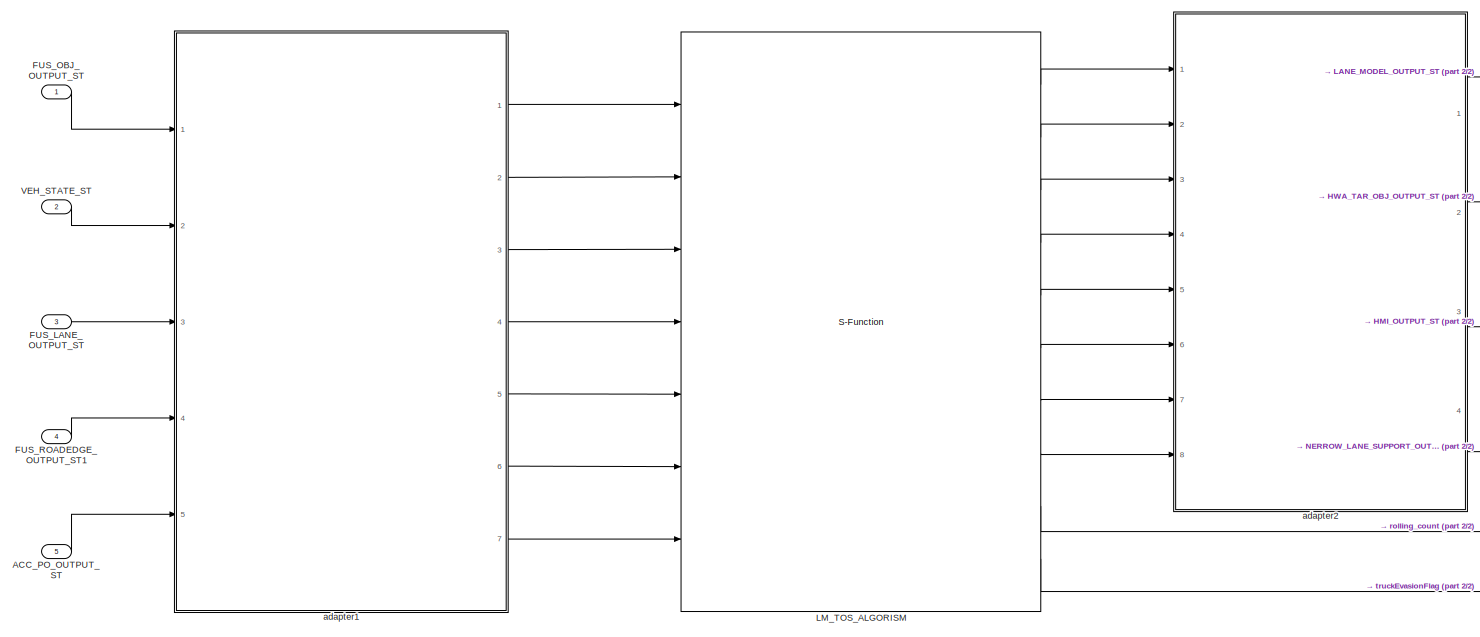
[diagram: root canvas - part 1/2, most of the canvas]
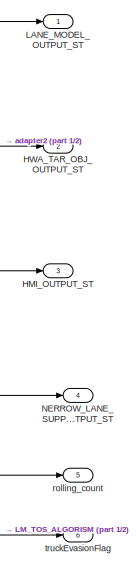
[diagram: root canvas - part 2/2, right side, full height]
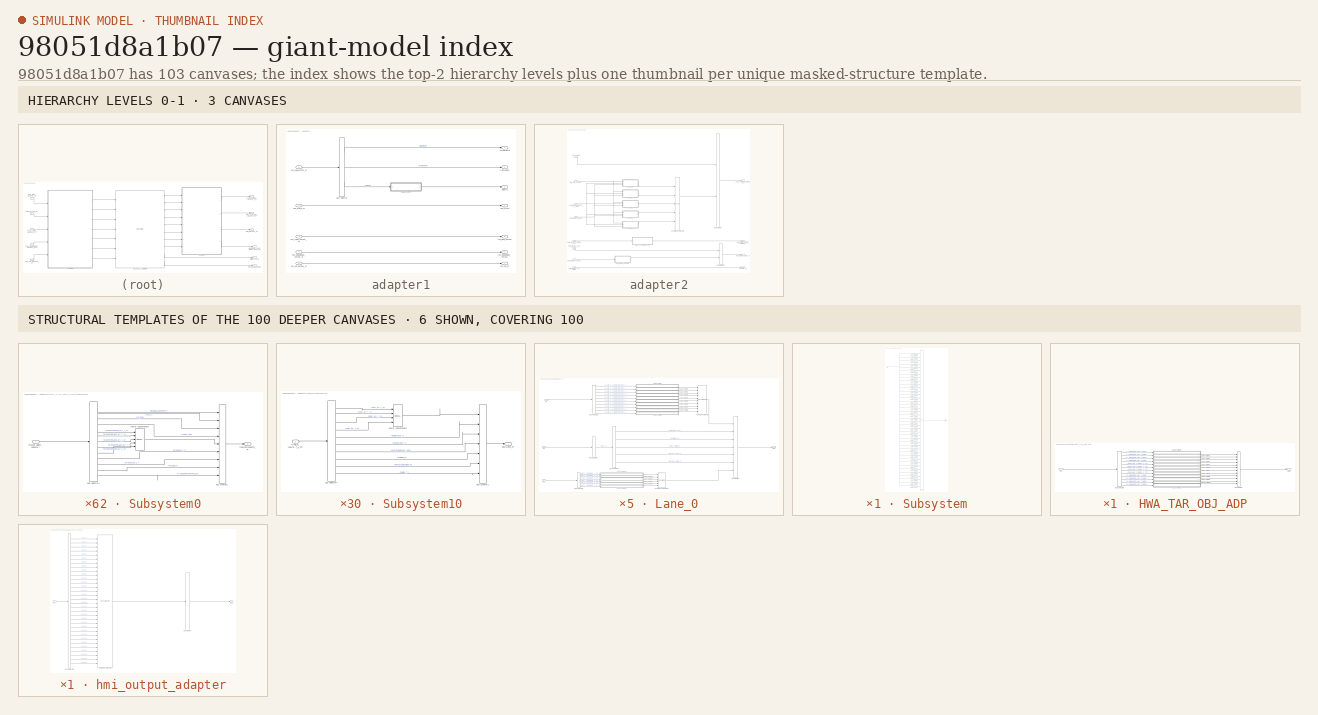
[diagram: thumbnail index - top-2 hierarchy levels (3 canvases) + 6 structural-template representatives of the remaining 100 canvases]
MODEL slx_98051d8a1b07
KIND model
CONFIG AbsTol = auto
CONFIG EnableMultiTasking = off
CONFIG FixedStep = 0.005
CONFIG MaxStep = auto
CONFIG MinStep = auto
CONFIG PostLoadFcn = if any(exist('dsrtsu_mdlpostloadfcn', 'file') ~= 0), dsrtsu_mdlpostloadfcn('Execute', bdroot); end
CONFIG RelTol = 1e-3
CONFIG SampleTimeConstraint = Unconstrained
CONFIG Solver = FixedStepDiscrete
CONFIG SolverName = FixedStepDiscrete
CONFIG StartTime = 0.0
CONFIG StopTime = inf
BLOCK [Inport] ACC_PO_OUTPUT_ST
  IconDisplay = Port number
  OutDataTypeStr = Bus: ATS_PO_ST
  Port = 5
BLOCK [Inport] FUS_LANE_OUTPUT_ST
  IconDisplay = Port number
  OutDataTypeStr = Bus: FUS_LANE_OUTPUT_ST
  Port = 3
BLOCK [Inport] FUS_OBJ_OUTPUT_ST
  IconDisplay = Port number
  OutDataTypeStr = Bus: FUS_OBJ_OUTPUT_ST
BLOCK [Inport] FUS_ROADEDGE_OUTPUT_ST1
  IconDisplay = Port number
  OutDataTypeStr = Bus: FUS_ROAD_EDGE_OUTPUT_ST
  Port = 4
BLOCK [Outport] HMI_OUTPUT_ST
  IconDisplay = Port number
  OutDataTypeStr = Bus: HMI_OUTPUT_ST
  Port = 3
BLOCK [Outport] HWA_TAR_OBJ_OUTPUT_ST
  IconDisplay = Port number
  OutDataTypeStr = Bus: HWA_TARGETOBJECT_OUTPUT_ST
  Port = 2
BLOCK [Outport] LANE_MODEL_OUTPUT_ST
  IconDisplay = Port number
  OutDataTypeStr = Bus: LANEMODEL_OUTPUT_ST
BLOCK [S-Function] LM_TOS_ALGORISM
  CopyFcn = set_param(gcbh,'LinkStatus','none')
  EnableBusSupport = off
  FunctionName = LM_TOS_MODULE
  InitFcn = try, set_param(gcb,'FunctionName','LM_TOS_MODULE'), end
  OpenFcn = sfunctionwizard(gcbh)
  Ports = [7, 10]
  PreSaveFcn = try, set_param(gcb,'FunctionName','LM_TOS_MODULE'), end
  SFcnIsStateOwnerBlock = off
  SFunctionDeploymentMode = off
  SFunctionModules = LM_TOS_MODULE_wrapper Adapters LMBase LMMathLib LMPp LMTOSRunAlgo LMF TOSBase TOSHWA TOSPp VSL TOSNRA TOSTruckEvasion HMI CoordinationTransformation Parameters VehicleMovement DrivingManeuver LMCommonDefines
BLOCK [Outport] NERROW_LANE_SUPPORT_OUTPUT_ST
  IconDisplay = Port number
  OutDataTypeStr = Bus: NARROW_LANE_SUPPORT_OUTPUT_ST
  Port = 4
BLOCK [Inport] VEH_STATE_ST
  IconDisplay = Port number
  OutDataTypeStr = Bus: VSI_VEHSTATE_ST
  Port = 2
BLOCK [SubSystem] adapter1
  Ports = [5, 7]
  RequestExecContextInheritance = off
BLOCK [BusSelector] adapter1/Bus Selector
  OutputAsBus = off
  OutputSignals = timeStamp,frameNum,objects
  Ports = [1, 3]
BLOCK [Inport] adapter1/Fus_Lane_output_st
  IconDisplay = Port number
  OutDataTypeStr = Bus: FUS_LANE_OUTPUT_ST
  Port = 3
BLOCK [Inport] adapter1/Fus_RoadEdge_output_st
  IconDisplay = Port number
  OutDataTypeStr = Bus: FUS_ROAD_EDGE_OUTPUT_ST
  Port = 4
BLOCK [Inport] adapter1/Fus_obj_outPut_st
  IconDisplay = Port number
  OutDataTypeStr = Bus: FUS_OBJ_OUTPUT_ST
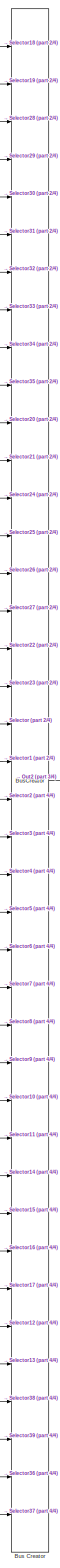
[diagram: adapter1/Subsystem - part 1/4, center side, full height]
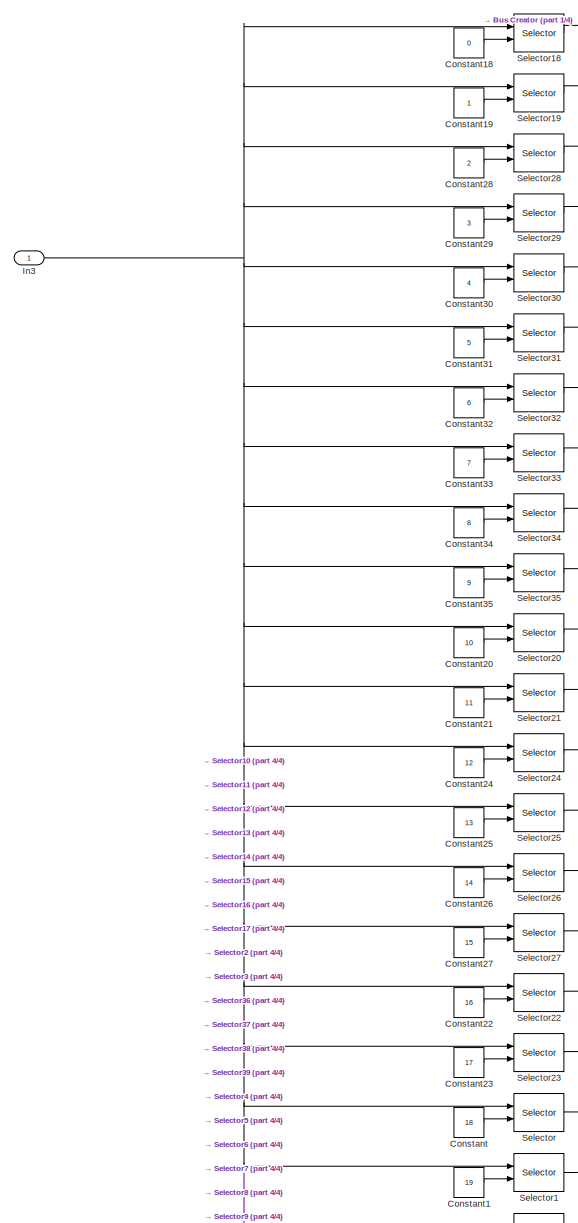
[diagram: adapter1/Subsystem - part 2/4, top left region]
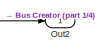
[diagram: adapter1/Subsystem - part 3/4, middle right region]
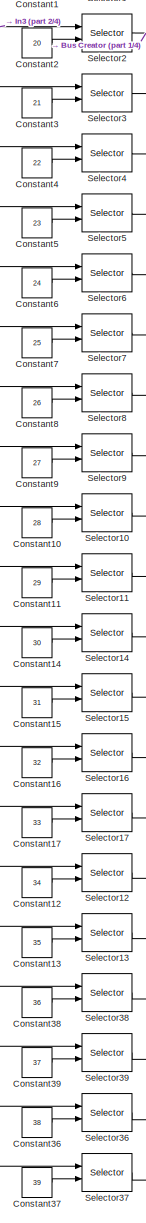
[diagram: adapter1/Subsystem - part 4/4, bottom center region]
BLOCK [SubSystem] adapter1/Subsystem
  Ports = [1, 1]
  RequestExecContextInheritance = off
BLOCK [BusCreator] adapter1/Subsystem/Bus Creator
  DisplayOption = bar
  InheritFromInputs = on
  Inputs = 40
  Ports = [40, 1]
BLOCK [Constant] adapter1/Subsystem/Constant
  Value = 18
BLOCK [Constant] adapter1/Subsystem/Constant1
  Value = 19
BLOCK [Constant] adapter1/Subsystem/Constant10
  Value = 28
BLOCK [Constant] adapter1/Subsystem/Constant11
  Value = 29
BLOCK [Constant] adapter1/Subsystem/Constant12
  Value = 34
BLOCK [Constant] adapter1/Subsystem/Constant13
  Value = 35
BLOCK [Constant] adapter1/Subsystem/Constant14
  Value = 30
BLOCK [Constant] adapter1/Subsystem/Constant15
  Value = 31
BLOCK [Constant] adapter1/Subsystem/Constant16
  Value = 32
BLOCK [Constant] adapter1/Subsystem/Constant17
  Value = 33
BLOCK [Constant] adapter1/Subsystem/Constant18
  Value = 0
BLOCK [Constant] adapter1/Subsystem/Constant19
BLOCK [Constant] adapter1/Subsystem/Constant2
  Value = 20
BLOCK [Constant] adapter1/Subsystem/Constant20
  Value = 10
BLOCK [Constant] adapter1/Subsystem/Constant21
  Value = 11
BLOCK [Constant] adapter1/Subsystem/Constant22
  Value = 16
BLOCK [Constant] adapter1/Subsystem/Constant23
  Value = 17
BLOCK [Constant] adapter1/Subsystem/Constant24
  Value = 12
BLOCK [Constant] adapter1/Subsystem/Constant25
  Value = 13
BLOCK [Constant] adapter1/Subsystem/Constant26
  Value = 14
BLOCK [Constant] adapter1/Subsystem/Constant27
  Value = 15
BLOCK [Constant] adapter1/Subsystem/Constant28
  Value = 2
BLOCK [Constant] adapter1/Subsystem/Constant29
  Value = 3
BLOCK [Constant] adapter1/Subsystem/Constant3
  Value = 21
BLOCK [Constant] adapter1/Subsystem/Constant30
  Value = 4
BLOCK [Constant] adapter1/Subsystem/Constant31
  Value = 5
BLOCK [Constant] adapter1/Subsystem/Constant32
  Value = 6
BLOCK [Constant] adapter1/Subsystem/Constant33
  Value = 7
BLOCK [Constant] adapter1/Subsystem/Constant34
  Value = 8
BLOCK [Constant] adapter1/Subsystem/Constant35
  Value = 9
BLOCK [Constant] adapter1/Subsystem/Constant36
  Value = 38
BLOCK [Constant] adapter1/Subsystem/Constant37
  Value = 39
BLOCK [Constant] adapter1/Subsystem/Constant38
  Value = 36
BLOCK [Constant] adapter1/Subsystem/Constant39
  Value = 37
BLOCK [Constant] adapter1/Subsystem/Constant4
  Value = 22
BLOCK [Constant] adapter1/Subsystem/Constant5
  Value = 23
BLOCK [Constant] adapter1/Subsystem/Constant6
  Value = 24
BLOCK [Constant] adapter1/Subsystem/Constant7
  Value = 25
BLOCK [Constant] adapter1/Subsystem/Constant8
  Value = 26
BLOCK [Constant] adapter1/Subsystem/Constant9
  Value = 27
BLOCK [Inport] adapter1/Subsystem/In3
  IconDisplay = Port number
BLOCK [Outport] adapter1/Subsystem/Out2
  IconDisplay = Port number
BLOCK [Selector] adapter1/Subsystem/Selector
  IndexMode = Zero-based
  IndexOptions = Index vector (port)
  Indices = [1 3]
  InputPortWidth = 40
  OutputSizes = 1
  Ports = [2, 1]
BLOCK [Selector] adapter1/Subsystem/Selector1
  IndexMode = Zero-based
  IndexOptions = Index vector (port)
  Indices = [1 3]
  InputPortWidth = 40
  OutputSizes = 1
  Ports = [2, 1]
BLOCK [Selector] adapter1/Subsystem/Selector10
  IndexMode = Zero-based
  IndexOptions = Index vector (port)
  Indices = [1 3]
  InputPortWidth = 40
  OutputSizes = 1
  Ports = [2, 1]
BLOCK [Selector] adapter1/Subsystem/Selector11
  IndexMode = Zero-based
  IndexOptions = Index vector (port)
  Indices = [1 3]
  InputPortWidth = 40
  OutputSizes = 1
  Ports = [2, 1]
BLOCK [Selector] adapter1/Subsystem/Selector12
  IndexMode = Zero-based
  IndexOptions = Index vector (port)
  Indices = [1 3]
  InputPortWidth = 40
  OutputSizes = 1
  Ports = [2, 1]
BLOCK [Selector] adapter1/Subsystem/Selector13
  IndexMode = Zero-based
  IndexOptions = Index vector (port)
  Indices = [1 3]
  InputPortWidth = 40
  OutputSizes = 1
  Ports = [2, 1]
BLOCK [Selector] adapter1/Subsystem/Selector14
  IndexMode = Zero-based
  IndexOptions = Index vector (port)
  Indices = [1 3]
  InputPortWidth = 40
  OutputSizes = 1
  Ports = [2, 1]
BLOCK [Selector] adapter1/Subsystem/Selector15
  IndexMode = Zero-based
  IndexOptions = Index vector (port)
  Indices = [1 3]
  InputPortWidth = 40
  OutputSizes = 1
  Ports = [2, 1]
BLOCK [Selector] adapter1/Subsystem/Selector16
  IndexMode = Zero-based
  IndexOptions = Index vector (port)
  Indices = [1 3]
  InputPortWidth = 40
  OutputSizes = 1
  Ports = [2, 1]
BLOCK [Selector] adapter1/Subsystem/Selector17
  IndexMode = Zero-based
  IndexOptions = Index vector (port)
  Indices = [1 3]
  InputPortWidth = 40
  OutputSizes = 1
  Ports = [2, 1]
BLOCK [Selector] adapter1/Subsystem/Selector18
  IndexMode = Zero-based
  IndexOptions = Index vector (port)
  Indices = [1 3]
  InputPortWidth = 40
  OutputSizes = 1
  Ports = [2, 1]
BLOCK [Selector] adapter1/Subsystem/Selector19
  IndexMode = Zero-based
  IndexOptions = Index vector (port)
  Indices = [1 3]
  InputPortWidth = 40
  OutputSizes = 1
  Ports = [2, 1]
BLOCK [Selector] adapter1/Subsystem/Selector2
  IndexMode = Zero-based
  IndexOptions = Index vector (port)
  Indices = [1 3]
  InputPortWidth = 40
  OutputSizes = 1
  Ports = [2, 1]
BLOCK [Selector] adapter1/Subsystem/Selector20
  IndexMode = Zero-based
  IndexOptions = Index vector (port)
  Indices = [1 3]
  InputPortWidth = 40
  OutputSizes = 1
  Ports = [2, 1]
BLOCK [Selector] adapter1/Subsystem/Selector21
  IndexMode = Zero-based
  IndexOptions = Index vector (port)
  Indices = [1 3]
  InputPortWidth = 40
  OutputSizes = 1
  Ports = [2, 1]
BLOCK [Selector] adapter1/Subsystem/Selector22
  IndexMode = Zero-based
  IndexOptions = Index vector (port)
  Indices = [1 3]
  InputPortWidth = 40
  OutputSizes = 1
  Ports = [2, 1]
BLOCK [Selector] adapter1/Subsystem/Selector23
  IndexMode = Zero-based
  IndexOptions = Index vector (port)
  Indices = [1 3]
  InputPortWidth = 40
  OutputSizes = 1
  Ports = [2, 1]
BLOCK [Selector] adapter1/Subsystem/Selector24
  IndexMode = Zero-based
  IndexOptions = Index vector (port)
  Indices = [1 3]
  InputPortWidth = 40
  OutputSizes = 1
  Ports = [2, 1]
BLOCK [Selector] adapter1/Subsystem/Selector25
  IndexMode = Zero-based
  IndexOptions = Index vector (port)
  Indices = [1 3]
  InputPortWidth = 40
  OutputSizes = 1
  Ports = [2, 1]
BLOCK [Selector] adapter1/Subsystem/Selector26
  IndexMode = Zero-based
  IndexOptions = Index vector (port)
  Indices = [1 3]
  InputPortWidth = 40
  OutputSizes = 1
  Ports = [2, 1]
BLOCK [Selector] adapter1/Subsystem/Selector27
  IndexMode = Zero-based
  IndexOptions = Index vector (port)
  Indices = [1 3]
  InputPortWidth = 40
  OutputSizes = 1
  Ports = [2, 1]
BLOCK [Selector] adapter1/Subsystem/Selector28
  IndexMode = Zero-based
  IndexOptions = Index vector (port)
  Indices = [1 3]
  InputPortWidth = 40
  OutputSizes = 1
  Ports = [2, 1]
BLOCK [Selector] adapter1/Subsystem/Selector29
  IndexMode = Zero-based
  IndexOptions = Index vector (port)
  Indices = [1 3]
  InputPortWidth = 40
  OutputSizes = 1
  Ports = [2, 1]
BLOCK [Selector] adapter1/Subsystem/Selector3
  IndexMode = Zero-based
  IndexOptions = Index vector (port)
  Indices = [1 3]
  InputPortWidth = 40
  OutputSizes = 1
  Ports = [2, 1]
BLOCK [Selector] adapter1/Subsystem/Selector30
  IndexMode = Zero-based
  IndexOptions = Index vector (port)
  Indices = [1 3]
  InputPortWidth = 40
  OutputSizes = 1
  Ports = [2, 1]
BLOCK [Selector] adapter1/Subsystem/Selector31
  IndexMode = Zero-based
  IndexOptions = Index vector (port)
  Indices = [1 3]
  InputPortWidth = 40
  OutputSizes = 1
  Ports = [2, 1]
BLOCK [Selector] adapter1/Subsystem/Selector32
  IndexMode = Zero-based
  IndexOptions = Index vector (port)
  Indices = [1 3]
  InputPortWidth = 40
  OutputSizes = 1
  Ports = [2, 1]
BLOCK [Selector] adapter1/Subsystem/Selector33
  IndexMode = Zero-based
  IndexOptions = Index vector (port)
  Indices = [1 3]
  InputPortWidth = 40
  OutputSizes = 1
  Ports = [2, 1]
BLOCK [Selector] adapter1/Subsystem/Selector34
  IndexMode = Zero-based
  IndexOptions = Index vector (port)
  Indices = [1 3]
  InputPortWidth = 40
  OutputSizes = 1
  Ports = [2, 1]
BLOCK [Selector] adapter1/Subsystem/Selector35
  IndexMode = Zero-based
  IndexOptions = Index vector (port)
  Indices = [1 3]
  InputPortWidth = 40
  OutputSizes = 1
  Ports = [2, 1]
BLOCK [Selector] adapter1/Subsystem/Selector36
  IndexMode = Zero-based
  IndexOptions = Index vector (port)
  Indices = [1 3]
  InputPortWidth = 40
  OutputSizes = 1
  Ports = [2, 1]
BLOCK [Selector] adapter1/Subsystem/Selector37
  IndexMode = Zero-based
  IndexOptions = Index vector (port)
  Indices = [1 3]
  InputPortWidth = 40
  OutputSizes = 1
  Ports = [2, 1]
BLOCK [Selector] adapter1/Subsystem/Selector38
  IndexMode = Zero-based
  IndexOptions = Index vector (port)
  Indices = [1 3]
  InputPortWidth = 40
  OutputSizes = 1
  Ports = [2, 1]
BLOCK [Selector] adapter1/Subsystem/Selector39
  IndexMode = Zero-based
  IndexOptions = Index vector (port)
  Indices = [1 3]
  InputPortWidth = 40
  OutputSizes = 1
  Ports = [2, 1]
BLOCK [Selector] adapter1/Subsystem/Selector4
  IndexMode = Zero-based
  IndexOptions = Index vector (port)
  Indices = [1 3]
  InputPortWidth = 40
  OutputSizes = 1
  Ports = [2, 1]
BLOCK [Selector] adapter1/Subsystem/Selector5
  IndexMode = Zero-based
  IndexOptions = Index vector (port)
  Indices = [1 3]
  InputPortWidth = 40
  OutputSizes = 1
  Ports = [2, 1]
BLOCK [Selector] adapter1/Subsystem/Selector6
  IndexMode = Zero-based
  IndexOptions = Index vector (port)
  Indices = [1 3]
  InputPortWidth = 40
  OutputSizes = 1
  Ports = [2, 1]
BLOCK [Selector] adapter1/Subsystem/Selector7
  IndexMode = Zero-based
  IndexOptions = Index vector (port)
  Indices = [1 3]
  InputPortWidth = 40
  OutputSizes = 1
  Ports = [2, 1]
BLOCK [Selector] adapter1/Subsystem/Selector8
  IndexMode = Zero-based
  IndexOptions = Index vector (port)
  Indices = [1 3]
  InputPortWidth = 40
  OutputSizes = 1
  Ports = [2, 1]
BLOCK [Selector] adapter1/Subsystem/Selector9
  IndexMode = Zero-based
  IndexOptions = Index vector (port)
  Indices = [1 3]
  InputPortWidth = 40
  OutputSizes = 1
  Ports = [2, 1]
BLOCK [Inport] adapter1/Veh_State_st
  IconDisplay = Port number
  OutDataTypeStr = Bus: VSI_VEHSTATE_ST
  Port = 2
BLOCK [Inport] adapter1/acc_po_output_st
  IconDisplay = Port number
  OutDataTypeStr = Bus: ATS_PO_ST
  Port = 5
BLOCK [Outport] adapter1/acc_po_st
  IconDisplay = Port number
  OutDataTypeStr = Bus: ATS_PO_ST
  Port = 7
BLOCK [Outport] adapter1/frameNum
  IconDisplay = Port number
  Port = 2
BLOCK [Outport] adapter1/fus_RoadEdge_output
  IconDisplay = Port number
  OutDataTypeStr = Bus: FUS_ROAD_EDGE_OUTPUT_ST
  Port = 6
BLOCK [Outport] adapter1/fus_lane_output
  IconDisplay = Port number
  Port = 5
BLOCK [Outport] adapter1/objects
  IconDisplay = Port number
  Port = 3
BLOCK [Outport] adapter1/timeStamp
  IconDisplay = Port number
BLOCK [Outport] adapter1/veh_state
  IconDisplay = Port number
  Port = 4
BLOCK [SubSystem] adapter2
  Ports = [8, 4]
  RequestExecContextInheritance = off
BLOCK [BusCreator] adapter2/Bus Creator
  DisplayOption = bar
  InheritFromInputs = on
  Inputs = 2
  Ports = [2, 1]
BLOCK [BusCreator] adapter2/Bus Creator1
  DisplayOption = bar
  InheritFromInputs = on
  Inputs = 2
  Ports = [2, 1]
BLOCK [SubSystem] adapter2/HWA_TAR_OBJ_ADP
  Ports = [1, 1]
  RequestExecContextInheritance = off
BLOCK [BusCreator] adapter2/HWA_TAR_OBJ_ADP/Bus Creator
  DisplayOption = bar
  InheritFromInputs = on
  Inputs = 12
  NonVirtualBus = on
  OutDataTypeStr = Bus: HWA_TARGETOBJECT_OUTPUT_ST
  Ports = [12, 1]
BLOCK [BusSelector] adapter2/HWA_TAR_OBJ_ADP/Bus Selector1
  OutputAsBus = off
  OutputSignals = L_NEIGHBORLANE_TAROBJ_0_ST,L_NEIGHBORLANE_TAROBJ_1_ST,L_NEIGHBORLANE_TAROBJ_2_ST,L_NEIGHBORLANE_TAROBJ_3_ST,EGOLANE_TAROBJ_0_ST,EGOLANE_TAROBJ_1_ST,EGOLANE_TAROBJ_2_ST,EGOLANE_TAROBJ_3_ST,R_NEIGHBORLANE_TAROBJ_0_ST,R_NEIGHBORLANE_TAROBJ_1_ST,R_NEIGHBORLANE_TAROBJ_2_ST,R_NEIGHBORLANE_TAROBJ_3_ST
  Ports = [1, 12]
BLOCK [Inport] adapter2/HWA_TAR_OBJ_ADP/In1
  IconDisplay = Port number
BLOCK [Outport] adapter2/HWA_TAR_OBJ_ADP/Out1
  IconDisplay = Port number
  OutDataTypeStr = Bus: HWA_TARGETOBJECT_OUTPUT_ST
BLOCK [SubSystem] adapter2/HWA_TAR_OBJ_ADP/Subsystem0
  Ports = [1, 1]
  RequestExecContextInheritance = off
BLOCK [Inport] adapter2/HWA_TAR_OBJ_ADP/Subsystem0/<target_object_adapter>
  IconDisplay = Port number
BLOCK [BusCreator] adapter2/HWA_TAR_OBJ_ADP/Subsystem0/Bus Creator1
  DisplayOption = bar
  InheritFromInputs = on
  Inputs = 9
  NonVirtualBus = on
  OutDataTypeStr = Bus: TARGETOBJECT
  Ports = [9, 1]
BLOCK [BusSelector] adapter2/HWA_TAR_OBJ_ADP/Subsystem0/Bus Selector4
  OutputAsBus = off
  OutputSignals = dis2EgoLaneCenter,TTC_f,ID_un8,Index_un8,probWithinLane_arr_f_0,probWithinLane_arr_f_1,probWithinLane_arr_f_2,probWithinLane_arr_f_3,probWithinLane_arr_f_4,probCutIn_f,probCutOut_f,overlap_f,trackingTimeWithinLane_f  <repeated x62 — deduplicated; at blocks: Bus Selector4>
  Ports = [1, 13]
BLOCK [Outport] adapter2/HWA_TAR_OBJ_ADP/Subsystem0/TARGRTOBJECTS_ST
  IconDisplay = Port number
  OutDataTypeStr = Bus: TARGETOBJECT
BLOCK [Concatenate] adapter2/HWA_TAR_OBJ_ADP/Subsystem0/Vector Concatenate
  NumInputs = 5
  Ports = [5, 1]
BLOCK [SubSystem] adapter2/HWA_TAR_OBJ_ADP/Subsystem1
  Ports = [1, 1]
  RequestExecContextInheritance = off
BLOCK [Inport] adapter2/HWA_TAR_OBJ_ADP/Subsystem1/<target_object_adapter>
  IconDisplay = Port number
BLOCK [BusCreator] adapter2/HWA_TAR_OBJ_ADP/Subsystem1/Bus Creator1
  DisplayOption = bar
  InheritFromInputs = on
  Inputs = 9
  NonVirtualBus = on
  OutDataTypeStr = Bus: TARGETOBJECT
  Ports = [9, 1]
BLOCK [BusSelector] adapter2/HWA_TAR_OBJ_ADP/Subsystem1/Bus Selector4
  OutputAsBus = off
  Ports = [1, 13]
BLOCK [Outport] adapter2/HWA_TAR_OBJ_ADP/Subsystem1/TARGRTOBJECTS_ST
  IconDisplay = Port number
  OutDataTypeStr = Bus: TARGETOBJECT
BLOCK [Concatenate] adapter2/HWA_TAR_OBJ_ADP/Subsystem1/Vector Concatenate
  NumInputs = 5
  Ports = [5, 1]
BLOCK [SubSystem] adapter2/HWA_TAR_OBJ_ADP/Subsystem10
  Ports = [1, 1]
  RequestExecContextInheritance = off
BLOCK [Inport] adapter2/HWA_TAR_OBJ_ADP/Subsystem10/<target_object_adapter>
  IconDisplay = Port number
BLOCK [BusCreator] adapter2/HWA_TAR_OBJ_ADP/Subsystem10/Bus Creator1
  DisplayOption = bar
  InheritFromInputs = on
  Inputs = 9
  NonVirtualBus = on
  OutDataTypeStr = Bus: TARGETOBJECT
  Ports = [9, 1]
BLOCK [BusSelector] adapter2/HWA_TAR_OBJ_ADP/Subsystem10/Bus Selector4
  OutputAsBus = off
  Ports = [1, 13]
BLOCK [Outport] adapter2/HWA_TAR_OBJ_ADP/Subsystem10/TARGRTOBJECTS_ST
  IconDisplay = Port number
  OutDataTypeStr = Bus: TARGETOBJECT
BLOCK [Concatenate] adapter2/HWA_TAR_OBJ_ADP/Subsystem10/Vector Concatenate
  NumInputs = 5
  Ports = [5, 1]
BLOCK [SubSystem] adapter2/HWA_TAR_OBJ_ADP/Subsystem11
  Ports = [1, 1]
  RequestExecContextInheritance = off
BLOCK [Inport] adapter2/HWA_TAR_OBJ_ADP/Subsystem11/<target_object_adapter>
  IconDisplay = Port number
BLOCK [BusCreator] adapter2/HWA_TAR_OBJ_ADP/Subsystem11/Bus Creator1
  DisplayOption = bar
  InheritFromInputs = on
  Inputs = 9
  NonVirtualBus = on
  OutDataTypeStr = Bus: TARGETOBJECT
  Ports = [9, 1]
BLOCK [BusSelector] adapter2/HWA_TAR_OBJ_ADP/Subsystem11/Bus Selector4
  OutputAsBus = off
  Ports = [1, 13]
BLOCK [Outport] adapter2/HWA_TAR_OBJ_ADP/Subsystem11/TARGRTOBJECTS_ST
  IconDisplay = Port number
  OutDataTypeStr = Bus: TARGETOBJECT
BLOCK [Concatenate] adapter2/HWA_TAR_OBJ_ADP/Subsystem11/Vector Concatenate
  NumInputs = 5
  Ports = [5, 1]
BLOCK [SubSystem] adapter2/HWA_TAR_OBJ_ADP/Subsystem2
  Ports = [1, 1]
  RequestExecContextInheritance = off
BLOCK [Inport] adapter2/HWA_TAR_OBJ_ADP/Subsystem2/<target_object_adapter>
  IconDisplay = Port number
BLOCK [BusCreator] adapter2/HWA_TAR_OBJ_ADP/Subsystem2/Bus Creator1
  DisplayOption = bar
  InheritFromInputs = on
  Inputs = 9
  NonVirtualBus = on
  OutDataTypeStr = Bus: TARGETOBJECT
  Ports = [9, 1]
BLOCK [BusSelector] adapter2/HWA_TAR_OBJ_ADP/Subsystem2/Bus Selector4
  OutputAsBus = off
  Ports = [1, 13]
BLOCK [Outport] adapter2/HWA_TAR_OBJ_ADP/Subsystem2/TARGRTOBJECTS_ST
  IconDisplay = Port number
  OutDataTypeStr = Bus: TARGETOBJECT
BLOCK [Concatenate] adapter2/HWA_TAR_OBJ_ADP/Subsystem2/Vector Concatenate
  NumInputs = 5
  Ports = [5, 1]
BLOCK [SubSystem] adapter2/HWA_TAR_OBJ_ADP/Subsystem3
  Ports = [1, 1]
  RequestExecContextInheritance = off
BLOCK [Inport] adapter2/HWA_TAR_OBJ_ADP/Subsystem3/<target_object_adapter>
  IconDisplay = Port number
BLOCK [BusCreator] adapter2/HWA_TAR_OBJ_ADP/Subsystem3/Bus Creator1
  DisplayOption = bar
  InheritFromInputs = on
  Inputs = 9
  NonVirtualBus = on
  OutDataTypeStr = Bus: TARGETOBJECT
  Ports = [9, 1]
BLOCK [BusSelector] adapter2/HWA_TAR_OBJ_ADP/Subsystem3/Bus Selector4
  OutputAsBus = off
  Ports = [1, 13]
BLOCK [Outport] adapter2/HWA_TAR_OBJ_ADP/Subsystem3/TARGRTOBJECTS_ST
  IconDisplay = Port number
  OutDataTypeStr = Bus: TARGETOBJECT
BLOCK [Concatenate] adapter2/HWA_TAR_OBJ_ADP/Subsystem3/Vector Concatenate
  NumInputs = 5
  Ports = [5, 1]
BLOCK [SubSystem] adapter2/HWA_TAR_OBJ_ADP/Subsystem4
  Ports = [1, 1]
  RequestExecContextInheritance = off
BLOCK [Inport] adapter2/HWA_TAR_OBJ_ADP/Subsystem4/<target_object_adapter>
  IconDisplay = Port number
BLOCK [BusCreator] adapter2/HWA_TAR_OBJ_ADP/Subsystem4/Bus Creator1
  DisplayOption = bar
  InheritFromInputs = on
  Inputs = 9
  NonVirtualBus = on
  OutDataTypeStr = Bus: TARGETOBJECT
  Ports = [9, 1]
BLOCK [BusSelector] adapter2/HWA_TAR_OBJ_ADP/Subsystem4/Bus Selector4
  OutputAsBus = off
  Ports = [1, 13]
BLOCK [Outport] adapter2/HWA_TAR_OBJ_ADP/Subsystem4/TARGRTOBJECTS_ST
  IconDisplay = Port number
  OutDataTypeStr = Bus: TARGETOBJECT
BLOCK [Concatenate] adapter2/HWA_TAR_OBJ_ADP/Subsystem4/Vector Concatenate
  NumInputs = 5
  Ports = [5, 1]
BLOCK [SubSystem] adapter2/HWA_TAR_OBJ_ADP/Subsystem5
  Ports = [1, 1]
  RequestExecContextInheritance = off
BLOCK [Inport] adapter2/HWA_TAR_OBJ_ADP/Subsystem5/<target_object_adapter>
  IconDisplay = Port number
BLOCK [BusCreator] adapter2/HWA_TAR_OBJ_ADP/Subsystem5/Bus Creator1
  DisplayOption = bar
  InheritFromInputs = on
  Inputs = 9
  NonVirtualBus = on
  OutDataTypeStr = Bus: TARGETOBJECT
  Ports = [9, 1]
BLOCK [BusSelector] adapter2/HWA_TAR_OBJ_ADP/Subsystem5/Bus Selector4
  OutputAsBus = off
  Ports = [1, 13]
BLOCK [Outport] adapter2/HWA_TAR_OBJ_ADP/Subsystem5/TARGRTOBJECTS_ST
  IconDisplay = Port number
  OutDataTypeStr = Bus: TARGETOBJECT
BLOCK [Concatenate] adapter2/HWA_TAR_OBJ_ADP/Subsystem5/Vector Concatenate
  NumInputs = 5
  Ports = [5, 1]
BLOCK [SubSystem] adapter2/HWA_TAR_OBJ_ADP/Subsystem6
  Ports = [1, 1]
  RequestExecContextInheritance = off
BLOCK [Inport] adapter2/HWA_TAR_OBJ_ADP/Subsystem6/<target_object_adapter>
  IconDisplay = Port number
BLOCK [BusCreator] adapter2/HWA_TAR_OBJ_ADP/Subsystem6/Bus Creator1
  DisplayOption = bar
  InheritFromInputs = on
  Inputs = 9
  NonVirtualBus = on
  OutDataTypeStr = Bus: TARGETOBJECT
  Ports = [9, 1]
BLOCK [BusSelector] adapter2/HWA_TAR_OBJ_ADP/Subsystem6/Bus Selector4
  OutputAsBus = off
  Ports = [1, 13]
BLOCK [Outport] adapter2/HWA_TAR_OBJ_ADP/Subsystem6/TARGRTOBJECTS_ST
  IconDisplay = Port number
  OutDataTypeStr = Bus: TARGETOBJECT
BLOCK [Concatenate] adapter2/HWA_TAR_OBJ_ADP/Subsystem6/Vector Concatenate
  NumInputs = 5
  Ports = [5, 1]
BLOCK [SubSystem] adapter2/HWA_TAR_OBJ_ADP/Subsystem7
  Ports = [1, 1]
  RequestExecContextInheritance = off
BLOCK [Inport] adapter2/HWA_TAR_OBJ_ADP/Subsystem7/<target_object_adapter>
  IconDisplay = Port number
BLOCK [BusCreator] adapter2/HWA_TAR_OBJ_ADP/Subsystem7/Bus Creator1
  DisplayOption = bar
  InheritFromInputs = on
  Inputs = 9
  NonVirtualBus = on
  OutDataTypeStr = Bus: TARGETOBJECT
  Ports = [9, 1]
BLOCK [BusSelector] adapter2/HWA_TAR_OBJ_ADP/Subsystem7/Bus Selector4
  OutputAsBus = off
  Ports = [1, 13]
BLOCK [Outport] adapter2/HWA_TAR_OBJ_ADP/Subsystem7/TARGRTOBJECTS_ST
  IconDisplay = Port number
  OutDataTypeStr = Bus: TARGETOBJECT
BLOCK [Concatenate] adapter2/HWA_TAR_OBJ_ADP/Subsystem7/Vector Concatenate
  NumInputs = 5
  Ports = [5, 1]
BLOCK [SubSystem] adapter2/HWA_TAR_OBJ_ADP/Subsystem8
  Ports = [1, 1]
  RequestExecContextInheritance = off
BLOCK [Inport] adapter2/HWA_TAR_OBJ_ADP/Subsystem8/<target_object_adapter>
  IconDisplay = Port number
BLOCK [BusCreator] adapter2/HWA_TAR_OBJ_ADP/Subsystem8/Bus Creator1
  DisplayOption = bar
  InheritFromInputs = on
  Inputs = 9
  NonVirtualBus = on
  OutDataTypeStr = Bus: TARGETOBJECT
  Ports = [9, 1]
BLOCK [BusSelector] adapter2/HWA_TAR_OBJ_ADP/Subsystem8/Bus Selector4
  OutputAsBus = off
  Ports = [1, 13]
BLOCK [Outport] adapter2/HWA_TAR_OBJ_ADP/Subsystem8/TARGRTOBJECTS_ST
  IconDisplay = Port number
  OutDataTypeStr = Bus: TARGETOBJECT
BLOCK [Concatenate] adapter2/HWA_TAR_OBJ_ADP/Subsystem8/Vector Concatenate
  NumInputs = 5
  Ports = [5, 1]
BLOCK [SubSystem] adapter2/HWA_TAR_OBJ_ADP/Subsystem9
  Ports = [1, 1]
  RequestExecContextInheritance = off
BLOCK [Inport] adapter2/HWA_TAR_OBJ_ADP/Subsystem9/<target_object_adapter>
  IconDisplay = Port number
BLOCK [BusCreator] adapter2/HWA_TAR_OBJ_ADP/Subsystem9/Bus Creator1
  DisplayOption = bar
  InheritFromInputs = on
  Inputs = 9
  NonVirtualBus = on
  OutDataTypeStr = Bus: TARGETOBJECT
  Ports = [9, 1]
BLOCK [BusSelector] adapter2/HWA_TAR_OBJ_ADP/Subsystem9/Bus Selector4
  OutputAsBus = off
  Ports = [1, 13]
BLOCK [Outport] adapter2/HWA_TAR_OBJ_ADP/Subsystem9/TARGRTOBJECTS_ST
  IconDisplay = Port number
  OutDataTypeStr = Bus: TARGETOBJECT
BLOCK [Concatenate] adapter2/HWA_TAR_OBJ_ADP/Subsystem9/Vector Concatenate
  NumInputs = 5
  Ports = [5, 1]
BLOCK [Inport] adapter2/LANES_BAS_INFO_ST_adp
  IconDisplay = Port number
  OutDataTypeStr = Bus: LANES_BAS_INFO_ST_adt
  Port = 2
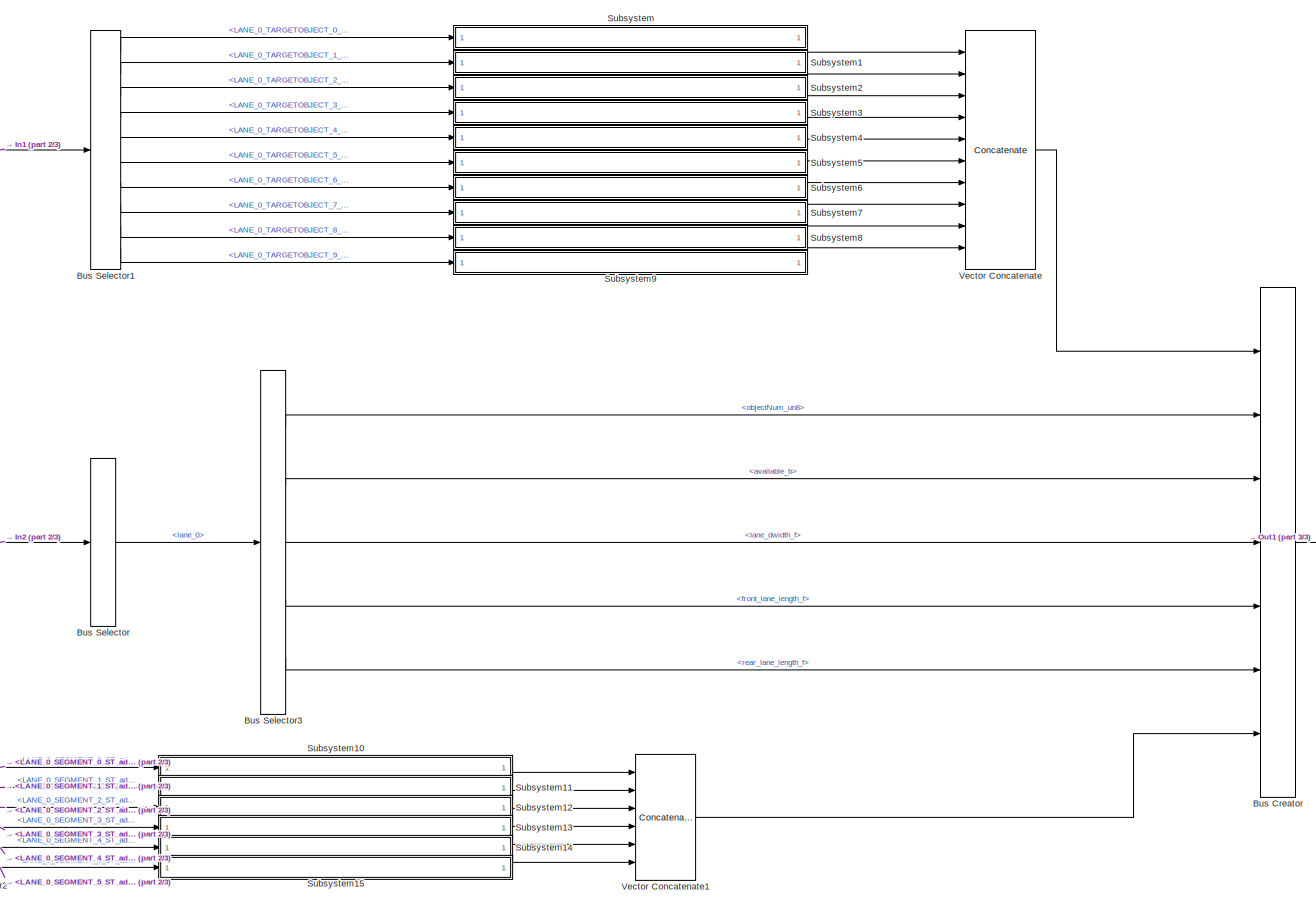
[diagram: adapter2/Lane_0 - part 1/3, center side, full height]
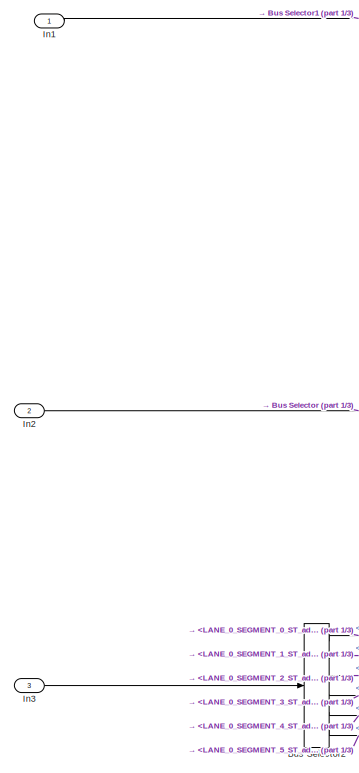
[diagram: adapter2/Lane_0 - part 2/3, left side, full height]
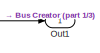
[diagram: adapter2/Lane_0 - part 3/3, middle right region]
BLOCK [SubSystem] adapter2/Lane_0
  Ports = [3, 1]
  RequestExecContextInheritance = off
BLOCK [BusCreator] adapter2/Lane_0/Bus Creator
  DisplayOption = bar
  InheritFromInputs = on
  Inputs = 7
  NonVirtualBus = on
  OutDataTypeStr = Bus: LM_LANE_ST
  Ports = [7, 1]
BLOCK [BusSelector] adapter2/Lane_0/Bus Selector
  OutputAsBus = off
  OutputSignals = lane_0
  Ports = [1, 1]
BLOCK [BusSelector] adapter2/Lane_0/Bus Selector1
  OutputAsBus = off
  OutputSignals = LANE_0_TARGETOBJECT_0_ST,LANE_0_TARGETOBJECT_1_ST,LANE_0_TARGETOBJECT_2_ST,LANE_0_TARGETOBJECT_3_ST,LANE_0_TARGETOBJECT_4_ST,LANE_0_TARGETOBJECT_5_ST,LANE_0_TARGETOBJECT_6_ST,LANE_0_TARGETOBJECT_7_ST,LANE_0_TARGETOBJECT_8_ST,LANE_0_TARGETOBJECT_9_ST
  Ports = [1, 10]
BLOCK [BusSelector] adapter2/Lane_0/Bus Selector2
  OutputAsBus = off
  OutputSignals = LANE_0_SEGMENT_0_ST_adp,LANE_0_SEGMENT_1_ST_adp,LANE_0_SEGMENT_2_ST_adp,LANE_0_SEGMENT_3_ST_adp,LANE_0_SEGMENT_4_ST_adp,LANE_0_SEGMENT_5_ST_adp
  Ports = [1, 6]
BLOCK [BusSelector] adapter2/Lane_0/Bus Selector3
  OutputAsBus = off
  OutputSignals = objectNum_un8,available_b,lane_dwidth_f,front_lane_length_f,rear_lane_length_f
  Ports = [1, 5]
BLOCK [Inport] adapter2/Lane_0/In1
  IconDisplay = Port number
BLOCK [Inport] adapter2/Lane_0/In2
  IconDisplay = Port number
  Port = 2
BLOCK [Inport] adapter2/Lane_0/In3
  IconDisplay = Port number
  Port = 3
BLOCK [Outport] adapter2/Lane_0/Out1
  IconDisplay = Port number
  OutDataTypeStr = Bus: LM_LANE_ST
BLOCK [SubSystem] adapter2/Lane_0/Subsystem
  Ports = [1, 1]
  RequestExecContextInheritance = off
BLOCK [Inport] adapter2/Lane_0/Subsystem/<LANE_0_TARGETOBJECT_0_ST>
  IconDisplay = Port number
BLOCK [BusCreator] adapter2/Lane_0/Subsystem/Bus Creator1
  DisplayOption = bar
  InheritFromInputs = on
  Inputs = 9
  NonVirtualBus = on
  OutDataTypeStr = Bus: TARGETOBJECT
  Ports = [9, 1]
BLOCK [BusSelector] adapter2/Lane_0/Subsystem/Bus Selector4
  OutputAsBus = off
  Ports = [1, 13]
BLOCK [Outport] adapter2/Lane_0/Subsystem/TARGRTOBJECTS_ST
  IconDisplay = Port number
  OutDataTypeStr = Bus: TARGETOBJECT
BLOCK [Concatenate] adapter2/Lane_0/Subsystem/Vector Concatenate
  NumInputs = 5
  Ports = [5, 1]
BLOCK [SubSystem] adapter2/Lane_0/Subsystem1
  Ports = [1, 1]
  RequestExecContextInheritance = off
BLOCK [Inport] adapter2/Lane_0/Subsystem1/<LANE_0_TARGETOBJECT_0_ST>
  IconDisplay = Port number
BLOCK [BusCreator] adapter2/Lane_0/Subsystem1/Bus Creator1
  DisplayOption = bar
  InheritFromInputs = on
  Inputs = 9
  NonVirtualBus = on
  OutDataTypeStr = Bus: TARGETOBJECT
  Ports = [9, 1]
BLOCK [BusSelector] adapter2/Lane_0/Subsystem1/Bus Selector4
  OutputAsBus = off
  Ports = [1, 13]
BLOCK [Outport] adapter2/Lane_0/Subsystem1/TARGRTOBJECTS_ST
  IconDisplay = Port number
  OutDataTypeStr = Bus: TARGETOBJECT
BLOCK [Concatenate] adapter2/Lane_0/Subsystem1/Vector Concatenate
  NumInputs = 5
  Ports = [5, 1]
BLOCK [SubSystem] adapter2/Lane_0/Subsystem10
  Ports = [1, 1]
  RequestExecContextInheritance = off
BLOCK [Inport] adapter2/Lane_0/Subsystem10/<LANE_0_TARGETOBJECT_0_ST>
  IconDisplay = Port number
BLOCK [BusCreator] adapter2/Lane_0/Subsystem10/Bus Creator1
  DisplayOption = bar
  InheritFromInputs = on
  Inputs = 7
  NonVirtualBus = on
  OutDataTypeStr = Bus: SEGMENT
  Ports = [7, 1]
BLOCK [BusSelector] adapter2/Lane_0/Subsystem10/Bus Selector4
  OutputAsBus = off
  OutputSignals = coef_arr_f_0,coef_arr_f_1,coef_arr_f_2,coef_arr_f_3,dlowerLimit_f,dupperLimit_f,numOfSegment_un8,available_b,detectedByVideo_b,quality_f
  Ports = [1, 10]
BLOCK [Outport] adapter2/Lane_0/Subsystem10/SEGMENT_ST
  IconDisplay = Port number
  OutDataTypeStr = Bus: SEGMENT
BLOCK [Concatenate] adapter2/Lane_0/Subsystem10/Vector Concatenate
  NumInputs = 4
  Ports = [4, 1]
BLOCK [SubSystem] adapter2/Lane_0/Subsystem11
  Ports = [1, 1]
  RequestExecContextInheritance = off
BLOCK [Inport] adapter2/Lane_0/Subsystem11/<LANE_0_TARGETOBJECT_0_ST>
  IconDisplay = Port number
BLOCK [BusCreator] adapter2/Lane_0/Subsystem11/Bus Creator1
  DisplayOption = bar
  InheritFromInputs = on
  Inputs = 7
  NonVirtualBus = on
  OutDataTypeStr = Bus: SEGMENT
  Ports = [7, 1]
BLOCK [BusSelector] adapter2/Lane_0/Subsystem11/Bus Selector4
  OutputAsBus = off
  OutputSignals = coef_arr_f_0,coef_arr_f_1,coef_arr_f_2,coef_arr_f_3,dlowerLimit_f,dupperLimit_f,numOfSegment_un8,available_b,detectedByVideo_b,quality_f
  Ports = [1, 10]
BLOCK [Outport] adapter2/Lane_0/Subsystem11/SEGMENT_ST
  IconDisplay = Port number
  OutDataTypeStr = Bus: SEGMENT
BLOCK [Concatenate] adapter2/Lane_0/Subsystem11/Vector Concatenate
  NumInputs = 4
  Ports = [4, 1]
BLOCK [SubSystem] adapter2/Lane_0/Subsystem12
  Ports = [1, 1]
  RequestExecContextInheritance = off
BLOCK [Inport] adapter2/Lane_0/Subsystem12/<LANE_0_TARGETOBJECT_0_ST>
  IconDisplay = Port number
BLOCK [BusCreator] adapter2/Lane_0/Subsystem12/Bus Creator1
  DisplayOption = bar
  InheritFromInputs = on
  Inputs = 7
  NonVirtualBus = on
  OutDataTypeStr = Bus: SEGMENT
  Ports = [7, 1]
BLOCK [BusSelector] adapter2/Lane_0/Subsystem12/Bus Selector4
  OutputAsBus = off
  OutputSignals = coef_arr_f_0,coef_arr_f_1,coef_arr_f_2,coef_arr_f_3,dlowerLimit_f,dupperLimit_f,numOfSegment_un8,available_b,detectedByVideo_b,quality_f
  Ports = [1, 10]
BLOCK [Outport] adapter2/Lane_0/Subsystem12/SEGMENT_ST
  IconDisplay = Port number
  OutDataTypeStr = Bus: SEGMENT
BLOCK [Concatenate] adapter2/Lane_0/Subsystem12/Vector Concatenate
  NumInputs = 4
  Ports = [4, 1]
BLOCK [SubSystem] adapter2/Lane_0/Subsystem13
  Ports = [1, 1]
  RequestExecContextInheritance = off
BLOCK [Inport] adapter2/Lane_0/Subsystem13/<LANE_0_TARGETOBJECT_0_ST>
  IconDisplay = Port number
BLOCK [BusCreator] adapter2/Lane_0/Subsystem13/Bus Creator1
  DisplayOption = bar
  InheritFromInputs = on
  Inputs = 7
  NonVirtualBus = on
  OutDataTypeStr = Bus: SEGMENT
  Ports = [7, 1]
BLOCK [BusSelector] adapter2/Lane_0/Subsystem13/Bus Selector4
  OutputAsBus = off
  OutputSignals = coef_arr_f_0,coef_arr_f_1,coef_arr_f_2,coef_arr_f_3,dlowerLimit_f,dupperLimit_f,numOfSegment_un8,available_b,detectedByVideo_b,quality_f
  Ports = [1, 10]
BLOCK [Outport] adapter2/Lane_0/Subsystem13/SEGMENT_ST
  IconDisplay = Port number
  OutDataTypeStr = Bus: SEGMENT
BLOCK [Concatenate] adapter2/Lane_0/Subsystem13/Vector Concatenate
  NumInputs = 4
  Ports = [4, 1]
BLOCK [SubSystem] adapter2/Lane_0/Subsystem14
  Ports = [1, 1]
  RequestExecContextInheritance = off
BLOCK [Inport] adapter2/Lane_0/Subsystem14/<LANE_0_TARGETOBJECT_0_ST>
  IconDisplay = Port number
BLOCK [BusCreator] adapter2/Lane_0/Subsystem14/Bus Creator1
  DisplayOption = bar
  InheritFromInputs = on
  Inputs = 7
  NonVirtualBus = on
  OutDataTypeStr = Bus: SEGMENT
  Ports = [7, 1]
BLOCK [BusSelector] adapter2/Lane_0/Subsystem14/Bus Selector4
  OutputAsBus = off
  OutputSignals = coef_arr_f_0,coef_arr_f_1,coef_arr_f_2,coef_arr_f_3,dlowerLimit_f,dupperLimit_f,numOfSegment_un8,available_b,detectedByVideo_b,quality_f
  Ports = [1, 10]
BLOCK [Outport] adapter2/Lane_0/Subsystem14/SEGMENT_ST
  IconDisplay = Port number
  OutDataTypeStr = Bus: SEGMENT
BLOCK [Concatenate] adapter2/Lane_0/Subsystem14/Vector Concatenate
  NumInputs = 4
  Ports = [4, 1]
BLOCK [SubSystem] adapter2/Lane_0/Subsystem15
  Ports = [1, 1]
  RequestExecContextInheritance = off
BLOCK [Inport] adapter2/Lane_0/Subsystem15/<LANE_0_TARGETOBJECT_0_ST>
  IconDisplay = Port number
BLOCK [BusCreator] adapter2/Lane_0/Subsystem15/Bus Creator1
  DisplayOption = bar
  InheritFromInputs = on
  Inputs = 7
  NonVirtualBus = on
  OutDataTypeStr = Bus: SEGMENT
  Ports = [7, 1]
BLOCK [BusSelector] adapter2/Lane_0/Subsystem15/Bus Selector4
  OutputAsBus = off
  OutputSignals = coef_arr_f_0,coef_arr_f_1,coef_arr_f_2,coef_arr_f_3,dlowerLimit_f,dupperLimit_f,numOfSegment_un8,available_b,detectedByVideo_b,quality_f
  Ports = [1, 10]
BLOCK [Outport] adapter2/Lane_0/Subsystem15/SEGMENT_ST
  IconDisplay = Port number
  OutDataTypeStr = Bus: SEGMENT
BLOCK [Concatenate] adapter2/Lane_0/Subsystem15/Vector Concatenate
  NumInputs = 4
  Ports = [4, 1]
BLOCK [SubSystem] adapter2/Lane_0/Subsystem2
  Ports = [1, 1]
  RequestExecContextInheritance = off
BLOCK [Inport] adapter2/Lane_0/Subsystem2/<LANE_0_TARGETOBJECT_0_ST>
  IconDisplay = Port number
BLOCK [BusCreator] adapter2/Lane_0/Subsystem2/Bus Creator1
  DisplayOption = bar
  InheritFromInputs = on
  Inputs = 9
  NonVirtualBus = on
  OutDataTypeStr = Bus: TARGETOBJECT
  Ports = [9, 1]
BLOCK [BusSelector] adapter2/Lane_0/Subsystem2/Bus Selector4
  OutputAsBus = off
  Ports = [1, 13]
BLOCK [Outport] adapter2/Lane_0/Subsystem2/TARGRTOBJECTS_ST
  IconDisplay = Port number
  OutDataTypeStr = Bus: TARGETOBJECT
BLOCK [Concatenate] adapter2/Lane_0/Subsystem2/Vector Concatenate
  NumInputs = 5
  Ports = [5, 1]
BLOCK [SubSystem] adapter2/Lane_0/Subsystem3
  Ports = [1, 1]
  RequestExecContextInheritance = off
BLOCK [Inport] adapter2/Lane_0/Subsystem3/<LANE_0_TARGETOBJECT_0_ST>
  IconDisplay = Port number
BLOCK [BusCreator] adapter2/Lane_0/Subsystem3/Bus Creator1
  DisplayOption = bar
  InheritFromInputs = on
  Inputs = 9
  NonVirtualBus = on
  OutDataTypeStr = Bus: TARGETOBJECT
  Ports = [9, 1]
BLOCK [BusSelector] adapter2/Lane_0/Subsystem3/Bus Selector4
  OutputAsBus = off
  Ports = [1, 13]
BLOCK [Outport] adapter2/Lane_0/Subsystem3/TARGRTOBJECTS_ST
  IconDisplay = Port number
  OutDataTypeStr = Bus: TARGETOBJECT
BLOCK [Concatenate] adapter2/Lane_0/Subsystem3/Vector Concatenate
  NumInputs = 5
  Ports = [5, 1]
BLOCK [SubSystem] adapter2/Lane_0/Subsystem4
  Ports = [1, 1]
  RequestExecContextInheritance = off
BLOCK [Inport] adapter2/Lane_0/Subsystem4/<LANE_0_TARGETOBJECT_0_ST>
  IconDisplay = Port number
BLOCK [BusCreator] adapter2/Lane_0/Subsystem4/Bus Creator1
  DisplayOption = bar
  InheritFromInputs = on
  Inputs = 9
  NonVirtualBus = on
  OutDataTypeStr = Bus: TARGETOBJECT
  Ports = [9, 1]
BLOCK [BusSelector] adapter2/Lane_0/Subsystem4/Bus Selector4
  OutputAsBus = off
  Ports = [1, 13]
BLOCK [Outport] adapter2/Lane_0/Subsystem4/TARGRTOBJECTS_ST
  IconDisplay = Port number
  OutDataTypeStr = Bus: TARGETOBJECT
BLOCK [Concatenate] adapter2/Lane_0/Subsystem4/Vector Concatenate
  NumInputs = 5
  Ports = [5, 1]
BLOCK [SubSystem] adapter2/Lane_0/Subsystem5
  Ports = [1, 1]
  RequestExecContextInheritance = off
BLOCK [Inport] adapter2/Lane_0/Subsystem5/<LANE_0_TARGETOBJECT_0_ST>
  IconDisplay = Port number
BLOCK [BusCreator] adapter2/Lane_0/Subsystem5/Bus Creator1
  DisplayOption = bar
  InheritFromInputs = on
  Inputs = 9
  NonVirtualBus = on
  OutDataTypeStr = Bus: TARGETOBJECT
  Ports = [9, 1]
BLOCK [BusSelector] adapter2/Lane_0/Subsystem5/Bus Selector4
  OutputAsBus = off
  Ports = [1, 13]
BLOCK [Outport] adapter2/Lane_0/Subsystem5/TARGRTOBJECTS_ST
  IconDisplay = Port number
  OutDataTypeStr = Bus: TARGETOBJECT
BLOCK [Concatenate] adapter2/Lane_0/Subsystem5/Vector Concatenate
  NumInputs = 5
  Ports = [5, 1]
BLOCK [SubSystem] adapter2/Lane_0/Subsystem6
  Ports = [1, 1]
  RequestExecContextInheritance = off
BLOCK [Inport] adapter2/Lane_0/Subsystem6/<LANE_0_TARGETOBJECT_0_ST>
  IconDisplay = Port number
BLOCK [BusCreator] adapter2/Lane_0/Subsystem6/Bus Creator1
  DisplayOption = bar
  InheritFromInputs = on
  Inputs = 9
  NonVirtualBus = on
  OutDataTypeStr = Bus: TARGETOBJECT
  Ports = [9, 1]
BLOCK [BusSelector] adapter2/Lane_0/Subsystem6/Bus Selector4
  OutputAsBus = off
  Ports = [1, 13]
BLOCK [Outport] adapter2/Lane_0/Subsystem6/TARGRTOBJECTS_ST
  IconDisplay = Port number
  OutDataTypeStr = Bus: TARGETOBJECT
BLOCK [Concatenate] adapter2/Lane_0/Subsystem6/Vector Concatenate
  NumInputs = 5
  Ports = [5, 1]
BLOCK [SubSystem] adapter2/Lane_0/Subsystem7
  Ports = [1, 1]
  RequestExecContextInheritance = off
BLOCK [Inport] adapter2/Lane_0/Subsystem7/<LANE_0_TARGETOBJECT_0_ST>
  IconDisplay = Port number
BLOCK [BusCreator] adapter2/Lane_0/Subsystem7/Bus Creator1
  DisplayOption = bar
  InheritFromInputs = on
  Inputs = 9
  NonVirtualBus = on
  OutDataTypeStr = Bus: TARGETOBJECT
  Ports = [9, 1]
BLOCK [BusSelector] adapter2/Lane_0/Subsystem7/Bus Selector4
  OutputAsBus = off
  Ports = [1, 13]
BLOCK [Outport] adapter2/Lane_0/Subsystem7/TARGRTOBJECTS_ST
  IconDisplay = Port number
  OutDataTypeStr = Bus: TARGETOBJECT
BLOCK [Concatenate] adapter2/Lane_0/Subsystem7/Vector Concatenate
  NumInputs = 5
  Ports = [5, 1]
BLOCK [SubSystem] adapter2/Lane_0/Subsystem8
  Ports = [1, 1]
  RequestExecContextInheritance = off
BLOCK [Inport] adapter2/Lane_0/Subsystem8/<LANE_0_TARGETOBJECT_0_ST>
  IconDisplay = Port number
BLOCK [BusCreator] adapter2/Lane_0/Subsystem8/Bus Creator1
  DisplayOption = bar
  InheritFromInputs = on
  Inputs = 9
  NonVirtualBus = on
  OutDataTypeStr = Bus: TARGETOBJECT
  Ports = [9, 1]
BLOCK [BusSelector] adapter2/Lane_0/Subsystem8/Bus Selector4
  OutputAsBus = off
  Ports = [1, 13]
BLOCK [Outport] adapter2/Lane_0/Subsystem8/TARGRTOBJECTS_ST
  IconDisplay = Port number
  OutDataTypeStr = Bus: TARGETOBJECT
BLOCK [Concatenate] adapter2/Lane_0/Subsystem8/Vector Concatenate
  NumInputs = 5
  Ports = [5, 1]
BLOCK [SubSystem] adapter2/Lane_0/Subsystem9
  Ports = [1, 1]
  RequestExecContextInheritance = off
BLOCK [Inport] adapter2/Lane_0/Subsystem9/<LANE_0_TARGETOBJECT_0_ST>
  IconDisplay = Port number
BLOCK [BusCreator] adapter2/Lane_0/Subsystem9/Bus Creator1
  DisplayOption = bar
  InheritFromInputs = on
  Inputs = 9
  NonVirtualBus = on
  OutDataTypeStr = Bus: TARGETOBJECT
  Ports = [9, 1]
BLOCK [BusSelector] adapter2/Lane_0/Subsystem9/Bus Selector4
  OutputAsBus = off
  Ports = [1, 13]
BLOCK [Outport] adapter2/Lane_0/Subsystem9/TARGRTOBJECTS_ST
  IconDisplay = Port number
  OutDataTypeStr = Bus: TARGETOBJECT
BLOCK [Concatenate] adapter2/Lane_0/Subsystem9/Vector Concatenate
  NumInputs = 5
  Ports = [5, 1]
BLOCK [Concatenate] adapter2/Lane_0/Vector Concatenate
  NumInputs = 10
  Ports = [10, 1]
BLOCK [Concatenate] adapter2/Lane_0/Vector Concatenate1
  NumInputs = 6
  Ports = [6, 1]
BLOCK [SubSystem] adapter2/Lane_1
  Ports = [3, 1]
  RequestExecContextInheritance = off
BLOCK [BusCreator] adapter2/Lane_1/Bus Creator
  DisplayOption = bar
  InheritFromInputs = on
  Inputs = 7
  NonVirtualBus = on
  OutDataTypeStr = Bus: LM_LANE_ST
  Ports = [7, 1]
BLOCK [BusSelector] adapter2/Lane_1/Bus Selector
  OutputAsBus = off
  OutputSignals = lane_1
  Ports = [1, 1]
BLOCK [BusSelector] adapter2/Lane_1/Bus Selector1
  OutputAsBus = off
  OutputSignals = LANE_1_TARGETOBJECT_0_ST,LANE_1_TARGETOBJECT_1_ST,LANE_1_TARGETOBJECT_2_ST,LANE_1_TARGETOBJECT_3_ST,LANE_1_TARGETOBJECT_4_ST,LANE_1_TARGETOBJECT_5_ST,LANE_1_TARGETOBJECT_6_ST,LANE_1_TARGETOBJECT_7_ST,LANE_1_TARGETOBJECT_8_ST,LANE_1_TARGETOBJECT_9_ST
  Ports = [1, 10]
BLOCK [BusSelector] adapter2/Lane_1/Bus Selector2
  OutputAsBus = off
  OutputSignals = LANE_1_SEGMENT_0_ST_adp,LANE_1_SEGMENT_1_ST_adp,LANE_1_SEGMENT_2_ST_adp,LANE_1_SEGMENT_3_ST_adp,LANE_1_SEGMENT_4_ST_adp,LANE_1_SEGMENT_5_ST_adp
  Ports = [1, 6]
BLOCK [BusSelector] adapter2/Lane_1/Bus Selector3
  OutputAsBus = off
  OutputSignals = objectNum_un8,available_b,lane_dwidth_f,front_lane_length_f,rear_lane_length_f
  Ports = [1, 5]
BLOCK [Inport] adapter2/Lane_1/In1
  IconDisplay = Port number
BLOCK [Inport] adapter2/Lane_1/In2
  IconDisplay = Port number
  Port = 2
BLOCK [Inport] adapter2/Lane_1/In3
  IconDisplay = Port number
  Port = 3
BLOCK [Outport] adapter2/Lane_1/Out1
  IconDisplay = Port number
  OutDataTypeStr = Bus: LM_LANE_ST
BLOCK [SubSystem] adapter2/Lane_1/Subsystem
  Ports = [1, 1]
  RequestExecContextInheritance = off
BLOCK [Inport] adapter2/Lane_1/Subsystem/<LANE_1_TARGETOBJECT_0_ST>
  IconDisplay = Port number
BLOCK [BusCreator] adapter2/Lane_1/Subsystem/Bus Creator1
  DisplayOption = bar
  InheritFromInputs = on
  Inputs = 9
  NonVirtualBus = on
  OutDataTypeStr = Bus: TARGETOBJECT
  Ports = [9, 1]
BLOCK [BusSelector] adapter2/Lane_1/Subsystem/Bus Selector4
  OutputAsBus = off
  Ports = [1, 13]
BLOCK [Outport] adapter2/Lane_1/Subsystem/TARGRTOBJECTS_ST
  IconDisplay = Port number
  OutDataTypeStr = Bus: TARGETOBJECT
BLOCK [Concatenate] adapter2/Lane_1/Subsystem/Vector Concatenate
  NumInputs = 5
  Ports = [5, 1]
BLOCK [SubSystem] adapter2/Lane_1/Subsystem1
  Ports = [1, 1]
  RequestExecContextInheritance = off
BLOCK [Inport] adapter2/Lane_1/Subsystem1/<LANE_1_TARGETOBJECT_0_ST>
  IconDisplay = Port number
BLOCK [BusCreator] adapter2/Lane_1/Subsystem1/Bus Creator1
  DisplayOption = bar
  InheritFromInputs = on
  Inputs = 9
  NonVirtualBus = on
  OutDataTypeStr = Bus: TARGETOBJECT
  Ports = [9, 1]
BLOCK [BusSelector] adapter2/Lane_1/Subsystem1/Bus Selector4
  OutputAsBus = off
  Ports = [1, 13]
BLOCK [Outport] adapter2/Lane_1/Subsystem1/TARGRTOBJECTS_ST
  IconDisplay = Port number
  OutDataTypeStr = Bus: TARGETOBJECT
BLOCK [Concatenate] adapter2/Lane_1/Subsystem1/Vector Concatenate
  NumInputs = 5
  Ports = [5, 1]
BLOCK [SubSystem] adapter2/Lane_1/Subsystem10
  Ports = [1, 1]
  RequestExecContextInheritance = off
BLOCK [Inport] adapter2/Lane_1/Subsystem10/<LANE_1_TARGETOBJECT_0_ST>
  IconDisplay = Port number
BLOCK [BusCreator] adapter2/Lane_1/Subsystem10/Bus Creator1
  DisplayOption = bar
  InheritFromInputs = on
  Inputs = 7
  NonVirtualBus = on
  OutDataTypeStr = Bus: SEGMENT
  Ports = [7, 1]
BLOCK [BusSelector] adapter2/Lane_1/Subsystem10/Bus Selector4
  OutputAsBus = off
  OutputSignals = coef_arr_f_0,coef_arr_f_1,coef_arr_f_2,coef_arr_f_3,dlowerLimit_f,dupperLimit_f,numOfSegment_un8,available_b,detectedByVideo_b,quality_f
  Ports = [1, 10]
BLOCK [Outport] adapter2/Lane_1/Subsystem10/SEGMENT_ST
  IconDisplay = Port number
  OutDataTypeStr = Bus: SEGMENT
BLOCK [Concatenate] adapter2/Lane_1/Subsystem10/Vector Concatenate
  NumInputs = 4
  Ports = [4, 1]
BLOCK [SubSystem] adapter2/Lane_1/Subsystem11
  Ports = [1, 1]
  RequestExecContextInheritance = off
BLOCK [Inport] adapter2/Lane_1/Subsystem11/<LANE_1_TARGETOBJECT_0_ST>
  IconDisplay = Port number
BLOCK [BusCreator] adapter2/Lane_1/Subsystem11/Bus Creator1
  DisplayOption = bar
  InheritFromInputs = on
  Inputs = 7
  NonVirtualBus = on
  OutDataTypeStr = Bus: SEGMENT
  Ports = [7, 1]
BLOCK [BusSelector] adapter2/Lane_1/Subsystem11/Bus Selector4
  OutputAsBus = off
  OutputSignals = coef_arr_f_0,coef_arr_f_1,coef_arr_f_2,coef_arr_f_3,dlowerLimit_f,dupperLimit_f,numOfSegment_un8,available_b,detectedByVideo_b,quality_f
  Ports = [1, 10]
BLOCK [Outport] adapter2/Lane_1/Subsystem11/SEGMENT_ST
  IconDisplay = Port number
  OutDataTypeStr = Bus: SEGMENT
BLOCK [Concatenate] adapter2/Lane_1/Subsystem11/Vector Concatenate
  NumInputs = 4
  Ports = [4, 1]
BLOCK [SubSystem] adapter2/Lane_1/Subsystem12
  Ports = [1, 1]
  RequestExecContextInheritance = off
BLOCK [Inport] adapter2/Lane_1/Subsystem12/<LANE_1_TARGETOBJECT_0_ST>
  IconDisplay = Port number
BLOCK [BusCreator] adapter2/Lane_1/Subsystem12/Bus Creator1
  DisplayOption = bar
  InheritFromInputs = on
  Inputs = 7
  NonVirtualBus = on
  OutDataTypeStr = Bus: SEGMENT
  Ports = [7, 1]
BLOCK [BusSelector] adapter2/Lane_1/Subsystem12/Bus Selector4
  OutputAsBus = off
  OutputSignals = coef_arr_f_0,coef_arr_f_1,coef_arr_f_2,coef_arr_f_3,dlowerLimit_f,dupperLimit_f,numOfSegment_un8,available_b,detectedByVideo_b,quality_f
  Ports = [1, 10]
BLOCK [Outport] adapter2/Lane_1/Subsystem12/SEGMENT_ST
  IconDisplay = Port number
  OutDataTypeStr = Bus: SEGMENT
BLOCK [Concatenate] adapter2/Lane_1/Subsystem12/Vector Concatenate
  NumInputs = 4
  Ports = [4, 1]
BLOCK [SubSystem] adapter2/Lane_1/Subsystem13
  Ports = [1, 1]
  RequestExecContextInheritance = off
BLOCK [Inport] adapter2/Lane_1/Subsystem13/<LANE_1_TARGETOBJECT_0_ST>
  IconDisplay = Port number
BLOCK [BusCreator] adapter2/Lane_1/Subsystem13/Bus Creator1
  DisplayOption = bar
  InheritFromInputs = on
  Inputs = 7
  NonVirtualBus = on
  OutDataTypeStr = Bus: SEGMENT
  Ports = [7, 1]
BLOCK [BusSelector] adapter2/Lane_1/Subsystem13/Bus Selector4
  OutputAsBus = off
  OutputSignals = coef_arr_f_0,coef_arr_f_1,coef_arr_f_2,coef_arr_f_3,dlowerLimit_f,dupperLimit_f,numOfSegment_un8,available_b,detectedByVideo_b,quality_f
  Ports = [1, 10]
BLOCK [Outport] adapter2/Lane_1/Subsystem13/SEGMENT_ST
  IconDisplay = Port number
  OutDataTypeStr = Bus: SEGMENT
BLOCK [Concatenate] adapter2/Lane_1/Subsystem13/Vector Concatenate
  NumInputs = 4
  Ports = [4, 1]
BLOCK [SubSystem] adapter2/Lane_1/Subsystem14
  Ports = [1, 1]
  RequestExecContextInheritance = off
BLOCK [Inport] adapter2/Lane_1/Subsystem14/<LANE_1_TARGETOBJECT_0_ST>
  IconDisplay = Port number
BLOCK [BusCreator] adapter2/Lane_1/Subsystem14/Bus Creator1
  DisplayOption = bar
  InheritFromInputs = on
  Inputs = 7
  NonVirtualBus = on
  OutDataTypeStr = Bus: SEGMENT
  Ports = [7, 1]
BLOCK [BusSelector] adapter2/Lane_1/Subsystem14/Bus Selector4
  OutputAsBus = off
  OutputSignals = coef_arr_f_0,coef_arr_f_1,coef_arr_f_2,coef_arr_f_3,dlowerLimit_f,dupperLimit_f,numOfSegment_un8,available_b,detectedByVideo_b,quality_f
  Ports = [1, 10]
BLOCK [Outport] adapter2/Lane_1/Subsystem14/SEGMENT_ST
  IconDisplay = Port number
  OutDataTypeStr = Bus: SEGMENT
BLOCK [Concatenate] adapter2/Lane_1/Subsystem14/Vector Concatenate
  NumInputs = 4
  Ports = [4, 1]
BLOCK [SubSystem] adapter2/Lane_1/Subsystem15
  Ports = [1, 1]
  RequestExecContextInheritance = off
BLOCK [Inport] adapter2/Lane_1/Subsystem15/<LANE_1_TARGETOBJECT_0_ST>
  IconDisplay = Port number
BLOCK [BusCreator] adapter2/Lane_1/Subsystem15/Bus Creator1
  DisplayOption = bar
  InheritFromInputs = on
  Inputs = 7
  NonVirtualBus = on
  OutDataTypeStr = Bus: SEGMENT
  Ports = [7, 1]
BLOCK [BusSelector] adapter2/Lane_1/Subsystem15/Bus Selector4
  OutputAsBus = off
  OutputSignals = coef_arr_f_0,coef_arr_f_1,coef_arr_f_2,coef_arr_f_3,dlowerLimit_f,dupperLimit_f,numOfSegment_un8,available_b,detectedByVideo_b,quality_f
  Ports = [1, 10]
BLOCK [Outport] adapter2/Lane_1/Subsystem15/SEGMENT_ST
  IconDisplay = Port number
  OutDataTypeStr = Bus: SEGMENT
BLOCK [Concatenate] adapter2/Lane_1/Subsystem15/Vector Concatenate
  NumInputs = 4
  Ports = [4, 1]
BLOCK [SubSystem] adapter2/Lane_1/Subsystem2
  Ports = [1, 1]
  RequestExecContextInheritance = off
BLOCK [Inport] adapter2/Lane_1/Subsystem2/<LANE_1_TARGETOBJECT_0_ST>
  IconDisplay = Port number
BLOCK [BusCreator] adapter2/Lane_1/Subsystem2/Bus Creator1
  DisplayOption = bar
  InheritFromInputs = on
  Inputs = 9
  NonVirtualBus = on
  OutDataTypeStr = Bus: TARGETOBJECT
  Ports = [9, 1]
BLOCK [BusSelector] adapter2/Lane_1/Subsystem2/Bus Selector4
  OutputAsBus = off
  Ports = [1, 13]
BLOCK [Outport] adapter2/Lane_1/Subsystem2/TARGRTOBJECTS_ST
  IconDisplay = Port number
  OutDataTypeStr = Bus: TARGETOBJECT
BLOCK [Concatenate] adapter2/Lane_1/Subsystem2/Vector Concatenate
  NumInputs = 5
  Ports = [5, 1]
BLOCK [SubSystem] adapter2/Lane_1/Subsystem3
  Ports = [1, 1]
  RequestExecContextInheritance = off
BLOCK [Inport] adapter2/Lane_1/Subsystem3/<LANE_1_TARGETOBJECT_0_ST>
  IconDisplay = Port number
BLOCK [BusCreator] adapter2/Lane_1/Subsystem3/Bus Creator1
  DisplayOption = bar
  InheritFromInputs = on
  Inputs = 9
  NonVirtualBus = on
  OutDataTypeStr = Bus: TARGETOBJECT
  Ports = [9, 1]
BLOCK [BusSelector] adapter2/Lane_1/Subsystem3/Bus Selector4
  OutputAsBus = off
  Ports = [1, 13]
BLOCK [Outport] adapter2/Lane_1/Subsystem3/TARGRTOBJECTS_ST
  IconDisplay = Port number
  OutDataTypeStr = Bus: TARGETOBJECT
BLOCK [Concatenate] adapter2/Lane_1/Subsystem3/Vector Concatenate
  NumInputs = 5
  Ports = [5, 1]
BLOCK [SubSystem] adapter2/Lane_1/Subsystem4
  Ports = [1, 1]
  RequestExecContextInheritance = off
BLOCK [Inport] adapter2/Lane_1/Subsystem4/<LANE_1_TARGETOBJECT_0_ST>
  IconDisplay = Port number
BLOCK [BusCreator] adapter2/Lane_1/Subsystem4/Bus Creator1
  DisplayOption = bar
  InheritFromInputs = on
  Inputs = 9
  NonVirtualBus = on
  OutDataTypeStr = Bus: TARGETOBJECT
  Ports = [9, 1]
BLOCK [BusSelector] adapter2/Lane_1/Subsystem4/Bus Selector4
  OutputAsBus = off
  Ports = [1, 13]
BLOCK [Outport] adapter2/Lane_1/Subsystem4/TARGRTOBJECTS_ST
  IconDisplay = Port number
  OutDataTypeStr = Bus: TARGETOBJECT
BLOCK [Concatenate] adapter2/Lane_1/Subsystem4/Vector Concatenate
  NumInputs = 5
  Ports = [5, 1]
BLOCK [SubSystem] adapter2/Lane_1/Subsystem5
  Ports = [1, 1]
  RequestExecContextInheritance = off
BLOCK [Inport] adapter2/Lane_1/Subsystem5/<LANE_1_TARGETOBJECT_0_ST>
  IconDisplay = Port number
BLOCK [BusCreator] adapter2/Lane_1/Subsystem5/Bus Creator1
  DisplayOption = bar
  InheritFromInputs = on
  Inputs = 9
  NonVirtualBus = on
  OutDataTypeStr = Bus: TARGETOBJECT
  Ports = [9, 1]
BLOCK [BusSelector] adapter2/Lane_1/Subsystem5/Bus Selector4
  OutputAsBus = off
  Ports = [1, 13]
BLOCK [Outport] adapter2/Lane_1/Subsystem5/TARGRTOBJECTS_ST
  IconDisplay = Port number
  OutDataTypeStr = Bus: TARGETOBJECT
BLOCK [Concatenate] adapter2/Lane_1/Subsystem5/Vector Concatenate
  NumInputs = 5
  Ports = [5, 1]
BLOCK [SubSystem] adapter2/Lane_1/Subsystem6
  Ports = [1, 1]
  RequestExecContextInheritance = off
BLOCK [Inport] adapter2/Lane_1/Subsystem6/<LANE_1_TARGETOBJECT_0_ST>
  IconDisplay = Port number
BLOCK [BusCreator] adapter2/Lane_1/Subsystem6/Bus Creator1
  DisplayOption = bar
  InheritFromInputs = on
  Inputs = 9
  NonVirtualBus = on
  OutDataTypeStr = Bus: TARGETOBJECT
  Ports = [9, 1]
BLOCK [BusSelector] adapter2/Lane_1/Subsystem6/Bus Selector4
  OutputAsBus = off
  Ports = [1, 13]
BLOCK [Outport] adapter2/Lane_1/Subsystem6/TARGRTOBJECTS_ST
  IconDisplay = Port number
  OutDataTypeStr = Bus: TARGETOBJECT
BLOCK [Concatenate] adapter2/Lane_1/Subsystem6/Vector Concatenate
  NumInputs = 5
  Ports = [5, 1]
BLOCK [SubSystem] adapter2/Lane_1/Subsystem7
  Ports = [1, 1]
  RequestExecContextInheritance = off
BLOCK [Inport] adapter2/Lane_1/Subsystem7/<LANE_1_TARGETOBJECT_0_ST>
  IconDisplay = Port number
BLOCK [BusCreator] adapter2/Lane_1/Subsystem7/Bus Creator1
  DisplayOption = bar
  InheritFromInputs = on
  Inputs = 9
  NonVirtualBus = on
  OutDataTypeStr = Bus: TARGETOBJECT
  Ports = [9, 1]
BLOCK [BusSelector] adapter2/Lane_1/Subsystem7/Bus Selector4
  OutputAsBus = off
  Ports = [1, 13]
BLOCK [Outport] adapter2/Lane_1/Subsystem7/TARGRTOBJECTS_ST
  IconDisplay = Port number
  OutDataTypeStr = Bus: TARGETOBJECT
BLOCK [Concatenate] adapter2/Lane_1/Subsystem7/Vector Concatenate
  NumInputs = 5
  Ports = [5, 1]
BLOCK [SubSystem] adapter2/Lane_1/Subsystem8
  Ports = [1, 1]
  RequestExecContextInheritance = off
BLOCK [Inport] adapter2/Lane_1/Subsystem8/<LANE_1_TARGETOBJECT_0_ST>
  IconDisplay = Port number
BLOCK [BusCreator] adapter2/Lane_1/Subsystem8/Bus Creator1
  DisplayOption = bar
  InheritFromInputs = on
  Inputs = 9
  NonVirtualBus = on
  OutDataTypeStr = Bus: TARGETOBJECT
  Ports = [9, 1]
BLOCK [BusSelector] adapter2/Lane_1/Subsystem8/Bus Selector4
  OutputAsBus = off
  Ports = [1, 13]
BLOCK [Outport] adapter2/Lane_1/Subsystem8/TARGRTOBJECTS_ST
  IconDisplay = Port number
  OutDataTypeStr = Bus: TARGETOBJECT
BLOCK [Concatenate] adapter2/Lane_1/Subsystem8/Vector Concatenate
  NumInputs = 5
  Ports = [5, 1]
BLOCK [SubSystem] adapter2/Lane_1/Subsystem9
  Ports = [1, 1]
  RequestExecContextInheritance = off
BLOCK [Inport] adapter2/Lane_1/Subsystem9/<LANE_1_TARGETOBJECT_0_ST>
  IconDisplay = Port number
BLOCK [BusCreator] adapter2/Lane_1/Subsystem9/Bus Creator1
  DisplayOption = bar
  InheritFromInputs = on
  Inputs = 9
  NonVirtualBus = on
  OutDataTypeStr = Bus: TARGETOBJECT
  Ports = [9, 1]
BLOCK [BusSelector] adapter2/Lane_1/Subsystem9/Bus Selector4
  OutputAsBus = off
  Ports = [1, 13]
BLOCK [Outport] adapter2/Lane_1/Subsystem9/TARGRTOBJECTS_ST
  IconDisplay = Port number
  OutDataTypeStr = Bus: TARGETOBJECT
BLOCK [Concatenate] adapter2/Lane_1/Subsystem9/Vector Concatenate
  NumInputs = 5
  Ports = [5, 1]
BLOCK [Concatenate] adapter2/Lane_1/Vector Concatenate
  NumInputs = 10
  Ports = [10, 1]
BLOCK [Concatenate] adapter2/Lane_1/Vector Concatenate1
  NumInputs = 6
  Ports = [6, 1]
BLOCK [SubSystem] adapter2/Lane_2
  Ports = [3, 1]
  RequestExecContextInheritance = off
BLOCK [BusCreator] adapter2/Lane_2/Bus Creator
  DisplayOption = bar
  InheritFromInputs = on
  Inputs = 7
  NonVirtualBus = on
  OutDataTypeStr = Bus: LM_LANE_ST
  Ports = [7, 1]
BLOCK [BusSelector] adapter2/Lane_2/Bus Selector
  OutputAsBus = off
  OutputSignals = lane_2
  Ports = [1, 1]
BLOCK [BusSelector] adapter2/Lane_2/Bus Selector1
  OutputAsBus = off
  OutputSignals = LANE_2_TARGETOBJECT_0_ST,LANE_2_TARGETOBJECT_1_ST,LANE_2_TARGETOBJECT_2_ST,LANE_2_TARGETOBJECT_3_ST,LANE_2_TARGETOBJECT_4_ST,LANE_2_TARGETOBJECT_5_ST,LANE_2_TARGETOBJECT_6_ST,LANE_2_TARGETOBJECT_7_ST,LANE_2_TARGETOBJECT_8_ST,LANE_2_TARGETOBJECT_9_ST
  Ports = [1, 10]
BLOCK [BusSelector] adapter2/Lane_2/Bus Selector2
  OutputAsBus = off
  OutputSignals = LANE_2_SEGMENT_0_ST_adp,LANE_2_SEGMENT_1_ST_adp,LANE_2_SEGMENT_2_ST_adp,LANE_2_SEGMENT_3_ST_adp,LANE_2_SEGMENT_4_ST_adp,LANE_2_SEGMENT_5_ST_adp
  Ports = [1, 6]
BLOCK [BusSelector] adapter2/Lane_2/Bus Selector3
  OutputAsBus = off
  OutputSignals = objectNum_un8,available_b,lane_dwidth_f,front_lane_length_f,rear_lane_length_f
  Ports = [1, 5]
BLOCK [Inport] adapter2/Lane_2/In1
  IconDisplay = Port number
BLOCK [Inport] adapter2/Lane_2/In2
  IconDisplay = Port number
  Port = 2
BLOCK [Inport] adapter2/Lane_2/In3
  IconDisplay = Port number
  Port = 3
BLOCK [Outport] adapter2/Lane_2/Out1
  IconDisplay = Port number
  OutDataTypeStr = Bus: LM_LANE_ST
BLOCK [SubSystem] adapter2/Lane_2/Subsystem
  Ports = [1, 1]
  RequestExecContextInheritance = off
BLOCK [Inport] adapter2/Lane_2/Subsystem/<LANE_0_TARGETOBJECT_0_ST>
  IconDisplay = Port number
BLOCK [BusCreator] adapter2/Lane_2/Subsystem/Bus Creator1
  DisplayOption = bar
  InheritFromInputs = on
  Inputs = 9
  NonVirtualBus = on
  OutDataTypeStr = Bus: TARGETOBJECT
  Ports = [9, 1]
BLOCK [BusSelector] adapter2/Lane_2/Subsystem/Bus Selector4
  OutputAsBus = off
  Ports = [1, 13]
BLOCK [Outport] adapter2/Lane_2/Subsystem/TARGRTOBJECTS_ST
  IconDisplay = Port number
  OutDataTypeStr = Bus: TARGETOBJECT
BLOCK [Concatenate] adapter2/Lane_2/Subsystem/Vector Concatenate
  NumInputs = 5
  Ports = [5, 1]
BLOCK [SubSystem] adapter2/Lane_2/Subsystem1
  Ports = [1, 1]
  RequestExecContextInheritance = off
BLOCK [Inport] adapter2/Lane_2/Subsystem1/<LANE_0_TARGETOBJECT_0_ST>
  IconDisplay = Port number
BLOCK [BusCreator] adapter2/Lane_2/Subsystem1/Bus Creator1
  DisplayOption = bar
  InheritFromInputs = on
  Inputs = 9
  NonVirtualBus = on
  OutDataTypeStr = Bus: TARGETOBJECT
  Ports = [9, 1]
BLOCK [BusSelector] adapter2/Lane_2/Subsystem1/Bus Selector4
  OutputAsBus = off
  Ports = [1, 13]
BLOCK [Outport] adapter2/Lane_2/Subsystem1/TARGRTOBJECTS_ST
  IconDisplay = Port number
  OutDataTypeStr = Bus: TARGETOBJECT
BLOCK [Concatenate] adapter2/Lane_2/Subsystem1/Vector Concatenate
  NumInputs = 5
  Ports = [5, 1]
BLOCK [SubSystem] adapter2/Lane_2/Subsystem10
  Ports = [1, 1]
  RequestExecContextInheritance = off
BLOCK [Inport] adapter2/Lane_2/Subsystem10/<LANE_2_TARGETOBJECT_0_ST>
  IconDisplay = Port number
BLOCK [BusCreator] adapter2/Lane_2/Subsystem10/Bus Creator1
  DisplayOption = bar
  InheritFromInputs = on
  Inputs = 7
  NonVirtualBus = on
  OutDataTypeStr = Bus: SEGMENT
  Ports = [7, 1]
BLOCK [BusSelector] adapter2/Lane_2/Subsystem10/Bus Selector4
  OutputAsBus = off
  OutputSignals = coef_arr_f_0,coef_arr_f_1,coef_arr_f_2,coef_arr_f_3,dlowerLimit_f,dupperLimit_f,numOfSegment_un8,available_b,detectedByVideo_b,quality_f
  Ports = [1, 10]
BLOCK [Outport] adapter2/Lane_2/Subsystem10/SEGMENT_ST
  IconDisplay = Port number
  OutDataTypeStr = Bus: SEGMENT
BLOCK [Concatenate] adapter2/Lane_2/Subsystem10/Vector Concatenate
  NumInputs = 4
  Ports = [4, 1]
BLOCK [SubSystem] adapter2/Lane_2/Subsystem11
  Ports = [1, 1]
  RequestExecContextInheritance = off
BLOCK [Inport] adapter2/Lane_2/Subsystem11/<LANE_2_TARGETOBJECT_0_ST>
  IconDisplay = Port number
BLOCK [BusCreator] adapter2/Lane_2/Subsystem11/Bus Creator1
  DisplayOption = bar
  InheritFromInputs = on
  Inputs = 7
  NonVirtualBus = on
  OutDataTypeStr = Bus: SEGMENT
  Ports = [7, 1]
BLOCK [BusSelector] adapter2/Lane_2/Subsystem11/Bus Selector4
  OutputAsBus = off
  OutputSignals = coef_arr_f_0,coef_arr_f_1,coef_arr_f_2,coef_arr_f_3,dlowerLimit_f,dupperLimit_f,numOfSegment_un8,available_b,detectedByVideo_b,quality_f
  Ports = [1, 10]
BLOCK [Outport] adapter2/Lane_2/Subsystem11/SEGMENT_ST
  IconDisplay = Port number
  OutDataTypeStr = Bus: SEGMENT
BLOCK [Concatenate] adapter2/Lane_2/Subsystem11/Vector Concatenate
  NumInputs = 4
  Ports = [4, 1]
BLOCK [SubSystem] adapter2/Lane_2/Subsystem12
  Ports = [1, 1]
  RequestExecContextInheritance = off
BLOCK [Inport] adapter2/Lane_2/Subsystem12/<LANE_2_TARGETOBJECT_0_ST>
  IconDisplay = Port number
BLOCK [BusCreator] adapter2/Lane_2/Subsystem12/Bus Creator1
  DisplayOption = bar
  InheritFromInputs = on
  Inputs = 7
  NonVirtualBus = on
  OutDataTypeStr = Bus: SEGMENT
  Ports = [7, 1]
BLOCK [BusSelector] adapter2/Lane_2/Subsystem12/Bus Selector4
  OutputAsBus = off
  OutputSignals = coef_arr_f_0,coef_arr_f_1,coef_arr_f_2,coef_arr_f_3,dlowerLimit_f,dupperLimit_f,numOfSegment_un8,available_b,detectedByVideo_b,quality_f
  Ports = [1, 10]
BLOCK [Outport] adapter2/Lane_2/Subsystem12/SEGMENT_ST
  IconDisplay = Port number
  OutDataTypeStr = Bus: SEGMENT
BLOCK [Concatenate] adapter2/Lane_2/Subsystem12/Vector Concatenate
  NumInputs = 4
  Ports = [4, 1]
BLOCK [SubSystem] adapter2/Lane_2/Subsystem13
  Ports = [1, 1]
  RequestExecContextInheritance = off
BLOCK [Inport] adapter2/Lane_2/Subsystem13/<LANE_2_TARGETOBJECT_0_ST>
  IconDisplay = Port number
BLOCK [BusCreator] adapter2/Lane_2/Subsystem13/Bus Creator1
  DisplayOption = bar
  InheritFromInputs = on
  Inputs = 7
  NonVirtualBus = on
  OutDataTypeStr = Bus: SEGMENT
  Ports = [7, 1]
BLOCK [BusSelector] adapter2/Lane_2/Subsystem13/Bus Selector4
  OutputAsBus = off
  OutputSignals = coef_arr_f_0,coef_arr_f_1,coef_arr_f_2,coef_arr_f_3,dlowerLimit_f,dupperLimit_f,numOfSegment_un8,available_b,detectedByVideo_b,quality_f
  Ports = [1, 10]
BLOCK [Outport] adapter2/Lane_2/Subsystem13/SEGMENT_ST
  IconDisplay = Port number
  OutDataTypeStr = Bus: SEGMENT
BLOCK [Concatenate] adapter2/Lane_2/Subsystem13/Vector Concatenate
  NumInputs = 4
  Ports = [4, 1]
BLOCK [SubSystem] adapter2/Lane_2/Subsystem14
  Ports = [1, 1]
  RequestExecContextInheritance = off
BLOCK [Inport] adapter2/Lane_2/Subsystem14/<LANE_2_TARGETOBJECT_0_ST>
  IconDisplay = Port number
BLOCK [BusCreator] adapter2/Lane_2/Subsystem14/Bus Creator1
  DisplayOption = bar
  InheritFromInputs = on
  Inputs = 7
  NonVirtualBus = on
  OutDataTypeStr = Bus: SEGMENT
  Ports = [7, 1]
BLOCK [BusSelector] adapter2/Lane_2/Subsystem14/Bus Selector4
  OutputAsBus = off
  OutputSignals = coef_arr_f_0,coef_arr_f_1,coef_arr_f_2,coef_arr_f_3,dlowerLimit_f,dupperLimit_f,numOfSegment_un8,available_b,detectedByVideo_b,quality_f
  Ports = [1, 10]
BLOCK [Outport] adapter2/Lane_2/Subsystem14/SEGMENT_ST
  IconDisplay = Port number
  OutDataTypeStr = Bus: SEGMENT
BLOCK [Concatenate] adapter2/Lane_2/Subsystem14/Vector Concatenate
  NumInputs = 4
  Ports = [4, 1]
BLOCK [SubSystem] adapter2/Lane_2/Subsystem15
  Ports = [1, 1]
  RequestExecContextInheritance = off
BLOCK [Inport] adapter2/Lane_2/Subsystem15/<LANE_2_TARGETOBJECT_0_ST>
  IconDisplay = Port number
BLOCK [BusCreator] adapter2/Lane_2/Subsystem15/Bus Creator1
  DisplayOption = bar
  InheritFromInputs = on
  Inputs = 7
  NonVirtualBus = on
  OutDataTypeStr = Bus: SEGMENT
  Ports = [7, 1]
BLOCK [BusSelector] adapter2/Lane_2/Subsystem15/Bus Selector4
  OutputAsBus = off
  OutputSignals = coef_arr_f_0,coef_arr_f_1,coef_arr_f_2,coef_arr_f_3,dlowerLimit_f,dupperLimit_f,numOfSegment_un8,available_b,detectedByVideo_b,quality_f
  Ports = [1, 10]
BLOCK [Outport] adapter2/Lane_2/Subsystem15/SEGMENT_ST
  IconDisplay = Port number
  OutDataTypeStr = Bus: SEGMENT
BLOCK [Concatenate] adapter2/Lane_2/Subsystem15/Vector Concatenate
  NumInputs = 4
  Ports = [4, 1]
BLOCK [SubSystem] adapter2/Lane_2/Subsystem2
  Ports = [1, 1]
  RequestExecContextInheritance = off
BLOCK [Inport] adapter2/Lane_2/Subsystem2/<LANE_0_TARGETOBJECT_0_ST>
  IconDisplay = Port number
BLOCK [BusCreator] adapter2/Lane_2/Subsystem2/Bus Creator1
  DisplayOption = bar
  InheritFromInputs = on
  Inputs = 9
  NonVirtualBus = on
  OutDataTypeStr = Bus: TARGETOBJECT
  Ports = [9, 1]
BLOCK [BusSelector] adapter2/Lane_2/Subsystem2/Bus Selector4
  OutputAsBus = off
  Ports = [1, 13]
BLOCK [Outport] adapter2/Lane_2/Subsystem2/TARGRTOBJECTS_ST
  IconDisplay = Port number
  OutDataTypeStr = Bus: TARGETOBJECT
BLOCK [Concatenate] adapter2/Lane_2/Subsystem2/Vector Concatenate
  NumInputs = 5
  Ports = [5, 1]
BLOCK [SubSystem] adapter2/Lane_2/Subsystem3
  Ports = [1, 1]
  RequestExecContextInheritance = off
BLOCK [Inport] adapter2/Lane_2/Subsystem3/<LANE_0_TARGETOBJECT_0_ST>
  IconDisplay = Port number
BLOCK [BusCreator] adapter2/Lane_2/Subsystem3/Bus Creator1
  DisplayOption = bar
  InheritFromInputs = on
  Inputs = 9
  NonVirtualBus = on
  OutDataTypeStr = Bus: TARGETOBJECT
  Ports = [9, 1]
BLOCK [BusSelector] adapter2/Lane_2/Subsystem3/Bus Selector4
  OutputAsBus = off
  Ports = [1, 13]
BLOCK [Outport] adapter2/Lane_2/Subsystem3/TARGRTOBJECTS_ST
  IconDisplay = Port number
  OutDataTypeStr = Bus: TARGETOBJECT
BLOCK [Concatenate] adapter2/Lane_2/Subsystem3/Vector Concatenate
  NumInputs = 5
  Ports = [5, 1]
BLOCK [SubSystem] adapter2/Lane_2/Subsystem4
  Ports = [1, 1]
  RequestExecContextInheritance = off
BLOCK [Inport] adapter2/Lane_2/Subsystem4/<LANE_0_TARGETOBJECT_0_ST>
  IconDisplay = Port number
BLOCK [BusCreator] adapter2/Lane_2/Subsystem4/Bus Creator1
  DisplayOption = bar
  InheritFromInputs = on
  Inputs = 9
  NonVirtualBus = on
  OutDataTypeStr = Bus: TARGETOBJECT
  Ports = [9, 1]
BLOCK [BusSelector] adapter2/Lane_2/Subsystem4/Bus Selector4
  OutputAsBus = off
  Ports = [1, 13]
BLOCK [Outport] adapter2/Lane_2/Subsystem4/TARGRTOBJECTS_ST
  IconDisplay = Port number
  OutDataTypeStr = Bus: TARGETOBJECT
BLOCK [Concatenate] adapter2/Lane_2/Subsystem4/Vector Concatenate
  NumInputs = 5
  Ports = [5, 1]
BLOCK [SubSystem] adapter2/Lane_2/Subsystem5
  Ports = [1, 1]
  RequestExecContextInheritance = off
BLOCK [Inport] adapter2/Lane_2/Subsystem5/<LANE_0_TARGETOBJECT_0_ST>
  IconDisplay = Port number
BLOCK [BusCreator] adapter2/Lane_2/Subsystem5/Bus Creator1
  DisplayOption = bar
  InheritFromInputs = on
  Inputs = 9
  NonVirtualBus = on
  OutDataTypeStr = Bus: TARGETOBJECT
  Ports = [9, 1]
BLOCK [BusSelector] adapter2/Lane_2/Subsystem5/Bus Selector4
  OutputAsBus = off
  Ports = [1, 13]
BLOCK [Outport] adapter2/Lane_2/Subsystem5/TARGRTOBJECTS_ST
  IconDisplay = Port number
  OutDataTypeStr = Bus: TARGETOBJECT
BLOCK [Concatenate] adapter2/Lane_2/Subsystem5/Vector Concatenate
  NumInputs = 5
  Ports = [5, 1]
BLOCK [SubSystem] adapter2/Lane_2/Subsystem6
  Ports = [1, 1]
  RequestExecContextInheritance = off
BLOCK [Inport] adapter2/Lane_2/Subsystem6/<LANE_0_TARGETOBJECT_0_ST>
  IconDisplay = Port number
BLOCK [BusCreator] adapter2/Lane_2/Subsystem6/Bus Creator1
  DisplayOption = bar
  InheritFromInputs = on
  Inputs = 9
  NonVirtualBus = on
  OutDataTypeStr = Bus: TARGETOBJECT
  Ports = [9, 1]
BLOCK [BusSelector] adapter2/Lane_2/Subsystem6/Bus Selector4
  OutputAsBus = off
  Ports = [1, 13]
BLOCK [Outport] adapter2/Lane_2/Subsystem6/TARGRTOBJECTS_ST
  IconDisplay = Port number
  OutDataTypeStr = Bus: TARGETOBJECT
BLOCK [Concatenate] adapter2/Lane_2/Subsystem6/Vector Concatenate
  NumInputs = 5
  Ports = [5, 1]
BLOCK [SubSystem] adapter2/Lane_2/Subsystem7
  Ports = [1, 1]
  RequestExecContextInheritance = off
BLOCK [Inport] adapter2/Lane_2/Subsystem7/<LANE_0_TARGETOBJECT_0_ST>
  IconDisplay = Port number
BLOCK [BusCreator] adapter2/Lane_2/Subsystem7/Bus Creator1
  DisplayOption = bar
  InheritFromInputs = on
  Inputs = 9
  NonVirtualBus = on
  OutDataTypeStr = Bus: TARGETOBJECT
  Ports = [9, 1]
BLOCK [BusSelector] adapter2/Lane_2/Subsystem7/Bus Selector4
  OutputAsBus = off
  Ports = [1, 13]
BLOCK [Outport] adapter2/Lane_2/Subsystem7/TARGRTOBJECTS_ST
  IconDisplay = Port number
  OutDataTypeStr = Bus: TARGETOBJECT
BLOCK [Concatenate] adapter2/Lane_2/Subsystem7/Vector Concatenate
  NumInputs = 5
  Ports = [5, 1]
BLOCK [SubSystem] adapter2/Lane_2/Subsystem8
  Ports = [1, 1]
  RequestExecContextInheritance = off
BLOCK [Inport] adapter2/Lane_2/Subsystem8/<LANE_0_TARGETOBJECT_0_ST>
  IconDisplay = Port number
BLOCK [BusCreator] adapter2/Lane_2/Subsystem8/Bus Creator1
  DisplayOption = bar
  InheritFromInputs = on
  Inputs = 9
  NonVirtualBus = on
  OutDataTypeStr = Bus: TARGETOBJECT
  Ports = [9, 1]
BLOCK [BusSelector] adapter2/Lane_2/Subsystem8/Bus Selector4
  OutputAsBus = off
  Ports = [1, 13]
BLOCK [Outport] adapter2/Lane_2/Subsystem8/TARGRTOBJECTS_ST
  IconDisplay = Port number
  OutDataTypeStr = Bus: TARGETOBJECT
BLOCK [Concatenate] adapter2/Lane_2/Subsystem8/Vector Concatenate
  NumInputs = 5
  Ports = [5, 1]
BLOCK [SubSystem] adapter2/Lane_2/Subsystem9
  Ports = [1, 1]
  RequestExecContextInheritance = off
BLOCK [Inport] adapter2/Lane_2/Subsystem9/<LANE_0_TARGETOBJECT_0_ST>
  IconDisplay = Port number
BLOCK [BusCreator] adapter2/Lane_2/Subsystem9/Bus Creator1
  DisplayOption = bar
  InheritFromInputs = on
  Inputs = 9
  NonVirtualBus = on
  OutDataTypeStr = Bus: TARGETOBJECT
  Ports = [9, 1]
BLOCK [BusSelector] adapter2/Lane_2/Subsystem9/Bus Selector4
  OutputAsBus = off
  Ports = [1, 13]
BLOCK [Outport] adapter2/Lane_2/Subsystem9/TARGRTOBJECTS_ST
  IconDisplay = Port number
  OutDataTypeStr = Bus: TARGETOBJECT
BLOCK [Concatenate] adapter2/Lane_2/Subsystem9/Vector Concatenate
  NumInputs = 5
  Ports = [5, 1]
BLOCK [Concatenate] adapter2/Lane_2/Vector Concatenate
  NumInputs = 10
  Ports = [10, 1]
BLOCK [Concatenate] adapter2/Lane_2/Vector Concatenate1
  NumInputs = 6
  Ports = [6, 1]
BLOCK [SubSystem] adapter2/Lane_3
  Ports = [3, 1]
  RequestExecContextInheritance = off
BLOCK [BusCreator] adapter2/Lane_3/Bus Creator
  DisplayOption = bar
  InheritFromInputs = on
  Inputs = 7
  NonVirtualBus = on
  OutDataTypeStr = Bus: LM_LANE_ST
  Ports = [7, 1]
BLOCK [BusSelector] adapter2/Lane_3/Bus Selector
  OutputAsBus = off
  OutputSignals = lane_3
  Ports = [1, 1]
BLOCK [BusSelector] adapter2/Lane_3/Bus Selector1
  OutputAsBus = off
  OutputSignals = LANE_3_TARGETOBJECT_0_ST,LANE_3_TARGETOBJECT_1_ST,LANE_3_TARGETOBJECT_2_ST,LANE_3_TARGETOBJECT_3_ST,LANE_3_TARGETOBJECT_4_ST,LANE_3_TARGETOBJECT_5_ST,LANE_3_TARGETOBJECT_6_ST,LANE_3_TARGETOBJECT_7_ST,LANE_3_TARGETOBJECT_8_ST,LANE_3_TARGETOBJECT_9_ST
  Ports = [1, 10]
BLOCK [BusSelector] adapter2/Lane_3/Bus Selector2
  OutputAsBus = off
  OutputSignals = LANE_3_SEGMENT_0_ST_adp,LANE_3_SEGMENT_1_ST_adp,LANE_3_SEGMENT_2_ST_adp,LANE_3_SEGMENT_3_ST_adp,LANE_3_SEGMENT_4_ST_adp,LANE_3_SEGMENT_5_ST_adp
  Ports = [1, 6]
BLOCK [BusSelector] adapter2/Lane_3/Bus Selector3
  OutputAsBus = off
  OutputSignals = objectNum_un8,available_b,lane_dwidth_f,front_lane_length_f,rear_lane_length_f
  Ports = [1, 5]
BLOCK [Inport] adapter2/Lane_3/In1
  IconDisplay = Port number
BLOCK [Inport] adapter2/Lane_3/In2
  IconDisplay = Port number
  Port = 2
BLOCK [Inport] adapter2/Lane_3/In3
  IconDisplay = Port number
  Port = 3
BLOCK [Outport] adapter2/Lane_3/Out1
  IconDisplay = Port number
  OutDataTypeStr = Bus: LM_LANE_ST
BLOCK [SubSystem] adapter2/Lane_3/Subsystem
  Ports = [1, 1]
  RequestExecContextInheritance = off
BLOCK [Inport] adapter2/Lane_3/Subsystem/<LANE_3_TARGETOBJECT_0_ST>
  IconDisplay = Port number
BLOCK [BusCreator] adapter2/Lane_3/Subsystem/Bus Creator1
  DisplayOption = bar
  InheritFromInputs = on
  Inputs = 9
  NonVirtualBus = on
  OutDataTypeStr = Bus: TARGETOBJECT
  Ports = [9, 1]
BLOCK [BusSelector] adapter2/Lane_3/Subsystem/Bus Selector4
  OutputAsBus = off
  Ports = [1, 13]
BLOCK [Outport] adapter2/Lane_3/Subsystem/TARGRTOBJECTS_ST
  IconDisplay = Port number
  OutDataTypeStr = Bus: TARGETOBJECT
BLOCK [Concatenate] adapter2/Lane_3/Subsystem/Vector Concatenate
  NumInputs = 5
  Ports = [5, 1]
BLOCK [SubSystem] adapter2/Lane_3/Subsystem1
  Ports = [1, 1]
  RequestExecContextInheritance = off
BLOCK [Inport] adapter2/Lane_3/Subsystem1/<LANE_3_TARGETOBJECT_0_ST>
  IconDisplay = Port number
BLOCK [BusCreator] adapter2/Lane_3/Subsystem1/Bus Creator1
  DisplayOption = bar
  InheritFromInputs = on
  Inputs = 9
  NonVirtualBus = on
  OutDataTypeStr = Bus: TARGETOBJECT
  Ports = [9, 1]
BLOCK [BusSelector] adapter2/Lane_3/Subsystem1/Bus Selector4
  OutputAsBus = off
  Ports = [1, 13]
BLOCK [Outport] adapter2/Lane_3/Subsystem1/TARGRTOBJECTS_ST
  IconDisplay = Port number
  OutDataTypeStr = Bus: TARGETOBJECT
BLOCK [Concatenate] adapter2/Lane_3/Subsystem1/Vector Concatenate
  NumInputs = 5
  Ports = [5, 1]
BLOCK [SubSystem] adapter2/Lane_3/Subsystem10
  Ports = [1, 1]
  RequestExecContextInheritance = off
BLOCK [Inport] adapter2/Lane_3/Subsystem10/<LANE_3_TARGETOBJECT_0_ST>
  IconDisplay = Port number
BLOCK [BusCreator] adapter2/Lane_3/Subsystem10/Bus Creator1
  DisplayOption = bar
  InheritFromInputs = on
  Inputs = 7
  NonVirtualBus = on
  OutDataTypeStr = Bus: SEGMENT
  Ports = [7, 1]
BLOCK [BusSelector] adapter2/Lane_3/Subsystem10/Bus Selector4
  OutputAsBus = off
  OutputSignals = coef_arr_f_0,coef_arr_f_1,coef_arr_f_2,coef_arr_f_3,dlowerLimit_f,dupperLimit_f,numOfSegment_un8,available_b,detectedByVideo_b,quality_f
  Ports = [1, 10]
BLOCK [Outport] adapter2/Lane_3/Subsystem10/SEGMENT_ST
  IconDisplay = Port number
  OutDataTypeStr = Bus: SEGMENT
BLOCK [Concatenate] adapter2/Lane_3/Subsystem10/Vector Concatenate
  NumInputs = 4
  Ports = [4, 1]
BLOCK [SubSystem] adapter2/Lane_3/Subsystem11
  Ports = [1, 1]
  RequestExecContextInheritance = off
BLOCK [Inport] adapter2/Lane_3/Subsystem11/<LANE_3_TARGETOBJECT_0_ST>
  IconDisplay = Port number
BLOCK [BusCreator] adapter2/Lane_3/Subsystem11/Bus Creator1
  DisplayOption = bar
  InheritFromInputs = on
  Inputs = 7
  NonVirtualBus = on
  OutDataTypeStr = Bus: SEGMENT
  Ports = [7, 1]
BLOCK [BusSelector] adapter2/Lane_3/Subsystem11/Bus Selector4
  OutputAsBus = off
  OutputSignals = coef_arr_f_0,coef_arr_f_1,coef_arr_f_2,coef_arr_f_3,dlowerLimit_f,dupperLimit_f,numOfSegment_un8,available_b,detectedByVideo_b,quality_f
  Ports = [1, 10]
BLOCK [Outport] adapter2/Lane_3/Subsystem11/SEGMENT_ST
  IconDisplay = Port number
  OutDataTypeStr = Bus: SEGMENT
BLOCK [Concatenate] adapter2/Lane_3/Subsystem11/Vector Concatenate
  NumInputs = 4
  Ports = [4, 1]
BLOCK [SubSystem] adapter2/Lane_3/Subsystem12
  Ports = [1, 1]
  RequestExecContextInheritance = off
BLOCK [Inport] adapter2/Lane_3/Subsystem12/<LANE_3_TARGETOBJECT_0_ST>
  IconDisplay = Port number
BLOCK [BusCreator] adapter2/Lane_3/Subsystem12/Bus Creator1
  DisplayOption = bar
  InheritFromInputs = on
  Inputs = 7
  NonVirtualBus = on
  OutDataTypeStr = Bus: SEGMENT
  Ports = [7, 1]
BLOCK [BusSelector] adapter2/Lane_3/Subsystem12/Bus Selector4
  OutputAsBus = off
  OutputSignals = coef_arr_f_0,coef_arr_f_1,coef_arr_f_2,coef_arr_f_3,dlowerLimit_f,dupperLimit_f,numOfSegment_un8,available_b,detectedByVideo_b,quality_f
  Ports = [1, 10]
BLOCK [Outport] adapter2/Lane_3/Subsystem12/SEGMENT_ST
  IconDisplay = Port number
  OutDataTypeStr = Bus: SEGMENT
BLOCK [Concatenate] adapter2/Lane_3/Subsystem12/Vector Concatenate
  NumInputs = 4
  Ports = [4, 1]
BLOCK [SubSystem] adapter2/Lane_3/Subsystem13
  Ports = [1, 1]
  RequestExecContextInheritance = off
BLOCK [Inport] adapter2/Lane_3/Subsystem13/<LANE_3_TARGETOBJECT_0_ST>
  IconDisplay = Port number
BLOCK [BusCreator] adapter2/Lane_3/Subsystem13/Bus Creator1
  DisplayOption = bar
  InheritFromInputs = on
  Inputs = 7
  NonVirtualBus = on
  OutDataTypeStr = Bus: SEGMENT
  Ports = [7, 1]
BLOCK [BusSelector] adapter2/Lane_3/Subsystem13/Bus Selector4
  OutputAsBus = off
  OutputSignals = coef_arr_f_0,coef_arr_f_1,coef_arr_f_2,coef_arr_f_3,dlowerLimit_f,dupperLimit_f,numOfSegment_un8,available_b,detectedByVideo_b,quality_f
  Ports = [1, 10]
BLOCK [Outport] adapter2/Lane_3/Subsystem13/SEGMENT_ST
  IconDisplay = Port number
  OutDataTypeStr = Bus: SEGMENT
BLOCK [Concatenate] adapter2/Lane_3/Subsystem13/Vector Concatenate
  NumInputs = 4
  Ports = [4, 1]
BLOCK [SubSystem] adapter2/Lane_3/Subsystem14
  Ports = [1, 1]
  RequestExecContextInheritance = off
BLOCK [Inport] adapter2/Lane_3/Subsystem14/<LANE_3_TARGETOBJECT_0_ST>
  IconDisplay = Port number
BLOCK [BusCreator] adapter2/Lane_3/Subsystem14/Bus Creator1
  DisplayOption = bar
  InheritFromInputs = on
  Inputs = 7
  NonVirtualBus = on
  OutDataTypeStr = Bus: SEGMENT
  Ports = [7, 1]
BLOCK [BusSelector] adapter2/Lane_3/Subsystem14/Bus Selector4
  OutputAsBus = off
  OutputSignals = coef_arr_f_0,coef_arr_f_1,coef_arr_f_2,coef_arr_f_3,dlowerLimit_f,dupperLimit_f,numOfSegment_un8,available_b,detectedByVideo_b,quality_f
  Ports = [1, 10]
BLOCK [Outport] adapter2/Lane_3/Subsystem14/SEGMENT_ST
  IconDisplay = Port number
  OutDataTypeStr = Bus: SEGMENT
BLOCK [Concatenate] adapter2/Lane_3/Subsystem14/Vector Concatenate
  NumInputs = 4
  Ports = [4, 1]
BLOCK [SubSystem] adapter2/Lane_3/Subsystem15
  Ports = [1, 1]
  RequestExecContextInheritance = off
BLOCK [Inport] adapter2/Lane_3/Subsystem15/<LANE_3_TARGETOBJECT_0_ST>
  IconDisplay = Port number
BLOCK [BusCreator] adapter2/Lane_3/Subsystem15/Bus Creator1
  DisplayOption = bar
  InheritFromInputs = on
  Inputs = 7
  NonVirtualBus = on
  OutDataTypeStr = Bus: SEGMENT
  Ports = [7, 1]
BLOCK [BusSelector] adapter2/Lane_3/Subsystem15/Bus Selector4
  OutputAsBus = off
  OutputSignals = coef_arr_f_0,coef_arr_f_1,coef_arr_f_2,coef_arr_f_3,dlowerLimit_f,dupperLimit_f,numOfSegment_un8,available_b,detectedByVideo_b,quality_f
  Ports = [1, 10]
BLOCK [Outport] adapter2/Lane_3/Subsystem15/SEGMENT_ST
  IconDisplay = Port number
  OutDataTypeStr = Bus: SEGMENT
BLOCK [Concatenate] adapter2/Lane_3/Subsystem15/Vector Concatenate
  NumInputs = 4
  Ports = [4, 1]
BLOCK [SubSystem] adapter2/Lane_3/Subsystem2
  Ports = [1, 1]
  RequestExecContextInheritance = off
BLOCK [Inport] adapter2/Lane_3/Subsystem2/<LANE_3_TARGETOBJECT_0_ST>
  IconDisplay = Port number
BLOCK [BusCreator] adapter2/Lane_3/Subsystem2/Bus Creator1
  DisplayOption = bar
  InheritFromInputs = on
  Inputs = 9
  NonVirtualBus = on
  OutDataTypeStr = Bus: TARGETOBJECT
  Ports = [9, 1]
BLOCK [BusSelector] adapter2/Lane_3/Subsystem2/Bus Selector4
  OutputAsBus = off
  Ports = [1, 13]
BLOCK [Outport] adapter2/Lane_3/Subsystem2/TARGRTOBJECTS_ST
  IconDisplay = Port number
  OutDataTypeStr = Bus: TARGETOBJECT
BLOCK [Concatenate] adapter2/Lane_3/Subsystem2/Vector Concatenate
  NumInputs = 5
  Ports = [5, 1]
BLOCK [SubSystem] adapter2/Lane_3/Subsystem3
  Ports = [1, 1]
  RequestExecContextInheritance = off
BLOCK [Inport] adapter2/Lane_3/Subsystem3/<LANE_3_TARGETOBJECT_0_ST>
  IconDisplay = Port number
BLOCK [BusCreator] adapter2/Lane_3/Subsystem3/Bus Creator1
  DisplayOption = bar
  InheritFromInputs = on
  Inputs = 9
  NonVirtualBus = on
  OutDataTypeStr = Bus: TARGETOBJECT
  Ports = [9, 1]
BLOCK [BusSelector] adapter2/Lane_3/Subsystem3/Bus Selector4
  OutputAsBus = off
  Ports = [1, 13]
BLOCK [Outport] adapter2/Lane_3/Subsystem3/TARGRTOBJECTS_ST
  IconDisplay = Port number
  OutDataTypeStr = Bus: TARGETOBJECT
BLOCK [Concatenate] adapter2/Lane_3/Subsystem3/Vector Concatenate
  NumInputs = 5
  Ports = [5, 1]
BLOCK [SubSystem] adapter2/Lane_3/Subsystem4
  Ports = [1, 1]
  RequestExecContextInheritance = off
BLOCK [Inport] adapter2/Lane_3/Subsystem4/<LANE_3_TARGETOBJECT_0_ST>
  IconDisplay = Port number
BLOCK [BusCreator] adapter2/Lane_3/Subsystem4/Bus Creator1
  DisplayOption = bar
  InheritFromInputs = on
  Inputs = 9
  NonVirtualBus = on
  OutDataTypeStr = Bus: TARGETOBJECT
  Ports = [9, 1]
BLOCK [BusSelector] adapter2/Lane_3/Subsystem4/Bus Selector4
  OutputAsBus = off
  Ports = [1, 13]
BLOCK [Outport] adapter2/Lane_3/Subsystem4/TARGRTOBJECTS_ST
  IconDisplay = Port number
  OutDataTypeStr = Bus: TARGETOBJECT
BLOCK [Concatenate] adapter2/Lane_3/Subsystem4/Vector Concatenate
  NumInputs = 5
  Ports = [5, 1]
BLOCK [SubSystem] adapter2/Lane_3/Subsystem5
  Ports = [1, 1]
  RequestExecContextInheritance = off
BLOCK [Inport] adapter2/Lane_3/Subsystem5/<LANE_3_TARGETOBJECT_0_ST>
  IconDisplay = Port number
BLOCK [BusCreator] adapter2/Lane_3/Subsystem5/Bus Creator1
  DisplayOption = bar
  InheritFromInputs = on
  Inputs = 9
  NonVirtualBus = on
  OutDataTypeStr = Bus: TARGETOBJECT
  Ports = [9, 1]
BLOCK [BusSelector] adapter2/Lane_3/Subsystem5/Bus Selector4
  OutputAsBus = off
  Ports = [1, 13]
BLOCK [Outport] adapter2/Lane_3/Subsystem5/TARGRTOBJECTS_ST
  IconDisplay = Port number
  OutDataTypeStr = Bus: TARGETOBJECT
BLOCK [Concatenate] adapter2/Lane_3/Subsystem5/Vector Concatenate
  NumInputs = 5
  Ports = [5, 1]
BLOCK [SubSystem] adapter2/Lane_3/Subsystem6
  Ports = [1, 1]
  RequestExecContextInheritance = off
BLOCK [Inport] adapter2/Lane_3/Subsystem6/<LANE_3_TARGETOBJECT_0_ST>
  IconDisplay = Port number
BLOCK [BusCreator] adapter2/Lane_3/Subsystem6/Bus Creator1
  DisplayOption = bar
  InheritFromInputs = on
  Inputs = 9
  NonVirtualBus = on
  OutDataTypeStr = Bus: TARGETOBJECT
  Ports = [9, 1]
BLOCK [BusSelector] adapter2/Lane_3/Subsystem6/Bus Selector4
  OutputAsBus = off
  Ports = [1, 13]
BLOCK [Outport] adapter2/Lane_3/Subsystem6/TARGRTOBJECTS_ST
  IconDisplay = Port number
  OutDataTypeStr = Bus: TARGETOBJECT
BLOCK [Concatenate] adapter2/Lane_3/Subsystem6/Vector Concatenate
  NumInputs = 5
  Ports = [5, 1]
BLOCK [SubSystem] adapter2/Lane_3/Subsystem7
  Ports = [1, 1]
  RequestExecContextInheritance = off
BLOCK [Inport] adapter2/Lane_3/Subsystem7/<LANE_3_TARGETOBJECT_0_ST>
  IconDisplay = Port number
BLOCK [BusCreator] adapter2/Lane_3/Subsystem7/Bus Creator1
  DisplayOption = bar
  InheritFromInputs = on
  Inputs = 9
  NonVirtualBus = on
  OutDataTypeStr = Bus: TARGETOBJECT
  Ports = [9, 1]
BLOCK [BusSelector] adapter2/Lane_3/Subsystem7/Bus Selector4
  OutputAsBus = off
  Ports = [1, 13]
BLOCK [Outport] adapter2/Lane_3/Subsystem7/TARGRTOBJECTS_ST
  IconDisplay = Port number
  OutDataTypeStr = Bus: TARGETOBJECT
BLOCK [Concatenate] adapter2/Lane_3/Subsystem7/Vector Concatenate
  NumInputs = 5
  Ports = [5, 1]
BLOCK [SubSystem] adapter2/Lane_3/Subsystem8
  Ports = [1, 1]
  RequestExecContextInheritance = off
BLOCK [Inport] adapter2/Lane_3/Subsystem8/<LANE_3_TARGETOBJECT_0_ST>
  IconDisplay = Port number
BLOCK [BusCreator] adapter2/Lane_3/Subsystem8/Bus Creator1
  DisplayOption = bar
  InheritFromInputs = on
  Inputs = 9
  NonVirtualBus = on
  OutDataTypeStr = Bus: TARGETOBJECT
  Ports = [9, 1]
BLOCK [BusSelector] adapter2/Lane_3/Subsystem8/Bus Selector4
  OutputAsBus = off
  Ports = [1, 13]
BLOCK [Outport] adapter2/Lane_3/Subsystem8/TARGRTOBJECTS_ST
  IconDisplay = Port number
  OutDataTypeStr = Bus: TARGETOBJECT
BLOCK [Concatenate] adapter2/Lane_3/Subsystem8/Vector Concatenate
  NumInputs = 5
  Ports = [5, 1]
BLOCK [SubSystem] adapter2/Lane_3/Subsystem9
  Ports = [1, 1]
  RequestExecContextInheritance = off
BLOCK [Inport] adapter2/Lane_3/Subsystem9/<LANE_3_TARGETOBJECT_0_ST>
  IconDisplay = Port number
BLOCK [BusCreator] adapter2/Lane_3/Subsystem9/Bus Creator1
  DisplayOption = bar
  InheritFromInputs = on
  Inputs = 9
  NonVirtualBus = on
  OutDataTypeStr = Bus: TARGETOBJECT
  Ports = [9, 1]
BLOCK [BusSelector] adapter2/Lane_3/Subsystem9/Bus Selector4
  OutputAsBus = off
  Ports = [1, 13]
BLOCK [Outport] adapter2/Lane_3/Subsystem9/TARGRTOBJECTS_ST
  IconDisplay = Port number
  OutDataTypeStr = Bus: TARGETOBJECT
BLOCK [Concatenate] adapter2/Lane_3/Subsystem9/Vector Concatenate
  NumInputs = 5
  Ports = [5, 1]
BLOCK [Concatenate] adapter2/Lane_3/Vector Concatenate
  NumInputs = 10
  Ports = [10, 1]
BLOCK [Concatenate] adapter2/Lane_3/Vector Concatenate1
  NumInputs = 6
  Ports = [6, 1]
BLOCK [SubSystem] adapter2/Lane_4
  Ports = [3, 1]
  RequestExecContextInheritance = off
BLOCK [BusCreator] adapter2/Lane_4/Bus Creator
  DisplayOption = bar
  InheritFromInputs = on
  Inputs = 7
  NonVirtualBus = on
  OutDataTypeStr = Bus: LM_LANE_ST
  Ports = [7, 1]
BLOCK [BusSelector] adapter2/Lane_4/Bus Selector
  OutputAsBus = off
  OutputSignals = lane_4
  Ports = [1, 1]
BLOCK [BusSelector] adapter2/Lane_4/Bus Selector1
  OutputAsBus = off
  OutputSignals = LANE_4_TARGETOBJECT_0_ST,LANE_4_TARGETOBJECT_1_ST,LANE_4_TARGETOBJECT_2_ST,LANE_4_TARGETOBJECT_3_ST,LANE_4_TARGETOBJECT_4_ST,LANE_4_TARGETOBJECT_5_ST,LANE_4_TARGETOBJECT_6_ST,LANE_4_TARGETOBJECT_7_ST,LANE_4_TARGETOBJECT_8_ST,LANE_4_TARGETOBJECT_9_ST
  Ports = [1, 10]
BLOCK [BusSelector] adapter2/Lane_4/Bus Selector2
  OutputAsBus = off
  OutputSignals = LANE_4_SEGMENT_0_ST_adp,LANE_4_SEGMENT_1_ST_adp,LANE_4_SEGMENT_2_ST_adp,LANE_4_SEGMENT_3_ST_adp,LANE_4_SEGMENT_4_ST_adp,LANE_4_SEGMENT_5_ST_adp
  Ports = [1, 6]
BLOCK [BusSelector] adapter2/Lane_4/Bus Selector3
  OutputAsBus = off
  OutputSignals = objectNum_un8,available_b,lane_dwidth_f,front_lane_length_f,rear_lane_length_f
  Ports = [1, 5]
BLOCK [Inport] adapter2/Lane_4/In1
  IconDisplay = Port number
BLOCK [Inport] adapter2/Lane_4/In2
  IconDisplay = Port number
  Port = 2
BLOCK [Inport] adapter2/Lane_4/In3
  IconDisplay = Port number
  Port = 3
BLOCK [Outport] adapter2/Lane_4/Out1
  IconDisplay = Port number
  OutDataTypeStr = Bus: LM_LANE_ST
BLOCK [SubSystem] adapter2/Lane_4/Subsystem
  Ports = [1, 1]
  RequestExecContextInheritance = off
BLOCK [Inport] adapter2/Lane_4/Subsystem/<LANE_0_TARGETOBJECT_0_ST>
  IconDisplay = Port number
BLOCK [BusCreator] adapter2/Lane_4/Subsystem/Bus Creator1
  DisplayOption = bar
  InheritFromInputs = on
  Inputs = 9
  NonVirtualBus = on
  OutDataTypeStr = Bus: TARGETOBJECT
  Ports = [9, 1]
BLOCK [BusSelector] adapter2/Lane_4/Subsystem/Bus Selector4
  OutputAsBus = off
  Ports = [1, 13]
BLOCK [Outport] adapter2/Lane_4/Subsystem/TARGRTOBJECTS_ST
  IconDisplay = Port number
  OutDataTypeStr = Bus: TARGETOBJECT
BLOCK [Concatenate] adapter2/Lane_4/Subsystem/Vector Concatenate
  NumInputs = 5
  Ports = [5, 1]
BLOCK [SubSystem] adapter2/Lane_4/Subsystem1
  Ports = [1, 1]
  RequestExecContextInheritance = off
BLOCK [Inport] adapter2/Lane_4/Subsystem1/<LANE_0_TARGETOBJECT_0_ST>
  IconDisplay = Port number
BLOCK [BusCreator] adapter2/Lane_4/Subsystem1/Bus Creator1
  DisplayOption = bar
  InheritFromInputs = on
  Inputs = 9
  NonVirtualBus = on
  OutDataTypeStr = Bus: TARGETOBJECT
  Ports = [9, 1]
BLOCK [BusSelector] adapter2/Lane_4/Subsystem1/Bus Selector4
  OutputAsBus = off
  Ports = [1, 13]
BLOCK [Outport] adapter2/Lane_4/Subsystem1/TARGRTOBJECTS_ST
  IconDisplay = Port number
  OutDataTypeStr = Bus: TARGETOBJECT
BLOCK [Concatenate] adapter2/Lane_4/Subsystem1/Vector Concatenate
  NumInputs = 5
  Ports = [5, 1]
BLOCK [SubSystem] adapter2/Lane_4/Subsystem10
  Ports = [1, 1]
  RequestExecContextInheritance = off
BLOCK [Inport] adapter2/Lane_4/Subsystem10/<LANE_4_TARGETOBJECT_0_ST>
  IconDisplay = Port number
BLOCK [BusCreator] adapter2/Lane_4/Subsystem10/Bus Creator1
  DisplayOption = bar
  InheritFromInputs = on
  Inputs = 7
  NonVirtualBus = on
  OutDataTypeStr = Bus: SEGMENT
  Ports = [7, 1]
BLOCK [BusSelector] adapter2/Lane_4/Subsystem10/Bus Selector4
  OutputAsBus = off
  OutputSignals = coef_arr_f_0,coef_arr_f_1,coef_arr_f_2,coef_arr_f_3,dlowerLimit_f,dupperLimit_f,numOfSegment_un8,available_b,detectedByVideo_b,quality_f
  Ports = [1, 10]
BLOCK [Outport] adapter2/Lane_4/Subsystem10/SEGMENT_ST
  IconDisplay = Port number
  OutDataTypeStr = Bus: SEGMENT
BLOCK [Concatenate] adapter2/Lane_4/Subsystem10/Vector Concatenate
  NumInputs = 4
  Ports = [4, 1]
BLOCK [SubSystem] adapter2/Lane_4/Subsystem11
  Ports = [1, 1]
  RequestExecContextInheritance = off
BLOCK [Inport] adapter2/Lane_4/Subsystem11/<LANE_4_TARGETOBJECT_0_ST>
  IconDisplay = Port number
BLOCK [BusCreator] adapter2/Lane_4/Subsystem11/Bus Creator1
  DisplayOption = bar
  InheritFromInputs = on
  Inputs = 7
  NonVirtualBus = on
  OutDataTypeStr = Bus: SEGMENT
  Ports = [7, 1]
BLOCK [BusSelector] adapter2/Lane_4/Subsystem11/Bus Selector4
  OutputAsBus = off
  OutputSignals = coef_arr_f_0,coef_arr_f_1,coef_arr_f_2,coef_arr_f_3,dlowerLimit_f,dupperLimit_f,numOfSegment_un8,available_b,detectedByVideo_b,quality_f
  Ports = [1, 10]
BLOCK [Outport] adapter2/Lane_4/Subsystem11/SEGMENT_ST
  IconDisplay = Port number
  OutDataTypeStr = Bus: SEGMENT
BLOCK [Concatenate] adapter2/Lane_4/Subsystem11/Vector Concatenate
  NumInputs = 4
  Ports = [4, 1]
BLOCK [SubSystem] adapter2/Lane_4/Subsystem12
  Ports = [1, 1]
  RequestExecContextInheritance = off
BLOCK [Inport] adapter2/Lane_4/Subsystem12/<LANE_4_TARGETOBJECT_0_ST>
  IconDisplay = Port number
BLOCK [BusCreator] adapter2/Lane_4/Subsystem12/Bus Creator1
  DisplayOption = bar
  InheritFromInputs = on
  Inputs = 7
  NonVirtualBus = on
  OutDataTypeStr = Bus: SEGMENT
  Ports = [7, 1]
BLOCK [BusSelector] adapter2/Lane_4/Subsystem12/Bus Selector4
  OutputAsBus = off
  OutputSignals = coef_arr_f_0,coef_arr_f_1,coef_arr_f_2,coef_arr_f_3,dlowerLimit_f,dupperLimit_f,numOfSegment_un8,available_b,detectedByVideo_b,quality_f
  Ports = [1, 10]
BLOCK [Outport] adapter2/Lane_4/Subsystem12/SEGMENT_ST
  IconDisplay = Port number
  OutDataTypeStr = Bus: SEGMENT
BLOCK [Concatenate] adapter2/Lane_4/Subsystem12/Vector Concatenate
  NumInputs = 4
  Ports = [4, 1]
BLOCK [SubSystem] adapter2/Lane_4/Subsystem13
  Ports = [1, 1]
  RequestExecContextInheritance = off
BLOCK [Inport] adapter2/Lane_4/Subsystem13/<LANE_4_TARGETOBJECT_0_ST>
  IconDisplay = Port number
BLOCK [BusCreator] adapter2/Lane_4/Subsystem13/Bus Creator1
  DisplayOption = bar
  InheritFromInputs = on
  Inputs = 7
  NonVirtualBus = on
  OutDataTypeStr = Bus: SEGMENT
  Ports = [7, 1]
BLOCK [BusSelector] adapter2/Lane_4/Subsystem13/Bus Selector4
  OutputAsBus = off
  OutputSignals = coef_arr_f_0,coef_arr_f_1,coef_arr_f_2,coef_arr_f_3,dlowerLimit_f,dupperLimit_f,numOfSegment_un8,available_b,detectedByVideo_b,quality_f
  Ports = [1, 10]
BLOCK [Outport] adapter2/Lane_4/Subsystem13/SEGMENT_ST
  IconDisplay = Port number
  OutDataTypeStr = Bus: SEGMENT
BLOCK [Concatenate] adapter2/Lane_4/Subsystem13/Vector Concatenate
  NumInputs = 4
  Ports = [4, 1]
BLOCK [SubSystem] adapter2/Lane_4/Subsystem14
  Ports = [1, 1]
  RequestExecContextInheritance = off
BLOCK [Inport] adapter2/Lane_4/Subsystem14/<LANE_4_TARGETOBJECT_0_ST>
  IconDisplay = Port number
BLOCK [BusCreator] adapter2/Lane_4/Subsystem14/Bus Creator1
  DisplayOption = bar
  InheritFromInputs = on
  Inputs = 7
  NonVirtualBus = on
  OutDataTypeStr = Bus: SEGMENT
  Ports = [7, 1]
BLOCK [BusSelector] adapter2/Lane_4/Subsystem14/Bus Selector4
  OutputAsBus = off
  OutputSignals = coef_arr_f_0,coef_arr_f_1,coef_arr_f_2,coef_arr_f_3,dlowerLimit_f,dupperLimit_f,numOfSegment_un8,available_b,detectedByVideo_b,quality_f
  Ports = [1, 10]
BLOCK [Outport] adapter2/Lane_4/Subsystem14/SEGMENT_ST
  IconDisplay = Port number
  OutDataTypeStr = Bus: SEGMENT
BLOCK [Concatenate] adapter2/Lane_4/Subsystem14/Vector Concatenate
  NumInputs = 4
  Ports = [4, 1]
BLOCK [SubSystem] adapter2/Lane_4/Subsystem15
  Ports = [1, 1]
  RequestExecContextInheritance = off
BLOCK [Inport] adapter2/Lane_4/Subsystem15/<LANE_4_TARGETOBJECT_0_ST>
  IconDisplay = Port number
BLOCK [BusCreator] adapter2/Lane_4/Subsystem15/Bus Creator1
  DisplayOption = bar
  InheritFromInputs = on
  Inputs = 7
  NonVirtualBus = on
  OutDataTypeStr = Bus: SEGMENT
  Ports = [7, 1]
BLOCK [BusSelector] adapter2/Lane_4/Subsystem15/Bus Selector4
  OutputAsBus = off
  OutputSignals = coef_arr_f_0,coef_arr_f_1,coef_arr_f_2,coef_arr_f_3,dlowerLimit_f,dupperLimit_f,numOfSegment_un8,available_b,detectedByVideo_b,quality_f
  Ports = [1, 10]
BLOCK [Outport] adapter2/Lane_4/Subsystem15/SEGMENT_ST
  IconDisplay = Port number
  OutDataTypeStr = Bus: SEGMENT
BLOCK [Concatenate] adapter2/Lane_4/Subsystem15/Vector Concatenate
  NumInputs = 4
  Ports = [4, 1]
BLOCK [SubSystem] adapter2/Lane_4/Subsystem2
  Ports = [1, 1]
  RequestExecContextInheritance = off
BLOCK [Inport] adapter2/Lane_4/Subsystem2/<LANE_0_TARGETOBJECT_0_ST>
  IconDisplay = Port number
BLOCK [BusCreator] adapter2/Lane_4/Subsystem2/Bus Creator1
  DisplayOption = bar
  InheritFromInputs = on
  Inputs = 9
  NonVirtualBus = on
  OutDataTypeStr = Bus: TARGETOBJECT
  Ports = [9, 1]
BLOCK [BusSelector] adapter2/Lane_4/Subsystem2/Bus Selector4
  OutputAsBus = off
  Ports = [1, 13]
BLOCK [Outport] adapter2/Lane_4/Subsystem2/TARGRTOBJECTS_ST
  IconDisplay = Port number
  OutDataTypeStr = Bus: TARGETOBJECT
BLOCK [Concatenate] adapter2/Lane_4/Subsystem2/Vector Concatenate
  NumInputs = 5
  Ports = [5, 1]
BLOCK [SubSystem] adapter2/Lane_4/Subsystem3
  Ports = [1, 1]
  RequestExecContextInheritance = off
BLOCK [Inport] adapter2/Lane_4/Subsystem3/<LANE_0_TARGETOBJECT_0_ST>
  IconDisplay = Port number
BLOCK [BusCreator] adapter2/Lane_4/Subsystem3/Bus Creator1
  DisplayOption = bar
  InheritFromInputs = on
  Inputs = 9
  NonVirtualBus = on
  OutDataTypeStr = Bus: TARGETOBJECT
  Ports = [9, 1]
BLOCK [BusSelector] adapter2/Lane_4/Subsystem3/Bus Selector4
  OutputAsBus = off
  Ports = [1, 13]
BLOCK [Outport] adapter2/Lane_4/Subsystem3/TARGRTOBJECTS_ST
  IconDisplay = Port number
  OutDataTypeStr = Bus: TARGETOBJECT
BLOCK [Concatenate] adapter2/Lane_4/Subsystem3/Vector Concatenate
  NumInputs = 5
  Ports = [5, 1]
BLOCK [SubSystem] adapter2/Lane_4/Subsystem4
  Ports = [1, 1]
  RequestExecContextInheritance = off
BLOCK [Inport] adapter2/Lane_4/Subsystem4/<LANE_0_TARGETOBJECT_0_ST>
  IconDisplay = Port number
BLOCK [BusCreator] adapter2/Lane_4/Subsystem4/Bus Creator1
  DisplayOption = bar
  InheritFromInputs = on
  Inputs = 9
  NonVirtualBus = on
  OutDataTypeStr = Bus: TARGETOBJECT
  Ports = [9, 1]
BLOCK [BusSelector] adapter2/Lane_4/Subsystem4/Bus Selector4
  OutputAsBus = off
  Ports = [1, 13]
BLOCK [Outport] adapter2/Lane_4/Subsystem4/TARGRTOBJECTS_ST
  IconDisplay = Port number
  OutDataTypeStr = Bus: TARGETOBJECT
BLOCK [Concatenate] adapter2/Lane_4/Subsystem4/Vector Concatenate
  NumInputs = 5
  Ports = [5, 1]
BLOCK [SubSystem] adapter2/Lane_4/Subsystem5
  Ports = [1, 1]
  RequestExecContextInheritance = off
BLOCK [Inport] adapter2/Lane_4/Subsystem5/<LANE_0_TARGETOBJECT_0_ST>
  IconDisplay = Port number
BLOCK [BusCreator] adapter2/Lane_4/Subsystem5/Bus Creator1
  DisplayOption = bar
  InheritFromInputs = on
  Inputs = 9
  NonVirtualBus = on
  OutDataTypeStr = Bus: TARGETOBJECT
  Ports = [9, 1]
BLOCK [BusSelector] adapter2/Lane_4/Subsystem5/Bus Selector4
  OutputAsBus = off
  Ports = [1, 13]
BLOCK [Outport] adapter2/Lane_4/Subsystem5/TARGRTOBJECTS_ST
  IconDisplay = Port number
  OutDataTypeStr = Bus: TARGETOBJECT
BLOCK [Concatenate] adapter2/Lane_4/Subsystem5/Vector Concatenate
  NumInputs = 5
  Ports = [5, 1]
BLOCK [SubSystem] adapter2/Lane_4/Subsystem6
  Ports = [1, 1]
  RequestExecContextInheritance = off
BLOCK [Inport] adapter2/Lane_4/Subsystem6/<LANE_0_TARGETOBJECT_0_ST>
  IconDisplay = Port number
BLOCK [BusCreator] adapter2/Lane_4/Subsystem6/Bus Creator1
  DisplayOption = bar
  InheritFromInputs = on
  Inputs = 9
  NonVirtualBus = on
  OutDataTypeStr = Bus: TARGETOBJECT
  Ports = [9, 1]
BLOCK [BusSelector] adapter2/Lane_4/Subsystem6/Bus Selector4
  OutputAsBus = off
  Ports = [1, 13]
BLOCK [Outport] adapter2/Lane_4/Subsystem6/TARGRTOBJECTS_ST
  IconDisplay = Port number
  OutDataTypeStr = Bus: TARGETOBJECT
BLOCK [Concatenate] adapter2/Lane_4/Subsystem6/Vector Concatenate
  NumInputs = 5
  Ports = [5, 1]
BLOCK [SubSystem] adapter2/Lane_4/Subsystem7
  Ports = [1, 1]
  RequestExecContextInheritance = off
BLOCK [Inport] adapter2/Lane_4/Subsystem7/<LANE_0_TARGETOBJECT_0_ST>
  IconDisplay = Port number
BLOCK [BusCreator] adapter2/Lane_4/Subsystem7/Bus Creator1
  DisplayOption = bar
  InheritFromInputs = on
  Inputs = 9
  NonVirtualBus = on
  OutDataTypeStr = Bus: TARGETOBJECT
  Ports = [9, 1]
BLOCK [BusSelector] adapter2/Lane_4/Subsystem7/Bus Selector4
  OutputAsBus = off
  Ports = [1, 13]
BLOCK [Outport] adapter2/Lane_4/Subsystem7/TARGRTOBJECTS_ST
  IconDisplay = Port number
  OutDataTypeStr = Bus: TARGETOBJECT
BLOCK [Concatenate] adapter2/Lane_4/Subsystem7/Vector Concatenate
  NumInputs = 5
  Ports = [5, 1]
BLOCK [SubSystem] adapter2/Lane_4/Subsystem8
  Ports = [1, 1]
  RequestExecContextInheritance = off
BLOCK [Inport] adapter2/Lane_4/Subsystem8/<LANE_0_TARGETOBJECT_0_ST>
  IconDisplay = Port number
BLOCK [BusCreator] adapter2/Lane_4/Subsystem8/Bus Creator1
  DisplayOption = bar
  InheritFromInputs = on
  Inputs = 9
  NonVirtualBus = on
  OutDataTypeStr = Bus: TARGETOBJECT
  Ports = [9, 1]
BLOCK [BusSelector] adapter2/Lane_4/Subsystem8/Bus Selector4
  OutputAsBus = off
  Ports = [1, 13]
BLOCK [Outport] adapter2/Lane_4/Subsystem8/TARGRTOBJECTS_ST
  IconDisplay = Port number
  OutDataTypeStr = Bus: TARGETOBJECT
BLOCK [Concatenate] adapter2/Lane_4/Subsystem8/Vector Concatenate
  NumInputs = 5
  Ports = [5, 1]
BLOCK [SubSystem] adapter2/Lane_4/Subsystem9
  Ports = [1, 1]
  RequestExecContextInheritance = off
BLOCK [Inport] adapter2/Lane_4/Subsystem9/<LANE_0_TARGETOBJECT_0_ST>
  IconDisplay = Port number
BLOCK [BusCreator] adapter2/Lane_4/Subsystem9/Bus Creator1
  DisplayOption = bar
  InheritFromInputs = on
  Inputs = 9
  NonVirtualBus = on
  OutDataTypeStr = Bus: TARGETOBJECT
  Ports = [9, 1]
BLOCK [BusSelector] adapter2/Lane_4/Subsystem9/Bus Selector4
  OutputAsBus = off
  Ports = [1, 13]
BLOCK [Outport] adapter2/Lane_4/Subsystem9/TARGRTOBJECTS_ST
  IconDisplay = Port number
  OutDataTypeStr = Bus: TARGETOBJECT
BLOCK [Concatenate] adapter2/Lane_4/Subsystem9/Vector Concatenate
  NumInputs = 5
  Ports = [5, 1]
BLOCK [Concatenate] adapter2/Lane_4/Vector Concatenate
  NumInputs = 10
  Ports = [10, 1]
BLOCK [Concatenate] adapter2/Lane_4/Vector Concatenate1
  NumInputs = 6
  Ports = [6, 1]
BLOCK [Outport] adapter2/Lane_model_output_st
  IconDisplay = Port number
  OutDataTypeStr = Bus: LANEMODEL_OUTPUT_ST
BLOCK [Concatenate] adapter2/Vector Concatenate
  NumInputs = 5
  Ports = [5, 1]
BLOCK [Inport] adapter2/egoLaneId
  IconDisplay = Port number
  OutDataTypeStr = uint8
BLOCK [Outport] adapter2/hmi_display_info_st
  IconDisplay = Port number
  OutDataTypeStr = Bus: HMI_OUTPUT_ST
  Port = 3
BLOCK [Inport] adapter2/hmi_display_obj_count
  IconDisplay = Port number
  OutDataTypeStr = uint8
  Port = 6
BLOCK [Inport] adapter2/hmi_display_st_apt
  IconDisplay = Port number
  OutDataTypeStr = Bus: HMI_OUTPUT_ST_APT
  Port = 7
BLOCK [Inport] adapter2/hmi_display_st_apt1
  IconDisplay = Port number
  OutDataTypeStr = Bus: NARROW_LANE_SUPPORT_OUTPUT_ST
  Port = 8
BLOCK [SubSystem] adapter2/hmi_output_adapter
  Ports = [1, 1]
  RequestExecContextInheritance = off
BLOCK [BusCreator] adapter2/hmi_output_adapter/Bus Creator
  DisplayOption = bar
  InheritFromInputs = on
  Inputs = 1
  NonVirtualBus = on
  OutDataTypeStr = Bus: HMI_DISPLAY_ARRAY_ST
  Ports = [1, 1]
BLOCK [BusSelector] adapter2/hmi_output_adapter/Bus Selector1
  OutputAsBus = off
  OutputSignals = obj_0,obj_1,obj_2,obj_3,obj_4,obj_5,obj_6,obj_7,obj_8,obj_9,obj_10,obj_11,obj_12,obj_13,obj_14,obj_15,obj_16,obj_17,obj_18,obj_19,obj_20,obj_21,obj_22,obj_23,obj_24,obj_25,obj_26,obj_27,obj_28,obj_29,obj_30,obj_31
  Ports = [1, 32]
BLOCK [Inport] adapter2/hmi_output_adapter/In1
  IconDisplay = Port number
  OutDataTypeStr = Bus: HMI_OUTPUT_ST_APT
BLOCK [Outport] adapter2/hmi_output_adapter/Out1
  IconDisplay = Port number
  OutDataTypeStr = Bus: HMI_DISPLAY_ARRAY_ST
BLOCK [Concatenate] adapter2/hmi_output_adapter/Vector Concatenate
  NumInputs = 32
  Ports = [32, 1]
BLOCK [Inport] adapter2/hwa_tar_obj_output_st
  IconDisplay = Port number
  OutDataTypeStr = Bus: HWA_TARGETOBJECT_OUTPUT_ADAPTER_ST
  Port = 5
BLOCK [Outport] adapter2/hwa_target_object_output_st
  IconDisplay = Port number
  OutDataTypeStr = Bus: HWA_TARGETOBJECT_OUTPUT_ST
  Port = 2
BLOCK [Outport] adapter2/nls_info_st
  IconDisplay = Port number
  OutDataTypeStr = Bus: NARROW_LANE_SUPPORT_OUTPUT_ST
  Port = 4
BLOCK [Inport] adapter2/segments_st_adp
  IconDisplay = Port number
  OutDataTypeStr = Bus: SEGMENTS_ST_adp
  Port = 4
BLOCK [Inport] adapter2/tar_objs_st_adp
  IconDisplay = Port number
  OutDataTypeStr = Bus: TARGETOBJECTS_ST_adp
  Port = 3
BLOCK [Outport] rolling_count
  IconDisplay = Port number
  OutDataTypeStr = uint16
  Port = 5
BLOCK [Outport] truckEvasionFlag
  IconDisplay = Port number
  OutDataTypeStr = uint8
  Port = 6
LINE ACC_PO_OUTPUT_ST:1 -> adapter1:5
LINE FUS_LANE_OUTPUT_ST:1 -> adapter1:3
LINE FUS_OBJ_OUTPUT_ST:1 -> adapter1:1
LINE FUS_ROADEDGE_OUTPUT_ST1:1 -> adapter1:4
LINE LM_TOS_ALGORISM:1 -> adapter2:1
LINE LM_TOS_ALGORISM:10 -> truckEvasionFlag:1
LINE LM_TOS_ALGORISM:2 -> adapter2:2
LINE LM_TOS_ALGORISM:3 -> adapter2:3
LINE LM_TOS_ALGORISM:4 -> adapter2:4
LINE LM_TOS_ALGORISM:5 -> adapter2:5
LINE LM_TOS_ALGORISM:6 -> adapter2:6
LINE LM_TOS_ALGORISM:7 -> adapter2:7
LINE LM_TOS_ALGORISM:8 -> adapter2:8
LINE LM_TOS_ALGORISM:9 -> rolling_count:1
LINE VEH_STATE_ST:1 -> adapter1:2
LINE adapter1/Bus Selector:1 -> adapter1/timeStamp:1
LINE adapter1/Bus Selector:2 -> adapter1/frameNum:1
LINE adapter1/Bus Selector:3 -> adapter1/Subsystem:1
LINE adapter1/Fus_Lane_output_st:1 -> adapter1/fus_lane_output:1
LINE adapter1/Fus_RoadEdge_output_st:1 -> adapter1/fus_RoadEdge_output:1
LINE adapter1/Fus_obj_outPut_st:1 -> adapter1/Bus Selector:1
LINE adapter1/Subsystem/Bus Creator:1 -> adapter1/Subsystem/Out2:1
LINE adapter1/Subsystem/Constant10:1 -> adapter1/Subsystem/Selector10:2
LINE adapter1/Subsystem/Constant11:1 -> adapter1/Subsystem/Selector11:2
LINE adapter1/Subsystem/Constant12:1 -> adapter1/Subsystem/Selector12:2
LINE adapter1/Subsystem/Constant13:1 -> adapter1/Subsystem/Selector13:2
LINE adapter1/Subsystem/Constant14:1 -> adapter1/Subsystem/Selector14:2
LINE adapter1/Subsystem/Constant15:1 -> adapter1/Subsystem/Selector15:2
LINE adapter1/Subsystem/Constant16:1 -> adapter1/Subsystem/Selector16:2
LINE adapter1/Subsystem/Constant17:1 -> adapter1/Subsystem/Selector17:2
LINE adapter1/Subsystem/Constant18:1 -> adapter1/Subsystem/Selector18:2
LINE adapter1/Subsystem/Constant19:1 -> adapter1/Subsystem/Selector19:2
LINE adapter1/Subsystem/Constant1:1 -> adapter1/Subsystem/Selector1:2
LINE adapter1/Subsystem/Constant20:1 -> adapter1/Subsystem/Selector20:2
LINE adapter1/Subsystem/Constant21:1 -> adapter1/Subsystem/Selector21:2
LINE adapter1/Subsystem/Constant22:1 -> adapter1/Subsystem/Selector22:2
LINE adapter1/Subsystem/Constant23:1 -> adapter1/Subsystem/Selector23:2
LINE adapter1/Subsystem/Constant24:1 -> adapter1/Subsystem/Selector24:2
LINE adapter1/Subsystem/Constant25:1 -> adapter1/Subsystem/Selector25:2
LINE adapter1/Subsystem/Constant26:1 -> adapter1/Subsystem/Selector26:2
LINE adapter1/Subsystem/Constant27:1 -> adapter1/Subsystem/Selector27:2
LINE adapter1/Subsystem/Constant28:1 -> adapter1/Subsystem/Selector28:2
LINE adapter1/Subsystem/Constant29:1 -> adapter1/Subsystem/Selector29:2
LINE adapter1/Subsystem/Constant2:1 -> adapter1/Subsystem/Selector2:2
LINE adapter1/Subsystem/Constant30:1 -> adapter1/Subsystem/Selector30:2
LINE adapter1/Subsystem/Constant31:1 -> adapter1/Subsystem/Selector31:2
LINE adapter1/Subsystem/Constant32:1 -> adapter1/Subsystem/Selector32:2
LINE adapter1/Subsystem/Constant33:1 -> adapter1/Subsystem/Selector33:2
LINE adapter1/Subsystem/Constant34:1 -> adapter1/Subsystem/Selector34:2
LINE adapter1/Subsystem/Constant35:1 -> adapter1/Subsystem/Selector35:2
LINE adapter1/Subsystem/Constant36:1 -> adapter1/Subsystem/Selector36:2
LINE adapter1/Subsystem/Constant37:1 -> adapter1/Subsystem/Selector37:2
LINE adapter1/Subsystem/Constant38:1 -> adapter1/Subsystem/Selector38:2
LINE adapter1/Subsystem/Constant39:1 -> adapter1/Subsystem/Selector39:2
LINE adapter1/Subsystem/Constant3:1 -> adapter1/Subsystem/Selector3:2
LINE adapter1/Subsystem/Constant4:1 -> adapter1/Subsystem/Selector4:2
LINE adapter1/Subsystem/Constant5:1 -> adapter1/Subsystem/Selector5:2
LINE adapter1/Subsystem/Constant6:1 -> adapter1/Subsystem/Selector6:2
LINE adapter1/Subsystem/Constant7:1 -> adapter1/Subsystem/Selector7:2
LINE adapter1/Subsystem/Constant8:1 -> adapter1/Subsystem/Selector8:2
LINE adapter1/Subsystem/Constant9:1 -> adapter1/Subsystem/Selector9:2
LINE adapter1/Subsystem/Constant:1 -> adapter1/Subsystem/Selector:2
NET adapter1/Subsystem/In3:1 -> adapter1/Subsystem/Selector10:1, adapter1/Subsystem/Selector11:1, adapter1/Subsystem/Selector12:1, adapter1/Subsystem/Selector13:1, adapter1/Subsystem/Selector14:1, adapter1/Subsystem/Selector15:1, adapter1/Subsystem/Selector16:1, adapter1/Subsystem/Selector17:1, adapter1/Subsystem/Selector18:1, adapter1/Subsystem/Selector19:1, adapter1/Subsystem/Selector1:1, adapter1/Subsystem/Selector20:1, adapter1/Subsystem/Selector21:1, adapter1/Subsystem/Selector22:1, adapter1/Subsystem/Selector23:1, adapter1/Subsystem/Selector24:1, adapter1/Subsystem/Selector25:1, adapter1/Subsystem/Selector26:1, adapter1/Subsystem/Selector27:1, adapter1/Subsystem/Selector28:1, adapter1/Subsystem/Selector29:1, adapter1/Subsystem/Selector2:1, adapter1/Subsystem/Selector30:1, adapter1/Subsystem/Selector31:1, adapter1/Subsystem/Selector32:1, adapter1/Subsystem/Selector33:1, adapter1/Subsystem/Selector34:1, adapter1/Subsystem/Selector35:1, adapter1/Subsystem/Selector36:1, adapter1/Subsystem/Selector37:1, adapter1/Subsystem/Selector38:1, adapter1/Subsystem/Selector39:1, adapter1/Subsystem/Selector3:1, adapter1/Subsystem/Selector4:1, adapter1/Subsystem/Selector5:1, adapter1/Subsystem/Selector6:1, adapter1/Subsystem/Selector7:1, adapter1/Subsystem/Selector8:1, adapter1/Subsystem/Selector9:1, adapter1/Subsystem/Selector:1
LINE adapter1/Subsystem/Selector10:1 -> adapter1/Subsystem/Bus Creator:29
LINE adapter1/Subsystem/Selector11:1 -> adapter1/Subsystem/Bus Creator:30
LINE adapter1/Subsystem/Selector12:1 -> adapter1/Subsystem/Bus Creator:35
LINE adapter1/Subsystem/Selector13:1 -> adapter1/Subsystem/Bus Creator:36
LINE adapter1/Subsystem/Selector14:1 -> adapter1/Subsystem/Bus Creator:31
LINE adapter1/Subsystem/Selector15:1 -> adapter1/Subsystem/Bus Creator:32
LINE adapter1/Subsystem/Selector16:1 -> adapter1/Subsystem/Bus Creator:33
LINE adapter1/Subsystem/Selector17:1 -> adapter1/Subsystem/Bus Creator:34
LINE adapter1/Subsystem/Selector18:1 -> adapter1/Subsystem/Bus Creator:1
LINE adapter1/Subsystem/Selector19:1 -> adapter1/Subsystem/Bus Creator:2
LINE adapter1/Subsystem/Selector1:1 -> adapter1/Subsystem/Bus Creator:20
LINE adapter1/Subsystem/Selector20:1 -> adapter1/Subsystem/Bus Creator:11
LINE adapter1/Subsystem/Selector21:1 -> adapter1/Subsystem/Bus Creator:12
LINE adapter1/Subsystem/Selector22:1 -> adapter1/Subsystem/Bus Creator:17
LINE adapter1/Subsystem/Selector23:1 -> adapter1/Subsystem/Bus Creator:18
LINE adapter1/Subsystem/Selector24:1 -> adapter1/Subsystem/Bus Creator:13
LINE adapter1/Subsystem/Selector25:1 -> adapter1/Subsystem/Bus Creator:14
LINE adapter1/Subsystem/Selector26:1 -> adapter1/Subsystem/Bus Creator:15
LINE adapter1/Subsystem/Selector27:1 -> adapter1/Subsystem/Bus Creator:16
LINE adapter1/Subsystem/Selector28:1 -> adapter1/Subsystem/Bus Creator:3
LINE adapter1/Subsystem/Selector29:1 -> adapter1/Subsystem/Bus Creator:4
LINE adapter1/Subsystem/Selector2:1 -> adapter1/Subsystem/Bus Creator:21
LINE adapter1/Subsystem/Selector30:1 -> adapter1/Subsystem/Bus Creator:5
LINE adapter1/Subsystem/Selector31:1 -> adapter1/Subsystem/Bus Creator:6
LINE adapter1/Subsystem/Selector32:1 -> adapter1/Subsystem/Bus Creator:7
LINE adapter1/Subsystem/Selector33:1 -> adapter1/Subsystem/Bus Creator:8
LINE adapter1/Subsystem/Selector34:1 -> adapter1/Subsystem/Bus Creator:9
LINE adapter1/Subsystem/Selector35:1 -> adapter1/Subsystem/Bus Creator:10
LINE adapter1/Subsystem/Selector36:1 -> adapter1/Subsystem/Bus Creator:39
LINE adapter1/Subsystem/Selector37:1 -> adapter1/Subsystem/Bus Creator:40
LINE adapter1/Subsystem/Selector38:1 -> adapter1/Subsystem/Bus Creator:37
LINE adapter1/Subsystem/Selector39:1 -> adapter1/Subsystem/Bus Creator:38
LINE adapter1/Subsystem/Selector3:1 -> adapter1/Subsystem/Bus Creator:22
LINE adapter1/Subsystem/Selector4:1 -> adapter1/Subsystem/Bus Creator:23
LINE adapter1/Subsystem/Selector5:1 -> adapter1/Subsystem/Bus Creator:24
LINE adapter1/Subsystem/Selector6:1 -> adapter1/Subsystem/Bus Creator:25
LINE adapter1/Subsystem/Selector7:1 -> adapter1/Subsystem/Bus Creator:26
LINE adapter1/Subsystem/Selector8:1 -> adapter1/Subsystem/Bus Creator:27
LINE adapter1/Subsystem/Selector9:1 -> adapter1/Subsystem/Bus Creator:28
LINE adapter1/Subsystem/Selector:1 -> adapter1/Subsystem/Bus Creator:19
LINE adapter1/Subsystem:1 -> adapter1/objects:1
LINE adapter1/Veh_State_st:1 -> adapter1/veh_state:1
LINE adapter1/acc_po_output_st:1 -> adapter1/acc_po_st:1
LINE adapter1:1 -> LM_TOS_ALGORISM:1
LINE adapter1:2 -> LM_TOS_ALGORISM:2
LINE adapter1:3 -> LM_TOS_ALGORISM:3
LINE adapter1:4 -> LM_TOS_ALGORISM:4
LINE adapter1:5 -> LM_TOS_ALGORISM:5
LINE adapter1:6 -> LM_TOS_ALGORISM:6
LINE adapter1:7 -> LM_TOS_ALGORISM:7
LINE adapter2/Bus Creator1:1 -> adapter2/hmi_display_info_st:1
LINE adapter2/Bus Creator:1 -> adapter2/Lane_model_output_st:1
LINE adapter2/HWA_TAR_OBJ_ADP/Bus Creator:1 -> adapter2/HWA_TAR_OBJ_ADP/Out1:1
LINE adapter2/HWA_TAR_OBJ_ADP/Bus Selector1:1 -> adapter2/HWA_TAR_OBJ_ADP/Subsystem0:1
LINE adapter2/HWA_TAR_OBJ_ADP/Bus Selector1:10 -> adapter2/HWA_TAR_OBJ_ADP/Subsystem9:1
LINE adapter2/HWA_TAR_OBJ_ADP/Bus Selector1:11 -> adapter2/HWA_TAR_OBJ_ADP/Subsystem10:1
LINE adapter2/HWA_TAR_OBJ_ADP/Bus Selector1:12 -> adapter2/HWA_TAR_OBJ_ADP/Subsystem11:1
LINE adapter2/HWA_TAR_OBJ_ADP/Bus Selector1:2 -> adapter2/HWA_TAR_OBJ_ADP/Subsystem1:1
LINE adapter2/HWA_TAR_OBJ_ADP/Bus Selector1:3 -> adapter2/HWA_TAR_OBJ_ADP/Subsystem2:1
LINE adapter2/HWA_TAR_OBJ_ADP/Bus Selector1:4 -> adapter2/HWA_TAR_OBJ_ADP/Subsystem3:1
LINE adapter2/HWA_TAR_OBJ_ADP/Bus Selector1:5 -> adapter2/HWA_TAR_OBJ_ADP/Subsystem4:1
LINE adapter2/HWA_TAR_OBJ_ADP/Bus Selector1:6 -> adapter2/HWA_TAR_OBJ_ADP/Subsystem5:1
LINE adapter2/HWA_TAR_OBJ_ADP/Bus Selector1:7 -> adapter2/HWA_TAR_OBJ_ADP/Subsystem6:1
LINE adapter2/HWA_TAR_OBJ_ADP/Bus Selector1:8 -> adapter2/HWA_TAR_OBJ_ADP/Subsystem7:1
LINE adapter2/HWA_TAR_OBJ_ADP/Bus Selector1:9 -> adapter2/HWA_TAR_OBJ_ADP/Subsystem8:1
LINE adapter2/HWA_TAR_OBJ_ADP/In1:1 -> adapter2/HWA_TAR_OBJ_ADP/Bus Selector1:1
LINE adapter2/HWA_TAR_OBJ_ADP/Subsystem0/<target_object_adapter>:1 -> adapter2/HWA_TAR_OBJ_ADP/Subsystem0/Bus Selector4:1
LINE adapter2/HWA_TAR_OBJ_ADP/Subsystem0/Bus Creator1:1 -> adapter2/HWA_TAR_OBJ_ADP/Subsystem0/TARGRTOBJECTS_ST:1
LINE adapter2/HWA_TAR_OBJ_ADP/Subsystem0/Bus Selector4:1 -> adapter2/HWA_TAR_OBJ_ADP/Subsystem0/Bus Creator1:1
LINE adapter2/HWA_TAR_OBJ_ADP/Subsystem0/Bus Selector4:10 -> adapter2/HWA_TAR_OBJ_ADP/Subsystem0/Bus Creator1:6
LINE adapter2/HWA_TAR_OBJ_ADP/Subsystem0/Bus Selector4:11 -> adapter2/HWA_TAR_OBJ_ADP/Subsystem0/Bus Creator1:7
LINE adapter2/HWA_TAR_OBJ_ADP/Subsystem0/Bus Selector4:12 -> adapter2/HWA_TAR_OBJ_ADP/Subsystem0/Bus Creator1:8
LINE adapter2/HWA_TAR_OBJ_ADP/Subsystem0/Bus Selector4:13 -> adapter2/HWA_TAR_OBJ_ADP/Subsystem0/Bus Creator1:9
LINE adapter2/HWA_TAR_OBJ_ADP/Subsystem0/Bus Selector4:2 -> adapter2/HWA_TAR_OBJ_ADP/Subsystem0/Bus Creator1:2
LINE adapter2/HWA_TAR_OBJ_ADP/Subsystem0/Bus Selector4:3 -> adapter2/HWA_TAR_OBJ_ADP/Subsystem0/Bus Creator1:3
LINE adapter2/HWA_TAR_OBJ_ADP/Subsystem0/Bus Selector4:4 -> adapter2/HWA_TAR_OBJ_ADP/Subsystem0/Bus Creator1:4
LINE adapter2/HWA_TAR_OBJ_ADP/Subsystem0/Bus Selector4:5 -> adapter2/HWA_TAR_OBJ_ADP/Subsystem0/Vector Concatenate:1
LINE adapter2/HWA_TAR_OBJ_ADP/Subsystem0/Bus Selector4:6 -> adapter2/HWA_TAR_OBJ_ADP/Subsystem0/Vector Concatenate:2
LINE adapter2/HWA_TAR_OBJ_ADP/Subsystem0/Bus Selector4:7 -> adapter2/HWA_TAR_OBJ_ADP/Subsystem0/Vector Concatenate:3
LINE adapter2/HWA_TAR_OBJ_ADP/Subsystem0/Bus Selector4:8 -> adapter2/HWA_TAR_OBJ_ADP/Subsystem0/Vector Concatenate:4
LINE adapter2/HWA_TAR_OBJ_ADP/Subsystem0/Bus Selector4:9 -> adapter2/HWA_TAR_OBJ_ADP/Subsystem0/Vector Concatenate:5
LINE adapter2/HWA_TAR_OBJ_ADP/Subsystem0/Vector Concatenate:1 -> adapter2/HWA_TAR_OBJ_ADP/Subsystem0/Bus Creator1:5
LINE adapter2/HWA_TAR_OBJ_ADP/Subsystem0:1 -> adapter2/HWA_TAR_OBJ_ADP/Bus Creator:1
LINE adapter2/HWA_TAR_OBJ_ADP/Subsystem1/<target_object_adapter>:1 -> adapter2/HWA_TAR_OBJ_ADP/Subsystem1/Bus Selector4:1
LINE adapter2/HWA_TAR_OBJ_ADP/Subsystem1/Bus Creator1:1 -> adapter2/HWA_TAR_OBJ_ADP/Subsystem1/TARGRTOBJECTS_ST:1
LINE adapter2/HWA_TAR_OBJ_ADP/Subsystem1/Bus Selector4:1 -> adapter2/HWA_TAR_OBJ_ADP/Subsystem1/Bus Creator1:1
LINE adapter2/HWA_TAR_OBJ_ADP/Subsystem1/Bus Selector4:10 -> adapter2/HWA_TAR_OBJ_ADP/Subsystem1/Bus Creator1:6
LINE adapter2/HWA_TAR_OBJ_ADP/Subsystem1/Bus Selector4:11 -> adapter2/HWA_TAR_OBJ_ADP/Subsystem1/Bus Creator1:7
LINE adapter2/HWA_TAR_OBJ_ADP/Subsystem1/Bus Selector4:12 -> adapter2/HWA_TAR_OBJ_ADP/Subsystem1/Bus Creator1:8
LINE adapter2/HWA_TAR_OBJ_ADP/Subsystem1/Bus Selector4:13 -> adapter2/HWA_TAR_OBJ_ADP/Subsystem1/Bus Creator1:9
LINE adapter2/HWA_TAR_OBJ_ADP/Subsystem1/Bus Selector4:2 -> adapter2/HWA_TAR_OBJ_ADP/Subsystem1/Bus Creator1:2
LINE adapter2/HWA_TAR_OBJ_ADP/Subsystem1/Bus Selector4:3 -> adapter2/HWA_TAR_OBJ_ADP/Subsystem1/Bus Creator1:3
LINE adapter2/HWA_TAR_OBJ_ADP/Subsystem1/Bus Selector4:4 -> adapter2/HWA_TAR_OBJ_ADP/Subsystem1/Bus Creator1:4
LINE adapter2/HWA_TAR_OBJ_ADP/Subsystem1/Bus Selector4:5 -> adapter2/HWA_TAR_OBJ_ADP/Subsystem1/Vector Concatenate:1
LINE adapter2/HWA_TAR_OBJ_ADP/Subsystem1/Bus Selector4:6 -> adapter2/HWA_TAR_OBJ_ADP/Subsystem1/Vector Concatenate:2
LINE adapter2/HWA_TAR_OBJ_ADP/Subsystem1/Bus Selector4:7 -> adapter2/HWA_TAR_OBJ_ADP/Subsystem1/Vector Concatenate:3
LINE adapter2/HWA_TAR_OBJ_ADP/Subsystem1/Bus Selector4:8 -> adapter2/HWA_TAR_OBJ_ADP/Subsystem1/Vector Concatenate:4
LINE adapter2/HWA_TAR_OBJ_ADP/Subsystem1/Bus Selector4:9 -> adapter2/HWA_TAR_OBJ_ADP/Subsystem1/Vector Concatenate:5
LINE adapter2/HWA_TAR_OBJ_ADP/Subsystem1/Vector Concatenate:1 -> adapter2/HWA_TAR_OBJ_ADP/Subsystem1/Bus Creator1:5
LINE adapter2/HWA_TAR_OBJ_ADP/Subsystem10/<target_object_adapter>:1 -> adapter2/HWA_TAR_OBJ_ADP/Subsystem10/Bus Selector4:1
LINE adapter2/HWA_TAR_OBJ_ADP/Subsystem10/Bus Creator1:1 -> adapter2/HWA_TAR_OBJ_ADP/Subsystem10/TARGRTOBJECTS_ST:1
LINE adapter2/HWA_TAR_OBJ_ADP/Subsystem10/Bus Selector4:1 -> adapter2/HWA_TAR_OBJ_ADP/Subsystem10/Bus Creator1:1
LINE adapter2/HWA_TAR_OBJ_ADP/Subsystem10/Bus Selector4:10 -> adapter2/HWA_TAR_OBJ_ADP/Subsystem10/Bus Creator1:6
LINE adapter2/HWA_TAR_OBJ_ADP/Subsystem10/Bus Selector4:11 -> adapter2/HWA_TAR_OBJ_ADP/Subsystem10/Bus Creator1:7
LINE adapter2/HWA_TAR_OBJ_ADP/Subsystem10/Bus Selector4:12 -> adapter2/HWA_TAR_OBJ_ADP/Subsystem10/Bus Creator1:8
LINE adapter2/HWA_TAR_OBJ_ADP/Subsystem10/Bus Selector4:13 -> adapter2/HWA_TAR_OBJ_ADP/Subsystem10/Bus Creator1:9
LINE adapter2/HWA_TAR_OBJ_ADP/Subsystem10/Bus Selector4:2 -> adapter2/HWA_TAR_OBJ_ADP/Subsystem10/Bus Creator1:2
LINE adapter2/HWA_TAR_OBJ_ADP/Subsystem10/Bus Selector4:3 -> adapter2/HWA_TAR_OBJ_ADP/Subsystem10/Bus Creator1:3
LINE adapter2/HWA_TAR_OBJ_ADP/Subsystem10/Bus Selector4:4 -> adapter2/HWA_TAR_OBJ_ADP/Subsystem10/Bus Creator1:4
LINE adapter2/HWA_TAR_OBJ_ADP/Subsystem10/Bus Selector4:5 -> adapter2/HWA_TAR_OBJ_ADP/Subsystem10/Vector Concatenate:1
LINE adapter2/HWA_TAR_OBJ_ADP/Subsystem10/Bus Selector4:6 -> adapter2/HWA_TAR_OBJ_ADP/Subsystem10/Vector Concatenate:2
LINE adapter2/HWA_TAR_OBJ_ADP/Subsystem10/Bus Selector4:7 -> adapter2/HWA_TAR_OBJ_ADP/Subsystem10/Vector Concatenate:3
LINE adapter2/HWA_TAR_OBJ_ADP/Subsystem10/Bus Selector4:8 -> adapter2/HWA_TAR_OBJ_ADP/Subsystem10/Vector Concatenate:4
LINE adapter2/HWA_TAR_OBJ_ADP/Subsystem10/Bus Selector4:9 -> adapter2/HWA_TAR_OBJ_ADP/Subsystem10/Vector Concatenate:5
LINE adapter2/HWA_TAR_OBJ_ADP/Subsystem10/Vector Concatenate:1 -> adapter2/HWA_TAR_OBJ_ADP/Subsystem10/Bus Creator1:5
LINE adapter2/HWA_TAR_OBJ_ADP/Subsystem10:1 -> adapter2/HWA_TAR_OBJ_ADP/Bus Creator:11
LINE adapter2/HWA_TAR_OBJ_ADP/Subsystem11/<target_object_adapter>:1 -> adapter2/HWA_TAR_OBJ_ADP/Subsystem11/Bus Selector4:1
LINE adapter2/HWA_TAR_OBJ_ADP/Subsystem11/Bus Creator1:1 -> adapter2/HWA_TAR_OBJ_ADP/Subsystem11/TARGRTOBJECTS_ST:1
LINE adapter2/HWA_TAR_OBJ_ADP/Subsystem11/Bus Selector4:1 -> adapter2/HWA_TAR_OBJ_ADP/Subsystem11/Bus Creator1:1
LINE adapter2/HWA_TAR_OBJ_ADP/Subsystem11/Bus Selector4:10 -> adapter2/HWA_TAR_OBJ_ADP/Subsystem11/Bus Creator1:6
LINE adapter2/HWA_TAR_OBJ_ADP/Subsystem11/Bus Selector4:11 -> adapter2/HWA_TAR_OBJ_ADP/Subsystem11/Bus Creator1:7
LINE adapter2/HWA_TAR_OBJ_ADP/Subsystem11/Bus Selector4:12 -> adapter2/HWA_TAR_OBJ_ADP/Subsystem11/Bus Creator1:8
LINE adapter2/HWA_TAR_OBJ_ADP/Subsystem11/Bus Selector4:13 -> adapter2/HWA_TAR_OBJ_ADP/Subsystem11/Bus Creator1:9
LINE adapter2/HWA_TAR_OBJ_ADP/Subsystem11/Bus Selector4:2 -> adapter2/HWA_TAR_OBJ_ADP/Subsystem11/Bus Creator1:2
LINE adapter2/HWA_TAR_OBJ_ADP/Subsystem11/Bus Selector4:3 -> adapter2/HWA_TAR_OBJ_ADP/Subsystem11/Bus Creator1:3
LINE adapter2/HWA_TAR_OBJ_ADP/Subsystem11/Bus Selector4:4 -> adapter2/HWA_TAR_OBJ_ADP/Subsystem11/Bus Creator1:4
LINE adapter2/HWA_TAR_OBJ_ADP/Subsystem11/Bus Selector4:5 -> adapter2/HWA_TAR_OBJ_ADP/Subsystem11/Vector Concatenate:1
LINE adapter2/HWA_TAR_OBJ_ADP/Subsystem11/Bus Selector4:6 -> adapter2/HWA_TAR_OBJ_ADP/Subsystem11/Vector Concatenate:2
LINE adapter2/HWA_TAR_OBJ_ADP/Subsystem11/Bus Selector4:7 -> adapter2/HWA_TAR_OBJ_ADP/Subsystem11/Vector Concatenate:3
LINE adapter2/HWA_TAR_OBJ_ADP/Subsystem11/Bus Selector4:8 -> adapter2/HWA_TAR_OBJ_ADP/Subsystem11/Vector Concatenate:4
LINE adapter2/HWA_TAR_OBJ_ADP/Subsystem11/Bus Selector4:9 -> adapter2/HWA_TAR_OBJ_ADP/Subsystem11/Vector Concatenate:5
LINE adapter2/HWA_TAR_OBJ_ADP/Subsystem11/Vector Concatenate:1 -> adapter2/HWA_TAR_OBJ_ADP/Subsystem11/Bus Creator1:5
LINE adapter2/HWA_TAR_OBJ_ADP/Subsystem11:1 -> adapter2/HWA_TAR_OBJ_ADP/Bus Creator:12
LINE adapter2/HWA_TAR_OBJ_ADP/Subsystem1:1 -> adapter2/HWA_TAR_OBJ_ADP/Bus Creator:2
LINE adapter2/HWA_TAR_OBJ_ADP/Subsystem2/<target_object_adapter>:1 -> adapter2/HWA_TAR_OBJ_ADP/Subsystem2/Bus Selector4:1
LINE adapter2/HWA_TAR_OBJ_ADP/Subsystem2/Bus Creator1:1 -> adapter2/HWA_TAR_OBJ_ADP/Subsystem2/TARGRTOBJECTS_ST:1
LINE adapter2/HWA_TAR_OBJ_ADP/Subsystem2/Bus Selector4:1 -> adapter2/HWA_TAR_OBJ_ADP/Subsystem2/Bus Creator1:1
LINE adapter2/HWA_TAR_OBJ_ADP/Subsystem2/Bus Selector4:10 -> adapter2/HWA_TAR_OBJ_ADP/Subsystem2/Bus Creator1:6
LINE adapter2/HWA_TAR_OBJ_ADP/Subsystem2/Bus Selector4:11 -> adapter2/HWA_TAR_OBJ_ADP/Subsystem2/Bus Creator1:7
LINE adapter2/HWA_TAR_OBJ_ADP/Subsystem2/Bus Selector4:12 -> adapter2/HWA_TAR_OBJ_ADP/Subsystem2/Bus Creator1:8
LINE adapter2/HWA_TAR_OBJ_ADP/Subsystem2/Bus Selector4:13 -> adapter2/HWA_TAR_OBJ_ADP/Subsystem2/Bus Creator1:9
LINE adapter2/HWA_TAR_OBJ_ADP/Subsystem2/Bus Selector4:2 -> adapter2/HWA_TAR_OBJ_ADP/Subsystem2/Bus Creator1:2
LINE adapter2/HWA_TAR_OBJ_ADP/Subsystem2/Bus Selector4:3 -> adapter2/HWA_TAR_OBJ_ADP/Subsystem2/Bus Creator1:3
LINE adapter2/HWA_TAR_OBJ_ADP/Subsystem2/Bus Selector4:4 -> adapter2/HWA_TAR_OBJ_ADP/Subsystem2/Bus Creator1:4
LINE adapter2/HWA_TAR_OBJ_ADP/Subsystem2/Bus Selector4:5 -> adapter2/HWA_TAR_OBJ_ADP/Subsystem2/Vector Concatenate:1
LINE adapter2/HWA_TAR_OBJ_ADP/Subsystem2/Bus Selector4:6 -> adapter2/HWA_TAR_OBJ_ADP/Subsystem2/Vector Concatenate:2
LINE adapter2/HWA_TAR_OBJ_ADP/Subsystem2/Bus Selector4:7 -> adapter2/HWA_TAR_OBJ_ADP/Subsystem2/Vector Concatenate:3
LINE adapter2/HWA_TAR_OBJ_ADP/Subsystem2/Bus Selector4:8 -> adapter2/HWA_TAR_OBJ_ADP/Subsystem2/Vector Concatenate:4
LINE adapter2/HWA_TAR_OBJ_ADP/Subsystem2/Bus Selector4:9 -> adapter2/HWA_TAR_OBJ_ADP/Subsystem2/Vector Concatenate:5
LINE adapter2/HWA_TAR_OBJ_ADP/Subsystem2/Vector Concatenate:1 -> adapter2/HWA_TAR_OBJ_ADP/Subsystem2/Bus Creator1:5
LINE adapter2/HWA_TAR_OBJ_ADP/Subsystem2:1 -> adapter2/HWA_TAR_OBJ_ADP/Bus Creator:3
LINE adapter2/HWA_TAR_OBJ_ADP/Subsystem3/<target_object_adapter>:1 -> adapter2/HWA_TAR_OBJ_ADP/Subsystem3/Bus Selector4:1
LINE adapter2/HWA_TAR_OBJ_ADP/Subsystem3/Bus Creator1:1 -> adapter2/HWA_TAR_OBJ_ADP/Subsystem3/TARGRTOBJECTS_ST:1
LINE adapter2/HWA_TAR_OBJ_ADP/Subsystem3/Bus Selector4:1 -> adapter2/HWA_TAR_OBJ_ADP/Subsystem3/Bus Creator1:1
LINE adapter2/HWA_TAR_OBJ_ADP/Subsystem3/Bus Selector4:10 -> adapter2/HWA_TAR_OBJ_ADP/Subsystem3/Bus Creator1:6
LINE adapter2/HWA_TAR_OBJ_ADP/Subsystem3/Bus Selector4:11 -> adapter2/HWA_TAR_OBJ_ADP/Subsystem3/Bus Creator1:7
LINE adapter2/HWA_TAR_OBJ_ADP/Subsystem3/Bus Selector4:12 -> adapter2/HWA_TAR_OBJ_ADP/Subsystem3/Bus Creator1:8
LINE adapter2/HWA_TAR_OBJ_ADP/Subsystem3/Bus Selector4:13 -> adapter2/HWA_TAR_OBJ_ADP/Subsystem3/Bus Creator1:9
LINE adapter2/HWA_TAR_OBJ_ADP/Subsystem3/Bus Selector4:2 -> adapter2/HWA_TAR_OBJ_ADP/Subsystem3/Bus Creator1:2
LINE adapter2/HWA_TAR_OBJ_ADP/Subsystem3/Bus Selector4:3 -> adapter2/HWA_TAR_OBJ_ADP/Subsystem3/Bus Creator1:3
LINE adapter2/HWA_TAR_OBJ_ADP/Subsystem3/Bus Selector4:4 -> adapter2/HWA_TAR_OBJ_ADP/Subsystem3/Bus Creator1:4
LINE adapter2/HWA_TAR_OBJ_ADP/Subsystem3/Bus Selector4:5 -> adapter2/HWA_TAR_OBJ_ADP/Subsystem3/Vector Concatenate:1
LINE adapter2/HWA_TAR_OBJ_ADP/Subsystem3/Bus Selector4:6 -> adapter2/HWA_TAR_OBJ_ADP/Subsystem3/Vector Concatenate:2
LINE adapter2/HWA_TAR_OBJ_ADP/Subsystem3/Bus Selector4:7 -> adapter2/HWA_TAR_OBJ_ADP/Subsystem3/Vector Concatenate:3
LINE adapter2/HWA_TAR_OBJ_ADP/Subsystem3/Bus Selector4:8 -> adapter2/HWA_TAR_OBJ_ADP/Subsystem3/Vector Concatenate:4
LINE adapter2/HWA_TAR_OBJ_ADP/Subsystem3/Bus Selector4:9 -> adapter2/HWA_TAR_OBJ_ADP/Subsystem3/Vector Concatenate:5
LINE adapter2/HWA_TAR_OBJ_ADP/Subsystem3/Vector Concatenate:1 -> adapter2/HWA_TAR_OBJ_ADP/Subsystem3/Bus Creator1:5
LINE adapter2/HWA_TAR_OBJ_ADP/Subsystem3:1 -> adapter2/HWA_TAR_OBJ_ADP/Bus Creator:4
LINE adapter2/HWA_TAR_OBJ_ADP/Subsystem4/<target_object_adapter>:1 -> adapter2/HWA_TAR_OBJ_ADP/Subsystem4/Bus Selector4:1
LINE adapter2/HWA_TAR_OBJ_ADP/Subsystem4/Bus Creator1:1 -> adapter2/HWA_TAR_OBJ_ADP/Subsystem4/TARGRTOBJECTS_ST:1
LINE adapter2/HWA_TAR_OBJ_ADP/Subsystem4/Bus Selector4:1 -> adapter2/HWA_TAR_OBJ_ADP/Subsystem4/Bus Creator1:1
LINE adapter2/HWA_TAR_OBJ_ADP/Subsystem4/Bus Selector4:10 -> adapter2/HWA_TAR_OBJ_ADP/Subsystem4/Bus Creator1:6
LINE adapter2/HWA_TAR_OBJ_ADP/Subsystem4/Bus Selector4:11 -> adapter2/HWA_TAR_OBJ_ADP/Subsystem4/Bus Creator1:7
LINE adapter2/HWA_TAR_OBJ_ADP/Subsystem4/Bus Selector4:12 -> adapter2/HWA_TAR_OBJ_ADP/Subsystem4/Bus Creator1:8
LINE adapter2/HWA_TAR_OBJ_ADP/Subsystem4/Bus Selector4:13 -> adapter2/HWA_TAR_OBJ_ADP/Subsystem4/Bus Creator1:9
LINE adapter2/HWA_TAR_OBJ_ADP/Subsystem4/Bus Selector4:2 -> adapter2/HWA_TAR_OBJ_ADP/Subsystem4/Bus Creator1:2
LINE adapter2/HWA_TAR_OBJ_ADP/Subsystem4/Bus Selector4:3 -> adapter2/HWA_TAR_OBJ_ADP/Subsystem4/Bus Creator1:3
LINE adapter2/HWA_TAR_OBJ_ADP/Subsystem4/Bus Selector4:4 -> adapter2/HWA_TAR_OBJ_ADP/Subsystem4/Bus Creator1:4
LINE adapter2/HWA_TAR_OBJ_ADP/Subsystem4/Bus Selector4:5 -> adapter2/HWA_TAR_OBJ_ADP/Subsystem4/Vector Concatenate:1
LINE adapter2/HWA_TAR_OBJ_ADP/Subsystem4/Bus Selector4:6 -> adapter2/HWA_TAR_OBJ_ADP/Subsystem4/Vector Concatenate:2
LINE adapter2/HWA_TAR_OBJ_ADP/Subsystem4/Bus Selector4:7 -> adapter2/HWA_TAR_OBJ_ADP/Subsystem4/Vector Concatenate:3
LINE adapter2/HWA_TAR_OBJ_ADP/Subsystem4/Bus Selector4:8 -> adapter2/HWA_TAR_OBJ_ADP/Subsystem4/Vector Concatenate:4
LINE adapter2/HWA_TAR_OBJ_ADP/Subsystem4/Bus Selector4:9 -> adapter2/HWA_TAR_OBJ_ADP/Subsystem4/Vector Concatenate:5
LINE adapter2/HWA_TAR_OBJ_ADP/Subsystem4/Vector Concatenate:1 -> adapter2/HWA_TAR_OBJ_ADP/Subsystem4/Bus Creator1:5
LINE adapter2/HWA_TAR_OBJ_ADP/Subsystem4:1 -> adapter2/HWA_TAR_OBJ_ADP/Bus Creator:5
LINE adapter2/HWA_TAR_OBJ_ADP/Subsystem5/<target_object_adapter>:1 -> adapter2/HWA_TAR_OBJ_ADP/Subsystem5/Bus Selector4:1
LINE adapter2/HWA_TAR_OBJ_ADP/Subsystem5/Bus Creator1:1 -> adapter2/HWA_TAR_OBJ_ADP/Subsystem5/TARGRTOBJECTS_ST:1
LINE adapter2/HWA_TAR_OBJ_ADP/Subsystem5/Bus Selector4:1 -> adapter2/HWA_TAR_OBJ_ADP/Subsystem5/Bus Creator1:1
LINE adapter2/HWA_TAR_OBJ_ADP/Subsystem5/Bus Selector4:10 -> adapter2/HWA_TAR_OBJ_ADP/Subsystem5/Bus Creator1:6
LINE adapter2/HWA_TAR_OBJ_ADP/Subsystem5/Bus Selector4:11 -> adapter2/HWA_TAR_OBJ_ADP/Subsystem5/Bus Creator1:7
LINE adapter2/HWA_TAR_OBJ_ADP/Subsystem5/Bus Selector4:12 -> adapter2/HWA_TAR_OBJ_ADP/Subsystem5/Bus Creator1:8
LINE adapter2/HWA_TAR_OBJ_ADP/Subsystem5/Bus Selector4:13 -> adapter2/HWA_TAR_OBJ_ADP/Subsystem5/Bus Creator1:9
LINE adapter2/HWA_TAR_OBJ_ADP/Subsystem5/Bus Selector4:2 -> adapter2/HWA_TAR_OBJ_ADP/Subsystem5/Bus Creator1:2
LINE adapter2/HWA_TAR_OBJ_ADP/Subsystem5/Bus Selector4:3 -> adapter2/HWA_TAR_OBJ_ADP/Subsystem5/Bus Creator1:3
LINE adapter2/HWA_TAR_OBJ_ADP/Subsystem5/Bus Selector4:4 -> adapter2/HWA_TAR_OBJ_ADP/Subsystem5/Bus Creator1:4
LINE adapter2/HWA_TAR_OBJ_ADP/Subsystem5/Bus Selector4:5 -> adapter2/HWA_TAR_OBJ_ADP/Subsystem5/Vector Concatenate:1
LINE adapter2/HWA_TAR_OBJ_ADP/Subsystem5/Bus Selector4:6 -> adapter2/HWA_TAR_OBJ_ADP/Subsystem5/Vector Concatenate:2
LINE adapter2/HWA_TAR_OBJ_ADP/Subsystem5/Bus Selector4:7 -> adapter2/HWA_TAR_OBJ_ADP/Subsystem5/Vector Concatenate:3
LINE adapter2/HWA_TAR_OBJ_ADP/Subsystem5/Bus Selector4:8 -> adapter2/HWA_TAR_OBJ_ADP/Subsystem5/Vector Concatenate:4
LINE adapter2/HWA_TAR_OBJ_ADP/Subsystem5/Bus Selector4:9 -> adapter2/HWA_TAR_OBJ_ADP/Subsystem5/Vector Concatenate:5
LINE adapter2/HWA_TAR_OBJ_ADP/Subsystem5/Vector Concatenate:1 -> adapter2/HWA_TAR_OBJ_ADP/Subsystem5/Bus Creator1:5
LINE adapter2/HWA_TAR_OBJ_ADP/Subsystem5:1 -> adapter2/HWA_TAR_OBJ_ADP/Bus Creator:6
LINE adapter2/HWA_TAR_OBJ_ADP/Subsystem6/<target_object_adapter>:1 -> adapter2/HWA_TAR_OBJ_ADP/Subsystem6/Bus Selector4:1
LINE adapter2/HWA_TAR_OBJ_ADP/Subsystem6/Bus Creator1:1 -> adapter2/HWA_TAR_OBJ_ADP/Subsystem6/TARGRTOBJECTS_ST:1
LINE adapter2/HWA_TAR_OBJ_ADP/Subsystem6/Bus Selector4:1 -> adapter2/HWA_TAR_OBJ_ADP/Subsystem6/Bus Creator1:1
LINE adapter2/HWA_TAR_OBJ_ADP/Subsystem6/Bus Selector4:10 -> adapter2/HWA_TAR_OBJ_ADP/Subsystem6/Bus Creator1:6
LINE adapter2/HWA_TAR_OBJ_ADP/Subsystem6/Bus Selector4:11 -> adapter2/HWA_TAR_OBJ_ADP/Subsystem6/Bus Creator1:7
LINE adapter2/HWA_TAR_OBJ_ADP/Subsystem6/Bus Selector4:12 -> adapter2/HWA_TAR_OBJ_ADP/Subsystem6/Bus Creator1:8
LINE adapter2/HWA_TAR_OBJ_ADP/Subsystem6/Bus Selector4:13 -> adapter2/HWA_TAR_OBJ_ADP/Subsystem6/Bus Creator1:9
LINE adapter2/HWA_TAR_OBJ_ADP/Subsystem6/Bus Selector4:2 -> adapter2/HWA_TAR_OBJ_ADP/Subsystem6/Bus Creator1:2
LINE adapter2/HWA_TAR_OBJ_ADP/Subsystem6/Bus Selector4:3 -> adapter2/HWA_TAR_OBJ_ADP/Subsystem6/Bus Creator1:3
LINE adapter2/HWA_TAR_OBJ_ADP/Subsystem6/Bus Selector4:4 -> adapter2/HWA_TAR_OBJ_ADP/Subsystem6/Bus Creator1:4
LINE adapter2/HWA_TAR_OBJ_ADP/Subsystem6/Bus Selector4:5 -> adapter2/HWA_TAR_OBJ_ADP/Subsystem6/Vector Concatenate:1
LINE adapter2/HWA_TAR_OBJ_ADP/Subsystem6/Bus Selector4:6 -> adapter2/HWA_TAR_OBJ_ADP/Subsystem6/Vector Concatenate:2
LINE adapter2/HWA_TAR_OBJ_ADP/Subsystem6/Bus Selector4:7 -> adapter2/HWA_TAR_OBJ_ADP/Subsystem6/Vector Concatenate:3
LINE adapter2/HWA_TAR_OBJ_ADP/Subsystem6/Bus Selector4:8 -> adapter2/HWA_TAR_OBJ_ADP/Subsystem6/Vector Concatenate:4
LINE adapter2/HWA_TAR_OBJ_ADP/Subsystem6/Bus Selector4:9 -> adapter2/HWA_TAR_OBJ_ADP/Subsystem6/Vector Concatenate:5
LINE adapter2/HWA_TAR_OBJ_ADP/Subsystem6/Vector Concatenate:1 -> adapter2/HWA_TAR_OBJ_ADP/Subsystem6/Bus Creator1:5
LINE adapter2/HWA_TAR_OBJ_ADP/Subsystem6:1 -> adapter2/HWA_TAR_OBJ_ADP/Bus Creator:7
LINE adapter2/HWA_TAR_OBJ_ADP/Subsystem7/<target_object_adapter>:1 -> adapter2/HWA_TAR_OBJ_ADP/Subsystem7/Bus Selector4:1
LINE adapter2/HWA_TAR_OBJ_ADP/Subsystem7/Bus Creator1:1 -> adapter2/HWA_TAR_OBJ_ADP/Subsystem7/TARGRTOBJECTS_ST:1
LINE adapter2/HWA_TAR_OBJ_ADP/Subsystem7/Bus Selector4:1 -> adapter2/HWA_TAR_OBJ_ADP/Subsystem7/Bus Creator1:1
LINE adapter2/HWA_TAR_OBJ_ADP/Subsystem7/Bus Selector4:10 -> adapter2/HWA_TAR_OBJ_ADP/Subsystem7/Bus Creator1:6
LINE adapter2/HWA_TAR_OBJ_ADP/Subsystem7/Bus Selector4:11 -> adapter2/HWA_TAR_OBJ_ADP/Subsystem7/Bus Creator1:7
LINE adapter2/HWA_TAR_OBJ_ADP/Subsystem7/Bus Selector4:12 -> adapter2/HWA_TAR_OBJ_ADP/Subsystem7/Bus Creator1:8
LINE adapter2/HWA_TAR_OBJ_ADP/Subsystem7/Bus Selector4:13 -> adapter2/HWA_TAR_OBJ_ADP/Subsystem7/Bus Creator1:9
LINE adapter2/HWA_TAR_OBJ_ADP/Subsystem7/Bus Selector4:2 -> adapter2/HWA_TAR_OBJ_ADP/Subsystem7/Bus Creator1:2
LINE adapter2/HWA_TAR_OBJ_ADP/Subsystem7/Bus Selector4:3 -> adapter2/HWA_TAR_OBJ_ADP/Subsystem7/Bus Creator1:3
LINE adapter2/HWA_TAR_OBJ_ADP/Subsystem7/Bus Selector4:4 -> adapter2/HWA_TAR_OBJ_ADP/Subsystem7/Bus Creator1:4
LINE adapter2/HWA_TAR_OBJ_ADP/Subsystem7/Bus Selector4:5 -> adapter2/HWA_TAR_OBJ_ADP/Subsystem7/Vector Concatenate:1
LINE adapter2/HWA_TAR_OBJ_ADP/Subsystem7/Bus Selector4:6 -> adapter2/HWA_TAR_OBJ_ADP/Subsystem7/Vector Concatenate:2
LINE adapter2/HWA_TAR_OBJ_ADP/Subsystem7/Bus Selector4:7 -> adapter2/HWA_TAR_OBJ_ADP/Subsystem7/Vector Concatenate:3
LINE adapter2/HWA_TAR_OBJ_ADP/Subsystem7/Bus Selector4:8 -> adapter2/HWA_TAR_OBJ_ADP/Subsystem7/Vector Concatenate:4
LINE adapter2/HWA_TAR_OBJ_ADP/Subsystem7/Bus Selector4:9 -> adapter2/HWA_TAR_OBJ_ADP/Subsystem7/Vector Concatenate:5
LINE adapter2/HWA_TAR_OBJ_ADP/Subsystem7/Vector Concatenate:1 -> adapter2/HWA_TAR_OBJ_ADP/Subsystem7/Bus Creator1:5
LINE adapter2/HWA_TAR_OBJ_ADP/Subsystem7:1 -> adapter2/HWA_TAR_OBJ_ADP/Bus Creator:8
LINE adapter2/HWA_TAR_OBJ_ADP/Subsystem8/<target_object_adapter>:1 -> adapter2/HWA_TAR_OBJ_ADP/Subsystem8/Bus Selector4:1
LINE adapter2/HWA_TAR_OBJ_ADP/Subsystem8/Bus Creator1:1 -> adapter2/HWA_TAR_OBJ_ADP/Subsystem8/TARGRTOBJECTS_ST:1
LINE adapter2/HWA_TAR_OBJ_ADP/Subsystem8/Bus Selector4:1 -> adapter2/HWA_TAR_OBJ_ADP/Subsystem8/Bus Creator1:1
LINE adapter2/HWA_TAR_OBJ_ADP/Subsystem8/Bus Selector4:10 -> adapter2/HWA_TAR_OBJ_ADP/Subsystem8/Bus Creator1:6
LINE adapter2/HWA_TAR_OBJ_ADP/Subsystem8/Bus Selector4:11 -> adapter2/HWA_TAR_OBJ_ADP/Subsystem8/Bus Creator1:7
LINE adapter2/HWA_TAR_OBJ_ADP/Subsystem8/Bus Selector4:12 -> adapter2/HWA_TAR_OBJ_ADP/Subsystem8/Bus Creator1:8
LINE adapter2/HWA_TAR_OBJ_ADP/Subsystem8/Bus Selector4:13 -> adapter2/HWA_TAR_OBJ_ADP/Subsystem8/Bus Creator1:9
LINE adapter2/HWA_TAR_OBJ_ADP/Subsystem8/Bus Selector4:2 -> adapter2/HWA_TAR_OBJ_ADP/Subsystem8/Bus Creator1:2
LINE adapter2/HWA_TAR_OBJ_ADP/Subsystem8/Bus Selector4:3 -> adapter2/HWA_TAR_OBJ_ADP/Subsystem8/Bus Creator1:3
LINE adapter2/HWA_TAR_OBJ_ADP/Subsystem8/Bus Selector4:4 -> adapter2/HWA_TAR_OBJ_ADP/Subsystem8/Bus Creator1:4
LINE adapter2/HWA_TAR_OBJ_ADP/Subsystem8/Bus Selector4:5 -> adapter2/HWA_TAR_OBJ_ADP/Subsystem8/Vector Concatenate:1
LINE adapter2/HWA_TAR_OBJ_ADP/Subsystem8/Bus Selector4:6 -> adapter2/HWA_TAR_OBJ_ADP/Subsystem8/Vector Concatenate:2
LINE adapter2/HWA_TAR_OBJ_ADP/Subsystem8/Bus Selector4:7 -> adapter2/HWA_TAR_OBJ_ADP/Subsystem8/Vector Concatenate:3
LINE adapter2/HWA_TAR_OBJ_ADP/Subsystem8/Bus Selector4:8 -> adapter2/HWA_TAR_OBJ_ADP/Subsystem8/Vector Concatenate:4
LINE adapter2/HWA_TAR_OBJ_ADP/Subsystem8/Bus Selector4:9 -> adapter2/HWA_TAR_OBJ_ADP/Subsystem8/Vector Concatenate:5
LINE adapter2/HWA_TAR_OBJ_ADP/Subsystem8/Vector Concatenate:1 -> adapter2/HWA_TAR_OBJ_ADP/Subsystem8/Bus Creator1:5
LINE adapter2/HWA_TAR_OBJ_ADP/Subsystem8:1 -> adapter2/HWA_TAR_OBJ_ADP/Bus Creator:9
LINE adapter2/HWA_TAR_OBJ_ADP/Subsystem9/<target_object_adapter>:1 -> adapter2/HWA_TAR_OBJ_ADP/Subsystem9/Bus Selector4:1
LINE adapter2/HWA_TAR_OBJ_ADP/Subsystem9/Bus Creator1:1 -> adapter2/HWA_TAR_OBJ_ADP/Subsystem9/TARGRTOBJECTS_ST:1
LINE adapter2/HWA_TAR_OBJ_ADP/Subsystem9/Bus Selector4:1 -> adapter2/HWA_TAR_OBJ_ADP/Subsystem9/Bus Creator1:1
LINE adapter2/HWA_TAR_OBJ_ADP/Subsystem9/Bus Selector4:10 -> adapter2/HWA_TAR_OBJ_ADP/Subsystem9/Bus Creator1:6
LINE adapter2/HWA_TAR_OBJ_ADP/Subsystem9/Bus Selector4:11 -> adapter2/HWA_TAR_OBJ_ADP/Subsystem9/Bus Creator1:7
LINE adapter2/HWA_TAR_OBJ_ADP/Subsystem9/Bus Selector4:12 -> adapter2/HWA_TAR_OBJ_ADP/Subsystem9/Bus Creator1:8
LINE adapter2/HWA_TAR_OBJ_ADP/Subsystem9/Bus Selector4:13 -> adapter2/HWA_TAR_OBJ_ADP/Subsystem9/Bus Creator1:9
LINE adapter2/HWA_TAR_OBJ_ADP/Subsystem9/Bus Selector4:2 -> adapter2/HWA_TAR_OBJ_ADP/Subsystem9/Bus Creator1:2
LINE adapter2/HWA_TAR_OBJ_ADP/Subsystem9/Bus Selector4:3 -> adapter2/HWA_TAR_OBJ_ADP/Subsystem9/Bus Creator1:3
LINE adapter2/HWA_TAR_OBJ_ADP/Subsystem9/Bus Selector4:4 -> adapter2/HWA_TAR_OBJ_ADP/Subsystem9/Bus Creator1:4
LINE adapter2/HWA_TAR_OBJ_ADP/Subsystem9/Bus Selector4:5 -> adapter2/HWA_TAR_OBJ_ADP/Subsystem9/Vector Concatenate:1
LINE adapter2/HWA_TAR_OBJ_ADP/Subsystem9/Bus Selector4:6 -> adapter2/HWA_TAR_OBJ_ADP/Subsystem9/Vector Concatenate:2
LINE adapter2/HWA_TAR_OBJ_ADP/Subsystem9/Bus Selector4:7 -> adapter2/HWA_TAR_OBJ_ADP/Subsystem9/Vector Concatenate:3
LINE adapter2/HWA_TAR_OBJ_ADP/Subsystem9/Bus Selector4:8 -> adapter2/HWA_TAR_OBJ_ADP/Subsystem9/Vector Concatenate:4
LINE adapter2/HWA_TAR_OBJ_ADP/Subsystem9/Bus Selector4:9 -> adapter2/HWA_TAR_OBJ_ADP/Subsystem9/Vector Concatenate:5
LINE adapter2/HWA_TAR_OBJ_ADP/Subsystem9/Vector Concatenate:1 -> adapter2/HWA_TAR_OBJ_ADP/Subsystem9/Bus Creator1:5
LINE adapter2/HWA_TAR_OBJ_ADP/Subsystem9:1 -> adapter2/HWA_TAR_OBJ_ADP/Bus Creator:10
LINE adapter2/HWA_TAR_OBJ_ADP:1 -> adapter2/hwa_target_object_output_st:1
NET adapter2/LANES_BAS_INFO_ST_adp:1 -> adapter2/Lane_0:2, adapter2/Lane_1:2, adapter2/Lane_2:2, adapter2/Lane_3:2, adapter2/Lane_4:2
LINE adapter2/Lane_0/Bus Creator:1 -> adapter2/Lane_0/Out1:1
LINE adapter2/Lane_0/Bus Selector1:1 -> adapter2/Lane_0/Subsystem:1
LINE adapter2/Lane_0/Bus Selector1:10 -> adapter2/Lane_0/Subsystem9:1
LINE adapter2/Lane_0/Bus Selector1:2 -> adapter2/Lane_0/Subsystem1:1
LINE adapter2/Lane_0/Bus Selector1:3 -> adapter2/Lane_0/Subsystem2:1
LINE adapter2/Lane_0/Bus Selector1:4 -> adapter2/Lane_0/Subsystem3:1
LINE adapter2/Lane_0/Bus Selector1:5 -> adapter2/Lane_0/Subsystem4:1
LINE adapter2/Lane_0/Bus Selector1:6 -> adapter2/Lane_0/Subsystem5:1
LINE adapter2/Lane_0/Bus Selector1:7 -> adapter2/Lane_0/Subsystem6:1
LINE adapter2/Lane_0/Bus Selector1:8 -> adapter2/Lane_0/Subsystem7:1
LINE adapter2/Lane_0/Bus Selector1:9 -> adapter2/Lane_0/Subsystem8:1
LINE adapter2/Lane_0/Bus Selector2:1 -> adapter2/Lane_0/Subsystem10:1
LINE adapter2/Lane_0/Bus Selector2:2 -> adapter2/Lane_0/Subsystem11:1
LINE adapter2/Lane_0/Bus Selector2:3 -> adapter2/Lane_0/Subsystem12:1
LINE adapter2/Lane_0/Bus Selector2:4 -> adapter2/Lane_0/Subsystem13:1
LINE adapter2/Lane_0/Bus Selector2:5 -> adapter2/Lane_0/Subsystem14:1
LINE adapter2/Lane_0/Bus Selector2:6 -> adapter2/Lane_0/Subsystem15:1
LINE adapter2/Lane_0/Bus Selector3:1 -> adapter2/Lane_0/Bus Creator:2
LINE adapter2/Lane_0/Bus Selector3:2 -> adapter2/Lane_0/Bus Creator:3
LINE adapter2/Lane_0/Bus Selector3:3 -> adapter2/Lane_0/Bus Creator:4
LINE adapter2/Lane_0/Bus Selector3:4 -> adapter2/Lane_0/Bus Creator:5
LINE adapter2/Lane_0/Bus Selector3:5 -> adapter2/Lane_0/Bus Creator:6
LINE adapter2/Lane_0/Bus Selector:1 -> adapter2/Lane_0/Bus Selector3:1
LINE adapter2/Lane_0/In1:1 -> adapter2/Lane_0/Bus Selector1:1
LINE adapter2/Lane_0/In2:1 -> adapter2/Lane_0/Bus Selector:1
LINE adapter2/Lane_0/In3:1 -> adapter2/Lane_0/Bus Selector2:1
LINE adapter2/Lane_0/Subsystem/<LANE_0_TARGETOBJECT_0_ST>:1 -> adapter2/Lane_0/Subsystem/Bus Selector4:1
LINE adapter2/Lane_0/Subsystem/Bus Creator1:1 -> adapter2/Lane_0/Subsystem/TARGRTOBJECTS_ST:1
LINE adapter2/Lane_0/Subsystem/Bus Selector4:1 -> adapter2/Lane_0/Subsystem/Bus Creator1:1
LINE adapter2/Lane_0/Subsystem/Bus Selector4:10 -> adapter2/Lane_0/Subsystem/Bus Creator1:6
LINE adapter2/Lane_0/Subsystem/Bus Selector4:11 -> adapter2/Lane_0/Subsystem/Bus Creator1:7
LINE adapter2/Lane_0/Subsystem/Bus Selector4:12 -> adapter2/Lane_0/Subsystem/Bus Creator1:8
LINE adapter2/Lane_0/Subsystem/Bus Selector4:13 -> adapter2/Lane_0/Subsystem/Bus Creator1:9
LINE adapter2/Lane_0/Subsystem/Bus Selector4:2 -> adapter2/Lane_0/Subsystem/Bus Creator1:2
LINE adapter2/Lane_0/Subsystem/Bus Selector4:3 -> adapter2/Lane_0/Subsystem/Bus Creator1:3
LINE adapter2/Lane_0/Subsystem/Bus Selector4:4 -> adapter2/Lane_0/Subsystem/Bus Creator1:4
LINE adapter2/Lane_0/Subsystem/Bus Selector4:5 -> adapter2/Lane_0/Subsystem/Vector Concatenate:1
LINE adapter2/Lane_0/Subsystem/Bus Selector4:6 -> adapter2/Lane_0/Subsystem/Vector Concatenate:2
LINE adapter2/Lane_0/Subsystem/Bus Selector4:7 -> adapter2/Lane_0/Subsystem/Vector Concatenate:3
LINE adapter2/Lane_0/Subsystem/Bus Selector4:8 -> adapter2/Lane_0/Subsystem/Vector Concatenate:4
LINE adapter2/Lane_0/Subsystem/Bus Selector4:9 -> adapter2/Lane_0/Subsystem/Vector Concatenate:5
LINE adapter2/Lane_0/Subsystem/Vector Concatenate:1 -> adapter2/Lane_0/Subsystem/Bus Creator1:5
LINE adapter2/Lane_0/Subsystem1/<LANE_0_TARGETOBJECT_0_ST>:1 -> adapter2/Lane_0/Subsystem1/Bus Selector4:1
LINE adapter2/Lane_0/Subsystem1/Bus Creator1:1 -> adapter2/Lane_0/Subsystem1/TARGRTOBJECTS_ST:1
LINE adapter2/Lane_0/Subsystem1/Bus Selector4:1 -> adapter2/Lane_0/Subsystem1/Bus Creator1:1
LINE adapter2/Lane_0/Subsystem1/Bus Selector4:10 -> adapter2/Lane_0/Subsystem1/Bus Creator1:6
LINE adapter2/Lane_0/Subsystem1/Bus Selector4:11 -> adapter2/Lane_0/Subsystem1/Bus Creator1:7
LINE adapter2/Lane_0/Subsystem1/Bus Selector4:12 -> adapter2/Lane_0/Subsystem1/Bus Creator1:8
LINE adapter2/Lane_0/Subsystem1/Bus Selector4:13 -> adapter2/Lane_0/Subsystem1/Bus Creator1:9
LINE adapter2/Lane_0/Subsystem1/Bus Selector4:2 -> adapter2/Lane_0/Subsystem1/Bus Creator1:2
LINE adapter2/Lane_0/Subsystem1/Bus Selector4:3 -> adapter2/Lane_0/Subsystem1/Bus Creator1:3
LINE adapter2/Lane_0/Subsystem1/Bus Selector4:4 -> adapter2/Lane_0/Subsystem1/Bus Creator1:4
LINE adapter2/Lane_0/Subsystem1/Bus Selector4:5 -> adapter2/Lane_0/Subsystem1/Vector Concatenate:1
LINE adapter2/Lane_0/Subsystem1/Bus Selector4:6 -> adapter2/Lane_0/Subsystem1/Vector Concatenate:2
LINE adapter2/Lane_0/Subsystem1/Bus Selector4:7 -> adapter2/Lane_0/Subsystem1/Vector Concatenate:3
LINE adapter2/Lane_0/Subsystem1/Bus Selector4:8 -> adapter2/Lane_0/Subsystem1/Vector Concatenate:4
LINE adapter2/Lane_0/Subsystem1/Bus Selector4:9 -> adapter2/Lane_0/Subsystem1/Vector Concatenate:5
LINE adapter2/Lane_0/Subsystem1/Vector Concatenate:1 -> adapter2/Lane_0/Subsystem1/Bus Creator1:5
LINE adapter2/Lane_0/Subsystem10/<LANE_0_TARGETOBJECT_0_ST>:1 -> adapter2/Lane_0/Subsystem10/Bus Selector4:1
LINE adapter2/Lane_0/Subsystem10/Bus Creator1:1 -> adapter2/Lane_0/Subsystem10/SEGMENT_ST:1
LINE adapter2/Lane_0/Subsystem10/Bus Selector4:1 -> adapter2/Lane_0/Subsystem10/Vector Concatenate:1
LINE adapter2/Lane_0/Subsystem10/Bus Selector4:10 -> adapter2/Lane_0/Subsystem10/Bus Creator1:7
LINE adapter2/Lane_0/Subsystem10/Bus Selector4:2 -> adapter2/Lane_0/Subsystem10/Vector Concatenate:2
LINE adapter2/Lane_0/Subsystem10/Bus Selector4:3 -> adapter2/Lane_0/Subsystem10/Vector Concatenate:3
LINE adapter2/Lane_0/Subsystem10/Bus Selector4:4 -> adapter2/Lane_0/Subsystem10/Vector Concatenate:4
LINE adapter2/Lane_0/Subsystem10/Bus Selector4:5 -> adapter2/Lane_0/Subsystem10/Bus Creator1:2
LINE adapter2/Lane_0/Subsystem10/Bus Selector4:6 -> adapter2/Lane_0/Subsystem10/Bus Creator1:3
LINE adapter2/Lane_0/Subsystem10/Bus Selector4:7 -> adapter2/Lane_0/Subsystem10/Bus Creator1:4
LINE adapter2/Lane_0/Subsystem10/Bus Selector4:8 -> adapter2/Lane_0/Subsystem10/Bus Creator1:5
LINE adapter2/Lane_0/Subsystem10/Bus Selector4:9 -> adapter2/Lane_0/Subsystem10/Bus Creator1:6
LINE adapter2/Lane_0/Subsystem10/Vector Concatenate:1 -> adapter2/Lane_0/Subsystem10/Bus Creator1:1
LINE adapter2/Lane_0/Subsystem10:1 -> adapter2/Lane_0/Vector Concatenate1:1
LINE adapter2/Lane_0/Subsystem11/<LANE_0_TARGETOBJECT_0_ST>:1 -> adapter2/Lane_0/Subsystem11/Bus Selector4:1
LINE adapter2/Lane_0/Subsystem11/Bus Creator1:1 -> adapter2/Lane_0/Subsystem11/SEGMENT_ST:1
LINE adapter2/Lane_0/Subsystem11/Bus Selector4:1 -> adapter2/Lane_0/Subsystem11/Vector Concatenate:1
LINE adapter2/Lane_0/Subsystem11/Bus Selector4:10 -> adapter2/Lane_0/Subsystem11/Bus Creator1:7
LINE adapter2/Lane_0/Subsystem11/Bus Selector4:2 -> adapter2/Lane_0/Subsystem11/Vector Concatenate:2
LINE adapter2/Lane_0/Subsystem11/Bus Selector4:3 -> adapter2/Lane_0/Subsystem11/Vector Concatenate:3
LINE adapter2/Lane_0/Subsystem11/Bus Selector4:4 -> adapter2/Lane_0/Subsystem11/Vector Concatenate:4
LINE adapter2/Lane_0/Subsystem11/Bus Selector4:5 -> adapter2/Lane_0/Subsystem11/Bus Creator1:2
LINE adapter2/Lane_0/Subsystem11/Bus Selector4:6 -> adapter2/Lane_0/Subsystem11/Bus Creator1:3
LINE adapter2/Lane_0/Subsystem11/Bus Selector4:7 -> adapter2/Lane_0/Subsystem11/Bus Creator1:4
LINE adapter2/Lane_0/Subsystem11/Bus Selector4:8 -> adapter2/Lane_0/Subsystem11/Bus Creator1:5
LINE adapter2/Lane_0/Subsystem11/Bus Selector4:9 -> adapter2/Lane_0/Subsystem11/Bus Creator1:6
LINE adapter2/Lane_0/Subsystem11/Vector Concatenate:1 -> adapter2/Lane_0/Subsystem11/Bus Creator1:1
LINE adapter2/Lane_0/Subsystem11:1 -> adapter2/Lane_0/Vector Concatenate1:2
LINE adapter2/Lane_0/Subsystem12/<LANE_0_TARGETOBJECT_0_ST>:1 -> adapter2/Lane_0/Subsystem12/Bus Selector4:1
LINE adapter2/Lane_0/Subsystem12/Bus Creator1:1 -> adapter2/Lane_0/Subsystem12/SEGMENT_ST:1
LINE adapter2/Lane_0/Subsystem12/Bus Selector4:1 -> adapter2/Lane_0/Subsystem12/Vector Concatenate:1
LINE adapter2/Lane_0/Subsystem12/Bus Selector4:10 -> adapter2/Lane_0/Subsystem12/Bus Creator1:7
LINE adapter2/Lane_0/Subsystem12/Bus Selector4:2 -> adapter2/Lane_0/Subsystem12/Vector Concatenate:2
LINE adapter2/Lane_0/Subsystem12/Bus Selector4:3 -> adapter2/Lane_0/Subsystem12/Vector Concatenate:3
LINE adapter2/Lane_0/Subsystem12/Bus Selector4:4 -> adapter2/Lane_0/Subsystem12/Vector Concatenate:4
LINE adapter2/Lane_0/Subsystem12/Bus Selector4:5 -> adapter2/Lane_0/Subsystem12/Bus Creator1:2
LINE adapter2/Lane_0/Subsystem12/Bus Selector4:6 -> adapter2/Lane_0/Subsystem12/Bus Creator1:3
LINE adapter2/Lane_0/Subsystem12/Bus Selector4:7 -> adapter2/Lane_0/Subsystem12/Bus Creator1:4
LINE adapter2/Lane_0/Subsystem12/Bus Selector4:8 -> adapter2/Lane_0/Subsystem12/Bus Creator1:5
LINE adapter2/Lane_0/Subsystem12/Bus Selector4:9 -> adapter2/Lane_0/Subsystem12/Bus Creator1:6
LINE adapter2/Lane_0/Subsystem12/Vector Concatenate:1 -> adapter2/Lane_0/Subsystem12/Bus Creator1:1
LINE adapter2/Lane_0/Subsystem12:1 -> adapter2/Lane_0/Vector Concatenate1:3
LINE adapter2/Lane_0/Subsystem13/<LANE_0_TARGETOBJECT_0_ST>:1 -> adapter2/Lane_0/Subsystem13/Bus Selector4:1
LINE adapter2/Lane_0/Subsystem13/Bus Creator1:1 -> adapter2/Lane_0/Subsystem13/SEGMENT_ST:1
LINE adapter2/Lane_0/Subsystem13/Bus Selector4:1 -> adapter2/Lane_0/Subsystem13/Vector Concatenate:1
LINE adapter2/Lane_0/Subsystem13/Bus Selector4:10 -> adapter2/Lane_0/Subsystem13/Bus Creator1:7
LINE adapter2/Lane_0/Subsystem13/Bus Selector4:2 -> adapter2/Lane_0/Subsystem13/Vector Concatenate:2
LINE adapter2/Lane_0/Subsystem13/Bus Selector4:3 -> adapter2/Lane_0/Subsystem13/Vector Concatenate:3
LINE adapter2/Lane_0/Subsystem13/Bus Selector4:4 -> adapter2/Lane_0/Subsystem13/Vector Concatenate:4
LINE adapter2/Lane_0/Subsystem13/Bus Selector4:5 -> adapter2/Lane_0/Subsystem13/Bus Creator1:2
LINE adapter2/Lane_0/Subsystem13/Bus Selector4:6 -> adapter2/Lane_0/Subsystem13/Bus Creator1:3
LINE adapter2/Lane_0/Subsystem13/Bus Selector4:7 -> adapter2/Lane_0/Subsystem13/Bus Creator1:4
LINE adapter2/Lane_0/Subsystem13/Bus Selector4:8 -> adapter2/Lane_0/Subsystem13/Bus Creator1:5
LINE adapter2/Lane_0/Subsystem13/Bus Selector4:9 -> adapter2/Lane_0/Subsystem13/Bus Creator1:6
LINE adapter2/Lane_0/Subsystem13/Vector Concatenate:1 -> adapter2/Lane_0/Subsystem13/Bus Creator1:1
LINE adapter2/Lane_0/Subsystem13:1 -> adapter2/Lane_0/Vector Concatenate1:4
LINE adapter2/Lane_0/Subsystem14/<LANE_0_TARGETOBJECT_0_ST>:1 -> adapter2/Lane_0/Subsystem14/Bus Selector4:1
LINE adapter2/Lane_0/Subsystem14/Bus Creator1:1 -> adapter2/Lane_0/Subsystem14/SEGMENT_ST:1
LINE adapter2/Lane_0/Subsystem14/Bus Selector4:1 -> adapter2/Lane_0/Subsystem14/Vector Concatenate:1
LINE adapter2/Lane_0/Subsystem14/Bus Selector4:10 -> adapter2/Lane_0/Subsystem14/Bus Creator1:7
LINE adapter2/Lane_0/Subsystem14/Bus Selector4:2 -> adapter2/Lane_0/Subsystem14/Vector Concatenate:2
LINE adapter2/Lane_0/Subsystem14/Bus Selector4:3 -> adapter2/Lane_0/Subsystem14/Vector Concatenate:3
LINE adapter2/Lane_0/Subsystem14/Bus Selector4:4 -> adapter2/Lane_0/Subsystem14/Vector Concatenate:4
LINE adapter2/Lane_0/Subsystem14/Bus Selector4:5 -> adapter2/Lane_0/Subsystem14/Bus Creator1:2
LINE adapter2/Lane_0/Subsystem14/Bus Selector4:6 -> adapter2/Lane_0/Subsystem14/Bus Creator1:3
LINE adapter2/Lane_0/Subsystem14/Bus Selector4:7 -> adapter2/Lane_0/Subsystem14/Bus Creator1:4
LINE adapter2/Lane_0/Subsystem14/Bus Selector4:8 -> adapter2/Lane_0/Subsystem14/Bus Creator1:5
LINE adapter2/Lane_0/Subsystem14/Bus Selector4:9 -> adapter2/Lane_0/Subsystem14/Bus Creator1:6
LINE adapter2/Lane_0/Subsystem14/Vector Concatenate:1 -> adapter2/Lane_0/Subsystem14/Bus Creator1:1
LINE adapter2/Lane_0/Subsystem14:1 -> adapter2/Lane_0/Vector Concatenate1:5
LINE adapter2/Lane_0/Subsystem15/<LANE_0_TARGETOBJECT_0_ST>:1 -> adapter2/Lane_0/Subsystem15/Bus Selector4:1
LINE adapter2/Lane_0/Subsystem15/Bus Creator1:1 -> adapter2/Lane_0/Subsystem15/SEGMENT_ST:1
LINE adapter2/Lane_0/Subsystem15/Bus Selector4:1 -> adapter2/Lane_0/Subsystem15/Vector Concatenate:1
LINE adapter2/Lane_0/Subsystem15/Bus Selector4:10 -> adapter2/Lane_0/Subsystem15/Bus Creator1:7
LINE adapter2/Lane_0/Subsystem15/Bus Selector4:2 -> adapter2/Lane_0/Subsystem15/Vector Concatenate:2
LINE adapter2/Lane_0/Subsystem15/Bus Selector4:3 -> adapter2/Lane_0/Subsystem15/Vector Concatenate:3
LINE adapter2/Lane_0/Subsystem15/Bus Selector4:4 -> adapter2/Lane_0/Subsystem15/Vector Concatenate:4
LINE adapter2/Lane_0/Subsystem15/Bus Selector4:5 -> adapter2/Lane_0/Subsystem15/Bus Creator1:2
LINE adapter2/Lane_0/Subsystem15/Bus Selector4:6 -> adapter2/Lane_0/Subsystem15/Bus Creator1:3
LINE adapter2/Lane_0/Subsystem15/Bus Selector4:7 -> adapter2/Lane_0/Subsystem15/Bus Creator1:4
LINE adapter2/Lane_0/Subsystem15/Bus Selector4:8 -> adapter2/Lane_0/Subsystem15/Bus Creator1:5
LINE adapter2/Lane_0/Subsystem15/Bus Selector4:9 -> adapter2/Lane_0/Subsystem15/Bus Creator1:6
LINE adapter2/Lane_0/Subsystem15/Vector Concatenate:1 -> adapter2/Lane_0/Subsystem15/Bus Creator1:1
LINE adapter2/Lane_0/Subsystem15:1 -> adapter2/Lane_0/Vector Concatenate1:6
LINE adapter2/Lane_0/Subsystem1:1 -> adapter2/Lane_0/Vector Concatenate:2
LINE adapter2/Lane_0/Subsystem2/<LANE_0_TARGETOBJECT_0_ST>:1 -> adapter2/Lane_0/Subsystem2/Bus Selector4:1
LINE adapter2/Lane_0/Subsystem2/Bus Creator1:1 -> adapter2/Lane_0/Subsystem2/TARGRTOBJECTS_ST:1
LINE adapter2/Lane_0/Subsystem2/Bus Selector4:1 -> adapter2/Lane_0/Subsystem2/Bus Creator1:1
LINE adapter2/Lane_0/Subsystem2/Bus Selector4:10 -> adapter2/Lane_0/Subsystem2/Bus Creator1:6
LINE adapter2/Lane_0/Subsystem2/Bus Selector4:11 -> adapter2/Lane_0/Subsystem2/Bus Creator1:7
LINE adapter2/Lane_0/Subsystem2/Bus Selector4:12 -> adapter2/Lane_0/Subsystem2/Bus Creator1:8
LINE adapter2/Lane_0/Subsystem2/Bus Selector4:13 -> adapter2/Lane_0/Subsystem2/Bus Creator1:9
LINE adapter2/Lane_0/Subsystem2/Bus Selector4:2 -> adapter2/Lane_0/Subsystem2/Bus Creator1:2
LINE adapter2/Lane_0/Subsystem2/Bus Selector4:3 -> adapter2/Lane_0/Subsystem2/Bus Creator1:3
LINE adapter2/Lane_0/Subsystem2/Bus Selector4:4 -> adapter2/Lane_0/Subsystem2/Bus Creator1:4
LINE adapter2/Lane_0/Subsystem2/Bus Selector4:5 -> adapter2/Lane_0/Subsystem2/Vector Concatenate:1
LINE adapter2/Lane_0/Subsystem2/Bus Selector4:6 -> adapter2/Lane_0/Subsystem2/Vector Concatenate:2
LINE adapter2/Lane_0/Subsystem2/Bus Selector4:7 -> adapter2/Lane_0/Subsystem2/Vector Concatenate:3
LINE adapter2/Lane_0/Subsystem2/Bus Selector4:8 -> adapter2/Lane_0/Subsystem2/Vector Concatenate:4
LINE adapter2/Lane_0/Subsystem2/Bus Selector4:9 -> adapter2/Lane_0/Subsystem2/Vector Concatenate:5
LINE adapter2/Lane_0/Subsystem2/Vector Concatenate:1 -> adapter2/Lane_0/Subsystem2/Bus Creator1:5
LINE adapter2/Lane_0/Subsystem2:1 -> adapter2/Lane_0/Vector Concatenate:3
LINE adapter2/Lane_0/Subsystem3/<LANE_0_TARGETOBJECT_0_ST>:1 -> adapter2/Lane_0/Subsystem3/Bus Selector4:1
LINE adapter2/Lane_0/Subsystem3/Bus Creator1:1 -> adapter2/Lane_0/Subsystem3/TARGRTOBJECTS_ST:1
LINE adapter2/Lane_0/Subsystem3/Bus Selector4:1 -> adapter2/Lane_0/Subsystem3/Bus Creator1:1
LINE adapter2/Lane_0/Subsystem3/Bus Selector4:10 -> adapter2/Lane_0/Subsystem3/Bus Creator1:6
LINE adapter2/Lane_0/Subsystem3/Bus Selector4:11 -> adapter2/Lane_0/Subsystem3/Bus Creator1:7
LINE adapter2/Lane_0/Subsystem3/Bus Selector4:12 -> adapter2/Lane_0/Subsystem3/Bus Creator1:8
LINE adapter2/Lane_0/Subsystem3/Bus Selector4:13 -> adapter2/Lane_0/Subsystem3/Bus Creator1:9
LINE adapter2/Lane_0/Subsystem3/Bus Selector4:2 -> adapter2/Lane_0/Subsystem3/Bus Creator1:2
LINE adapter2/Lane_0/Subsystem3/Bus Selector4:3 -> adapter2/Lane_0/Subsystem3/Bus Creator1:3
LINE adapter2/Lane_0/Subsystem3/Bus Selector4:4 -> adapter2/Lane_0/Subsystem3/Bus Creator1:4
LINE adapter2/Lane_0/Subsystem3/Bus Selector4:5 -> adapter2/Lane_0/Subsystem3/Vector Concatenate:1
LINE adapter2/Lane_0/Subsystem3/Bus Selector4:6 -> adapter2/Lane_0/Subsystem3/Vector Concatenate:2
LINE adapter2/Lane_0/Subsystem3/Bus Selector4:7 -> adapter2/Lane_0/Subsystem3/Vector Concatenate:3
LINE adapter2/Lane_0/Subsystem3/Bus Selector4:8 -> adapter2/Lane_0/Subsystem3/Vector Concatenate:4
LINE adapter2/Lane_0/Subsystem3/Bus Selector4:9 -> adapter2/Lane_0/Subsystem3/Vector Concatenate:5
LINE adapter2/Lane_0/Subsystem3/Vector Concatenate:1 -> adapter2/Lane_0/Subsystem3/Bus Creator1:5
LINE adapter2/Lane_0/Subsystem3:1 -> adapter2/Lane_0/Vector Concatenate:4
LINE adapter2/Lane_0/Subsystem4/<LANE_0_TARGETOBJECT_0_ST>:1 -> adapter2/Lane_0/Subsystem4/Bus Selector4:1
LINE adapter2/Lane_0/Subsystem4/Bus Creator1:1 -> adapter2/Lane_0/Subsystem4/TARGRTOBJECTS_ST:1
LINE adapter2/Lane_0/Subsystem4/Bus Selector4:1 -> adapter2/Lane_0/Subsystem4/Bus Creator1:1
LINE adapter2/Lane_0/Subsystem4/Bus Selector4:10 -> adapter2/Lane_0/Subsystem4/Bus Creator1:6
LINE adapter2/Lane_0/Subsystem4/Bus Selector4:11 -> adapter2/Lane_0/Subsystem4/Bus Creator1:7
LINE adapter2/Lane_0/Subsystem4/Bus Selector4:12 -> adapter2/Lane_0/Subsystem4/Bus Creator1:8
LINE adapter2/Lane_0/Subsystem4/Bus Selector4:13 -> adapter2/Lane_0/Subsystem4/Bus Creator1:9
LINE adapter2/Lane_0/Subsystem4/Bus Selector4:2 -> adapter2/Lane_0/Subsystem4/Bus Creator1:2
LINE adapter2/Lane_0/Subsystem4/Bus Selector4:3 -> adapter2/Lane_0/Subsystem4/Bus Creator1:3
LINE adapter2/Lane_0/Subsystem4/Bus Selector4:4 -> adapter2/Lane_0/Subsystem4/Bus Creator1:4
LINE adapter2/Lane_0/Subsystem4/Bus Selector4:5 -> adapter2/Lane_0/Subsystem4/Vector Concatenate:1
LINE adapter2/Lane_0/Subsystem4/Bus Selector4:6 -> adapter2/Lane_0/Subsystem4/Vector Concatenate:2
LINE adapter2/Lane_0/Subsystem4/Bus Selector4:7 -> adapter2/Lane_0/Subsystem4/Vector Concatenate:3
LINE adapter2/Lane_0/Subsystem4/Bus Selector4:8 -> adapter2/Lane_0/Subsystem4/Vector Concatenate:4
LINE adapter2/Lane_0/Subsystem4/Bus Selector4:9 -> adapter2/Lane_0/Subsystem4/Vector Concatenate:5
LINE adapter2/Lane_0/Subsystem4/Vector Concatenate:1 -> adapter2/Lane_0/Subsystem4/Bus Creator1:5
LINE adapter2/Lane_0/Subsystem4:1 -> adapter2/Lane_0/Vector Concatenate:5
LINE adapter2/Lane_0/Subsystem5/<LANE_0_TARGETOBJECT_0_ST>:1 -> adapter2/Lane_0/Subsystem5/Bus Selector4:1
LINE adapter2/Lane_0/Subsystem5/Bus Creator1:1 -> adapter2/Lane_0/Subsystem5/TARGRTOBJECTS_ST:1
LINE adapter2/Lane_0/Subsystem5/Bus Selector4:1 -> adapter2/Lane_0/Subsystem5/Bus Creator1:1
LINE adapter2/Lane_0/Subsystem5/Bus Selector4:10 -> adapter2/Lane_0/Subsystem5/Bus Creator1:6
LINE adapter2/Lane_0/Subsystem5/Bus Selector4:11 -> adapter2/Lane_0/Subsystem5/Bus Creator1:7
LINE adapter2/Lane_0/Subsystem5/Bus Selector4:12 -> adapter2/Lane_0/Subsystem5/Bus Creator1:8
LINE adapter2/Lane_0/Subsystem5/Bus Selector4:13 -> adapter2/Lane_0/Subsystem5/Bus Creator1:9
LINE adapter2/Lane_0/Subsystem5/Bus Selector4:2 -> adapter2/Lane_0/Subsystem5/Bus Creator1:2
LINE adapter2/Lane_0/Subsystem5/Bus Selector4:3 -> adapter2/Lane_0/Subsystem5/Bus Creator1:3
LINE adapter2/Lane_0/Subsystem5/Bus Selector4:4 -> adapter2/Lane_0/Subsystem5/Bus Creator1:4
LINE adapter2/Lane_0/Subsystem5/Bus Selector4:5 -> adapter2/Lane_0/Subsystem5/Vector Concatenate:1
LINE adapter2/Lane_0/Subsystem5/Bus Selector4:6 -> adapter2/Lane_0/Subsystem5/Vector Concatenate:2
LINE adapter2/Lane_0/Subsystem5/Bus Selector4:7 -> adapter2/Lane_0/Subsystem5/Vector Concatenate:3
LINE adapter2/Lane_0/Subsystem5/Bus Selector4:8 -> adapter2/Lane_0/Subsystem5/Vector Concatenate:4
LINE adapter2/Lane_0/Subsystem5/Bus Selector4:9 -> adapter2/Lane_0/Subsystem5/Vector Concatenate:5
LINE adapter2/Lane_0/Subsystem5/Vector Concatenate:1 -> adapter2/Lane_0/Subsystem5/Bus Creator1:5
LINE adapter2/Lane_0/Subsystem5:1 -> adapter2/Lane_0/Vector Concatenate:6
LINE adapter2/Lane_0/Subsystem6/<LANE_0_TARGETOBJECT_0_ST>:1 -> adapter2/Lane_0/Subsystem6/Bus Selector4:1
LINE adapter2/Lane_0/Subsystem6/Bus Creator1:1 -> adapter2/Lane_0/Subsystem6/TARGRTOBJECTS_ST:1
LINE adapter2/Lane_0/Subsystem6/Bus Selector4:1 -> adapter2/Lane_0/Subsystem6/Bus Creator1:1
LINE adapter2/Lane_0/Subsystem6/Bus Selector4:10 -> adapter2/Lane_0/Subsystem6/Bus Creator1:6
LINE adapter2/Lane_0/Subsystem6/Bus Selector4:11 -> adapter2/Lane_0/Subsystem6/Bus Creator1:7
LINE adapter2/Lane_0/Subsystem6/Bus Selector4:12 -> adapter2/Lane_0/Subsystem6/Bus Creator1:8
LINE adapter2/Lane_0/Subsystem6/Bus Selector4:13 -> adapter2/Lane_0/Subsystem6/Bus Creator1:9
LINE adapter2/Lane_0/Subsystem6/Bus Selector4:2 -> adapter2/Lane_0/Subsystem6/Bus Creator1:2
LINE adapter2/Lane_0/Subsystem6/Bus Selector4:3 -> adapter2/Lane_0/Subsystem6/Bus Creator1:3
LINE adapter2/Lane_0/Subsystem6/Bus Selector4:4 -> adapter2/Lane_0/Subsystem6/Bus Creator1:4
LINE adapter2/Lane_0/Subsystem6/Bus Selector4:5 -> adapter2/Lane_0/Subsystem6/Vector Concatenate:1
LINE adapter2/Lane_0/Subsystem6/Bus Selector4:6 -> adapter2/Lane_0/Subsystem6/Vector Concatenate:2
LINE adapter2/Lane_0/Subsystem6/Bus Selector4:7 -> adapter2/Lane_0/Subsystem6/Vector Concatenate:3
LINE adapter2/Lane_0/Subsystem6/Bus Selector4:8 -> adapter2/Lane_0/Subsystem6/Vector Concatenate:4
LINE adapter2/Lane_0/Subsystem6/Bus Selector4:9 -> adapter2/Lane_0/Subsystem6/Vector Concatenate:5
LINE adapter2/Lane_0/Subsystem6/Vector Concatenate:1 -> adapter2/Lane_0/Subsystem6/Bus Creator1:5
LINE adapter2/Lane_0/Subsystem6:1 -> adapter2/Lane_0/Vector Concatenate:7
LINE adapter2/Lane_0/Subsystem7/<LANE_0_TARGETOBJECT_0_ST>:1 -> adapter2/Lane_0/Subsystem7/Bus Selector4:1
LINE adapter2/Lane_0/Subsystem7/Bus Creator1:1 -> adapter2/Lane_0/Subsystem7/TARGRTOBJECTS_ST:1
LINE adapter2/Lane_0/Subsystem7/Bus Selector4:1 -> adapter2/Lane_0/Subsystem7/Bus Creator1:1
LINE adapter2/Lane_0/Subsystem7/Bus Selector4:10 -> adapter2/Lane_0/Subsystem7/Bus Creator1:6
LINE adapter2/Lane_0/Subsystem7/Bus Selector4:11 -> adapter2/Lane_0/Subsystem7/Bus Creator1:7
LINE adapter2/Lane_0/Subsystem7/Bus Selector4:12 -> adapter2/Lane_0/Subsystem7/Bus Creator1:8
LINE adapter2/Lane_0/Subsystem7/Bus Selector4:13 -> adapter2/Lane_0/Subsystem7/Bus Creator1:9
LINE adapter2/Lane_0/Subsystem7/Bus Selector4:2 -> adapter2/Lane_0/Subsystem7/Bus Creator1:2
LINE adapter2/Lane_0/Subsystem7/Bus Selector4:3 -> adapter2/Lane_0/Subsystem7/Bus Creator1:3
LINE adapter2/Lane_0/Subsystem7/Bus Selector4:4 -> adapter2/Lane_0/Subsystem7/Bus Creator1:4
LINE adapter2/Lane_0/Subsystem7/Bus Selector4:5 -> adapter2/Lane_0/Subsystem7/Vector Concatenate:1
LINE adapter2/Lane_0/Subsystem7/Bus Selector4:6 -> adapter2/Lane_0/Subsystem7/Vector Concatenate:2
LINE adapter2/Lane_0/Subsystem7/Bus Selector4:7 -> adapter2/Lane_0/Subsystem7/Vector Concatenate:3
LINE adapter2/Lane_0/Subsystem7/Bus Selector4:8 -> adapter2/Lane_0/Subsystem7/Vector Concatenate:4
LINE adapter2/Lane_0/Subsystem7/Bus Selector4:9 -> adapter2/Lane_0/Subsystem7/Vector Concatenate:5
LINE adapter2/Lane_0/Subsystem7/Vector Concatenate:1 -> adapter2/Lane_0/Subsystem7/Bus Creator1:5
LINE adapter2/Lane_0/Subsystem7:1 -> adapter2/Lane_0/Vector Concatenate:8
LINE adapter2/Lane_0/Subsystem8/<LANE_0_TARGETOBJECT_0_ST>:1 -> adapter2/Lane_0/Subsystem8/Bus Selector4:1
LINE adapter2/Lane_0/Subsystem8/Bus Creator1:1 -> adapter2/Lane_0/Subsystem8/TARGRTOBJECTS_ST:1
LINE adapter2/Lane_0/Subsystem8/Bus Selector4:1 -> adapter2/Lane_0/Subsystem8/Bus Creator1:1
LINE adapter2/Lane_0/Subsystem8/Bus Selector4:10 -> adapter2/Lane_0/Subsystem8/Bus Creator1:6
LINE adapter2/Lane_0/Subsystem8/Bus Selector4:11 -> adapter2/Lane_0/Subsystem8/Bus Creator1:7
LINE adapter2/Lane_0/Subsystem8/Bus Selector4:12 -> adapter2/Lane_0/Subsystem8/Bus Creator1:8
LINE adapter2/Lane_0/Subsystem8/Bus Selector4:13 -> adapter2/Lane_0/Subsystem8/Bus Creator1:9
LINE adapter2/Lane_0/Subsystem8/Bus Selector4:2 -> adapter2/Lane_0/Subsystem8/Bus Creator1:2
LINE adapter2/Lane_0/Subsystem8/Bus Selector4:3 -> adapter2/Lane_0/Subsystem8/Bus Creator1:3
LINE adapter2/Lane_0/Subsystem8/Bus Selector4:4 -> adapter2/Lane_0/Subsystem8/Bus Creator1:4
LINE adapter2/Lane_0/Subsystem8/Bus Selector4:5 -> adapter2/Lane_0/Subsystem8/Vector Concatenate:1
LINE adapter2/Lane_0/Subsystem8/Bus Selector4:6 -> adapter2/Lane_0/Subsystem8/Vector Concatenate:2
LINE adapter2/Lane_0/Subsystem8/Bus Selector4:7 -> adapter2/Lane_0/Subsystem8/Vector Concatenate:3
LINE adapter2/Lane_0/Subsystem8/Bus Selector4:8 -> adapter2/Lane_0/Subsystem8/Vector Concatenate:4
LINE adapter2/Lane_0/Subsystem8/Bus Selector4:9 -> adapter2/Lane_0/Subsystem8/Vector Concatenate:5
LINE adapter2/Lane_0/Subsystem8/Vector Concatenate:1 -> adapter2/Lane_0/Subsystem8/Bus Creator1:5
LINE adapter2/Lane_0/Subsystem8:1 -> adapter2/Lane_0/Vector Concatenate:9
LINE adapter2/Lane_0/Subsystem9/<LANE_0_TARGETOBJECT_0_ST>:1 -> adapter2/Lane_0/Subsystem9/Bus Selector4:1
LINE adapter2/Lane_0/Subsystem9/Bus Creator1:1 -> adapter2/Lane_0/Subsystem9/TARGRTOBJECTS_ST:1
LINE adapter2/Lane_0/Subsystem9/Bus Selector4:1 -> adapter2/Lane_0/Subsystem9/Bus Creator1:1
LINE adapter2/Lane_0/Subsystem9/Bus Selector4:10 -> adapter2/Lane_0/Subsystem9/Bus Creator1:6
LINE adapter2/Lane_0/Subsystem9/Bus Selector4:11 -> adapter2/Lane_0/Subsystem9/Bus Creator1:7
LINE adapter2/Lane_0/Subsystem9/Bus Selector4:12 -> adapter2/Lane_0/Subsystem9/Bus Creator1:8
LINE adapter2/Lane_0/Subsystem9/Bus Selector4:13 -> adapter2/Lane_0/Subsystem9/Bus Creator1:9
LINE adapter2/Lane_0/Subsystem9/Bus Selector4:2 -> adapter2/Lane_0/Subsystem9/Bus Creator1:2
LINE adapter2/Lane_0/Subsystem9/Bus Selector4:3 -> adapter2/Lane_0/Subsystem9/Bus Creator1:3
LINE adapter2/Lane_0/Subsystem9/Bus Selector4:4 -> adapter2/Lane_0/Subsystem9/Bus Creator1:4
LINE adapter2/Lane_0/Subsystem9/Bus Selector4:5 -> adapter2/Lane_0/Subsystem9/Vector Concatenate:1
LINE adapter2/Lane_0/Subsystem9/Bus Selector4:6 -> adapter2/Lane_0/Subsystem9/Vector Concatenate:2
LINE adapter2/Lane_0/Subsystem9/Bus Selector4:7 -> adapter2/Lane_0/Subsystem9/Vector Concatenate:3
LINE adapter2/Lane_0/Subsystem9/Bus Selector4:8 -> adapter2/Lane_0/Subsystem9/Vector Concatenate:4
LINE adapter2/Lane_0/Subsystem9/Bus Selector4:9 -> adapter2/Lane_0/Subsystem9/Vector Concatenate:5
LINE adapter2/Lane_0/Subsystem9/Vector Concatenate:1 -> adapter2/Lane_0/Subsystem9/Bus Creator1:5
LINE adapter2/Lane_0/Subsystem9:1 -> adapter2/Lane_0/Vector Concatenate:10
LINE adapter2/Lane_0/Subsystem:1 -> adapter2/Lane_0/Vector Concatenate:1
LINE adapter2/Lane_0/Vector Concatenate1:1 -> adapter2/Lane_0/Bus Creator:7
LINE adapter2/Lane_0/Vector Concatenate:1 -> adapter2/Lane_0/Bus Creator:1
LINE adapter2/Lane_0:1 -> adapter2/Vector Concatenate:1
LINE adapter2/Lane_1/Bus Creator:1 -> adapter2/Lane_1/Out1:1
LINE adapter2/Lane_1/Bus Selector1:1 -> adapter2/Lane_1/Subsystem:1
LINE adapter2/Lane_1/Bus Selector1:10 -> adapter2/Lane_1/Subsystem9:1
LINE adapter2/Lane_1/Bus Selector1:2 -> adapter2/Lane_1/Subsystem1:1
LINE adapter2/Lane_1/Bus Selector1:3 -> adapter2/Lane_1/Subsystem2:1
LINE adapter2/Lane_1/Bus Selector1:4 -> adapter2/Lane_1/Subsystem3:1
LINE adapter2/Lane_1/Bus Selector1:5 -> adapter2/Lane_1/Subsystem4:1
LINE adapter2/Lane_1/Bus Selector1:6 -> adapter2/Lane_1/Subsystem5:1
LINE adapter2/Lane_1/Bus Selector1:7 -> adapter2/Lane_1/Subsystem6:1
LINE adapter2/Lane_1/Bus Selector1:8 -> adapter2/Lane_1/Subsystem7:1
LINE adapter2/Lane_1/Bus Selector1:9 -> adapter2/Lane_1/Subsystem8:1
LINE adapter2/Lane_1/Bus Selector2:1 -> adapter2/Lane_1/Subsystem10:1
LINE adapter2/Lane_1/Bus Selector2:2 -> adapter2/Lane_1/Subsystem11:1
LINE adapter2/Lane_1/Bus Selector2:3 -> adapter2/Lane_1/Subsystem12:1
LINE adapter2/Lane_1/Bus Selector2:4 -> adapter2/Lane_1/Subsystem13:1
LINE adapter2/Lane_1/Bus Selector2:5 -> adapter2/Lane_1/Subsystem14:1
LINE adapter2/Lane_1/Bus Selector2:6 -> adapter2/Lane_1/Subsystem15:1
LINE adapter2/Lane_1/Bus Selector3:1 -> adapter2/Lane_1/Bus Creator:2
LINE adapter2/Lane_1/Bus Selector3:2 -> adapter2/Lane_1/Bus Creator:3
LINE adapter2/Lane_1/Bus Selector3:3 -> adapter2/Lane_1/Bus Creator:4
LINE adapter2/Lane_1/Bus Selector3:4 -> adapter2/Lane_1/Bus Creator:5
LINE adapter2/Lane_1/Bus Selector3:5 -> adapter2/Lane_1/Bus Creator:6
LINE adapter2/Lane_1/Bus Selector:1 -> adapter2/Lane_1/Bus Selector3:1
LINE adapter2/Lane_1/In1:1 -> adapter2/Lane_1/Bus Selector1:1
LINE adapter2/Lane_1/In2:1 -> adapter2/Lane_1/Bus Selector:1
LINE adapter2/Lane_1/In3:1 -> adapter2/Lane_1/Bus Selector2:1
LINE adapter2/Lane_1/Subsystem/<LANE_1_TARGETOBJECT_0_ST>:1 -> adapter2/Lane_1/Subsystem/Bus Selector4:1
LINE adapter2/Lane_1/Subsystem/Bus Creator1:1 -> adapter2/Lane_1/Subsystem/TARGRTOBJECTS_ST:1
LINE adapter2/Lane_1/Subsystem/Bus Selector4:1 -> adapter2/Lane_1/Subsystem/Bus Creator1:1
LINE adapter2/Lane_1/Subsystem/Bus Selector4:10 -> adapter2/Lane_1/Subsystem/Bus Creator1:6
LINE adapter2/Lane_1/Subsystem/Bus Selector4:11 -> adapter2/Lane_1/Subsystem/Bus Creator1:7
LINE adapter2/Lane_1/Subsystem/Bus Selector4:12 -> adapter2/Lane_1/Subsystem/Bus Creator1:8
LINE adapter2/Lane_1/Subsystem/Bus Selector4:13 -> adapter2/Lane_1/Subsystem/Bus Creator1:9
LINE adapter2/Lane_1/Subsystem/Bus Selector4:2 -> adapter2/Lane_1/Subsystem/Bus Creator1:2
LINE adapter2/Lane_1/Subsystem/Bus Selector4:3 -> adapter2/Lane_1/Subsystem/Bus Creator1:3
LINE adapter2/Lane_1/Subsystem/Bus Selector4:4 -> adapter2/Lane_1/Subsystem/Bus Creator1:4
LINE adapter2/Lane_1/Subsystem/Bus Selector4:5 -> adapter2/Lane_1/Subsystem/Vector Concatenate:1
LINE adapter2/Lane_1/Subsystem/Bus Selector4:6 -> adapter2/Lane_1/Subsystem/Vector Concatenate:2
LINE adapter2/Lane_1/Subsystem/Bus Selector4:7 -> adapter2/Lane_1/Subsystem/Vector Concatenate:3
LINE adapter2/Lane_1/Subsystem/Bus Selector4:8 -> adapter2/Lane_1/Subsystem/Vector Concatenate:4
LINE adapter2/Lane_1/Subsystem/Bus Selector4:9 -> adapter2/Lane_1/Subsystem/Vector Concatenate:5
LINE adapter2/Lane_1/Subsystem/Vector Concatenate:1 -> adapter2/Lane_1/Subsystem/Bus Creator1:5
LINE adapter2/Lane_1/Subsystem1/<LANE_1_TARGETOBJECT_0_ST>:1 -> adapter2/Lane_1/Subsystem1/Bus Selector4:1
LINE adapter2/Lane_1/Subsystem1/Bus Creator1:1 -> adapter2/Lane_1/Subsystem1/TARGRTOBJECTS_ST:1
LINE adapter2/Lane_1/Subsystem1/Bus Selector4:1 -> adapter2/Lane_1/Subsystem1/Bus Creator1:1
LINE adapter2/Lane_1/Subsystem1/Bus Selector4:10 -> adapter2/Lane_1/Subsystem1/Bus Creator1:6
LINE adapter2/Lane_1/Subsystem1/Bus Selector4:11 -> adapter2/Lane_1/Subsystem1/Bus Creator1:7
LINE adapter2/Lane_1/Subsystem1/Bus Selector4:12 -> adapter2/Lane_1/Subsystem1/Bus Creator1:8
LINE adapter2/Lane_1/Subsystem1/Bus Selector4:13 -> adapter2/Lane_1/Subsystem1/Bus Creator1:9
LINE adapter2/Lane_1/Subsystem1/Bus Selector4:2 -> adapter2/Lane_1/Subsystem1/Bus Creator1:2
LINE adapter2/Lane_1/Subsystem1/Bus Selector4:3 -> adapter2/Lane_1/Subsystem1/Bus Creator1:3
LINE adapter2/Lane_1/Subsystem1/Bus Selector4:4 -> adapter2/Lane_1/Subsystem1/Bus Creator1:4
LINE adapter2/Lane_1/Subsystem1/Bus Selector4:5 -> adapter2/Lane_1/Subsystem1/Vector Concatenate:1
LINE adapter2/Lane_1/Subsystem1/Bus Selector4:6 -> adapter2/Lane_1/Subsystem1/Vector Concatenate:2
LINE adapter2/Lane_1/Subsystem1/Bus Selector4:7 -> adapter2/Lane_1/Subsystem1/Vector Concatenate:3
LINE adapter2/Lane_1/Subsystem1/Bus Selector4:8 -> adapter2/Lane_1/Subsystem1/Vector Concatenate:4
LINE adapter2/Lane_1/Subsystem1/Bus Selector4:9 -> adapter2/Lane_1/Subsystem1/Vector Concatenate:5
LINE adapter2/Lane_1/Subsystem1/Vector Concatenate:1 -> adapter2/Lane_1/Subsystem1/Bus Creator1:5
LINE adapter2/Lane_1/Subsystem10/<LANE_1_TARGETOBJECT_0_ST>:1 -> adapter2/Lane_1/Subsystem10/Bus Selector4:1
LINE adapter2/Lane_1/Subsystem10/Bus Creator1:1 -> adapter2/Lane_1/Subsystem10/SEGMENT_ST:1
LINE adapter2/Lane_1/Subsystem10/Bus Selector4:1 -> adapter2/Lane_1/Subsystem10/Vector Concatenate:1
LINE adapter2/Lane_1/Subsystem10/Bus Selector4:10 -> adapter2/Lane_1/Subsystem10/Bus Creator1:7
LINE adapter2/Lane_1/Subsystem10/Bus Selector4:2 -> adapter2/Lane_1/Subsystem10/Vector Concatenate:2
LINE adapter2/Lane_1/Subsystem10/Bus Selector4:3 -> adapter2/Lane_1/Subsystem10/Vector Concatenate:3
LINE adapter2/Lane_1/Subsystem10/Bus Selector4:4 -> adapter2/Lane_1/Subsystem10/Vector Concatenate:4
LINE adapter2/Lane_1/Subsystem10/Bus Selector4:5 -> adapter2/Lane_1/Subsystem10/Bus Creator1:2
LINE adapter2/Lane_1/Subsystem10/Bus Selector4:6 -> adapter2/Lane_1/Subsystem10/Bus Creator1:3
LINE adapter2/Lane_1/Subsystem10/Bus Selector4:7 -> adapter2/Lane_1/Subsystem10/Bus Creator1:4
LINE adapter2/Lane_1/Subsystem10/Bus Selector4:8 -> adapter2/Lane_1/Subsystem10/Bus Creator1:5
LINE adapter2/Lane_1/Subsystem10/Bus Selector4:9 -> adapter2/Lane_1/Subsystem10/Bus Creator1:6
LINE adapter2/Lane_1/Subsystem10/Vector Concatenate:1 -> adapter2/Lane_1/Subsystem10/Bus Creator1:1
LINE adapter2/Lane_1/Subsystem10:1 -> adapter2/Lane_1/Vector Concatenate1:1
LINE adapter2/Lane_1/Subsystem11/<LANE_1_TARGETOBJECT_0_ST>:1 -> adapter2/Lane_1/Subsystem11/Bus Selector4:1
LINE adapter2/Lane_1/Subsystem11/Bus Creator1:1 -> adapter2/Lane_1/Subsystem11/SEGMENT_ST:1
LINE adapter2/Lane_1/Subsystem11/Bus Selector4:1 -> adapter2/Lane_1/Subsystem11/Vector Concatenate:1
LINE adapter2/Lane_1/Subsystem11/Bus Selector4:10 -> adapter2/Lane_1/Subsystem11/Bus Creator1:7
LINE adapter2/Lane_1/Subsystem11/Bus Selector4:2 -> adapter2/Lane_1/Subsystem11/Vector Concatenate:2
LINE adapter2/Lane_1/Subsystem11/Bus Selector4:3 -> adapter2/Lane_1/Subsystem11/Vector Concatenate:3
LINE adapter2/Lane_1/Subsystem11/Bus Selector4:4 -> adapter2/Lane_1/Subsystem11/Vector Concatenate:4
LINE adapter2/Lane_1/Subsystem11/Bus Selector4:5 -> adapter2/Lane_1/Subsystem11/Bus Creator1:2
LINE adapter2/Lane_1/Subsystem11/Bus Selector4:6 -> adapter2/Lane_1/Subsystem11/Bus Creator1:3
LINE adapter2/Lane_1/Subsystem11/Bus Selector4:7 -> adapter2/Lane_1/Subsystem11/Bus Creator1:4
LINE adapter2/Lane_1/Subsystem11/Bus Selector4:8 -> adapter2/Lane_1/Subsystem11/Bus Creator1:5
LINE adapter2/Lane_1/Subsystem11/Bus Selector4:9 -> adapter2/Lane_1/Subsystem11/Bus Creator1:6
LINE adapter2/Lane_1/Subsystem11/Vector Concatenate:1 -> adapter2/Lane_1/Subsystem11/Bus Creator1:1
LINE adapter2/Lane_1/Subsystem11:1 -> adapter2/Lane_1/Vector Concatenate1:2
LINE adapter2/Lane_1/Subsystem12/<LANE_1_TARGETOBJECT_0_ST>:1 -> adapter2/Lane_1/Subsystem12/Bus Selector4:1
LINE adapter2/Lane_1/Subsystem12/Bus Creator1:1 -> adapter2/Lane_1/Subsystem12/SEGMENT_ST:1
LINE adapter2/Lane_1/Subsystem12/Bus Selector4:1 -> adapter2/Lane_1/Subsystem12/Vector Concatenate:1
LINE adapter2/Lane_1/Subsystem12/Bus Selector4:10 -> adapter2/Lane_1/Subsystem12/Bus Creator1:7
LINE adapter2/Lane_1/Subsystem12/Bus Selector4:2 -> adapter2/Lane_1/Subsystem12/Vector Concatenate:2
LINE adapter2/Lane_1/Subsystem12/Bus Selector4:3 -> adapter2/Lane_1/Subsystem12/Vector Concatenate:3
LINE adapter2/Lane_1/Subsystem12/Bus Selector4:4 -> adapter2/Lane_1/Subsystem12/Vector Concatenate:4
LINE adapter2/Lane_1/Subsystem12/Bus Selector4:5 -> adapter2/Lane_1/Subsystem12/Bus Creator1:2
LINE adapter2/Lane_1/Subsystem12/Bus Selector4:6 -> adapter2/Lane_1/Subsystem12/Bus Creator1:3
LINE adapter2/Lane_1/Subsystem12/Bus Selector4:7 -> adapter2/Lane_1/Subsystem12/Bus Creator1:4
LINE adapter2/Lane_1/Subsystem12/Bus Selector4:8 -> adapter2/Lane_1/Subsystem12/Bus Creator1:5
LINE adapter2/Lane_1/Subsystem12/Bus Selector4:9 -> adapter2/Lane_1/Subsystem12/Bus Creator1:6
LINE adapter2/Lane_1/Subsystem12/Vector Concatenate:1 -> adapter2/Lane_1/Subsystem12/Bus Creator1:1
LINE adapter2/Lane_1/Subsystem12:1 -> adapter2/Lane_1/Vector Concatenate1:3
LINE adapter2/Lane_1/Subsystem13/<LANE_1_TARGETOBJECT_0_ST>:1 -> adapter2/Lane_1/Subsystem13/Bus Selector4:1
LINE adapter2/Lane_1/Subsystem13/Bus Creator1:1 -> adapter2/Lane_1/Subsystem13/SEGMENT_ST:1
LINE adapter2/Lane_1/Subsystem13/Bus Selector4:1 -> adapter2/Lane_1/Subsystem13/Vector Concatenate:1
LINE adapter2/Lane_1/Subsystem13/Bus Selector4:10 -> adapter2/Lane_1/Subsystem13/Bus Creator1:7
LINE adapter2/Lane_1/Subsystem13/Bus Selector4:2 -> adapter2/Lane_1/Subsystem13/Vector Concatenate:2
LINE adapter2/Lane_1/Subsystem13/Bus Selector4:3 -> adapter2/Lane_1/Subsystem13/Vector Concatenate:3
LINE adapter2/Lane_1/Subsystem13/Bus Selector4:4 -> adapter2/Lane_1/Subsystem13/Vector Concatenate:4
LINE adapter2/Lane_1/Subsystem13/Bus Selector4:5 -> adapter2/Lane_1/Subsystem13/Bus Creator1:2
LINE adapter2/Lane_1/Subsystem13/Bus Selector4:6 -> adapter2/Lane_1/Subsystem13/Bus Creator1:3
LINE adapter2/Lane_1/Subsystem13/Bus Selector4:7 -> adapter2/Lane_1/Subsystem13/Bus Creator1:4
LINE adapter2/Lane_1/Subsystem13/Bus Selector4:8 -> adapter2/Lane_1/Subsystem13/Bus Creator1:5
LINE adapter2/Lane_1/Subsystem13/Bus Selector4:9 -> adapter2/Lane_1/Subsystem13/Bus Creator1:6
LINE adapter2/Lane_1/Subsystem13/Vector Concatenate:1 -> adapter2/Lane_1/Subsystem13/Bus Creator1:1
LINE adapter2/Lane_1/Subsystem13:1 -> adapter2/Lane_1/Vector Concatenate1:4
LINE adapter2/Lane_1/Subsystem14/<LANE_1_TARGETOBJECT_0_ST>:1 -> adapter2/Lane_1/Subsystem14/Bus Selector4:1
LINE adapter2/Lane_1/Subsystem14/Bus Creator1:1 -> adapter2/Lane_1/Subsystem14/SEGMENT_ST:1
LINE adapter2/Lane_1/Subsystem14/Bus Selector4:1 -> adapter2/Lane_1/Subsystem14/Vector Concatenate:1
LINE adapter2/Lane_1/Subsystem14/Bus Selector4:10 -> adapter2/Lane_1/Subsystem14/Bus Creator1:7
LINE adapter2/Lane_1/Subsystem14/Bus Selector4:2 -> adapter2/Lane_1/Subsystem14/Vector Concatenate:2
LINE adapter2/Lane_1/Subsystem14/Bus Selector4:3 -> adapter2/Lane_1/Subsystem14/Vector Concatenate:3
LINE adapter2/Lane_1/Subsystem14/Bus Selector4:4 -> adapter2/Lane_1/Subsystem14/Vector Concatenate:4
LINE adapter2/Lane_1/Subsystem14/Bus Selector4:5 -> adapter2/Lane_1/Subsystem14/Bus Creator1:2
LINE adapter2/Lane_1/Subsystem14/Bus Selector4:6 -> adapter2/Lane_1/Subsystem14/Bus Creator1:3
LINE adapter2/Lane_1/Subsystem14/Bus Selector4:7 -> adapter2/Lane_1/Subsystem14/Bus Creator1:4
LINE adapter2/Lane_1/Subsystem14/Bus Selector4:8 -> adapter2/Lane_1/Subsystem14/Bus Creator1:5
LINE adapter2/Lane_1/Subsystem14/Bus Selector4:9 -> adapter2/Lane_1/Subsystem14/Bus Creator1:6
LINE adapter2/Lane_1/Subsystem14/Vector Concatenate:1 -> adapter2/Lane_1/Subsystem14/Bus Creator1:1
LINE adapter2/Lane_1/Subsystem14:1 -> adapter2/Lane_1/Vector Concatenate1:5
LINE adapter2/Lane_1/Subsystem15/<LANE_1_TARGETOBJECT_0_ST>:1 -> adapter2/Lane_1/Subsystem15/Bus Selector4:1
LINE adapter2/Lane_1/Subsystem15/Bus Creator1:1 -> adapter2/Lane_1/Subsystem15/SEGMENT_ST:1
LINE adapter2/Lane_1/Subsystem15/Bus Selector4:1 -> adapter2/Lane_1/Subsystem15/Vector Concatenate:1
LINE adapter2/Lane_1/Subsystem15/Bus Selector4:10 -> adapter2/Lane_1/Subsystem15/Bus Creator1:7
LINE adapter2/Lane_1/Subsystem15/Bus Selector4:2 -> adapter2/Lane_1/Subsystem15/Vector Concatenate:2
LINE adapter2/Lane_1/Subsystem15/Bus Selector4:3 -> adapter2/Lane_1/Subsystem15/Vector Concatenate:3
LINE adapter2/Lane_1/Subsystem15/Bus Selector4:4 -> adapter2/Lane_1/Subsystem15/Vector Concatenate:4
LINE adapter2/Lane_1/Subsystem15/Bus Selector4:5 -> adapter2/Lane_1/Subsystem15/Bus Creator1:2
LINE adapter2/Lane_1/Subsystem15/Bus Selector4:6 -> adapter2/Lane_1/Subsystem15/Bus Creator1:3
LINE adapter2/Lane_1/Subsystem15/Bus Selector4:7 -> adapter2/Lane_1/Subsystem15/Bus Creator1:4
LINE adapter2/Lane_1/Subsystem15/Bus Selector4:8 -> adapter2/Lane_1/Subsystem15/Bus Creator1:5
LINE adapter2/Lane_1/Subsystem15/Bus Selector4:9 -> adapter2/Lane_1/Subsystem15/Bus Creator1:6
LINE adapter2/Lane_1/Subsystem15/Vector Concatenate:1 -> adapter2/Lane_1/Subsystem15/Bus Creator1:1
LINE adapter2/Lane_1/Subsystem15:1 -> adapter2/Lane_1/Vector Concatenate1:6
LINE adapter2/Lane_1/Subsystem1:1 -> adapter2/Lane_1/Vector Concatenate:2
LINE adapter2/Lane_1/Subsystem2/<LANE_1_TARGETOBJECT_0_ST>:1 -> adapter2/Lane_1/Subsystem2/Bus Selector4:1
LINE adapter2/Lane_1/Subsystem2/Bus Creator1:1 -> adapter2/Lane_1/Subsystem2/TARGRTOBJECTS_ST:1
LINE adapter2/Lane_1/Subsystem2/Bus Selector4:1 -> adapter2/Lane_1/Subsystem2/Bus Creator1:1
LINE adapter2/Lane_1/Subsystem2/Bus Selector4:10 -> adapter2/Lane_1/Subsystem2/Bus Creator1:6
LINE adapter2/Lane_1/Subsystem2/Bus Selector4:11 -> adapter2/Lane_1/Subsystem2/Bus Creator1:7
LINE adapter2/Lane_1/Subsystem2/Bus Selector4:12 -> adapter2/Lane_1/Subsystem2/Bus Creator1:8
LINE adapter2/Lane_1/Subsystem2/Bus Selector4:13 -> adapter2/Lane_1/Subsystem2/Bus Creator1:9
LINE adapter2/Lane_1/Subsystem2/Bus Selector4:2 -> adapter2/Lane_1/Subsystem2/Bus Creator1:2
LINE adapter2/Lane_1/Subsystem2/Bus Selector4:3 -> adapter2/Lane_1/Subsystem2/Bus Creator1:3
LINE adapter2/Lane_1/Subsystem2/Bus Selector4:4 -> adapter2/Lane_1/Subsystem2/Bus Creator1:4
LINE adapter2/Lane_1/Subsystem2/Bus Selector4:5 -> adapter2/Lane_1/Subsystem2/Vector Concatenate:1
LINE adapter2/Lane_1/Subsystem2/Bus Selector4:6 -> adapter2/Lane_1/Subsystem2/Vector Concatenate:2
LINE adapter2/Lane_1/Subsystem2/Bus Selector4:7 -> adapter2/Lane_1/Subsystem2/Vector Concatenate:3
LINE adapter2/Lane_1/Subsystem2/Bus Selector4:8 -> adapter2/Lane_1/Subsystem2/Vector Concatenate:4
LINE adapter2/Lane_1/Subsystem2/Bus Selector4:9 -> adapter2/Lane_1/Subsystem2/Vector Concatenate:5
LINE adapter2/Lane_1/Subsystem2/Vector Concatenate:1 -> adapter2/Lane_1/Subsystem2/Bus Creator1:5
LINE adapter2/Lane_1/Subsystem2:1 -> adapter2/Lane_1/Vector Concatenate:3
LINE adapter2/Lane_1/Subsystem3/<LANE_1_TARGETOBJECT_0_ST>:1 -> adapter2/Lane_1/Subsystem3/Bus Selector4:1
LINE adapter2/Lane_1/Subsystem3/Bus Creator1:1 -> adapter2/Lane_1/Subsystem3/TARGRTOBJECTS_ST:1
LINE adapter2/Lane_1/Subsystem3/Bus Selector4:1 -> adapter2/Lane_1/Subsystem3/Bus Creator1:1
LINE adapter2/Lane_1/Subsystem3/Bus Selector4:10 -> adapter2/Lane_1/Subsystem3/Bus Creator1:6
LINE adapter2/Lane_1/Subsystem3/Bus Selector4:11 -> adapter2/Lane_1/Subsystem3/Bus Creator1:7
LINE adapter2/Lane_1/Subsystem3/Bus Selector4:12 -> adapter2/Lane_1/Subsystem3/Bus Creator1:8
LINE adapter2/Lane_1/Subsystem3/Bus Selector4:13 -> adapter2/Lane_1/Subsystem3/Bus Creator1:9
LINE adapter2/Lane_1/Subsystem3/Bus Selector4:2 -> adapter2/Lane_1/Subsystem3/Bus Creator1:2
LINE adapter2/Lane_1/Subsystem3/Bus Selector4:3 -> adapter2/Lane_1/Subsystem3/Bus Creator1:3
LINE adapter2/Lane_1/Subsystem3/Bus Selector4:4 -> adapter2/Lane_1/Subsystem3/Bus Creator1:4
LINE adapter2/Lane_1/Subsystem3/Bus Selector4:5 -> adapter2/Lane_1/Subsystem3/Vector Concatenate:1
LINE adapter2/Lane_1/Subsystem3/Bus Selector4:6 -> adapter2/Lane_1/Subsystem3/Vector Concatenate:2
LINE adapter2/Lane_1/Subsystem3/Bus Selector4:7 -> adapter2/Lane_1/Subsystem3/Vector Concatenate:3
LINE adapter2/Lane_1/Subsystem3/Bus Selector4:8 -> adapter2/Lane_1/Subsystem3/Vector Concatenate:4
LINE adapter2/Lane_1/Subsystem3/Bus Selector4:9 -> adapter2/Lane_1/Subsystem3/Vector Concatenate:5
LINE adapter2/Lane_1/Subsystem3/Vector Concatenate:1 -> adapter2/Lane_1/Subsystem3/Bus Creator1:5
LINE adapter2/Lane_1/Subsystem3:1 -> adapter2/Lane_1/Vector Concatenate:4
LINE adapter2/Lane_1/Subsystem4/<LANE_1_TARGETOBJECT_0_ST>:1 -> adapter2/Lane_1/Subsystem4/Bus Selector4:1
LINE adapter2/Lane_1/Subsystem4/Bus Creator1:1 -> adapter2/Lane_1/Subsystem4/TARGRTOBJECTS_ST:1
LINE adapter2/Lane_1/Subsystem4/Bus Selector4:1 -> adapter2/Lane_1/Subsystem4/Bus Creator1:1
LINE adapter2/Lane_1/Subsystem4/Bus Selector4:10 -> adapter2/Lane_1/Subsystem4/Bus Creator1:6
LINE adapter2/Lane_1/Subsystem4/Bus Selector4:11 -> adapter2/Lane_1/Subsystem4/Bus Creator1:7
LINE adapter2/Lane_1/Subsystem4/Bus Selector4:12 -> adapter2/Lane_1/Subsystem4/Bus Creator1:8
LINE adapter2/Lane_1/Subsystem4/Bus Selector4:13 -> adapter2/Lane_1/Subsystem4/Bus Creator1:9
LINE adapter2/Lane_1/Subsystem4/Bus Selector4:2 -> adapter2/Lane_1/Subsystem4/Bus Creator1:2
LINE adapter2/Lane_1/Subsystem4/Bus Selector4:3 -> adapter2/Lane_1/Subsystem4/Bus Creator1:3
LINE adapter2/Lane_1/Subsystem4/Bus Selector4:4 -> adapter2/Lane_1/Subsystem4/Bus Creator1:4
LINE adapter2/Lane_1/Subsystem4/Bus Selector4:5 -> adapter2/Lane_1/Subsystem4/Vector Concatenate:1
LINE adapter2/Lane_1/Subsystem4/Bus Selector4:6 -> adapter2/Lane_1/Subsystem4/Vector Concatenate:2
LINE adapter2/Lane_1/Subsystem4/Bus Selector4:7 -> adapter2/Lane_1/Subsystem4/Vector Concatenate:3
LINE adapter2/Lane_1/Subsystem4/Bus Selector4:8 -> adapter2/Lane_1/Subsystem4/Vector Concatenate:4
LINE adapter2/Lane_1/Subsystem4/Bus Selector4:9 -> adapter2/Lane_1/Subsystem4/Vector Concatenate:5
LINE adapter2/Lane_1/Subsystem4/Vector Concatenate:1 -> adapter2/Lane_1/Subsystem4/Bus Creator1:5
LINE adapter2/Lane_1/Subsystem4:1 -> adapter2/Lane_1/Vector Concatenate:5
LINE adapter2/Lane_1/Subsystem5/<LANE_1_TARGETOBJECT_0_ST>:1 -> adapter2/Lane_1/Subsystem5/Bus Selector4:1
LINE adapter2/Lane_1/Subsystem5/Bus Creator1:1 -> adapter2/Lane_1/Subsystem5/TARGRTOBJECTS_ST:1
LINE adapter2/Lane_1/Subsystem5/Bus Selector4:1 -> adapter2/Lane_1/Subsystem5/Bus Creator1:1
LINE adapter2/Lane_1/Subsystem5/Bus Selector4:10 -> adapter2/Lane_1/Subsystem5/Bus Creator1:6
LINE adapter2/Lane_1/Subsystem5/Bus Selector4:11 -> adapter2/Lane_1/Subsystem5/Bus Creator1:7
LINE adapter2/Lane_1/Subsystem5/Bus Selector4:12 -> adapter2/Lane_1/Subsystem5/Bus Creator1:8
LINE adapter2/Lane_1/Subsystem5/Bus Selector4:13 -> adapter2/Lane_1/Subsystem5/Bus Creator1:9
LINE adapter2/Lane_1/Subsystem5/Bus Selector4:2 -> adapter2/Lane_1/Subsystem5/Bus Creator1:2
LINE adapter2/Lane_1/Subsystem5/Bus Selector4:3 -> adapter2/Lane_1/Subsystem5/Bus Creator1:3
LINE adapter2/Lane_1/Subsystem5/Bus Selector4:4 -> adapter2/Lane_1/Subsystem5/Bus Creator1:4
LINE adapter2/Lane_1/Subsystem5/Bus Selector4:5 -> adapter2/Lane_1/Subsystem5/Vector Concatenate:1
LINE adapter2/Lane_1/Subsystem5/Bus Selector4:6 -> adapter2/Lane_1/Subsystem5/Vector Concatenate:2
LINE adapter2/Lane_1/Subsystem5/Bus Selector4:7 -> adapter2/Lane_1/Subsystem5/Vector Concatenate:3
LINE adapter2/Lane_1/Subsystem5/Bus Selector4:8 -> adapter2/Lane_1/Subsystem5/Vector Concatenate:4
LINE adapter2/Lane_1/Subsystem5/Bus Selector4:9 -> adapter2/Lane_1/Subsystem5/Vector Concatenate:5
LINE adapter2/Lane_1/Subsystem5/Vector Concatenate:1 -> adapter2/Lane_1/Subsystem5/Bus Creator1:5
LINE adapter2/Lane_1/Subsystem5:1 -> adapter2/Lane_1/Vector Concatenate:6
LINE adapter2/Lane_1/Subsystem6/<LANE_1_TARGETOBJECT_0_ST>:1 -> adapter2/Lane_1/Subsystem6/Bus Selector4:1
LINE adapter2/Lane_1/Subsystem6/Bus Creator1:1 -> adapter2/Lane_1/Subsystem6/TARGRTOBJECTS_ST:1
LINE adapter2/Lane_1/Subsystem6/Bus Selector4:1 -> adapter2/Lane_1/Subsystem6/Bus Creator1:1
LINE adapter2/Lane_1/Subsystem6/Bus Selector4:10 -> adapter2/Lane_1/Subsystem6/Bus Creator1:6
LINE adapter2/Lane_1/Subsystem6/Bus Selector4:11 -> adapter2/Lane_1/Subsystem6/Bus Creator1:7
LINE adapter2/Lane_1/Subsystem6/Bus Selector4:12 -> adapter2/Lane_1/Subsystem6/Bus Creator1:8
LINE adapter2/Lane_1/Subsystem6/Bus Selector4:13 -> adapter2/Lane_1/Subsystem6/Bus Creator1:9
LINE adapter2/Lane_1/Subsystem6/Bus Selector4:2 -> adapter2/Lane_1/Subsystem6/Bus Creator1:2
LINE adapter2/Lane_1/Subsystem6/Bus Selector4:3 -> adapter2/Lane_1/Subsystem6/Bus Creator1:3
LINE adapter2/Lane_1/Subsystem6/Bus Selector4:4 -> adapter2/Lane_1/Subsystem6/Bus Creator1:4
LINE adapter2/Lane_1/Subsystem6/Bus Selector4:5 -> adapter2/Lane_1/Subsystem6/Vector Concatenate:1
LINE adapter2/Lane_1/Subsystem6/Bus Selector4:6 -> adapter2/Lane_1/Subsystem6/Vector Concatenate:2
LINE adapter2/Lane_1/Subsystem6/Bus Selector4:7 -> adapter2/Lane_1/Subsystem6/Vector Concatenate:3
LINE adapter2/Lane_1/Subsystem6/Bus Selector4:8 -> adapter2/Lane_1/Subsystem6/Vector Concatenate:4
LINE adapter2/Lane_1/Subsystem6/Bus Selector4:9 -> adapter2/Lane_1/Subsystem6/Vector Concatenate:5
LINE adapter2/Lane_1/Subsystem6/Vector Concatenate:1 -> adapter2/Lane_1/Subsystem6/Bus Creator1:5
LINE adapter2/Lane_1/Subsystem6:1 -> adapter2/Lane_1/Vector Concatenate:7
LINE adapter2/Lane_1/Subsystem7/<LANE_1_TARGETOBJECT_0_ST>:1 -> adapter2/Lane_1/Subsystem7/Bus Selector4:1
LINE adapter2/Lane_1/Subsystem7/Bus Creator1:1 -> adapter2/Lane_1/Subsystem7/TARGRTOBJECTS_ST:1
LINE adapter2/Lane_1/Subsystem7/Bus Selector4:1 -> adapter2/Lane_1/Subsystem7/Bus Creator1:1
LINE adapter2/Lane_1/Subsystem7/Bus Selector4:10 -> adapter2/Lane_1/Subsystem7/Bus Creator1:6
LINE adapter2/Lane_1/Subsystem7/Bus Selector4:11 -> adapter2/Lane_1/Subsystem7/Bus Creator1:7
LINE adapter2/Lane_1/Subsystem7/Bus Selector4:12 -> adapter2/Lane_1/Subsystem7/Bus Creator1:8
LINE adapter2/Lane_1/Subsystem7/Bus Selector4:13 -> adapter2/Lane_1/Subsystem7/Bus Creator1:9
LINE adapter2/Lane_1/Subsystem7/Bus Selector4:2 -> adapter2/Lane_1/Subsystem7/Bus Creator1:2
LINE adapter2/Lane_1/Subsystem7/Bus Selector4:3 -> adapter2/Lane_1/Subsystem7/Bus Creator1:3
LINE adapter2/Lane_1/Subsystem7/Bus Selector4:4 -> adapter2/Lane_1/Subsystem7/Bus Creator1:4
LINE adapter2/Lane_1/Subsystem7/Bus Selector4:5 -> adapter2/Lane_1/Subsystem7/Vector Concatenate:1
LINE adapter2/Lane_1/Subsystem7/Bus Selector4:6 -> adapter2/Lane_1/Subsystem7/Vector Concatenate:2
LINE adapter2/Lane_1/Subsystem7/Bus Selector4:7 -> adapter2/Lane_1/Subsystem7/Vector Concatenate:3
LINE adapter2/Lane_1/Subsystem7/Bus Selector4:8 -> adapter2/Lane_1/Subsystem7/Vector Concatenate:4
LINE adapter2/Lane_1/Subsystem7/Bus Selector4:9 -> adapter2/Lane_1/Subsystem7/Vector Concatenate:5
LINE adapter2/Lane_1/Subsystem7/Vector Concatenate:1 -> adapter2/Lane_1/Subsystem7/Bus Creator1:5
LINE adapter2/Lane_1/Subsystem7:1 -> adapter2/Lane_1/Vector Concatenate:8
LINE adapter2/Lane_1/Subsystem8/<LANE_1_TARGETOBJECT_0_ST>:1 -> adapter2/Lane_1/Subsystem8/Bus Selector4:1
LINE adapter2/Lane_1/Subsystem8/Bus Creator1:1 -> adapter2/Lane_1/Subsystem8/TARGRTOBJECTS_ST:1
LINE adapter2/Lane_1/Subsystem8/Bus Selector4:1 -> adapter2/Lane_1/Subsystem8/Bus Creator1:1
LINE adapter2/Lane_1/Subsystem8/Bus Selector4:10 -> adapter2/Lane_1/Subsystem8/Bus Creator1:6
LINE adapter2/Lane_1/Subsystem8/Bus Selector4:11 -> adapter2/Lane_1/Subsystem8/Bus Creator1:7
LINE adapter2/Lane_1/Subsystem8/Bus Selector4:12 -> adapter2/Lane_1/Subsystem8/Bus Creator1:8
LINE adapter2/Lane_1/Subsystem8/Bus Selector4:13 -> adapter2/Lane_1/Subsystem8/Bus Creator1:9
LINE adapter2/Lane_1/Subsystem8/Bus Selector4:2 -> adapter2/Lane_1/Subsystem8/Bus Creator1:2
LINE adapter2/Lane_1/Subsystem8/Bus Selector4:3 -> adapter2/Lane_1/Subsystem8/Bus Creator1:3
LINE adapter2/Lane_1/Subsystem8/Bus Selector4:4 -> adapter2/Lane_1/Subsystem8/Bus Creator1:4
LINE adapter2/Lane_1/Subsystem8/Bus Selector4:5 -> adapter2/Lane_1/Subsystem8/Vector Concatenate:1
LINE adapter2/Lane_1/Subsystem8/Bus Selector4:6 -> adapter2/Lane_1/Subsystem8/Vector Concatenate:2
LINE adapter2/Lane_1/Subsystem8/Bus Selector4:7 -> adapter2/Lane_1/Subsystem8/Vector Concatenate:3
LINE adapter2/Lane_1/Subsystem8/Bus Selector4:8 -> adapter2/Lane_1/Subsystem8/Vector Concatenate:4
LINE adapter2/Lane_1/Subsystem8/Bus Selector4:9 -> adapter2/Lane_1/Subsystem8/Vector Concatenate:5
LINE adapter2/Lane_1/Subsystem8/Vector Concatenate:1 -> adapter2/Lane_1/Subsystem8/Bus Creator1:5
LINE adapter2/Lane_1/Subsystem8:1 -> adapter2/Lane_1/Vector Concatenate:9
LINE adapter2/Lane_1/Subsystem9/<LANE_1_TARGETOBJECT_0_ST>:1 -> adapter2/Lane_1/Subsystem9/Bus Selector4:1
LINE adapter2/Lane_1/Subsystem9/Bus Creator1:1 -> adapter2/Lane_1/Subsystem9/TARGRTOBJECTS_ST:1
LINE adapter2/Lane_1/Subsystem9/Bus Selector4:1 -> adapter2/Lane_1/Subsystem9/Bus Creator1:1
LINE adapter2/Lane_1/Subsystem9/Bus Selector4:10 -> adapter2/Lane_1/Subsystem9/Bus Creator1:6
LINE adapter2/Lane_1/Subsystem9/Bus Selector4:11 -> adapter2/Lane_1/Subsystem9/Bus Creator1:7
LINE adapter2/Lane_1/Subsystem9/Bus Selector4:12 -> adapter2/Lane_1/Subsystem9/Bus Creator1:8
LINE adapter2/Lane_1/Subsystem9/Bus Selector4:13 -> adapter2/Lane_1/Subsystem9/Bus Creator1:9
LINE adapter2/Lane_1/Subsystem9/Bus Selector4:2 -> adapter2/Lane_1/Subsystem9/Bus Creator1:2
LINE adapter2/Lane_1/Subsystem9/Bus Selector4:3 -> adapter2/Lane_1/Subsystem9/Bus Creator1:3
LINE adapter2/Lane_1/Subsystem9/Bus Selector4:4 -> adapter2/Lane_1/Subsystem9/Bus Creator1:4
LINE adapter2/Lane_1/Subsystem9/Bus Selector4:5 -> adapter2/Lane_1/Subsystem9/Vector Concatenate:1
LINE adapter2/Lane_1/Subsystem9/Bus Selector4:6 -> adapter2/Lane_1/Subsystem9/Vector Concatenate:2
LINE adapter2/Lane_1/Subsystem9/Bus Selector4:7 -> adapter2/Lane_1/Subsystem9/Vector Concatenate:3
LINE adapter2/Lane_1/Subsystem9/Bus Selector4:8 -> adapter2/Lane_1/Subsystem9/Vector Concatenate:4
LINE adapter2/Lane_1/Subsystem9/Bus Selector4:9 -> adapter2/Lane_1/Subsystem9/Vector Concatenate:5
LINE adapter2/Lane_1/Subsystem9/Vector Concatenate:1 -> adapter2/Lane_1/Subsystem9/Bus Creator1:5
LINE adapter2/Lane_1/Subsystem9:1 -> adapter2/Lane_1/Vector Concatenate:10
LINE adapter2/Lane_1/Subsystem:1 -> adapter2/Lane_1/Vector Concatenate:1
LINE adapter2/Lane_1/Vector Concatenate1:1 -> adapter2/Lane_1/Bus Creator:7
LINE adapter2/Lane_1/Vector Concatenate:1 -> adapter2/Lane_1/Bus Creator:1
LINE adapter2/Lane_1:1 -> adapter2/Vector Concatenate:2
LINE adapter2/Lane_2/Bus Creator:1 -> adapter2/Lane_2/Out1:1
LINE adapter2/Lane_2/Bus Selector1:1 -> adapter2/Lane_2/Subsystem:1
LINE adapter2/Lane_2/Bus Selector1:10 -> adapter2/Lane_2/Subsystem9:1
LINE adapter2/Lane_2/Bus Selector1:2 -> adapter2/Lane_2/Subsystem1:1
LINE adapter2/Lane_2/Bus Selector1:3 -> adapter2/Lane_2/Subsystem2:1
LINE adapter2/Lane_2/Bus Selector1:4 -> adapter2/Lane_2/Subsystem3:1
LINE adapter2/Lane_2/Bus Selector1:5 -> adapter2/Lane_2/Subsystem4:1
LINE adapter2/Lane_2/Bus Selector1:6 -> adapter2/Lane_2/Subsystem5:1
LINE adapter2/Lane_2/Bus Selector1:7 -> adapter2/Lane_2/Subsystem6:1
LINE adapter2/Lane_2/Bus Selector1:8 -> adapter2/Lane_2/Subsystem7:1
LINE adapter2/Lane_2/Bus Selector1:9 -> adapter2/Lane_2/Subsystem8:1
LINE adapter2/Lane_2/Bus Selector2:1 -> adapter2/Lane_2/Subsystem10:1
LINE adapter2/Lane_2/Bus Selector2:2 -> adapter2/Lane_2/Subsystem11:1
LINE adapter2/Lane_2/Bus Selector2:3 -> adapter2/Lane_2/Subsystem12:1
LINE adapter2/Lane_2/Bus Selector2:4 -> adapter2/Lane_2/Subsystem13:1
LINE adapter2/Lane_2/Bus Selector2:5 -> adapter2/Lane_2/Subsystem14:1
LINE adapter2/Lane_2/Bus Selector2:6 -> adapter2/Lane_2/Subsystem15:1
LINE adapter2/Lane_2/Bus Selector3:1 -> adapter2/Lane_2/Bus Creator:2
LINE adapter2/Lane_2/Bus Selector3:2 -> adapter2/Lane_2/Bus Creator:3
LINE adapter2/Lane_2/Bus Selector3:3 -> adapter2/Lane_2/Bus Creator:4
LINE adapter2/Lane_2/Bus Selector3:4 -> adapter2/Lane_2/Bus Creator:5
LINE adapter2/Lane_2/Bus Selector3:5 -> adapter2/Lane_2/Bus Creator:6
LINE adapter2/Lane_2/Bus Selector:1 -> adapter2/Lane_2/Bus Selector3:1
LINE adapter2/Lane_2/In1:1 -> adapter2/Lane_2/Bus Selector1:1
LINE adapter2/Lane_2/In2:1 -> adapter2/Lane_2/Bus Selector:1
LINE adapter2/Lane_2/In3:1 -> adapter2/Lane_2/Bus Selector2:1
LINE adapter2/Lane_2/Subsystem/<LANE_0_TARGETOBJECT_0_ST>:1 -> adapter2/Lane_2/Subsystem/Bus Selector4:1
LINE adapter2/Lane_2/Subsystem/Bus Creator1:1 -> adapter2/Lane_2/Subsystem/TARGRTOBJECTS_ST:1
LINE adapter2/Lane_2/Subsystem/Bus Selector4:1 -> adapter2/Lane_2/Subsystem/Bus Creator1:1
LINE adapter2/Lane_2/Subsystem/Bus Selector4:10 -> adapter2/Lane_2/Subsystem/Bus Creator1:6
LINE adapter2/Lane_2/Subsystem/Bus Selector4:11 -> adapter2/Lane_2/Subsystem/Bus Creator1:7
LINE adapter2/Lane_2/Subsystem/Bus Selector4:12 -> adapter2/Lane_2/Subsystem/Bus Creator1:8
LINE adapter2/Lane_2/Subsystem/Bus Selector4:13 -> adapter2/Lane_2/Subsystem/Bus Creator1:9
LINE adapter2/Lane_2/Subsystem/Bus Selector4:2 -> adapter2/Lane_2/Subsystem/Bus Creator1:2
LINE adapter2/Lane_2/Subsystem/Bus Selector4:3 -> adapter2/Lane_2/Subsystem/Bus Creator1:3
LINE adapter2/Lane_2/Subsystem/Bus Selector4:4 -> adapter2/Lane_2/Subsystem/Bus Creator1:4
LINE adapter2/Lane_2/Subsystem/Bus Selector4:5 -> adapter2/Lane_2/Subsystem/Vector Concatenate:1
LINE adapter2/Lane_2/Subsystem/Bus Selector4:6 -> adapter2/Lane_2/Subsystem/Vector Concatenate:2
LINE adapter2/Lane_2/Subsystem/Bus Selector4:7 -> adapter2/Lane_2/Subsystem/Vector Concatenate:3
LINE adapter2/Lane_2/Subsystem/Bus Selector4:8 -> adapter2/Lane_2/Subsystem/Vector Concatenate:4
LINE adapter2/Lane_2/Subsystem/Bus Selector4:9 -> adapter2/Lane_2/Subsystem/Vector Concatenate:5
LINE adapter2/Lane_2/Subsystem/Vector Concatenate:1 -> adapter2/Lane_2/Subsystem/Bus Creator1:5
LINE adapter2/Lane_2/Subsystem1/<LANE_0_TARGETOBJECT_0_ST>:1 -> adapter2/Lane_2/Subsystem1/Bus Selector4:1
LINE adapter2/Lane_2/Subsystem1/Bus Creator1:1 -> adapter2/Lane_2/Subsystem1/TARGRTOBJECTS_ST:1
LINE adapter2/Lane_2/Subsystem1/Bus Selector4:1 -> adapter2/Lane_2/Subsystem1/Bus Creator1:1
LINE adapter2/Lane_2/Subsystem1/Bus Selector4:10 -> adapter2/Lane_2/Subsystem1/Bus Creator1:6
LINE adapter2/Lane_2/Subsystem1/Bus Selector4:11 -> adapter2/Lane_2/Subsystem1/Bus Creator1:7
LINE adapter2/Lane_2/Subsystem1/Bus Selector4:12 -> adapter2/Lane_2/Subsystem1/Bus Creator1:8
LINE adapter2/Lane_2/Subsystem1/Bus Selector4:13 -> adapter2/Lane_2/Subsystem1/Bus Creator1:9
LINE adapter2/Lane_2/Subsystem1/Bus Selector4:2 -> adapter2/Lane_2/Subsystem1/Bus Creator1:2
LINE adapter2/Lane_2/Subsystem1/Bus Selector4:3 -> adapter2/Lane_2/Subsystem1/Bus Creator1:3
LINE adapter2/Lane_2/Subsystem1/Bus Selector4:4 -> adapter2/Lane_2/Subsystem1/Bus Creator1:4
LINE adapter2/Lane_2/Subsystem1/Bus Selector4:5 -> adapter2/Lane_2/Subsystem1/Vector Concatenate:1
LINE adapter2/Lane_2/Subsystem1/Bus Selector4:6 -> adapter2/Lane_2/Subsystem1/Vector Concatenate:2
LINE adapter2/Lane_2/Subsystem1/Bus Selector4:7 -> adapter2/Lane_2/Subsystem1/Vector Concatenate:3
LINE adapter2/Lane_2/Subsystem1/Bus Selector4:8 -> adapter2/Lane_2/Subsystem1/Vector Concatenate:4
LINE adapter2/Lane_2/Subsystem1/Bus Selector4:9 -> adapter2/Lane_2/Subsystem1/Vector Concatenate:5
LINE adapter2/Lane_2/Subsystem1/Vector Concatenate:1 -> adapter2/Lane_2/Subsystem1/Bus Creator1:5
LINE adapter2/Lane_2/Subsystem10/<LANE_2_TARGETOBJECT_0_ST>:1 -> adapter2/Lane_2/Subsystem10/Bus Selector4:1
LINE adapter2/Lane_2/Subsystem10/Bus Creator1:1 -> adapter2/Lane_2/Subsystem10/SEGMENT_ST:1
LINE adapter2/Lane_2/Subsystem10/Bus Selector4:1 -> adapter2/Lane_2/Subsystem10/Vector Concatenate:1
LINE adapter2/Lane_2/Subsystem10/Bus Selector4:10 -> adapter2/Lane_2/Subsystem10/Bus Creator1:7
LINE adapter2/Lane_2/Subsystem10/Bus Selector4:2 -> adapter2/Lane_2/Subsystem10/Vector Concatenate:2
LINE adapter2/Lane_2/Subsystem10/Bus Selector4:3 -> adapter2/Lane_2/Subsystem10/Vector Concatenate:3
LINE adapter2/Lane_2/Subsystem10/Bus Selector4:4 -> adapter2/Lane_2/Subsystem10/Vector Concatenate:4
LINE adapter2/Lane_2/Subsystem10/Bus Selector4:5 -> adapter2/Lane_2/Subsystem10/Bus Creator1:2
LINE adapter2/Lane_2/Subsystem10/Bus Selector4:6 -> adapter2/Lane_2/Subsystem10/Bus Creator1:3
LINE adapter2/Lane_2/Subsystem10/Bus Selector4:7 -> adapter2/Lane_2/Subsystem10/Bus Creator1:4
LINE adapter2/Lane_2/Subsystem10/Bus Selector4:8 -> adapter2/Lane_2/Subsystem10/Bus Creator1:5
LINE adapter2/Lane_2/Subsystem10/Bus Selector4:9 -> adapter2/Lane_2/Subsystem10/Bus Creator1:6
LINE adapter2/Lane_2/Subsystem10/Vector Concatenate:1 -> adapter2/Lane_2/Subsystem10/Bus Creator1:1
LINE adapter2/Lane_2/Subsystem10:1 -> adapter2/Lane_2/Vector Concatenate1:1
LINE adapter2/Lane_2/Subsystem11/<LANE_2_TARGETOBJECT_0_ST>:1 -> adapter2/Lane_2/Subsystem11/Bus Selector4:1
LINE adapter2/Lane_2/Subsystem11/Bus Creator1:1 -> adapter2/Lane_2/Subsystem11/SEGMENT_ST:1
LINE adapter2/Lane_2/Subsystem11/Bus Selector4:1 -> adapter2/Lane_2/Subsystem11/Vector Concatenate:1
LINE adapter2/Lane_2/Subsystem11/Bus Selector4:10 -> adapter2/Lane_2/Subsystem11/Bus Creator1:7
LINE adapter2/Lane_2/Subsystem11/Bus Selector4:2 -> adapter2/Lane_2/Subsystem11/Vector Concatenate:2
LINE adapter2/Lane_2/Subsystem11/Bus Selector4:3 -> adapter2/Lane_2/Subsystem11/Vector Concatenate:3
LINE adapter2/Lane_2/Subsystem11/Bus Selector4:4 -> adapter2/Lane_2/Subsystem11/Vector Concatenate:4
LINE adapter2/Lane_2/Subsystem11/Bus Selector4:5 -> adapter2/Lane_2/Subsystem11/Bus Creator1:2
LINE adapter2/Lane_2/Subsystem11/Bus Selector4:6 -> adapter2/Lane_2/Subsystem11/Bus Creator1:3
LINE adapter2/Lane_2/Subsystem11/Bus Selector4:7 -> adapter2/Lane_2/Subsystem11/Bus Creator1:4
LINE adapter2/Lane_2/Subsystem11/Bus Selector4:8 -> adapter2/Lane_2/Subsystem11/Bus Creator1:5
LINE adapter2/Lane_2/Subsystem11/Bus Selector4:9 -> adapter2/Lane_2/Subsystem11/Bus Creator1:6
LINE adapter2/Lane_2/Subsystem11/Vector Concatenate:1 -> adapter2/Lane_2/Subsystem11/Bus Creator1:1
LINE adapter2/Lane_2/Subsystem11:1 -> adapter2/Lane_2/Vector Concatenate1:2
LINE adapter2/Lane_2/Subsystem12/<LANE_2_TARGETOBJECT_0_ST>:1 -> adapter2/Lane_2/Subsystem12/Bus Selector4:1
LINE adapter2/Lane_2/Subsystem12/Bus Creator1:1 -> adapter2/Lane_2/Subsystem12/SEGMENT_ST:1
LINE adapter2/Lane_2/Subsystem12/Bus Selector4:1 -> adapter2/Lane_2/Subsystem12/Vector Concatenate:1
LINE adapter2/Lane_2/Subsystem12/Bus Selector4:10 -> adapter2/Lane_2/Subsystem12/Bus Creator1:7
LINE adapter2/Lane_2/Subsystem12/Bus Selector4:2 -> adapter2/Lane_2/Subsystem12/Vector Concatenate:2
LINE adapter2/Lane_2/Subsystem12/Bus Selector4:3 -> adapter2/Lane_2/Subsystem12/Vector Concatenate:3
LINE adapter2/Lane_2/Subsystem12/Bus Selector4:4 -> adapter2/Lane_2/Subsystem12/Vector Concatenate:4
LINE adapter2/Lane_2/Subsystem12/Bus Selector4:5 -> adapter2/Lane_2/Subsystem12/Bus Creator1:2
LINE adapter2/Lane_2/Subsystem12/Bus Selector4:6 -> adapter2/Lane_2/Subsystem12/Bus Creator1:3
LINE adapter2/Lane_2/Subsystem12/Bus Selector4:7 -> adapter2/Lane_2/Subsystem12/Bus Creator1:4
LINE adapter2/Lane_2/Subsystem12/Bus Selector4:8 -> adapter2/Lane_2/Subsystem12/Bus Creator1:5
LINE adapter2/Lane_2/Subsystem12/Bus Selector4:9 -> adapter2/Lane_2/Subsystem12/Bus Creator1:6
LINE adapter2/Lane_2/Subsystem12/Vector Concatenate:1 -> adapter2/Lane_2/Subsystem12/Bus Creator1:1
LINE adapter2/Lane_2/Subsystem12:1 -> adapter2/Lane_2/Vector Concatenate1:3
LINE adapter2/Lane_2/Subsystem13/<LANE_2_TARGETOBJECT_0_ST>:1 -> adapter2/Lane_2/Subsystem13/Bus Selector4:1
LINE adapter2/Lane_2/Subsystem13/Bus Creator1:1 -> adapter2/Lane_2/Subsystem13/SEGMENT_ST:1
LINE adapter2/Lane_2/Subsystem13/Bus Selector4:1 -> adapter2/Lane_2/Subsystem13/Vector Concatenate:1
LINE adapter2/Lane_2/Subsystem13/Bus Selector4:10 -> adapter2/Lane_2/Subsystem13/Bus Creator1:7
LINE adapter2/Lane_2/Subsystem13/Bus Selector4:2 -> adapter2/Lane_2/Subsystem13/Vector Concatenate:2
LINE adapter2/Lane_2/Subsystem13/Bus Selector4:3 -> adapter2/Lane_2/Subsystem13/Vector Concatenate:3
LINE adapter2/Lane_2/Subsystem13/Bus Selector4:4 -> adapter2/Lane_2/Subsystem13/Vector Concatenate:4
LINE adapter2/Lane_2/Subsystem13/Bus Selector4:5 -> adapter2/Lane_2/Subsystem13/Bus Creator1:2
LINE adapter2/Lane_2/Subsystem13/Bus Selector4:6 -> adapter2/Lane_2/Subsystem13/Bus Creator1:3
LINE adapter2/Lane_2/Subsystem13/Bus Selector4:7 -> adapter2/Lane_2/Subsystem13/Bus Creator1:4
LINE adapter2/Lane_2/Subsystem13/Bus Selector4:8 -> adapter2/Lane_2/Subsystem13/Bus Creator1:5
LINE adapter2/Lane_2/Subsystem13/Bus Selector4:9 -> adapter2/Lane_2/Subsystem13/Bus Creator1:6
LINE adapter2/Lane_2/Subsystem13/Vector Concatenate:1 -> adapter2/Lane_2/Subsystem13/Bus Creator1:1
LINE adapter2/Lane_2/Subsystem13:1 -> adapter2/Lane_2/Vector Concatenate1:4
LINE adapter2/Lane_2/Subsystem14/<LANE_2_TARGETOBJECT_0_ST>:1 -> adapter2/Lane_2/Subsystem14/Bus Selector4:1
LINE adapter2/Lane_2/Subsystem14/Bus Creator1:1 -> adapter2/Lane_2/Subsystem14/SEGMENT_ST:1
LINE adapter2/Lane_2/Subsystem14/Bus Selector4:1 -> adapter2/Lane_2/Subsystem14/Vector Concatenate:1
LINE adapter2/Lane_2/Subsystem14/Bus Selector4:10 -> adapter2/Lane_2/Subsystem14/Bus Creator1:7
LINE adapter2/Lane_2/Subsystem14/Bus Selector4:2 -> adapter2/Lane_2/Subsystem14/Vector Concatenate:2
LINE adapter2/Lane_2/Subsystem14/Bus Selector4:3 -> adapter2/Lane_2/Subsystem14/Vector Concatenate:3
LINE adapter2/Lane_2/Subsystem14/Bus Selector4:4 -> adapter2/Lane_2/Subsystem14/Vector Concatenate:4
LINE adapter2/Lane_2/Subsystem14/Bus Selector4:5 -> adapter2/Lane_2/Subsystem14/Bus Creator1:2
LINE adapter2/Lane_2/Subsystem14/Bus Selector4:6 -> adapter2/Lane_2/Subsystem14/Bus Creator1:3
LINE adapter2/Lane_2/Subsystem14/Bus Selector4:7 -> adapter2/Lane_2/Subsystem14/Bus Creator1:4
LINE adapter2/Lane_2/Subsystem14/Bus Selector4:8 -> adapter2/Lane_2/Subsystem14/Bus Creator1:5
LINE adapter2/Lane_2/Subsystem14/Bus Selector4:9 -> adapter2/Lane_2/Subsystem14/Bus Creator1:6
LINE adapter2/Lane_2/Subsystem14/Vector Concatenate:1 -> adapter2/Lane_2/Subsystem14/Bus Creator1:1
LINE adapter2/Lane_2/Subsystem14:1 -> adapter2/Lane_2/Vector Concatenate1:5
LINE adapter2/Lane_2/Subsystem15/<LANE_2_TARGETOBJECT_0_ST>:1 -> adapter2/Lane_2/Subsystem15/Bus Selector4:1
LINE adapter2/Lane_2/Subsystem15/Bus Creator1:1 -> adapter2/Lane_2/Subsystem15/SEGMENT_ST:1
LINE adapter2/Lane_2/Subsystem15/Bus Selector4:1 -> adapter2/Lane_2/Subsystem15/Vector Concatenate:1
LINE adapter2/Lane_2/Subsystem15/Bus Selector4:10 -> adapter2/Lane_2/Subsystem15/Bus Creator1:7
LINE adapter2/Lane_2/Subsystem15/Bus Selector4:2 -> adapter2/Lane_2/Subsystem15/Vector Concatenate:2
LINE adapter2/Lane_2/Subsystem15/Bus Selector4:3 -> adapter2/Lane_2/Subsystem15/Vector Concatenate:3
LINE adapter2/Lane_2/Subsystem15/Bus Selector4:4 -> adapter2/Lane_2/Subsystem15/Vector Concatenate:4
LINE adapter2/Lane_2/Subsystem15/Bus Selector4:5 -> adapter2/Lane_2/Subsystem15/Bus Creator1:2
LINE adapter2/Lane_2/Subsystem15/Bus Selector4:6 -> adapter2/Lane_2/Subsystem15/Bus Creator1:3
LINE adapter2/Lane_2/Subsystem15/Bus Selector4:7 -> adapter2/Lane_2/Subsystem15/Bus Creator1:4
LINE adapter2/Lane_2/Subsystem15/Bus Selector4:8 -> adapter2/Lane_2/Subsystem15/Bus Creator1:5
LINE adapter2/Lane_2/Subsystem15/Bus Selector4:9 -> adapter2/Lane_2/Subsystem15/Bus Creator1:6
LINE adapter2/Lane_2/Subsystem15/Vector Concatenate:1 -> adapter2/Lane_2/Subsystem15/Bus Creator1:1
LINE adapter2/Lane_2/Subsystem15:1 -> adapter2/Lane_2/Vector Concatenate1:6
LINE adapter2/Lane_2/Subsystem1:1 -> adapter2/Lane_2/Vector Concatenate:2
LINE adapter2/Lane_2/Subsystem2/<LANE_0_TARGETOBJECT_0_ST>:1 -> adapter2/Lane_2/Subsystem2/Bus Selector4:1
LINE adapter2/Lane_2/Subsystem2/Bus Creator1:1 -> adapter2/Lane_2/Subsystem2/TARGRTOBJECTS_ST:1
LINE adapter2/Lane_2/Subsystem2/Bus Selector4:1 -> adapter2/Lane_2/Subsystem2/Bus Creator1:1
LINE adapter2/Lane_2/Subsystem2/Bus Selector4:10 -> adapter2/Lane_2/Subsystem2/Bus Creator1:6
LINE adapter2/Lane_2/Subsystem2/Bus Selector4:11 -> adapter2/Lane_2/Subsystem2/Bus Creator1:7
LINE adapter2/Lane_2/Subsystem2/Bus Selector4:12 -> adapter2/Lane_2/Subsystem2/Bus Creator1:8
LINE adapter2/Lane_2/Subsystem2/Bus Selector4:13 -> adapter2/Lane_2/Subsystem2/Bus Creator1:9
LINE adapter2/Lane_2/Subsystem2/Bus Selector4:2 -> adapter2/Lane_2/Subsystem2/Bus Creator1:2
LINE adapter2/Lane_2/Subsystem2/Bus Selector4:3 -> adapter2/Lane_2/Subsystem2/Bus Creator1:3
LINE adapter2/Lane_2/Subsystem2/Bus Selector4:4 -> adapter2/Lane_2/Subsystem2/Bus Creator1:4
LINE adapter2/Lane_2/Subsystem2/Bus Selector4:5 -> adapter2/Lane_2/Subsystem2/Vector Concatenate:1
LINE adapter2/Lane_2/Subsystem2/Bus Selector4:6 -> adapter2/Lane_2/Subsystem2/Vector Concatenate:2
LINE adapter2/Lane_2/Subsystem2/Bus Selector4:7 -> adapter2/Lane_2/Subsystem2/Vector Concatenate:3
LINE adapter2/Lane_2/Subsystem2/Bus Selector4:8 -> adapter2/Lane_2/Subsystem2/Vector Concatenate:4
LINE adapter2/Lane_2/Subsystem2/Bus Selector4:9 -> adapter2/Lane_2/Subsystem2/Vector Concatenate:5
LINE adapter2/Lane_2/Subsystem2/Vector Concatenate:1 -> adapter2/Lane_2/Subsystem2/Bus Creator1:5
LINE adapter2/Lane_2/Subsystem2:1 -> adapter2/Lane_2/Vector Concatenate:3
LINE adapter2/Lane_2/Subsystem3/<LANE_0_TARGETOBJECT_0_ST>:1 -> adapter2/Lane_2/Subsystem3/Bus Selector4:1
LINE adapter2/Lane_2/Subsystem3/Bus Creator1:1 -> adapter2/Lane_2/Subsystem3/TARGRTOBJECTS_ST:1
LINE adapter2/Lane_2/Subsystem3/Bus Selector4:1 -> adapter2/Lane_2/Subsystem3/Bus Creator1:1
LINE adapter2/Lane_2/Subsystem3/Bus Selector4:10 -> adapter2/Lane_2/Subsystem3/Bus Creator1:6
LINE adapter2/Lane_2/Subsystem3/Bus Selector4:11 -> adapter2/Lane_2/Subsystem3/Bus Creator1:7
LINE adapter2/Lane_2/Subsystem3/Bus Selector4:12 -> adapter2/Lane_2/Subsystem3/Bus Creator1:8
LINE adapter2/Lane_2/Subsystem3/Bus Selector4:13 -> adapter2/Lane_2/Subsystem3/Bus Creator1:9
LINE adapter2/Lane_2/Subsystem3/Bus Selector4:2 -> adapter2/Lane_2/Subsystem3/Bus Creator1:2
LINE adapter2/Lane_2/Subsystem3/Bus Selector4:3 -> adapter2/Lane_2/Subsystem3/Bus Creator1:3
LINE adapter2/Lane_2/Subsystem3/Bus Selector4:4 -> adapter2/Lane_2/Subsystem3/Bus Creator1:4
LINE adapter2/Lane_2/Subsystem3/Bus Selector4:5 -> adapter2/Lane_2/Subsystem3/Vector Concatenate:1
LINE adapter2/Lane_2/Subsystem3/Bus Selector4:6 -> adapter2/Lane_2/Subsystem3/Vector Concatenate:2
LINE adapter2/Lane_2/Subsystem3/Bus Selector4:7 -> adapter2/Lane_2/Subsystem3/Vector Concatenate:3
LINE adapter2/Lane_2/Subsystem3/Bus Selector4:8 -> adapter2/Lane_2/Subsystem3/Vector Concatenate:4
LINE adapter2/Lane_2/Subsystem3/Bus Selector4:9 -> adapter2/Lane_2/Subsystem3/Vector Concatenate:5
LINE adapter2/Lane_2/Subsystem3/Vector Concatenate:1 -> adapter2/Lane_2/Subsystem3/Bus Creator1:5
LINE adapter2/Lane_2/Subsystem3:1 -> adapter2/Lane_2/Vector Concatenate:4
LINE adapter2/Lane_2/Subsystem4/<LANE_0_TARGETOBJECT_0_ST>:1 -> adapter2/Lane_2/Subsystem4/Bus Selector4:1
LINE adapter2/Lane_2/Subsystem4/Bus Creator1:1 -> adapter2/Lane_2/Subsystem4/TARGRTOBJECTS_ST:1
LINE adapter2/Lane_2/Subsystem4/Bus Selector4:1 -> adapter2/Lane_2/Subsystem4/Bus Creator1:1
LINE adapter2/Lane_2/Subsystem4/Bus Selector4:10 -> adapter2/Lane_2/Subsystem4/Bus Creator1:6
LINE adapter2/Lane_2/Subsystem4/Bus Selector4:11 -> adapter2/Lane_2/Subsystem4/Bus Creator1:7
LINE adapter2/Lane_2/Subsystem4/Bus Selector4:12 -> adapter2/Lane_2/Subsystem4/Bus Creator1:8
LINE adapter2/Lane_2/Subsystem4/Bus Selector4:13 -> adapter2/Lane_2/Subsystem4/Bus Creator1:9
LINE adapter2/Lane_2/Subsystem4/Bus Selector4:2 -> adapter2/Lane_2/Subsystem4/Bus Creator1:2
LINE adapter2/Lane_2/Subsystem4/Bus Selector4:3 -> adapter2/Lane_2/Subsystem4/Bus Creator1:3
LINE adapter2/Lane_2/Subsystem4/Bus Selector4:4 -> adapter2/Lane_2/Subsystem4/Bus Creator1:4
LINE adapter2/Lane_2/Subsystem4/Bus Selector4:5 -> adapter2/Lane_2/Subsystem4/Vector Concatenate:1
LINE adapter2/Lane_2/Subsystem4/Bus Selector4:6 -> adapter2/Lane_2/Subsystem4/Vector Concatenate:2
LINE adapter2/Lane_2/Subsystem4/Bus Selector4:7 -> adapter2/Lane_2/Subsystem4/Vector Concatenate:3
LINE adapter2/Lane_2/Subsystem4/Bus Selector4:8 -> adapter2/Lane_2/Subsystem4/Vector Concatenate:4
LINE adapter2/Lane_2/Subsystem4/Bus Selector4:9 -> adapter2/Lane_2/Subsystem4/Vector Concatenate:5
LINE adapter2/Lane_2/Subsystem4/Vector Concatenate:1 -> adapter2/Lane_2/Subsystem4/Bus Creator1:5
LINE adapter2/Lane_2/Subsystem4:1 -> adapter2/Lane_2/Vector Concatenate:5
LINE adapter2/Lane_2/Subsystem5/<LANE_0_TARGETOBJECT_0_ST>:1 -> adapter2/Lane_2/Subsystem5/Bus Selector4:1
LINE adapter2/Lane_2/Subsystem5/Bus Creator1:1 -> adapter2/Lane_2/Subsystem5/TARGRTOBJECTS_ST:1
LINE adapter2/Lane_2/Subsystem5/Bus Selector4:1 -> adapter2/Lane_2/Subsystem5/Bus Creator1:1
LINE adapter2/Lane_2/Subsystem5/Bus Selector4:10 -> adapter2/Lane_2/Subsystem5/Bus Creator1:6
LINE adapter2/Lane_2/Subsystem5/Bus Selector4:11 -> adapter2/Lane_2/Subsystem5/Bus Creator1:7
LINE adapter2/Lane_2/Subsystem5/Bus Selector4:12 -> adapter2/Lane_2/Subsystem5/Bus Creator1:8
LINE adapter2/Lane_2/Subsystem5/Bus Selector4:13 -> adapter2/Lane_2/Subsystem5/Bus Creator1:9
LINE adapter2/Lane_2/Subsystem5/Bus Selector4:2 -> adapter2/Lane_2/Subsystem5/Bus Creator1:2
LINE adapter2/Lane_2/Subsystem5/Bus Selector4:3 -> adapter2/Lane_2/Subsystem5/Bus Creator1:3
LINE adapter2/Lane_2/Subsystem5/Bus Selector4:4 -> adapter2/Lane_2/Subsystem5/Bus Creator1:4
LINE adapter2/Lane_2/Subsystem5/Bus Selector4:5 -> adapter2/Lane_2/Subsystem5/Vector Concatenate:1
LINE adapter2/Lane_2/Subsystem5/Bus Selector4:6 -> adapter2/Lane_2/Subsystem5/Vector Concatenate:2
LINE adapter2/Lane_2/Subsystem5/Bus Selector4:7 -> adapter2/Lane_2/Subsystem5/Vector Concatenate:3
LINE adapter2/Lane_2/Subsystem5/Bus Selector4:8 -> adapter2/Lane_2/Subsystem5/Vector Concatenate:4
LINE adapter2/Lane_2/Subsystem5/Bus Selector4:9 -> adapter2/Lane_2/Subsystem5/Vector Concatenate:5
LINE adapter2/Lane_2/Subsystem5/Vector Concatenate:1 -> adapter2/Lane_2/Subsystem5/Bus Creator1:5
LINE adapter2/Lane_2/Subsystem5:1 -> adapter2/Lane_2/Vector Concatenate:6
LINE adapter2/Lane_2/Subsystem6/<LANE_0_TARGETOBJECT_0_ST>:1 -> adapter2/Lane_2/Subsystem6/Bus Selector4:1
LINE adapter2/Lane_2/Subsystem6/Bus Creator1:1 -> adapter2/Lane_2/Subsystem6/TARGRTOBJECTS_ST:1
LINE adapter2/Lane_2/Subsystem6/Bus Selector4:1 -> adapter2/Lane_2/Subsystem6/Bus Creator1:1
LINE adapter2/Lane_2/Subsystem6/Bus Selector4:10 -> adapter2/Lane_2/Subsystem6/Bus Creator1:6
LINE adapter2/Lane_2/Subsystem6/Bus Selector4:11 -> adapter2/Lane_2/Subsystem6/Bus Creator1:7
LINE adapter2/Lane_2/Subsystem6/Bus Selector4:12 -> adapter2/Lane_2/Subsystem6/Bus Creator1:8
LINE adapter2/Lane_2/Subsystem6/Bus Selector4:13 -> adapter2/Lane_2/Subsystem6/Bus Creator1:9
LINE adapter2/Lane_2/Subsystem6/Bus Selector4:2 -> adapter2/Lane_2/Subsystem6/Bus Creator1:2
LINE adapter2/Lane_2/Subsystem6/Bus Selector4:3 -> adapter2/Lane_2/Subsystem6/Bus Creator1:3
LINE adapter2/Lane_2/Subsystem6/Bus Selector4:4 -> adapter2/Lane_2/Subsystem6/Bus Creator1:4
LINE adapter2/Lane_2/Subsystem6/Bus Selector4:5 -> adapter2/Lane_2/Subsystem6/Vector Concatenate:1
LINE adapter2/Lane_2/Subsystem6/Bus Selector4:6 -> adapter2/Lane_2/Subsystem6/Vector Concatenate:2
LINE adapter2/Lane_2/Subsystem6/Bus Selector4:7 -> adapter2/Lane_2/Subsystem6/Vector Concatenate:3
LINE adapter2/Lane_2/Subsystem6/Bus Selector4:8 -> adapter2/Lane_2/Subsystem6/Vector Concatenate:4
LINE adapter2/Lane_2/Subsystem6/Bus Selector4:9 -> adapter2/Lane_2/Subsystem6/Vector Concatenate:5
LINE adapter2/Lane_2/Subsystem6/Vector Concatenate:1 -> adapter2/Lane_2/Subsystem6/Bus Creator1:5
LINE adapter2/Lane_2/Subsystem6:1 -> adapter2/Lane_2/Vector Concatenate:7
LINE adapter2/Lane_2/Subsystem7/<LANE_0_TARGETOBJECT_0_ST>:1 -> adapter2/Lane_2/Subsystem7/Bus Selector4:1
LINE adapter2/Lane_2/Subsystem7/Bus Creator1:1 -> adapter2/Lane_2/Subsystem7/TARGRTOBJECTS_ST:1
LINE adapter2/Lane_2/Subsystem7/Bus Selector4:1 -> adapter2/Lane_2/Subsystem7/Bus Creator1:1
LINE adapter2/Lane_2/Subsystem7/Bus Selector4:10 -> adapter2/Lane_2/Subsystem7/Bus Creator1:6
LINE adapter2/Lane_2/Subsystem7/Bus Selector4:11 -> adapter2/Lane_2/Subsystem7/Bus Creator1:7
LINE adapter2/Lane_2/Subsystem7/Bus Selector4:12 -> adapter2/Lane_2/Subsystem7/Bus Creator1:8
LINE adapter2/Lane_2/Subsystem7/Bus Selector4:13 -> adapter2/Lane_2/Subsystem7/Bus Creator1:9
LINE adapter2/Lane_2/Subsystem7/Bus Selector4:2 -> adapter2/Lane_2/Subsystem7/Bus Creator1:2
LINE adapter2/Lane_2/Subsystem7/Bus Selector4:3 -> adapter2/Lane_2/Subsystem7/Bus Creator1:3
LINE adapter2/Lane_2/Subsystem7/Bus Selector4:4 -> adapter2/Lane_2/Subsystem7/Bus Creator1:4
LINE adapter2/Lane_2/Subsystem7/Bus Selector4:5 -> adapter2/Lane_2/Subsystem7/Vector Concatenate:1
LINE adapter2/Lane_2/Subsystem7/Bus Selector4:6 -> adapter2/Lane_2/Subsystem7/Vector Concatenate:2
LINE adapter2/Lane_2/Subsystem7/Bus Selector4:7 -> adapter2/Lane_2/Subsystem7/Vector Concatenate:3
LINE adapter2/Lane_2/Subsystem7/Bus Selector4:8 -> adapter2/Lane_2/Subsystem7/Vector Concatenate:4
LINE adapter2/Lane_2/Subsystem7/Bus Selector4:9 -> adapter2/Lane_2/Subsystem7/Vector Concatenate:5
LINE adapter2/Lane_2/Subsystem7/Vector Concatenate:1 -> adapter2/Lane_2/Subsystem7/Bus Creator1:5
LINE adapter2/Lane_2/Subsystem7:1 -> adapter2/Lane_2/Vector Concatenate:8
LINE adapter2/Lane_2/Subsystem8/<LANE_0_TARGETOBJECT_0_ST>:1 -> adapter2/Lane_2/Subsystem8/Bus Selector4:1
LINE adapter2/Lane_2/Subsystem8/Bus Creator1:1 -> adapter2/Lane_2/Subsystem8/TARGRTOBJECTS_ST:1
LINE adapter2/Lane_2/Subsystem8/Bus Selector4:1 -> adapter2/Lane_2/Subsystem8/Bus Creator1:1
LINE adapter2/Lane_2/Subsystem8/Bus Selector4:10 -> adapter2/Lane_2/Subsystem8/Bus Creator1:6
LINE adapter2/Lane_2/Subsystem8/Bus Selector4:11 -> adapter2/Lane_2/Subsystem8/Bus Creator1:7
LINE adapter2/Lane_2/Subsystem8/Bus Selector4:12 -> adapter2/Lane_2/Subsystem8/Bus Creator1:8
LINE adapter2/Lane_2/Subsystem8/Bus Selector4:13 -> adapter2/Lane_2/Subsystem8/Bus Creator1:9
LINE adapter2/Lane_2/Subsystem8/Bus Selector4:2 -> adapter2/Lane_2/Subsystem8/Bus Creator1:2
LINE adapter2/Lane_2/Subsystem8/Bus Selector4:3 -> adapter2/Lane_2/Subsystem8/Bus Creator1:3
LINE adapter2/Lane_2/Subsystem8/Bus Selector4:4 -> adapter2/Lane_2/Subsystem8/Bus Creator1:4
LINE adapter2/Lane_2/Subsystem8/Bus Selector4:5 -> adapter2/Lane_2/Subsystem8/Vector Concatenate:1
LINE adapter2/Lane_2/Subsystem8/Bus Selector4:6 -> adapter2/Lane_2/Subsystem8/Vector Concatenate:2
LINE adapter2/Lane_2/Subsystem8/Bus Selector4:7 -> adapter2/Lane_2/Subsystem8/Vector Concatenate:3
LINE adapter2/Lane_2/Subsystem8/Bus Selector4:8 -> adapter2/Lane_2/Subsystem8/Vector Concatenate:4
LINE adapter2/Lane_2/Subsystem8/Bus Selector4:9 -> adapter2/Lane_2/Subsystem8/Vector Concatenate:5
LINE adapter2/Lane_2/Subsystem8/Vector Concatenate:1 -> adapter2/Lane_2/Subsystem8/Bus Creator1:5
LINE adapter2/Lane_2/Subsystem8:1 -> adapter2/Lane_2/Vector Concatenate:9
LINE adapter2/Lane_2/Subsystem9/<LANE_0_TARGETOBJECT_0_ST>:1 -> adapter2/Lane_2/Subsystem9/Bus Selector4:1
LINE adapter2/Lane_2/Subsystem9/Bus Creator1:1 -> adapter2/Lane_2/Subsystem9/TARGRTOBJECTS_ST:1
LINE adapter2/Lane_2/Subsystem9/Bus Selector4:1 -> adapter2/Lane_2/Subsystem9/Bus Creator1:1
LINE adapter2/Lane_2/Subsystem9/Bus Selector4:10 -> adapter2/Lane_2/Subsystem9/Bus Creator1:6
LINE adapter2/Lane_2/Subsystem9/Bus Selector4:11 -> adapter2/Lane_2/Subsystem9/Bus Creator1:7
LINE adapter2/Lane_2/Subsystem9/Bus Selector4:12 -> adapter2/Lane_2/Subsystem9/Bus Creator1:8
LINE adapter2/Lane_2/Subsystem9/Bus Selector4:13 -> adapter2/Lane_2/Subsystem9/Bus Creator1:9
LINE adapter2/Lane_2/Subsystem9/Bus Selector4:2 -> adapter2/Lane_2/Subsystem9/Bus Creator1:2
LINE adapter2/Lane_2/Subsystem9/Bus Selector4:3 -> adapter2/Lane_2/Subsystem9/Bus Creator1:3
LINE adapter2/Lane_2/Subsystem9/Bus Selector4:4 -> adapter2/Lane_2/Subsystem9/Bus Creator1:4
LINE adapter2/Lane_2/Subsystem9/Bus Selector4:5 -> adapter2/Lane_2/Subsystem9/Vector Concatenate:1
LINE adapter2/Lane_2/Subsystem9/Bus Selector4:6 -> adapter2/Lane_2/Subsystem9/Vector Concatenate:2
LINE adapter2/Lane_2/Subsystem9/Bus Selector4:7 -> adapter2/Lane_2/Subsystem9/Vector Concatenate:3
LINE adapter2/Lane_2/Subsystem9/Bus Selector4:8 -> adapter2/Lane_2/Subsystem9/Vector Concatenate:4
LINE adapter2/Lane_2/Subsystem9/Bus Selector4:9 -> adapter2/Lane_2/Subsystem9/Vector Concatenate:5
LINE adapter2/Lane_2/Subsystem9/Vector Concatenate:1 -> adapter2/Lane_2/Subsystem9/Bus Creator1:5
LINE adapter2/Lane_2/Subsystem9:1 -> adapter2/Lane_2/Vector Concatenate:10
LINE adapter2/Lane_2/Subsystem:1 -> adapter2/Lane_2/Vector Concatenate:1
LINE adapter2/Lane_2/Vector Concatenate1:1 -> adapter2/Lane_2/Bus Creator:7
LINE adapter2/Lane_2/Vector Concatenate:1 -> adapter2/Lane_2/Bus Creator:1
LINE adapter2/Lane_2:1 -> adapter2/Vector Concatenate:3
LINE adapter2/Lane_3/Bus Creator:1 -> adapter2/Lane_3/Out1:1
LINE adapter2/Lane_3/Bus Selector1:1 -> adapter2/Lane_3/Subsystem:1
LINE adapter2/Lane_3/Bus Selector1:10 -> adapter2/Lane_3/Subsystem9:1
LINE adapter2/Lane_3/Bus Selector1:2 -> adapter2/Lane_3/Subsystem1:1
LINE adapter2/Lane_3/Bus Selector1:3 -> adapter2/Lane_3/Subsystem2:1
LINE adapter2/Lane_3/Bus Selector1:4 -> adapter2/Lane_3/Subsystem3:1
LINE adapter2/Lane_3/Bus Selector1:5 -> adapter2/Lane_3/Subsystem4:1
LINE adapter2/Lane_3/Bus Selector1:6 -> adapter2/Lane_3/Subsystem5:1
LINE adapter2/Lane_3/Bus Selector1:7 -> adapter2/Lane_3/Subsystem6:1
LINE adapter2/Lane_3/Bus Selector1:8 -> adapter2/Lane_3/Subsystem7:1
LINE adapter2/Lane_3/Bus Selector1:9 -> adapter2/Lane_3/Subsystem8:1
LINE adapter2/Lane_3/Bus Selector2:1 -> adapter2/Lane_3/Subsystem10:1
LINE adapter2/Lane_3/Bus Selector2:2 -> adapter2/Lane_3/Subsystem11:1
LINE adapter2/Lane_3/Bus Selector2:3 -> adapter2/Lane_3/Subsystem12:1
LINE adapter2/Lane_3/Bus Selector2:4 -> adapter2/Lane_3/Subsystem13:1
LINE adapter2/Lane_3/Bus Selector2:5 -> adapter2/Lane_3/Subsystem14:1
LINE adapter2/Lane_3/Bus Selector2:6 -> adapter2/Lane_3/Subsystem15:1
LINE adapter2/Lane_3/Bus Selector3:1 -> adapter2/Lane_3/Bus Creator:2
LINE adapter2/Lane_3/Bus Selector3:2 -> adapter2/Lane_3/Bus Creator:3
LINE adapter2/Lane_3/Bus Selector3:3 -> adapter2/Lane_3/Bus Creator:4
LINE adapter2/Lane_3/Bus Selector3:4 -> adapter2/Lane_3/Bus Creator:5
LINE adapter2/Lane_3/Bus Selector3:5 -> adapter2/Lane_3/Bus Creator:6
LINE adapter2/Lane_3/Bus Selector:1 -> adapter2/Lane_3/Bus Selector3:1
LINE adapter2/Lane_3/In1:1 -> adapter2/Lane_3/Bus Selector1:1
LINE adapter2/Lane_3/In2:1 -> adapter2/Lane_3/Bus Selector:1
LINE adapter2/Lane_3/In3:1 -> adapter2/Lane_3/Bus Selector2:1
LINE adapter2/Lane_3/Subsystem/<LANE_3_TARGETOBJECT_0_ST>:1 -> adapter2/Lane_3/Subsystem/Bus Selector4:1
LINE adapter2/Lane_3/Subsystem/Bus Creator1:1 -> adapter2/Lane_3/Subsystem/TARGRTOBJECTS_ST:1
LINE adapter2/Lane_3/Subsystem/Bus Selector4:1 -> adapter2/Lane_3/Subsystem/Bus Creator1:1
LINE adapter2/Lane_3/Subsystem/Bus Selector4:10 -> adapter2/Lane_3/Subsystem/Bus Creator1:6
LINE adapter2/Lane_3/Subsystem/Bus Selector4:11 -> adapter2/Lane_3/Subsystem/Bus Creator1:7
LINE adapter2/Lane_3/Subsystem/Bus Selector4:12 -> adapter2/Lane_3/Subsystem/Bus Creator1:8
LINE adapter2/Lane_3/Subsystem/Bus Selector4:13 -> adapter2/Lane_3/Subsystem/Bus Creator1:9
LINE adapter2/Lane_3/Subsystem/Bus Selector4:2 -> adapter2/Lane_3/Subsystem/Bus Creator1:2
LINE adapter2/Lane_3/Subsystem/Bus Selector4:3 -> adapter2/Lane_3/Subsystem/Bus Creator1:3
LINE adapter2/Lane_3/Subsystem/Bus Selector4:4 -> adapter2/Lane_3/Subsystem/Bus Creator1:4
LINE adapter2/Lane_3/Subsystem/Bus Selector4:5 -> adapter2/Lane_3/Subsystem/Vector Concatenate:1
LINE adapter2/Lane_3/Subsystem/Bus Selector4:6 -> adapter2/Lane_3/Subsystem/Vector Concatenate:2
LINE adapter2/Lane_3/Subsystem/Bus Selector4:7 -> adapter2/Lane_3/Subsystem/Vector Concatenate:3
LINE adapter2/Lane_3/Subsystem/Bus Selector4:8 -> adapter2/Lane_3/Subsystem/Vector Concatenate:4
LINE adapter2/Lane_3/Subsystem/Bus Selector4:9 -> adapter2/Lane_3/Subsystem/Vector Concatenate:5
LINE adapter2/Lane_3/Subsystem/Vector Concatenate:1 -> adapter2/Lane_3/Subsystem/Bus Creator1:5
LINE adapter2/Lane_3/Subsystem1/<LANE_3_TARGETOBJECT_0_ST>:1 -> adapter2/Lane_3/Subsystem1/Bus Selector4:1
LINE adapter2/Lane_3/Subsystem1/Bus Creator1:1 -> adapter2/Lane_3/Subsystem1/TARGRTOBJECTS_ST:1
LINE adapter2/Lane_3/Subsystem1/Bus Selector4:1 -> adapter2/Lane_3/Subsystem1/Bus Creator1:1
LINE adapter2/Lane_3/Subsystem1/Bus Selector4:10 -> adapter2/Lane_3/Subsystem1/Bus Creator1:6
LINE adapter2/Lane_3/Subsystem1/Bus Selector4:11 -> adapter2/Lane_3/Subsystem1/Bus Creator1:7
LINE adapter2/Lane_3/Subsystem1/Bus Selector4:12 -> adapter2/Lane_3/Subsystem1/Bus Creator1:8
LINE adapter2/Lane_3/Subsystem1/Bus Selector4:13 -> adapter2/Lane_3/Subsystem1/Bus Creator1:9
LINE adapter2/Lane_3/Subsystem1/Bus Selector4:2 -> adapter2/Lane_3/Subsystem1/Bus Creator1:2
LINE adapter2/Lane_3/Subsystem1/Bus Selector4:3 -> adapter2/Lane_3/Subsystem1/Bus Creator1:3
LINE adapter2/Lane_3/Subsystem1/Bus Selector4:4 -> adapter2/Lane_3/Subsystem1/Bus Creator1:4
LINE adapter2/Lane_3/Subsystem1/Bus Selector4:5 -> adapter2/Lane_3/Subsystem1/Vector Concatenate:1
LINE adapter2/Lane_3/Subsystem1/Bus Selector4:6 -> adapter2/Lane_3/Subsystem1/Vector Concatenate:2
LINE adapter2/Lane_3/Subsystem1/Bus Selector4:7 -> adapter2/Lane_3/Subsystem1/Vector Concatenate:3
LINE adapter2/Lane_3/Subsystem1/Bus Selector4:8 -> adapter2/Lane_3/Subsystem1/Vector Concatenate:4
LINE adapter2/Lane_3/Subsystem1/Bus Selector4:9 -> adapter2/Lane_3/Subsystem1/Vector Concatenate:5
LINE adapter2/Lane_3/Subsystem1/Vector Concatenate:1 -> adapter2/Lane_3/Subsystem1/Bus Creator1:5
LINE adapter2/Lane_3/Subsystem10/<LANE_3_TARGETOBJECT_0_ST>:1 -> adapter2/Lane_3/Subsystem10/Bus Selector4:1
LINE adapter2/Lane_3/Subsystem10/Bus Creator1:1 -> adapter2/Lane_3/Subsystem10/SEGMENT_ST:1
LINE adapter2/Lane_3/Subsystem10/Bus Selector4:1 -> adapter2/Lane_3/Subsystem10/Vector Concatenate:1
LINE adapter2/Lane_3/Subsystem10/Bus Selector4:10 -> adapter2/Lane_3/Subsystem10/Bus Creator1:7
LINE adapter2/Lane_3/Subsystem10/Bus Selector4:2 -> adapter2/Lane_3/Subsystem10/Vector Concatenate:2
LINE adapter2/Lane_3/Subsystem10/Bus Selector4:3 -> adapter2/Lane_3/Subsystem10/Vector Concatenate:3
LINE adapter2/Lane_3/Subsystem10/Bus Selector4:4 -> adapter2/Lane_3/Subsystem10/Vector Concatenate:4
LINE adapter2/Lane_3/Subsystem10/Bus Selector4:5 -> adapter2/Lane_3/Subsystem10/Bus Creator1:2
LINE adapter2/Lane_3/Subsystem10/Bus Selector4:6 -> adapter2/Lane_3/Subsystem10/Bus Creator1:3
LINE adapter2/Lane_3/Subsystem10/Bus Selector4:7 -> adapter2/Lane_3/Subsystem10/Bus Creator1:4
LINE adapter2/Lane_3/Subsystem10/Bus Selector4:8 -> adapter2/Lane_3/Subsystem10/Bus Creator1:5
LINE adapter2/Lane_3/Subsystem10/Bus Selector4:9 -> adapter2/Lane_3/Subsystem10/Bus Creator1:6
LINE adapter2/Lane_3/Subsystem10/Vector Concatenate:1 -> adapter2/Lane_3/Subsystem10/Bus Creator1:1
LINE adapter2/Lane_3/Subsystem10:1 -> adapter2/Lane_3/Vector Concatenate1:1
LINE adapter2/Lane_3/Subsystem11/<LANE_3_TARGETOBJECT_0_ST>:1 -> adapter2/Lane_3/Subsystem11/Bus Selector4:1
LINE adapter2/Lane_3/Subsystem11/Bus Creator1:1 -> adapter2/Lane_3/Subsystem11/SEGMENT_ST:1
LINE adapter2/Lane_3/Subsystem11/Bus Selector4:1 -> adapter2/Lane_3/Subsystem11/Vector Concatenate:1
LINE adapter2/Lane_3/Subsystem11/Bus Selector4:10 -> adapter2/Lane_3/Subsystem11/Bus Creator1:7
LINE adapter2/Lane_3/Subsystem11/Bus Selector4:2 -> adapter2/Lane_3/Subsystem11/Vector Concatenate:2
LINE adapter2/Lane_3/Subsystem11/Bus Selector4:3 -> adapter2/Lane_3/Subsystem11/Vector Concatenate:3
LINE adapter2/Lane_3/Subsystem11/Bus Selector4:4 -> adapter2/Lane_3/Subsystem11/Vector Concatenate:4
LINE adapter2/Lane_3/Subsystem11/Bus Selector4:5 -> adapter2/Lane_3/Subsystem11/Bus Creator1:2
LINE adapter2/Lane_3/Subsystem11/Bus Selector4:6 -> adapter2/Lane_3/Subsystem11/Bus Creator1:3
LINE adapter2/Lane_3/Subsystem11/Bus Selector4:7 -> adapter2/Lane_3/Subsystem11/Bus Creator1:4
LINE adapter2/Lane_3/Subsystem11/Bus Selector4:8 -> adapter2/Lane_3/Subsystem11/Bus Creator1:5
LINE adapter2/Lane_3/Subsystem11/Bus Selector4:9 -> adapter2/Lane_3/Subsystem11/Bus Creator1:6
LINE adapter2/Lane_3/Subsystem11/Vector Concatenate:1 -> adapter2/Lane_3/Subsystem11/Bus Creator1:1
LINE adapter2/Lane_3/Subsystem11:1 -> adapter2/Lane_3/Vector Concatenate1:2
LINE adapter2/Lane_3/Subsystem12/<LANE_3_TARGETOBJECT_0_ST>:1 -> adapter2/Lane_3/Subsystem12/Bus Selector4:1
LINE adapter2/Lane_3/Subsystem12/Bus Creator1:1 -> adapter2/Lane_3/Subsystem12/SEGMENT_ST:1
LINE adapter2/Lane_3/Subsystem12/Bus Selector4:1 -> adapter2/Lane_3/Subsystem12/Vector Concatenate:1
LINE adapter2/Lane_3/Subsystem12/Bus Selector4:10 -> adapter2/Lane_3/Subsystem12/Bus Creator1:7
LINE adapter2/Lane_3/Subsystem12/Bus Selector4:2 -> adapter2/Lane_3/Subsystem12/Vector Concatenate:2
LINE adapter2/Lane_3/Subsystem12/Bus Selector4:3 -> adapter2/Lane_3/Subsystem12/Vector Concatenate:3
LINE adapter2/Lane_3/Subsystem12/Bus Selector4:4 -> adapter2/Lane_3/Subsystem12/Vector Concatenate:4
LINE adapter2/Lane_3/Subsystem12/Bus Selector4:5 -> adapter2/Lane_3/Subsystem12/Bus Creator1:2
LINE adapter2/Lane_3/Subsystem12/Bus Selector4:6 -> adapter2/Lane_3/Subsystem12/Bus Creator1:3
LINE adapter2/Lane_3/Subsystem12/Bus Selector4:7 -> adapter2/Lane_3/Subsystem12/Bus Creator1:4
LINE adapter2/Lane_3/Subsystem12/Bus Selector4:8 -> adapter2/Lane_3/Subsystem12/Bus Creator1:5
LINE adapter2/Lane_3/Subsystem12/Bus Selector4:9 -> adapter2/Lane_3/Subsystem12/Bus Creator1:6
LINE adapter2/Lane_3/Subsystem12/Vector Concatenate:1 -> adapter2/Lane_3/Subsystem12/Bus Creator1:1
LINE adapter2/Lane_3/Subsystem12:1 -> adapter2/Lane_3/Vector Concatenate1:3
LINE adapter2/Lane_3/Subsystem13/<LANE_3_TARGETOBJECT_0_ST>:1 -> adapter2/Lane_3/Subsystem13/Bus Selector4:1
LINE adapter2/Lane_3/Subsystem13/Bus Creator1:1 -> adapter2/Lane_3/Subsystem13/SEGMENT_ST:1
LINE adapter2/Lane_3/Subsystem13/Bus Selector4:1 -> adapter2/Lane_3/Subsystem13/Vector Concatenate:1
LINE adapter2/Lane_3/Subsystem13/Bus Selector4:10 -> adapter2/Lane_3/Subsystem13/Bus Creator1:7
LINE adapter2/Lane_3/Subsystem13/Bus Selector4:2 -> adapter2/Lane_3/Subsystem13/Vector Concatenate:2
LINE adapter2/Lane_3/Subsystem13/Bus Selector4:3 -> adapter2/Lane_3/Subsystem13/Vector Concatenate:3
LINE adapter2/Lane_3/Subsystem13/Bus Selector4:4 -> adapter2/Lane_3/Subsystem13/Vector Concatenate:4
LINE adapter2/Lane_3/Subsystem13/Bus Selector4:5 -> adapter2/Lane_3/Subsystem13/Bus Creator1:2
LINE adapter2/Lane_3/Subsystem13/Bus Selector4:6 -> adapter2/Lane_3/Subsystem13/Bus Creator1:3
LINE adapter2/Lane_3/Subsystem13/Bus Selector4:7 -> adapter2/Lane_3/Subsystem13/Bus Creator1:4
LINE adapter2/Lane_3/Subsystem13/Bus Selector4:8 -> adapter2/Lane_3/Subsystem13/Bus Creator1:5
LINE adapter2/Lane_3/Subsystem13/Bus Selector4:9 -> adapter2/Lane_3/Subsystem13/Bus Creator1:6
LINE adapter2/Lane_3/Subsystem13/Vector Concatenate:1 -> adapter2/Lane_3/Subsystem13/Bus Creator1:1
LINE adapter2/Lane_3/Subsystem13:1 -> adapter2/Lane_3/Vector Concatenate1:4
LINE adapter2/Lane_3/Subsystem14/<LANE_3_TARGETOBJECT_0_ST>:1 -> adapter2/Lane_3/Subsystem14/Bus Selector4:1
LINE adapter2/Lane_3/Subsystem14/Bus Creator1:1 -> adapter2/Lane_3/Subsystem14/SEGMENT_ST:1
LINE adapter2/Lane_3/Subsystem14/Bus Selector4:1 -> adapter2/Lane_3/Subsystem14/Vector Concatenate:1
LINE adapter2/Lane_3/Subsystem14/Bus Selector4:10 -> adapter2/Lane_3/Subsystem14/Bus Creator1:7
LINE adapter2/Lane_3/Subsystem14/Bus Selector4:2 -> adapter2/Lane_3/Subsystem14/Vector Concatenate:2
LINE adapter2/Lane_3/Subsystem14/Bus Selector4:3 -> adapter2/Lane_3/Subsystem14/Vector Concatenate:3
LINE adapter2/Lane_3/Subsystem14/Bus Selector4:4 -> adapter2/Lane_3/Subsystem14/Vector Concatenate:4
LINE adapter2/Lane_3/Subsystem14/Bus Selector4:5 -> adapter2/Lane_3/Subsystem14/Bus Creator1:2
LINE adapter2/Lane_3/Subsystem14/Bus Selector4:6 -> adapter2/Lane_3/Subsystem14/Bus Creator1:3
LINE adapter2/Lane_3/Subsystem14/Bus Selector4:7 -> adapter2/Lane_3/Subsystem14/Bus Creator1:4
LINE adapter2/Lane_3/Subsystem14/Bus Selector4:8 -> adapter2/Lane_3/Subsystem14/Bus Creator1:5
LINE adapter2/Lane_3/Subsystem14/Bus Selector4:9 -> adapter2/Lane_3/Subsystem14/Bus Creator1:6
LINE adapter2/Lane_3/Subsystem14/Vector Concatenate:1 -> adapter2/Lane_3/Subsystem14/Bus Creator1:1
LINE adapter2/Lane_3/Subsystem14:1 -> adapter2/Lane_3/Vector Concatenate1:5
LINE adapter2/Lane_3/Subsystem15/<LANE_3_TARGETOBJECT_0_ST>:1 -> adapter2/Lane_3/Subsystem15/Bus Selector4:1
LINE adapter2/Lane_3/Subsystem15/Bus Creator1:1 -> adapter2/Lane_3/Subsystem15/SEGMENT_ST:1
LINE adapter2/Lane_3/Subsystem15/Bus Selector4:1 -> adapter2/Lane_3/Subsystem15/Vector Concatenate:1
LINE adapter2/Lane_3/Subsystem15/Bus Selector4:10 -> adapter2/Lane_3/Subsystem15/Bus Creator1:7
LINE adapter2/Lane_3/Subsystem15/Bus Selector4:2 -> adapter2/Lane_3/Subsystem15/Vector Concatenate:2
LINE adapter2/Lane_3/Subsystem15/Bus Selector4:3 -> adapter2/Lane_3/Subsystem15/Vector Concatenate:3
LINE adapter2/Lane_3/Subsystem15/Bus Selector4:4 -> adapter2/Lane_3/Subsystem15/Vector Concatenate:4
LINE adapter2/Lane_3/Subsystem15/Bus Selector4:5 -> adapter2/Lane_3/Subsystem15/Bus Creator1:2
LINE adapter2/Lane_3/Subsystem15/Bus Selector4:6 -> adapter2/Lane_3/Subsystem15/Bus Creator1:3
LINE adapter2/Lane_3/Subsystem15/Bus Selector4:7 -> adapter2/Lane_3/Subsystem15/Bus Creator1:4
LINE adapter2/Lane_3/Subsystem15/Bus Selector4:8 -> adapter2/Lane_3/Subsystem15/Bus Creator1:5
LINE adapter2/Lane_3/Subsystem15/Bus Selector4:9 -> adapter2/Lane_3/Subsystem15/Bus Creator1:6
LINE adapter2/Lane_3/Subsystem15/Vector Concatenate:1 -> adapter2/Lane_3/Subsystem15/Bus Creator1:1
LINE adapter2/Lane_3/Subsystem15:1 -> adapter2/Lane_3/Vector Concatenate1:6
LINE adapter2/Lane_3/Subsystem1:1 -> adapter2/Lane_3/Vector Concatenate:2
LINE adapter2/Lane_3/Subsystem2/<LANE_3_TARGETOBJECT_0_ST>:1 -> adapter2/Lane_3/Subsystem2/Bus Selector4:1
LINE adapter2/Lane_3/Subsystem2/Bus Creator1:1 -> adapter2/Lane_3/Subsystem2/TARGRTOBJECTS_ST:1
LINE adapter2/Lane_3/Subsystem2/Bus Selector4:1 -> adapter2/Lane_3/Subsystem2/Bus Creator1:1
LINE adapter2/Lane_3/Subsystem2/Bus Selector4:10 -> adapter2/Lane_3/Subsystem2/Bus Creator1:6
LINE adapter2/Lane_3/Subsystem2/Bus Selector4:11 -> adapter2/Lane_3/Subsystem2/Bus Creator1:7
LINE adapter2/Lane_3/Subsystem2/Bus Selector4:12 -> adapter2/Lane_3/Subsystem2/Bus Creator1:8
LINE adapter2/Lane_3/Subsystem2/Bus Selector4:13 -> adapter2/Lane_3/Subsystem2/Bus Creator1:9
LINE adapter2/Lane_3/Subsystem2/Bus Selector4:2 -> adapter2/Lane_3/Subsystem2/Bus Creator1:2
LINE adapter2/Lane_3/Subsystem2/Bus Selector4:3 -> adapter2/Lane_3/Subsystem2/Bus Creator1:3
LINE adapter2/Lane_3/Subsystem2/Bus Selector4:4 -> adapter2/Lane_3/Subsystem2/Bus Creator1:4
LINE adapter2/Lane_3/Subsystem2/Bus Selector4:5 -> adapter2/Lane_3/Subsystem2/Vector Concatenate:1
LINE adapter2/Lane_3/Subsystem2/Bus Selector4:6 -> adapter2/Lane_3/Subsystem2/Vector Concatenate:2
LINE adapter2/Lane_3/Subsystem2/Bus Selector4:7 -> adapter2/Lane_3/Subsystem2/Vector Concatenate:3
LINE adapter2/Lane_3/Subsystem2/Bus Selector4:8 -> adapter2/Lane_3/Subsystem2/Vector Concatenate:4
LINE adapter2/Lane_3/Subsystem2/Bus Selector4:9 -> adapter2/Lane_3/Subsystem2/Vector Concatenate:5
LINE adapter2/Lane_3/Subsystem2/Vector Concatenate:1 -> adapter2/Lane_3/Subsystem2/Bus Creator1:5
LINE adapter2/Lane_3/Subsystem2:1 -> adapter2/Lane_3/Vector Concatenate:3
LINE adapter2/Lane_3/Subsystem3/<LANE_3_TARGETOBJECT_0_ST>:1 -> adapter2/Lane_3/Subsystem3/Bus Selector4:1
LINE adapter2/Lane_3/Subsystem3/Bus Creator1:1 -> adapter2/Lane_3/Subsystem3/TARGRTOBJECTS_ST:1
LINE adapter2/Lane_3/Subsystem3/Bus Selector4:1 -> adapter2/Lane_3/Subsystem3/Bus Creator1:1
LINE adapter2/Lane_3/Subsystem3/Bus Selector4:10 -> adapter2/Lane_3/Subsystem3/Bus Creator1:6
LINE adapter2/Lane_3/Subsystem3/Bus Selector4:11 -> adapter2/Lane_3/Subsystem3/Bus Creator1:7
LINE adapter2/Lane_3/Subsystem3/Bus Selector4:12 -> adapter2/Lane_3/Subsystem3/Bus Creator1:8
LINE adapter2/Lane_3/Subsystem3/Bus Selector4:13 -> adapter2/Lane_3/Subsystem3/Bus Creator1:9
LINE adapter2/Lane_3/Subsystem3/Bus Selector4:2 -> adapter2/Lane_3/Subsystem3/Bus Creator1:2
LINE adapter2/Lane_3/Subsystem3/Bus Selector4:3 -> adapter2/Lane_3/Subsystem3/Bus Creator1:3
LINE adapter2/Lane_3/Subsystem3/Bus Selector4:4 -> adapter2/Lane_3/Subsystem3/Bus Creator1:4
LINE adapter2/Lane_3/Subsystem3/Bus Selector4:5 -> adapter2/Lane_3/Subsystem3/Vector Concatenate:1
LINE adapter2/Lane_3/Subsystem3/Bus Selector4:6 -> adapter2/Lane_3/Subsystem3/Vector Concatenate:2
LINE adapter2/Lane_3/Subsystem3/Bus Selector4:7 -> adapter2/Lane_3/Subsystem3/Vector Concatenate:3
LINE adapter2/Lane_3/Subsystem3/Bus Selector4:8 -> adapter2/Lane_3/Subsystem3/Vector Concatenate:4
LINE adapter2/Lane_3/Subsystem3/Bus Selector4:9 -> adapter2/Lane_3/Subsystem3/Vector Concatenate:5
LINE adapter2/Lane_3/Subsystem3/Vector Concatenate:1 -> adapter2/Lane_3/Subsystem3/Bus Creator1:5
LINE adapter2/Lane_3/Subsystem3:1 -> adapter2/Lane_3/Vector Concatenate:4
LINE adapter2/Lane_3/Subsystem4/<LANE_3_TARGETOBJECT_0_ST>:1 -> adapter2/Lane_3/Subsystem4/Bus Selector4:1
LINE adapter2/Lane_3/Subsystem4/Bus Creator1:1 -> adapter2/Lane_3/Subsystem4/TARGRTOBJECTS_ST:1
LINE adapter2/Lane_3/Subsystem4/Bus Selector4:1 -> adapter2/Lane_3/Subsystem4/Bus Creator1:1
LINE adapter2/Lane_3/Subsystem4/Bus Selector4:10 -> adapter2/Lane_3/Subsystem4/Bus Creator1:6
LINE adapter2/Lane_3/Subsystem4/Bus Selector4:11 -> adapter2/Lane_3/Subsystem4/Bus Creator1:7
LINE adapter2/Lane_3/Subsystem4/Bus Selector4:12 -> adapter2/Lane_3/Subsystem4/Bus Creator1:8
LINE adapter2/Lane_3/Subsystem4/Bus Selector4:13 -> adapter2/Lane_3/Subsystem4/Bus Creator1:9
LINE adapter2/Lane_3/Subsystem4/Bus Selector4:2 -> adapter2/Lane_3/Subsystem4/Bus Creator1:2
LINE adapter2/Lane_3/Subsystem4/Bus Selector4:3 -> adapter2/Lane_3/Subsystem4/Bus Creator1:3
LINE adapter2/Lane_3/Subsystem4/Bus Selector4:4 -> adapter2/Lane_3/Subsystem4/Bus Creator1:4
LINE adapter2/Lane_3/Subsystem4/Bus Selector4:5 -> adapter2/Lane_3/Subsystem4/Vector Concatenate:1
LINE adapter2/Lane_3/Subsystem4/Bus Selector4:6 -> adapter2/Lane_3/Subsystem4/Vector Concatenate:2
LINE adapter2/Lane_3/Subsystem4/Bus Selector4:7 -> adapter2/Lane_3/Subsystem4/Vector Concatenate:3
LINE adapter2/Lane_3/Subsystem4/Bus Selector4:8 -> adapter2/Lane_3/Subsystem4/Vector Concatenate:4
LINE adapter2/Lane_3/Subsystem4/Bus Selector4:9 -> adapter2/Lane_3/Subsystem4/Vector Concatenate:5
LINE adapter2/Lane_3/Subsystem4/Vector Concatenate:1 -> adapter2/Lane_3/Subsystem4/Bus Creator1:5
LINE adapter2/Lane_3/Subsystem4:1 -> adapter2/Lane_3/Vector Concatenate:5
LINE adapter2/Lane_3/Subsystem5/<LANE_3_TARGETOBJECT_0_ST>:1 -> adapter2/Lane_3/Subsystem5/Bus Selector4:1
LINE adapter2/Lane_3/Subsystem5/Bus Creator1:1 -> adapter2/Lane_3/Subsystem5/TARGRTOBJECTS_ST:1
LINE adapter2/Lane_3/Subsystem5/Bus Selector4:1 -> adapter2/Lane_3/Subsystem5/Bus Creator1:1
LINE adapter2/Lane_3/Subsystem5/Bus Selector4:10 -> adapter2/Lane_3/Subsystem5/Bus Creator1:6
LINE adapter2/Lane_3/Subsystem5/Bus Selector4:11 -> adapter2/Lane_3/Subsystem5/Bus Creator1:7
LINE adapter2/Lane_3/Subsystem5/Bus Selector4:12 -> adapter2/Lane_3/Subsystem5/Bus Creator1:8
LINE adapter2/Lane_3/Subsystem5/Bus Selector4:13 -> adapter2/Lane_3/Subsystem5/Bus Creator1:9
LINE adapter2/Lane_3/Subsystem5/Bus Selector4:2 -> adapter2/Lane_3/Subsystem5/Bus Creator1:2
LINE adapter2/Lane_3/Subsystem5/Bus Selector4:3 -> adapter2/Lane_3/Subsystem5/Bus Creator1:3
LINE adapter2/Lane_3/Subsystem5/Bus Selector4:4 -> adapter2/Lane_3/Subsystem5/Bus Creator1:4
LINE adapter2/Lane_3/Subsystem5/Bus Selector4:5 -> adapter2/Lane_3/Subsystem5/Vector Concatenate:1
LINE adapter2/Lane_3/Subsystem5/Bus Selector4:6 -> adapter2/Lane_3/Subsystem5/Vector Concatenate:2
LINE adapter2/Lane_3/Subsystem5/Bus Selector4:7 -> adapter2/Lane_3/Subsystem5/Vector Concatenate:3
LINE adapter2/Lane_3/Subsystem5/Bus Selector4:8 -> adapter2/Lane_3/Subsystem5/Vector Concatenate:4
LINE adapter2/Lane_3/Subsystem5/Bus Selector4:9 -> adapter2/Lane_3/Subsystem5/Vector Concatenate:5
LINE adapter2/Lane_3/Subsystem5/Vector Concatenate:1 -> adapter2/Lane_3/Subsystem5/Bus Creator1:5
LINE adapter2/Lane_3/Subsystem5:1 -> adapter2/Lane_3/Vector Concatenate:6
LINE adapter2/Lane_3/Subsystem6/<LANE_3_TARGETOBJECT_0_ST>:1 -> adapter2/Lane_3/Subsystem6/Bus Selector4:1
LINE adapter2/Lane_3/Subsystem6/Bus Creator1:1 -> adapter2/Lane_3/Subsystem6/TARGRTOBJECTS_ST:1
LINE adapter2/Lane_3/Subsystem6/Bus Selector4:1 -> adapter2/Lane_3/Subsystem6/Bus Creator1:1
LINE adapter2/Lane_3/Subsystem6/Bus Selector4:10 -> adapter2/Lane_3/Subsystem6/Bus Creator1:6
LINE adapter2/Lane_3/Subsystem6/Bus Selector4:11 -> adapter2/Lane_3/Subsystem6/Bus Creator1:7
LINE adapter2/Lane_3/Subsystem6/Bus Selector4:12 -> adapter2/Lane_3/Subsystem6/Bus Creator1:8
LINE adapter2/Lane_3/Subsystem6/Bus Selector4:13 -> adapter2/Lane_3/Subsystem6/Bus Creator1:9
LINE adapter2/Lane_3/Subsystem6/Bus Selector4:2 -> adapter2/Lane_3/Subsystem6/Bus Creator1:2
LINE adapter2/Lane_3/Subsystem6/Bus Selector4:3 -> adapter2/Lane_3/Subsystem6/Bus Creator1:3
LINE adapter2/Lane_3/Subsystem6/Bus Selector4:4 -> adapter2/Lane_3/Subsystem6/Bus Creator1:4
LINE adapter2/Lane_3/Subsystem6/Bus Selector4:5 -> adapter2/Lane_3/Subsystem6/Vector Concatenate:1
LINE adapter2/Lane_3/Subsystem6/Bus Selector4:6 -> adapter2/Lane_3/Subsystem6/Vector Concatenate:2
LINE adapter2/Lane_3/Subsystem6/Bus Selector4:7 -> adapter2/Lane_3/Subsystem6/Vector Concatenate:3
LINE adapter2/Lane_3/Subsystem6/Bus Selector4:8 -> adapter2/Lane_3/Subsystem6/Vector Concatenate:4
LINE adapter2/Lane_3/Subsystem6/Bus Selector4:9 -> adapter2/Lane_3/Subsystem6/Vector Concatenate:5
LINE adapter2/Lane_3/Subsystem6/Vector Concatenate:1 -> adapter2/Lane_3/Subsystem6/Bus Creator1:5
LINE adapter2/Lane_3/Subsystem6:1 -> adapter2/Lane_3/Vector Concatenate:7
LINE adapter2/Lane_3/Subsystem7/<LANE_3_TARGETOBJECT_0_ST>:1 -> adapter2/Lane_3/Subsystem7/Bus Selector4:1
LINE adapter2/Lane_3/Subsystem7/Bus Creator1:1 -> adapter2/Lane_3/Subsystem7/TARGRTOBJECTS_ST:1
LINE adapter2/Lane_3/Subsystem7/Bus Selector4:1 -> adapter2/Lane_3/Subsystem7/Bus Creator1:1
LINE adapter2/Lane_3/Subsystem7/Bus Selector4:10 -> adapter2/Lane_3/Subsystem7/Bus Creator1:6
LINE adapter2/Lane_3/Subsystem7/Bus Selector4:11 -> adapter2/Lane_3/Subsystem7/Bus Creator1:7
LINE adapter2/Lane_3/Subsystem7/Bus Selector4:12 -> adapter2/Lane_3/Subsystem7/Bus Creator1:8
LINE adapter2/Lane_3/Subsystem7/Bus Selector4:13 -> adapter2/Lane_3/Subsystem7/Bus Creator1:9
LINE adapter2/Lane_3/Subsystem7/Bus Selector4:2 -> adapter2/Lane_3/Subsystem7/Bus Creator1:2
LINE adapter2/Lane_3/Subsystem7/Bus Selector4:3 -> adapter2/Lane_3/Subsystem7/Bus Creator1:3
LINE adapter2/Lane_3/Subsystem7/Bus Selector4:4 -> adapter2/Lane_3/Subsystem7/Bus Creator1:4
LINE adapter2/Lane_3/Subsystem7/Bus Selector4:5 -> adapter2/Lane_3/Subsystem7/Vector Concatenate:1
LINE adapter2/Lane_3/Subsystem7/Bus Selector4:6 -> adapter2/Lane_3/Subsystem7/Vector Concatenate:2
LINE adapter2/Lane_3/Subsystem7/Bus Selector4:7 -> adapter2/Lane_3/Subsystem7/Vector Concatenate:3
LINE adapter2/Lane_3/Subsystem7/Bus Selector4:8 -> adapter2/Lane_3/Subsystem7/Vector Concatenate:4
LINE adapter2/Lane_3/Subsystem7/Bus Selector4:9 -> adapter2/Lane_3/Subsystem7/Vector Concatenate:5
LINE adapter2/Lane_3/Subsystem7/Vector Concatenate:1 -> adapter2/Lane_3/Subsystem7/Bus Creator1:5
LINE adapter2/Lane_3/Subsystem7:1 -> adapter2/Lane_3/Vector Concatenate:8
LINE adapter2/Lane_3/Subsystem8/<LANE_3_TARGETOBJECT_0_ST>:1 -> adapter2/Lane_3/Subsystem8/Bus Selector4:1
LINE adapter2/Lane_3/Subsystem8/Bus Creator1:1 -> adapter2/Lane_3/Subsystem8/TARGRTOBJECTS_ST:1
LINE adapter2/Lane_3/Subsystem8/Bus Selector4:1 -> adapter2/Lane_3/Subsystem8/Bus Creator1:1
LINE adapter2/Lane_3/Subsystem8/Bus Selector4:10 -> adapter2/Lane_3/Subsystem8/Bus Creator1:6
LINE adapter2/Lane_3/Subsystem8/Bus Selector4:11 -> adapter2/Lane_3/Subsystem8/Bus Creator1:7
LINE adapter2/Lane_3/Subsystem8/Bus Selector4:12 -> adapter2/Lane_3/Subsystem8/Bus Creator1:8
LINE adapter2/Lane_3/Subsystem8/Bus Selector4:13 -> adapter2/Lane_3/Subsystem8/Bus Creator1:9
LINE adapter2/Lane_3/Subsystem8/Bus Selector4:2 -> adapter2/Lane_3/Subsystem8/Bus Creator1:2
LINE adapter2/Lane_3/Subsystem8/Bus Selector4:3 -> adapter2/Lane_3/Subsystem8/Bus Creator1:3
LINE adapter2/Lane_3/Subsystem8/Bus Selector4:4 -> adapter2/Lane_3/Subsystem8/Bus Creator1:4
LINE adapter2/Lane_3/Subsystem8/Bus Selector4:5 -> adapter2/Lane_3/Subsystem8/Vector Concatenate:1
LINE adapter2/Lane_3/Subsystem8/Bus Selector4:6 -> adapter2/Lane_3/Subsystem8/Vector Concatenate:2
LINE adapter2/Lane_3/Subsystem8/Bus Selector4:7 -> adapter2/Lane_3/Subsystem8/Vector Concatenate:3
LINE adapter2/Lane_3/Subsystem8/Bus Selector4:8 -> adapter2/Lane_3/Subsystem8/Vector Concatenate:4
LINE adapter2/Lane_3/Subsystem8/Bus Selector4:9 -> adapter2/Lane_3/Subsystem8/Vector Concatenate:5
LINE adapter2/Lane_3/Subsystem8/Vector Concatenate:1 -> adapter2/Lane_3/Subsystem8/Bus Creator1:5
LINE adapter2/Lane_3/Subsystem8:1 -> adapter2/Lane_3/Vector Concatenate:9
LINE adapter2/Lane_3/Subsystem9/<LANE_3_TARGETOBJECT_0_ST>:1 -> adapter2/Lane_3/Subsystem9/Bus Selector4:1
LINE adapter2/Lane_3/Subsystem9/Bus Creator1:1 -> adapter2/Lane_3/Subsystem9/TARGRTOBJECTS_ST:1
LINE adapter2/Lane_3/Subsystem9/Bus Selector4:1 -> adapter2/Lane_3/Subsystem9/Bus Creator1:1
LINE adapter2/Lane_3/Subsystem9/Bus Selector4:10 -> adapter2/Lane_3/Subsystem9/Bus Creator1:6
LINE adapter2/Lane_3/Subsystem9/Bus Selector4:11 -> adapter2/Lane_3/Subsystem9/Bus Creator1:7
LINE adapter2/Lane_3/Subsystem9/Bus Selector4:12 -> adapter2/Lane_3/Subsystem9/Bus Creator1:8
LINE adapter2/Lane_3/Subsystem9/Bus Selector4:13 -> adapter2/Lane_3/Subsystem9/Bus Creator1:9
LINE adapter2/Lane_3/Subsystem9/Bus Selector4:2 -> adapter2/Lane_3/Subsystem9/Bus Creator1:2
LINE adapter2/Lane_3/Subsystem9/Bus Selector4:3 -> adapter2/Lane_3/Subsystem9/Bus Creator1:3
LINE adapter2/Lane_3/Subsystem9/Bus Selector4:4 -> adapter2/Lane_3/Subsystem9/Bus Creator1:4
LINE adapter2/Lane_3/Subsystem9/Bus Selector4:5 -> adapter2/Lane_3/Subsystem9/Vector Concatenate:1
LINE adapter2/Lane_3/Subsystem9/Bus Selector4:6 -> adapter2/Lane_3/Subsystem9/Vector Concatenate:2
LINE adapter2/Lane_3/Subsystem9/Bus Selector4:7 -> adapter2/Lane_3/Subsystem9/Vector Concatenate:3
LINE adapter2/Lane_3/Subsystem9/Bus Selector4:8 -> adapter2/Lane_3/Subsystem9/Vector Concatenate:4
LINE adapter2/Lane_3/Subsystem9/Bus Selector4:9 -> adapter2/Lane_3/Subsystem9/Vector Concatenate:5
LINE adapter2/Lane_3/Subsystem9/Vector Concatenate:1 -> adapter2/Lane_3/Subsystem9/Bus Creator1:5
LINE adapter2/Lane_3/Subsystem9:1 -> adapter2/Lane_3/Vector Concatenate:10
LINE adapter2/Lane_3/Subsystem:1 -> adapter2/Lane_3/Vector Concatenate:1
LINE adapter2/Lane_3/Vector Concatenate1:1 -> adapter2/Lane_3/Bus Creator:7
LINE adapter2/Lane_3/Vector Concatenate:1 -> adapter2/Lane_3/Bus Creator:1
LINE adapter2/Lane_3:1 -> adapter2/Vector Concatenate:4
LINE adapter2/Lane_4/Bus Creator:1 -> adapter2/Lane_4/Out1:1
LINE adapter2/Lane_4/Bus Selector1:1 -> adapter2/Lane_4/Subsystem:1
LINE adapter2/Lane_4/Bus Selector1:10 -> adapter2/Lane_4/Subsystem9:1
LINE adapter2/Lane_4/Bus Selector1:2 -> adapter2/Lane_4/Subsystem1:1
LINE adapter2/Lane_4/Bus Selector1:3 -> adapter2/Lane_4/Subsystem2:1
LINE adapter2/Lane_4/Bus Selector1:4 -> adapter2/Lane_4/Subsystem3:1
LINE adapter2/Lane_4/Bus Selector1:5 -> adapter2/Lane_4/Subsystem4:1
LINE adapter2/Lane_4/Bus Selector1:6 -> adapter2/Lane_4/Subsystem5:1
LINE adapter2/Lane_4/Bus Selector1:7 -> adapter2/Lane_4/Subsystem6:1
LINE adapter2/Lane_4/Bus Selector1:8 -> adapter2/Lane_4/Subsystem7:1
LINE adapter2/Lane_4/Bus Selector1:9 -> adapter2/Lane_4/Subsystem8:1
LINE adapter2/Lane_4/Bus Selector2:1 -> adapter2/Lane_4/Subsystem10:1
LINE adapter2/Lane_4/Bus Selector2:2 -> adapter2/Lane_4/Subsystem11:1
LINE adapter2/Lane_4/Bus Selector2:3 -> adapter2/Lane_4/Subsystem12:1
LINE adapter2/Lane_4/Bus Selector2:4 -> adapter2/Lane_4/Subsystem13:1
LINE adapter2/Lane_4/Bus Selector2:5 -> adapter2/Lane_4/Subsystem14:1
LINE adapter2/Lane_4/Bus Selector2:6 -> adapter2/Lane_4/Subsystem15:1
LINE adapter2/Lane_4/Bus Selector3:1 -> adapter2/Lane_4/Bus Creator:2
LINE adapter2/Lane_4/Bus Selector3:2 -> adapter2/Lane_4/Bus Creator:3
LINE adapter2/Lane_4/Bus Selector3:3 -> adapter2/Lane_4/Bus Creator:4
LINE adapter2/Lane_4/Bus Selector3:4 -> adapter2/Lane_4/Bus Creator:5
LINE adapter2/Lane_4/Bus Selector3:5 -> adapter2/Lane_4/Bus Creator:6
LINE adapter2/Lane_4/Bus Selector:1 -> adapter2/Lane_4/Bus Selector3:1
LINE adapter2/Lane_4/In1:1 -> adapter2/Lane_4/Bus Selector1:1
LINE adapter2/Lane_4/In2:1 -> adapter2/Lane_4/Bus Selector:1
LINE adapter2/Lane_4/In3:1 -> adapter2/Lane_4/Bus Selector2:1
LINE adapter2/Lane_4/Subsystem/<LANE_0_TARGETOBJECT_0_ST>:1 -> adapter2/Lane_4/Subsystem/Bus Selector4:1
LINE adapter2/Lane_4/Subsystem/Bus Creator1:1 -> adapter2/Lane_4/Subsystem/TARGRTOBJECTS_ST:1
LINE adapter2/Lane_4/Subsystem/Bus Selector4:1 -> adapter2/Lane_4/Subsystem/Bus Creator1:1
LINE adapter2/Lane_4/Subsystem/Bus Selector4:10 -> adapter2/Lane_4/Subsystem/Bus Creator1:6
LINE adapter2/Lane_4/Subsystem/Bus Selector4:11 -> adapter2/Lane_4/Subsystem/Bus Creator1:7
LINE adapter2/Lane_4/Subsystem/Bus Selector4:12 -> adapter2/Lane_4/Subsystem/Bus Creator1:8
LINE adapter2/Lane_4/Subsystem/Bus Selector4:13 -> adapter2/Lane_4/Subsystem/Bus Creator1:9
LINE adapter2/Lane_4/Subsystem/Bus Selector4:2 -> adapter2/Lane_4/Subsystem/Bus Creator1:2
LINE adapter2/Lane_4/Subsystem/Bus Selector4:3 -> adapter2/Lane_4/Subsystem/Bus Creator1:3
LINE adapter2/Lane_4/Subsystem/Bus Selector4:4 -> adapter2/Lane_4/Subsystem/Bus Creator1:4
LINE adapter2/Lane_4/Subsystem/Bus Selector4:5 -> adapter2/Lane_4/Subsystem/Vector Concatenate:1
LINE adapter2/Lane_4/Subsystem/Bus Selector4:6 -> adapter2/Lane_4/Subsystem/Vector Concatenate:2
LINE adapter2/Lane_4/Subsystem/Bus Selector4:7 -> adapter2/Lane_4/Subsystem/Vector Concatenate:3
LINE adapter2/Lane_4/Subsystem/Bus Selector4:8 -> adapter2/Lane_4/Subsystem/Vector Concatenate:4
LINE adapter2/Lane_4/Subsystem/Bus Selector4:9 -> adapter2/Lane_4/Subsystem/Vector Concatenate:5
LINE adapter2/Lane_4/Subsystem/Vector Concatenate:1 -> adapter2/Lane_4/Subsystem/Bus Creator1:5
LINE adapter2/Lane_4/Subsystem1/<LANE_0_TARGETOBJECT_0_ST>:1 -> adapter2/Lane_4/Subsystem1/Bus Selector4:1
LINE adapter2/Lane_4/Subsystem1/Bus Creator1:1 -> adapter2/Lane_4/Subsystem1/TARGRTOBJECTS_ST:1
LINE adapter2/Lane_4/Subsystem1/Bus Selector4:1 -> adapter2/Lane_4/Subsystem1/Bus Creator1:1
LINE adapter2/Lane_4/Subsystem1/Bus Selector4:10 -> adapter2/Lane_4/Subsystem1/Bus Creator1:6
LINE adapter2/Lane_4/Subsystem1/Bus Selector4:11 -> adapter2/Lane_4/Subsystem1/Bus Creator1:7
LINE adapter2/Lane_4/Subsystem1/Bus Selector4:12 -> adapter2/Lane_4/Subsystem1/Bus Creator1:8
LINE adapter2/Lane_4/Subsystem1/Bus Selector4:13 -> adapter2/Lane_4/Subsystem1/Bus Creator1:9
LINE adapter2/Lane_4/Subsystem1/Bus Selector4:2 -> adapter2/Lane_4/Subsystem1/Bus Creator1:2
LINE adapter2/Lane_4/Subsystem1/Bus Selector4:3 -> adapter2/Lane_4/Subsystem1/Bus Creator1:3
LINE adapter2/Lane_4/Subsystem1/Bus Selector4:4 -> adapter2/Lane_4/Subsystem1/Bus Creator1:4
LINE adapter2/Lane_4/Subsystem1/Bus Selector4:5 -> adapter2/Lane_4/Subsystem1/Vector Concatenate:1
LINE adapter2/Lane_4/Subsystem1/Bus Selector4:6 -> adapter2/Lane_4/Subsystem1/Vector Concatenate:2
LINE adapter2/Lane_4/Subsystem1/Bus Selector4:7 -> adapter2/Lane_4/Subsystem1/Vector Concatenate:3
LINE adapter2/Lane_4/Subsystem1/Bus Selector4:8 -> adapter2/Lane_4/Subsystem1/Vector Concatenate:4
LINE adapter2/Lane_4/Subsystem1/Bus Selector4:9 -> adapter2/Lane_4/Subsystem1/Vector Concatenate:5
LINE adapter2/Lane_4/Subsystem1/Vector Concatenate:1 -> adapter2/Lane_4/Subsystem1/Bus Creator1:5
LINE adapter2/Lane_4/Subsystem10/<LANE_4_TARGETOBJECT_0_ST>:1 -> adapter2/Lane_4/Subsystem10/Bus Selector4:1
LINE adapter2/Lane_4/Subsystem10/Bus Creator1:1 -> adapter2/Lane_4/Subsystem10/SEGMENT_ST:1
LINE adapter2/Lane_4/Subsystem10/Bus Selector4:1 -> adapter2/Lane_4/Subsystem10/Vector Concatenate:1
LINE adapter2/Lane_4/Subsystem10/Bus Selector4:10 -> adapter2/Lane_4/Subsystem10/Bus Creator1:7
LINE adapter2/Lane_4/Subsystem10/Bus Selector4:2 -> adapter2/Lane_4/Subsystem10/Vector Concatenate:2
LINE adapter2/Lane_4/Subsystem10/Bus Selector4:3 -> adapter2/Lane_4/Subsystem10/Vector Concatenate:3
LINE adapter2/Lane_4/Subsystem10/Bus Selector4:4 -> adapter2/Lane_4/Subsystem10/Vector Concatenate:4
LINE adapter2/Lane_4/Subsystem10/Bus Selector4:5 -> adapter2/Lane_4/Subsystem10/Bus Creator1:2
LINE adapter2/Lane_4/Subsystem10/Bus Selector4:6 -> adapter2/Lane_4/Subsystem10/Bus Creator1:3
LINE adapter2/Lane_4/Subsystem10/Bus Selector4:7 -> adapter2/Lane_4/Subsystem10/Bus Creator1:4
LINE adapter2/Lane_4/Subsystem10/Bus Selector4:8 -> adapter2/Lane_4/Subsystem10/Bus Creator1:5
LINE adapter2/Lane_4/Subsystem10/Bus Selector4:9 -> adapter2/Lane_4/Subsystem10/Bus Creator1:6
LINE adapter2/Lane_4/Subsystem10/Vector Concatenate:1 -> adapter2/Lane_4/Subsystem10/Bus Creator1:1
LINE adapter2/Lane_4/Subsystem10:1 -> adapter2/Lane_4/Vector Concatenate1:1
LINE adapter2/Lane_4/Subsystem11/<LANE_4_TARGETOBJECT_0_ST>:1 -> adapter2/Lane_4/Subsystem11/Bus Selector4:1
LINE adapter2/Lane_4/Subsystem11/Bus Creator1:1 -> adapter2/Lane_4/Subsystem11/SEGMENT_ST:1
LINE adapter2/Lane_4/Subsystem11/Bus Selector4:1 -> adapter2/Lane_4/Subsystem11/Vector Concatenate:1
LINE adapter2/Lane_4/Subsystem11/Bus Selector4:10 -> adapter2/Lane_4/Subsystem11/Bus Creator1:7
LINE adapter2/Lane_4/Subsystem11/Bus Selector4:2 -> adapter2/Lane_4/Subsystem11/Vector Concatenate:2
LINE adapter2/Lane_4/Subsystem11/Bus Selector4:3 -> adapter2/Lane_4/Subsystem11/Vector Concatenate:3
LINE adapter2/Lane_4/Subsystem11/Bus Selector4:4 -> adapter2/Lane_4/Subsystem11/Vector Concatenate:4
LINE adapter2/Lane_4/Subsystem11/Bus Selector4:5 -> adapter2/Lane_4/Subsystem11/Bus Creator1:2
LINE adapter2/Lane_4/Subsystem11/Bus Selector4:6 -> adapter2/Lane_4/Subsystem11/Bus Creator1:3
LINE adapter2/Lane_4/Subsystem11/Bus Selector4:7 -> adapter2/Lane_4/Subsystem11/Bus Creator1:4
LINE adapter2/Lane_4/Subsystem11/Bus Selector4:8 -> adapter2/Lane_4/Subsystem11/Bus Creator1:5
LINE adapter2/Lane_4/Subsystem11/Bus Selector4:9 -> adapter2/Lane_4/Subsystem11/Bus Creator1:6
LINE adapter2/Lane_4/Subsystem11/Vector Concatenate:1 -> adapter2/Lane_4/Subsystem11/Bus Creator1:1
LINE adapter2/Lane_4/Subsystem11:1 -> adapter2/Lane_4/Vector Concatenate1:2
LINE adapter2/Lane_4/Subsystem12/<LANE_4_TARGETOBJECT_0_ST>:1 -> adapter2/Lane_4/Subsystem12/Bus Selector4:1
LINE adapter2/Lane_4/Subsystem12/Bus Creator1:1 -> adapter2/Lane_4/Subsystem12/SEGMENT_ST:1
LINE adapter2/Lane_4/Subsystem12/Bus Selector4:1 -> adapter2/Lane_4/Subsystem12/Vector Concatenate:1
LINE adapter2/Lane_4/Subsystem12/Bus Selector4:10 -> adapter2/Lane_4/Subsystem12/Bus Creator1:7
LINE adapter2/Lane_4/Subsystem12/Bus Selector4:2 -> adapter2/Lane_4/Subsystem12/Vector Concatenate:2
LINE adapter2/Lane_4/Subsystem12/Bus Selector4:3 -> adapter2/Lane_4/Subsystem12/Vector Concatenate:3
LINE adapter2/Lane_4/Subsystem12/Bus Selector4:4 -> adapter2/Lane_4/Subsystem12/Vector Concatenate:4
LINE adapter2/Lane_4/Subsystem12/Bus Selector4:5 -> adapter2/Lane_4/Subsystem12/Bus Creator1:2
LINE adapter2/Lane_4/Subsystem12/Bus Selector4:6 -> adapter2/Lane_4/Subsystem12/Bus Creator1:3
LINE adapter2/Lane_4/Subsystem12/Bus Selector4:7 -> adapter2/Lane_4/Subsystem12/Bus Creator1:4
LINE adapter2/Lane_4/Subsystem12/Bus Selector4:8 -> adapter2/Lane_4/Subsystem12/Bus Creator1:5
LINE adapter2/Lane_4/Subsystem12/Bus Selector4:9 -> adapter2/Lane_4/Subsystem12/Bus Creator1:6
LINE adapter2/Lane_4/Subsystem12/Vector Concatenate:1 -> adapter2/Lane_4/Subsystem12/Bus Creator1:1
LINE adapter2/Lane_4/Subsystem12:1 -> adapter2/Lane_4/Vector Concatenate1:3
LINE adapter2/Lane_4/Subsystem13/<LANE_4_TARGETOBJECT_0_ST>:1 -> adapter2/Lane_4/Subsystem13/Bus Selector4:1
LINE adapter2/Lane_4/Subsystem13/Bus Creator1:1 -> adapter2/Lane_4/Subsystem13/SEGMENT_ST:1
LINE adapter2/Lane_4/Subsystem13/Bus Selector4:1 -> adapter2/Lane_4/Subsystem13/Vector Concatenate:1
LINE adapter2/Lane_4/Subsystem13/Bus Selector4:10 -> adapter2/Lane_4/Subsystem13/Bus Creator1:7
LINE adapter2/Lane_4/Subsystem13/Bus Selector4:2 -> adapter2/Lane_4/Subsystem13/Vector Concatenate:2
LINE adapter2/Lane_4/Subsystem13/Bus Selector4:3 -> adapter2/Lane_4/Subsystem13/Vector Concatenate:3
LINE adapter2/Lane_4/Subsystem13/Bus Selector4:4 -> adapter2/Lane_4/Subsystem13/Vector Concatenate:4
LINE adapter2/Lane_4/Subsystem13/Bus Selector4:5 -> adapter2/Lane_4/Subsystem13/Bus Creator1:2
LINE adapter2/Lane_4/Subsystem13/Bus Selector4:6 -> adapter2/Lane_4/Subsystem13/Bus Creator1:3
LINE adapter2/Lane_4/Subsystem13/Bus Selector4:7 -> adapter2/Lane_4/Subsystem13/Bus Creator1:4
LINE adapter2/Lane_4/Subsystem13/Bus Selector4:8 -> adapter2/Lane_4/Subsystem13/Bus Creator1:5
LINE adapter2/Lane_4/Subsystem13/Bus Selector4:9 -> adapter2/Lane_4/Subsystem13/Bus Creator1:6
LINE adapter2/Lane_4/Subsystem13/Vector Concatenate:1 -> adapter2/Lane_4/Subsystem13/Bus Creator1:1
LINE adapter2/Lane_4/Subsystem13:1 -> adapter2/Lane_4/Vector Concatenate1:4
LINE adapter2/Lane_4/Subsystem14/<LANE_4_TARGETOBJECT_0_ST>:1 -> adapter2/Lane_4/Subsystem14/Bus Selector4:1
LINE adapter2/Lane_4/Subsystem14/Bus Creator1:1 -> adapter2/Lane_4/Subsystem14/SEGMENT_ST:1
LINE adapter2/Lane_4/Subsystem14/Bus Selector4:1 -> adapter2/Lane_4/Subsystem14/Vector Concatenate:1
LINE adapter2/Lane_4/Subsystem14/Bus Selector4:10 -> adapter2/Lane_4/Subsystem14/Bus Creator1:7
LINE adapter2/Lane_4/Subsystem14/Bus Selector4:2 -> adapter2/Lane_4/Subsystem14/Vector Concatenate:2
LINE adapter2/Lane_4/Subsystem14/Bus Selector4:3 -> adapter2/Lane_4/Subsystem14/Vector Concatenate:3
LINE adapter2/Lane_4/Subsystem14/Bus Selector4:4 -> adapter2/Lane_4/Subsystem14/Vector Concatenate:4
LINE adapter2/Lane_4/Subsystem14/Bus Selector4:5 -> adapter2/Lane_4/Subsystem14/Bus Creator1:2
LINE adapter2/Lane_4/Subsystem14/Bus Selector4:6 -> adapter2/Lane_4/Subsystem14/Bus Creator1:3
LINE adapter2/Lane_4/Subsystem14/Bus Selector4:7 -> adapter2/Lane_4/Subsystem14/Bus Creator1:4
LINE adapter2/Lane_4/Subsystem14/Bus Selector4:8 -> adapter2/Lane_4/Subsystem14/Bus Creator1:5
LINE adapter2/Lane_4/Subsystem14/Bus Selector4:9 -> adapter2/Lane_4/Subsystem14/Bus Creator1:6
LINE adapter2/Lane_4/Subsystem14/Vector Concatenate:1 -> adapter2/Lane_4/Subsystem14/Bus Creator1:1
LINE adapter2/Lane_4/Subsystem14:1 -> adapter2/Lane_4/Vector Concatenate1:5
LINE adapter2/Lane_4/Subsystem15/<LANE_4_TARGETOBJECT_0_ST>:1 -> adapter2/Lane_4/Subsystem15/Bus Selector4:1
LINE adapter2/Lane_4/Subsystem15/Bus Creator1:1 -> adapter2/Lane_4/Subsystem15/SEGMENT_ST:1
LINE adapter2/Lane_4/Subsystem15/Bus Selector4:1 -> adapter2/Lane_4/Subsystem15/Vector Concatenate:1
LINE adapter2/Lane_4/Subsystem15/Bus Selector4:10 -> adapter2/Lane_4/Subsystem15/Bus Creator1:7
LINE adapter2/Lane_4/Subsystem15/Bus Selector4:2 -> adapter2/Lane_4/Subsystem15/Vector Concatenate:2
LINE adapter2/Lane_4/Subsystem15/Bus Selector4:3 -> adapter2/Lane_4/Subsystem15/Vector Concatenate:3
LINE adapter2/Lane_4/Subsystem15/Bus Selector4:4 -> adapter2/Lane_4/Subsystem15/Vector Concatenate:4
LINE adapter2/Lane_4/Subsystem15/Bus Selector4:5 -> adapter2/Lane_4/Subsystem15/Bus Creator1:2
LINE adapter2/Lane_4/Subsystem15/Bus Selector4:6 -> adapter2/Lane_4/Subsystem15/Bus Creator1:3
LINE adapter2/Lane_4/Subsystem15/Bus Selector4:7 -> adapter2/Lane_4/Subsystem15/Bus Creator1:4
LINE adapter2/Lane_4/Subsystem15/Bus Selector4:8 -> adapter2/Lane_4/Subsystem15/Bus Creator1:5
LINE adapter2/Lane_4/Subsystem15/Bus Selector4:9 -> adapter2/Lane_4/Subsystem15/Bus Creator1:6
LINE adapter2/Lane_4/Subsystem15/Vector Concatenate:1 -> adapter2/Lane_4/Subsystem15/Bus Creator1:1
LINE adapter2/Lane_4/Subsystem15:1 -> adapter2/Lane_4/Vector Concatenate1:6
LINE adapter2/Lane_4/Subsystem1:1 -> adapter2/Lane_4/Vector Concatenate:2
LINE adapter2/Lane_4/Subsystem2/<LANE_0_TARGETOBJECT_0_ST>:1 -> adapter2/Lane_4/Subsystem2/Bus Selector4:1
LINE adapter2/Lane_4/Subsystem2/Bus Creator1:1 -> adapter2/Lane_4/Subsystem2/TARGRTOBJECTS_ST:1
LINE adapter2/Lane_4/Subsystem2/Bus Selector4:1 -> adapter2/Lane_4/Subsystem2/Bus Creator1:1
LINE adapter2/Lane_4/Subsystem2/Bus Selector4:10 -> adapter2/Lane_4/Subsystem2/Bus Creator1:6
LINE adapter2/Lane_4/Subsystem2/Bus Selector4:11 -> adapter2/Lane_4/Subsystem2/Bus Creator1:7
LINE adapter2/Lane_4/Subsystem2/Bus Selector4:12 -> adapter2/Lane_4/Subsystem2/Bus Creator1:8
LINE adapter2/Lane_4/Subsystem2/Bus Selector4:13 -> adapter2/Lane_4/Subsystem2/Bus Creator1:9
LINE adapter2/Lane_4/Subsystem2/Bus Selector4:2 -> adapter2/Lane_4/Subsystem2/Bus Creator1:2
LINE adapter2/Lane_4/Subsystem2/Bus Selector4:3 -> adapter2/Lane_4/Subsystem2/Bus Creator1:3
LINE adapter2/Lane_4/Subsystem2/Bus Selector4:4 -> adapter2/Lane_4/Subsystem2/Bus Creator1:4
LINE adapter2/Lane_4/Subsystem2/Bus Selector4:5 -> adapter2/Lane_4/Subsystem2/Vector Concatenate:1
LINE adapter2/Lane_4/Subsystem2/Bus Selector4:6 -> adapter2/Lane_4/Subsystem2/Vector Concatenate:2
LINE adapter2/Lane_4/Subsystem2/Bus Selector4:7 -> adapter2/Lane_4/Subsystem2/Vector Concatenate:3
LINE adapter2/Lane_4/Subsystem2/Bus Selector4:8 -> adapter2/Lane_4/Subsystem2/Vector Concatenate:4
LINE adapter2/Lane_4/Subsystem2/Bus Selector4:9 -> adapter2/Lane_4/Subsystem2/Vector Concatenate:5
LINE adapter2/Lane_4/Subsystem2/Vector Concatenate:1 -> adapter2/Lane_4/Subsystem2/Bus Creator1:5
LINE adapter2/Lane_4/Subsystem2:1 -> adapter2/Lane_4/Vector Concatenate:3
LINE adapter2/Lane_4/Subsystem3/<LANE_0_TARGETOBJECT_0_ST>:1 -> adapter2/Lane_4/Subsystem3/Bus Selector4:1
LINE adapter2/Lane_4/Subsystem3/Bus Creator1:1 -> adapter2/Lane_4/Subsystem3/TARGRTOBJECTS_ST:1
LINE adapter2/Lane_4/Subsystem3/Bus Selector4:1 -> adapter2/Lane_4/Subsystem3/Bus Creator1:1
LINE adapter2/Lane_4/Subsystem3/Bus Selector4:10 -> adapter2/Lane_4/Subsystem3/Bus Creator1:6
LINE adapter2/Lane_4/Subsystem3/Bus Selector4:11 -> adapter2/Lane_4/Subsystem3/Bus Creator1:7
LINE adapter2/Lane_4/Subsystem3/Bus Selector4:12 -> adapter2/Lane_4/Subsystem3/Bus Creator1:8
LINE adapter2/Lane_4/Subsystem3/Bus Selector4:13 -> adapter2/Lane_4/Subsystem3/Bus Creator1:9
LINE adapter2/Lane_4/Subsystem3/Bus Selector4:2 -> adapter2/Lane_4/Subsystem3/Bus Creator1:2
LINE adapter2/Lane_4/Subsystem3/Bus Selector4:3 -> adapter2/Lane_4/Subsystem3/Bus Creator1:3
LINE adapter2/Lane_4/Subsystem3/Bus Selector4:4 -> adapter2/Lane_4/Subsystem3/Bus Creator1:4
LINE adapter2/Lane_4/Subsystem3/Bus Selector4:5 -> adapter2/Lane_4/Subsystem3/Vector Concatenate:1
LINE adapter2/Lane_4/Subsystem3/Bus Selector4:6 -> adapter2/Lane_4/Subsystem3/Vector Concatenate:2
LINE adapter2/Lane_4/Subsystem3/Bus Selector4:7 -> adapter2/Lane_4/Subsystem3/Vector Concatenate:3
LINE adapter2/Lane_4/Subsystem3/Bus Selector4:8 -> adapter2/Lane_4/Subsystem3/Vector Concatenate:4
LINE adapter2/Lane_4/Subsystem3/Bus Selector4:9 -> adapter2/Lane_4/Subsystem3/Vector Concatenate:5
LINE adapter2/Lane_4/Subsystem3/Vector Concatenate:1 -> adapter2/Lane_4/Subsystem3/Bus Creator1:5
LINE adapter2/Lane_4/Subsystem3:1 -> adapter2/Lane_4/Vector Concatenate:4
LINE adapter2/Lane_4/Subsystem4/<LANE_0_TARGETOBJECT_0_ST>:1 -> adapter2/Lane_4/Subsystem4/Bus Selector4:1
LINE adapter2/Lane_4/Subsystem4/Bus Creator1:1 -> adapter2/Lane_4/Subsystem4/TARGRTOBJECTS_ST:1
LINE adapter2/Lane_4/Subsystem4/Bus Selector4:1 -> adapter2/Lane_4/Subsystem4/Bus Creator1:1
LINE adapter2/Lane_4/Subsystem4/Bus Selector4:10 -> adapter2/Lane_4/Subsystem4/Bus Creator1:6
LINE adapter2/Lane_4/Subsystem4/Bus Selector4:11 -> adapter2/Lane_4/Subsystem4/Bus Creator1:7
LINE adapter2/Lane_4/Subsystem4/Bus Selector4:12 -> adapter2/Lane_4/Subsystem4/Bus Creator1:8
LINE adapter2/Lane_4/Subsystem4/Bus Selector4:13 -> adapter2/Lane_4/Subsystem4/Bus Creator1:9
LINE adapter2/Lane_4/Subsystem4/Bus Selector4:2 -> adapter2/Lane_4/Subsystem4/Bus Creator1:2
LINE adapter2/Lane_4/Subsystem4/Bus Selector4:3 -> adapter2/Lane_4/Subsystem4/Bus Creator1:3
LINE adapter2/Lane_4/Subsystem4/Bus Selector4:4 -> adapter2/Lane_4/Subsystem4/Bus Creator1:4
LINE adapter2/Lane_4/Subsystem4/Bus Selector4:5 -> adapter2/Lane_4/Subsystem4/Vector Concatenate:1
LINE adapter2/Lane_4/Subsystem4/Bus Selector4:6 -> adapter2/Lane_4/Subsystem4/Vector Concatenate:2
LINE adapter2/Lane_4/Subsystem4/Bus Selector4:7 -> adapter2/Lane_4/Subsystem4/Vector Concatenate:3
LINE adapter2/Lane_4/Subsystem4/Bus Selector4:8 -> adapter2/Lane_4/Subsystem4/Vector Concatenate:4
LINE adapter2/Lane_4/Subsystem4/Bus Selector4:9 -> adapter2/Lane_4/Subsystem4/Vector Concatenate:5
LINE adapter2/Lane_4/Subsystem4/Vector Concatenate:1 -> adapter2/Lane_4/Subsystem4/Bus Creator1:5
LINE adapter2/Lane_4/Subsystem4:1 -> adapter2/Lane_4/Vector Concatenate:5
LINE adapter2/Lane_4/Subsystem5/<LANE_0_TARGETOBJECT_0_ST>:1 -> adapter2/Lane_4/Subsystem5/Bus Selector4:1
LINE adapter2/Lane_4/Subsystem5/Bus Creator1:1 -> adapter2/Lane_4/Subsystem5/TARGRTOBJECTS_ST:1
LINE adapter2/Lane_4/Subsystem5/Bus Selector4:1 -> adapter2/Lane_4/Subsystem5/Bus Creator1:1
LINE adapter2/Lane_4/Subsystem5/Bus Selector4:10 -> adapter2/Lane_4/Subsystem5/Bus Creator1:6
LINE adapter2/Lane_4/Subsystem5/Bus Selector4:11 -> adapter2/Lane_4/Subsystem5/Bus Creator1:7
LINE adapter2/Lane_4/Subsystem5/Bus Selector4:12 -> adapter2/Lane_4/Subsystem5/Bus Creator1:8
LINE adapter2/Lane_4/Subsystem5/Bus Selector4:13 -> adapter2/Lane_4/Subsystem5/Bus Creator1:9
LINE adapter2/Lane_4/Subsystem5/Bus Selector4:2 -> adapter2/Lane_4/Subsystem5/Bus Creator1:2
LINE adapter2/Lane_4/Subsystem5/Bus Selector4:3 -> adapter2/Lane_4/Subsystem5/Bus Creator1:3
LINE adapter2/Lane_4/Subsystem5/Bus Selector4:4 -> adapter2/Lane_4/Subsystem5/Bus Creator1:4
LINE adapter2/Lane_4/Subsystem5/Bus Selector4:5 -> adapter2/Lane_4/Subsystem5/Vector Concatenate:1
LINE adapter2/Lane_4/Subsystem5/Bus Selector4:6 -> adapter2/Lane_4/Subsystem5/Vector Concatenate:2
LINE adapter2/Lane_4/Subsystem5/Bus Selector4:7 -> adapter2/Lane_4/Subsystem5/Vector Concatenate:3
LINE adapter2/Lane_4/Subsystem5/Bus Selector4:8 -> adapter2/Lane_4/Subsystem5/Vector Concatenate:4
LINE adapter2/Lane_4/Subsystem5/Bus Selector4:9 -> adapter2/Lane_4/Subsystem5/Vector Concatenate:5
LINE adapter2/Lane_4/Subsystem5/Vector Concatenate:1 -> adapter2/Lane_4/Subsystem5/Bus Creator1:5
LINE adapter2/Lane_4/Subsystem5:1 -> adapter2/Lane_4/Vector Concatenate:6
LINE adapter2/Lane_4/Subsystem6/<LANE_0_TARGETOBJECT_0_ST>:1 -> adapter2/Lane_4/Subsystem6/Bus Selector4:1
LINE adapter2/Lane_4/Subsystem6/Bus Creator1:1 -> adapter2/Lane_4/Subsystem6/TARGRTOBJECTS_ST:1
LINE adapter2/Lane_4/Subsystem6/Bus Selector4:1 -> adapter2/Lane_4/Subsystem6/Bus Creator1:1
LINE adapter2/Lane_4/Subsystem6/Bus Selector4:10 -> adapter2/Lane_4/Subsystem6/Bus Creator1:6
LINE adapter2/Lane_4/Subsystem6/Bus Selector4:11 -> adapter2/Lane_4/Subsystem6/Bus Creator1:7
LINE adapter2/Lane_4/Subsystem6/Bus Selector4:12 -> adapter2/Lane_4/Subsystem6/Bus Creator1:8
LINE adapter2/Lane_4/Subsystem6/Bus Selector4:13 -> adapter2/Lane_4/Subsystem6/Bus Creator1:9
LINE adapter2/Lane_4/Subsystem6/Bus Selector4:2 -> adapter2/Lane_4/Subsystem6/Bus Creator1:2
LINE adapter2/Lane_4/Subsystem6/Bus Selector4:3 -> adapter2/Lane_4/Subsystem6/Bus Creator1:3
LINE adapter2/Lane_4/Subsystem6/Bus Selector4:4 -> adapter2/Lane_4/Subsystem6/Bus Creator1:4
LINE adapter2/Lane_4/Subsystem6/Bus Selector4:5 -> adapter2/Lane_4/Subsystem6/Vector Concatenate:1
LINE adapter2/Lane_4/Subsystem6/Bus Selector4:6 -> adapter2/Lane_4/Subsystem6/Vector Concatenate:2
LINE adapter2/Lane_4/Subsystem6/Bus Selector4:7 -> adapter2/Lane_4/Subsystem6/Vector Concatenate:3
LINE adapter2/Lane_4/Subsystem6/Bus Selector4:8 -> adapter2/Lane_4/Subsystem6/Vector Concatenate:4
LINE adapter2/Lane_4/Subsystem6/Bus Selector4:9 -> adapter2/Lane_4/Subsystem6/Vector Concatenate:5
LINE adapter2/Lane_4/Subsystem6/Vector Concatenate:1 -> adapter2/Lane_4/Subsystem6/Bus Creator1:5
LINE adapter2/Lane_4/Subsystem6:1 -> adapter2/Lane_4/Vector Concatenate:7
LINE adapter2/Lane_4/Subsystem7/<LANE_0_TARGETOBJECT_0_ST>:1 -> adapter2/Lane_4/Subsystem7/Bus Selector4:1
LINE adapter2/Lane_4/Subsystem7/Bus Creator1:1 -> adapter2/Lane_4/Subsystem7/TARGRTOBJECTS_ST:1
LINE adapter2/Lane_4/Subsystem7/Bus Selector4:1 -> adapter2/Lane_4/Subsystem7/Bus Creator1:1
LINE adapter2/Lane_4/Subsystem7/Bus Selector4:10 -> adapter2/Lane_4/Subsystem7/Bus Creator1:6
LINE adapter2/Lane_4/Subsystem7/Bus Selector4:11 -> adapter2/Lane_4/Subsystem7/Bus Creator1:7
LINE adapter2/Lane_4/Subsystem7/Bus Selector4:12 -> adapter2/Lane_4/Subsystem7/Bus Creator1:8
LINE adapter2/Lane_4/Subsystem7/Bus Selector4:13 -> adapter2/Lane_4/Subsystem7/Bus Creator1:9
LINE adapter2/Lane_4/Subsystem7/Bus Selector4:2 -> adapter2/Lane_4/Subsystem7/Bus Creator1:2
LINE adapter2/Lane_4/Subsystem7/Bus Selector4:3 -> adapter2/Lane_4/Subsystem7/Bus Creator1:3
LINE adapter2/Lane_4/Subsystem7/Bus Selector4:4 -> adapter2/Lane_4/Subsystem7/Bus Creator1:4
LINE adapter2/Lane_4/Subsystem7/Bus Selector4:5 -> adapter2/Lane_4/Subsystem7/Vector Concatenate:1
LINE adapter2/Lane_4/Subsystem7/Bus Selector4:6 -> adapter2/Lane_4/Subsystem7/Vector Concatenate:2
LINE adapter2/Lane_4/Subsystem7/Bus Selector4:7 -> adapter2/Lane_4/Subsystem7/Vector Concatenate:3
LINE adapter2/Lane_4/Subsystem7/Bus Selector4:8 -> adapter2/Lane_4/Subsystem7/Vector Concatenate:4
LINE adapter2/Lane_4/Subsystem7/Bus Selector4:9 -> adapter2/Lane_4/Subsystem7/Vector Concatenate:5
LINE adapter2/Lane_4/Subsystem7/Vector Concatenate:1 -> adapter2/Lane_4/Subsystem7/Bus Creator1:5
LINE adapter2/Lane_4/Subsystem7:1 -> adapter2/Lane_4/Vector Concatenate:8
LINE adapter2/Lane_4/Subsystem8/<LANE_0_TARGETOBJECT_0_ST>:1 -> adapter2/Lane_4/Subsystem8/Bus Selector4:1
LINE adapter2/Lane_4/Subsystem8/Bus Creator1:1 -> adapter2/Lane_4/Subsystem8/TARGRTOBJECTS_ST:1
LINE adapter2/Lane_4/Subsystem8/Bus Selector4:1 -> adapter2/Lane_4/Subsystem8/Bus Creator1:1
LINE adapter2/Lane_4/Subsystem8/Bus Selector4:10 -> adapter2/Lane_4/Subsystem8/Bus Creator1:6
LINE adapter2/Lane_4/Subsystem8/Bus Selector4:11 -> adapter2/Lane_4/Subsystem8/Bus Creator1:7
LINE adapter2/Lane_4/Subsystem8/Bus Selector4:12 -> adapter2/Lane_4/Subsystem8/Bus Creator1:8
LINE adapter2/Lane_4/Subsystem8/Bus Selector4:13 -> adapter2/Lane_4/Subsystem8/Bus Creator1:9
LINE adapter2/Lane_4/Subsystem8/Bus Selector4:2 -> adapter2/Lane_4/Subsystem8/Bus Creator1:2
LINE adapter2/Lane_4/Subsystem8/Bus Selector4:3 -> adapter2/Lane_4/Subsystem8/Bus Creator1:3
LINE adapter2/Lane_4/Subsystem8/Bus Selector4:4 -> adapter2/Lane_4/Subsystem8/Bus Creator1:4
LINE adapter2/Lane_4/Subsystem8/Bus Selector4:5 -> adapter2/Lane_4/Subsystem8/Vector Concatenate:1
LINE adapter2/Lane_4/Subsystem8/Bus Selector4:6 -> adapter2/Lane_4/Subsystem8/Vector Concatenate:2
LINE adapter2/Lane_4/Subsystem8/Bus Selector4:7 -> adapter2/Lane_4/Subsystem8/Vector Concatenate:3
LINE adapter2/Lane_4/Subsystem8/Bus Selector4:8 -> adapter2/Lane_4/Subsystem8/Vector Concatenate:4
LINE adapter2/Lane_4/Subsystem8/Bus Selector4:9 -> adapter2/Lane_4/Subsystem8/Vector Concatenate:5
LINE adapter2/Lane_4/Subsystem8/Vector Concatenate:1 -> adapter2/Lane_4/Subsystem8/Bus Creator1:5
LINE adapter2/Lane_4/Subsystem8:1 -> adapter2/Lane_4/Vector Concatenate:9
LINE adapter2/Lane_4/Subsystem9/<LANE_0_TARGETOBJECT_0_ST>:1 -> adapter2/Lane_4/Subsystem9/Bus Selector4:1
LINE adapter2/Lane_4/Subsystem9/Bus Creator1:1 -> adapter2/Lane_4/Subsystem9/TARGRTOBJECTS_ST:1
LINE adapter2/Lane_4/Subsystem9/Bus Selector4:1 -> adapter2/Lane_4/Subsystem9/Bus Creator1:1
LINE adapter2/Lane_4/Subsystem9/Bus Selector4:10 -> adapter2/Lane_4/Subsystem9/Bus Creator1:6
LINE adapter2/Lane_4/Subsystem9/Bus Selector4:11 -> adapter2/Lane_4/Subsystem9/Bus Creator1:7
LINE adapter2/Lane_4/Subsystem9/Bus Selector4:12 -> adapter2/Lane_4/Subsystem9/Bus Creator1:8
LINE adapter2/Lane_4/Subsystem9/Bus Selector4:13 -> adapter2/Lane_4/Subsystem9/Bus Creator1:9
LINE adapter2/Lane_4/Subsystem9/Bus Selector4:2 -> adapter2/Lane_4/Subsystem9/Bus Creator1:2
LINE adapter2/Lane_4/Subsystem9/Bus Selector4:3 -> adapter2/Lane_4/Subsystem9/Bus Creator1:3
LINE adapter2/Lane_4/Subsystem9/Bus Selector4:4 -> adapter2/Lane_4/Subsystem9/Bus Creator1:4
LINE adapter2/Lane_4/Subsystem9/Bus Selector4:5 -> adapter2/Lane_4/Subsystem9/Vector Concatenate:1
LINE adapter2/Lane_4/Subsystem9/Bus Selector4:6 -> adapter2/Lane_4/Subsystem9/Vector Concatenate:2
LINE adapter2/Lane_4/Subsystem9/Bus Selector4:7 -> adapter2/Lane_4/Subsystem9/Vector Concatenate:3
LINE adapter2/Lane_4/Subsystem9/Bus Selector4:8 -> adapter2/Lane_4/Subsystem9/Vector Concatenate:4
LINE adapter2/Lane_4/Subsystem9/Bus Selector4:9 -> adapter2/Lane_4/Subsystem9/Vector Concatenate:5
LINE adapter2/Lane_4/Subsystem9/Vector Concatenate:1 -> adapter2/Lane_4/Subsystem9/Bus Creator1:5
LINE adapter2/Lane_4/Subsystem9:1 -> adapter2/Lane_4/Vector Concatenate:10
LINE adapter2/Lane_4/Subsystem:1 -> adapter2/Lane_4/Vector Concatenate:1
LINE adapter2/Lane_4/Vector Concatenate1:1 -> adapter2/Lane_4/Bus Creator:7
LINE adapter2/Lane_4/Vector Concatenate:1 -> adapter2/Lane_4/Bus Creator:1
LINE adapter2/Lane_4:1 -> adapter2/Vector Concatenate:5
LINE adapter2/Vector Concatenate:1 -> adapter2/Bus Creator:2
LINE adapter2/egoLaneId:1 -> adapter2/Bus Creator:1
LINE adapter2/hmi_display_obj_count:1 -> adapter2/Bus Creator1:1
LINE adapter2/hmi_display_st_apt1:1 -> adapter2/nls_info_st:1
LINE adapter2/hmi_display_st_apt:1 -> adapter2/hmi_output_adapter:1
LINE adapter2/hmi_output_adapter/Bus Creator:1 -> adapter2/hmi_output_adapter/Out1:1
LINE adapter2/hmi_output_adapter/Bus Selector1:1 -> adapter2/hmi_output_adapter/Vector Concatenate:1
LINE adapter2/hmi_output_adapter/Bus Selector1:10 -> adapter2/hmi_output_adapter/Vector Concatenate:10
LINE adapter2/hmi_output_adapter/Bus Selector1:11 -> adapter2/hmi_output_adapter/Vector Concatenate:11
LINE adapter2/hmi_output_adapter/Bus Selector1:12 -> adapter2/hmi_output_adapter/Vector Concatenate:12
LINE adapter2/hmi_output_adapter/Bus Selector1:13 -> adapter2/hmi_output_adapter/Vector Concatenate:13
LINE adapter2/hmi_output_adapter/Bus Selector1:14 -> adapter2/hmi_output_adapter/Vector Concatenate:14
LINE adapter2/hmi_output_adapter/Bus Selector1:15 -> adapter2/hmi_output_adapter/Vector Concatenate:15
LINE adapter2/hmi_output_adapter/Bus Selector1:16 -> adapter2/hmi_output_adapter/Vector Concatenate:16
LINE adapter2/hmi_output_adapter/Bus Selector1:17 -> adapter2/hmi_output_adapter/Vector Concatenate:17
LINE adapter2/hmi_output_adapter/Bus Selector1:18 -> adapter2/hmi_output_adapter/Vector Concatenate:18
LINE adapter2/hmi_output_adapter/Bus Selector1:19 -> adapter2/hmi_output_adapter/Vector Concatenate:19
LINE adapter2/hmi_output_adapter/Bus Selector1:2 -> adapter2/hmi_output_adapter/Vector Concatenate:2
LINE adapter2/hmi_output_adapter/Bus Selector1:20 -> adapter2/hmi_output_adapter/Vector Concatenate:20
LINE adapter2/hmi_output_adapter/Bus Selector1:21 -> adapter2/hmi_output_adapter/Vector Concatenate:21
LINE adapter2/hmi_output_adapter/Bus Selector1:22 -> adapter2/hmi_output_adapter/Vector Concatenate:22
LINE adapter2/hmi_output_adapter/Bus Selector1:23 -> adapter2/hmi_output_adapter/Vector Concatenate:23
LINE adapter2/hmi_output_adapter/Bus Selector1:24 -> adapter2/hmi_output_adapter/Vector Concatenate:24
LINE adapter2/hmi_output_adapter/Bus Selector1:25 -> adapter2/hmi_output_adapter/Vector Concatenate:25
LINE adapter2/hmi_output_adapter/Bus Selector1:26 -> adapter2/hmi_output_adapter/Vector Concatenate:26
LINE adapter2/hmi_output_adapter/Bus Selector1:27 -> adapter2/hmi_output_adapter/Vector Concatenate:27
LINE adapter2/hmi_output_adapter/Bus Selector1:28 -> adapter2/hmi_output_adapter/Vector Concatenate:28
LINE adapter2/hmi_output_adapter/Bus Selector1:29 -> adapter2/hmi_output_adapter/Vector Concatenate:29
LINE adapter2/hmi_output_adapter/Bus Selector1:3 -> adapter2/hmi_output_adapter/Vector Concatenate:3
LINE adapter2/hmi_output_adapter/Bus Selector1:30 -> adapter2/hmi_output_adapter/Vector Concatenate:30
LINE adapter2/hmi_output_adapter/Bus Selector1:31 -> adapter2/hmi_output_adapter/Vector Concatenate:31
LINE adapter2/hmi_output_adapter/Bus Selector1:32 -> adapter2/hmi_output_adapter/Vector Concatenate:32
LINE adapter2/hmi_output_adapter/Bus Selector1:4 -> adapter2/hmi_output_adapter/Vector Concatenate:4
LINE adapter2/hmi_output_adapter/Bus Selector1:5 -> adapter2/hmi_output_adapter/Vector Concatenate:5
LINE adapter2/hmi_output_adapter/Bus Selector1:6 -> adapter2/hmi_output_adapter/Vector Concatenate:6
LINE adapter2/hmi_output_adapter/Bus Selector1:7 -> adapter2/hmi_output_adapter/Vector Concatenate:7
LINE adapter2/hmi_output_adapter/Bus Selector1:8 -> adapter2/hmi_output_adapter/Vector Concatenate:8
LINE adapter2/hmi_output_adapter/Bus Selector1:9 -> adapter2/hmi_output_adapter/Vector Concatenate:9
LINE adapter2/hmi_output_adapter/In1:1 -> adapter2/hmi_output_adapter/Bus Selector1:1
LINE adapter2/hmi_output_adapter/Vector Concatenate:1 -> adapter2/hmi_output_adapter/Bus Creator:1
LINE adapter2/hmi_output_adapter:1 -> adapter2/Bus Creator1:2
LINE adapter2/hwa_tar_obj_output_st:1 -> adapter2/HWA_TAR_OBJ_ADP:1
NET adapter2/segments_st_adp:1 -> adapter2/Lane_0:3, adapter2/Lane_1:3, adapter2/Lane_2:3, adapter2/Lane_3:3, adapter2/Lane_4:3
NET adapter2/tar_objs_st_adp:1 -> adapter2/Lane_0:1, adapter2/Lane_1:1, adapter2/Lane_2:1, adapter2/Lane_3:1, adapter2/Lane_4:1
LINE adapter2:1 -> LANE_MODEL_OUTPUT_ST:1
LINE adapter2:2 -> HWA_TAR_OBJ_OUTPUT_ST:1
LINE adapter2:3 -> HMI_OUTPUT_ST:1
LINE adapter2:4 -> NERROW_LANE_SUPPORT_OUTPUT_ST:1
note: NET lines group one-source signal fan-out (src -> all destinations, sorted); 1:1 wires keep LINE
